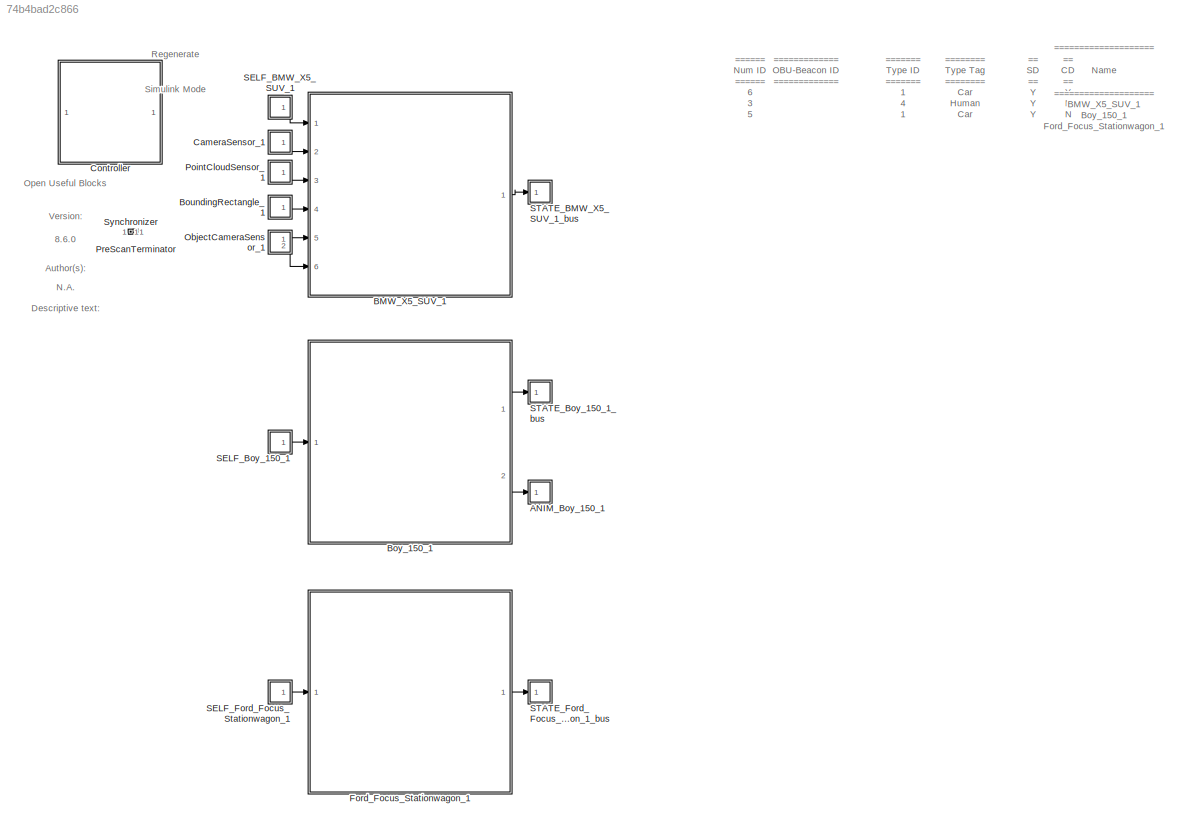
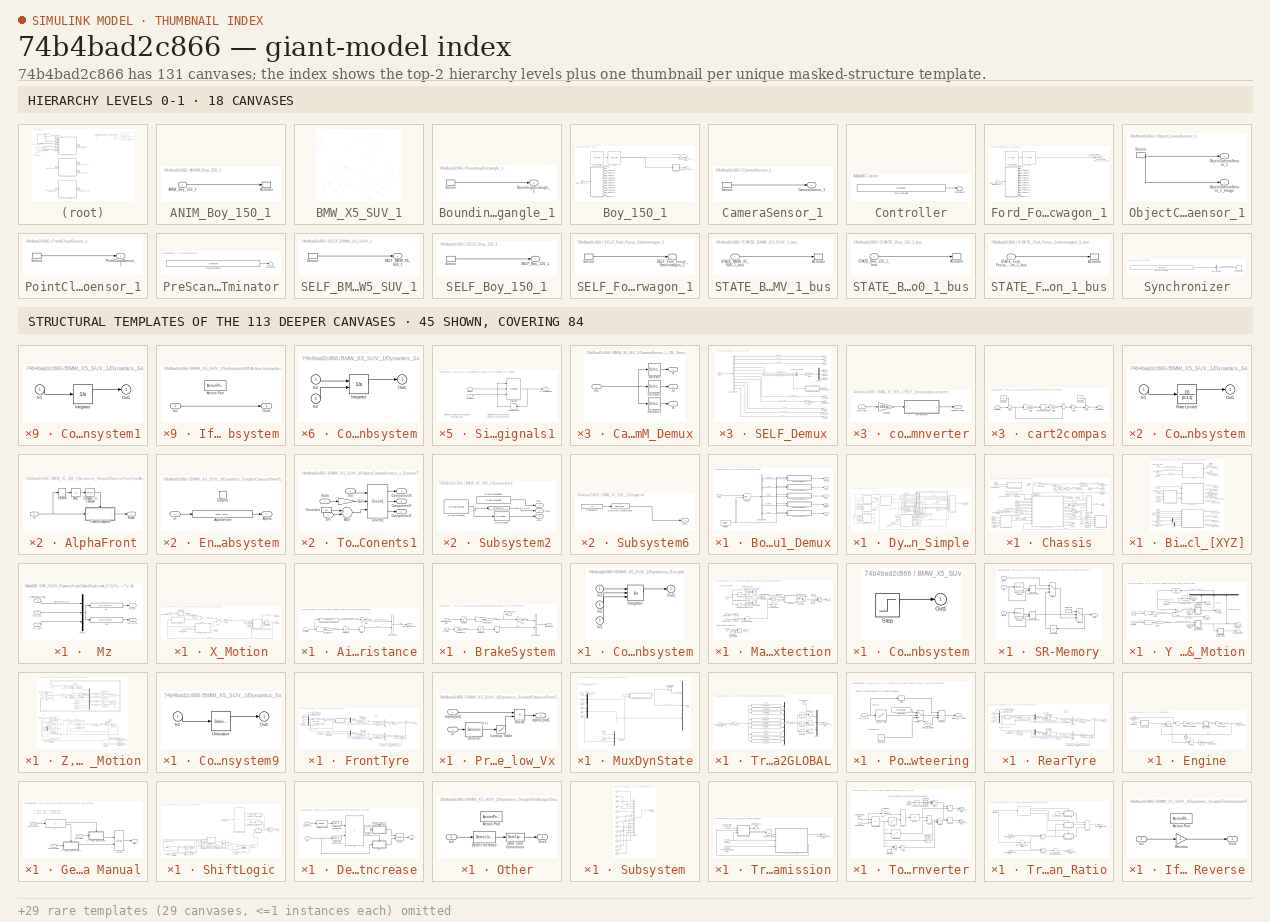
[diagram: thumbnail index - top-2 hierarchy levels (18 canvases) + 45 structural-template representatives of the remaining 113 canvases]
MODEL slx_74b4bad2c866
KIND model
CONFIG AbsTol = auto
CONFIG EnableMultiTasking = off
CONFIG FixedStep = 1/20
CONFIG InitFcn = mbxruntime.callbacks.InitFcn(bdroot);
CONFIG MaxStep = auto
CONFIG MinStep = auto
CONFIG PostLoadFcn = mbxruntime.callbacks.PostLoadFcn(bdroot);
CONFIG PreLoadFcn = mbxruntime.callbacks.PreLoadFcn(bdroot);
CONFIG RelTol = 1e-3
CONFIG SampleTimeConstraint = Unconstrained
CONFIG Solver = ode5
CONFIG SolverName = ode5
CONFIG StartFcn = mbxruntime.callbacks.StartFcn(bdroot);
CONFIG StartTime = 0.0
CONFIG StopFcn = mbxruntime.callbacks.StopFcn(bdroot);
CONFIG StopTime = inf
WORKSPACE source: external: MAT-File  (data not in archive)
BLOCK [SubSystem] ANIM_Boy_150_1
  LoadFcn = load('PreScanAnimActuatorData.mat')
  OpenFcn = open_system([gcb '/Actuator'],'mask')
  Ports = [1]
  Priority = 0
  RequestExecContextInheritance = off
  Tag = actuator/AnimationOutport
BLOCK [Inport] ANIM_Boy_150_1/ANIM_Boy_150_1
  BusOutputAsStruct = on
  IconDisplay = Port number
  OutDataTypeStr = Bus: PRESCAN_ANIMACTUATORDATA
  PortDimensions = 1
  SampleTime = 1/20
  Tag = inport/AnimationOutport
BLOCK [S-Function] ANIM_Boy_150_1/Actuator
  EnableBusSupport = off
  FunctionName = sfun_AnimActuator
  Parameters = UniqueID, TimeStep
  Ports = [1]
  SFcnIsStateOwnerBlock = off
  SFunctionDeploymentMode = off
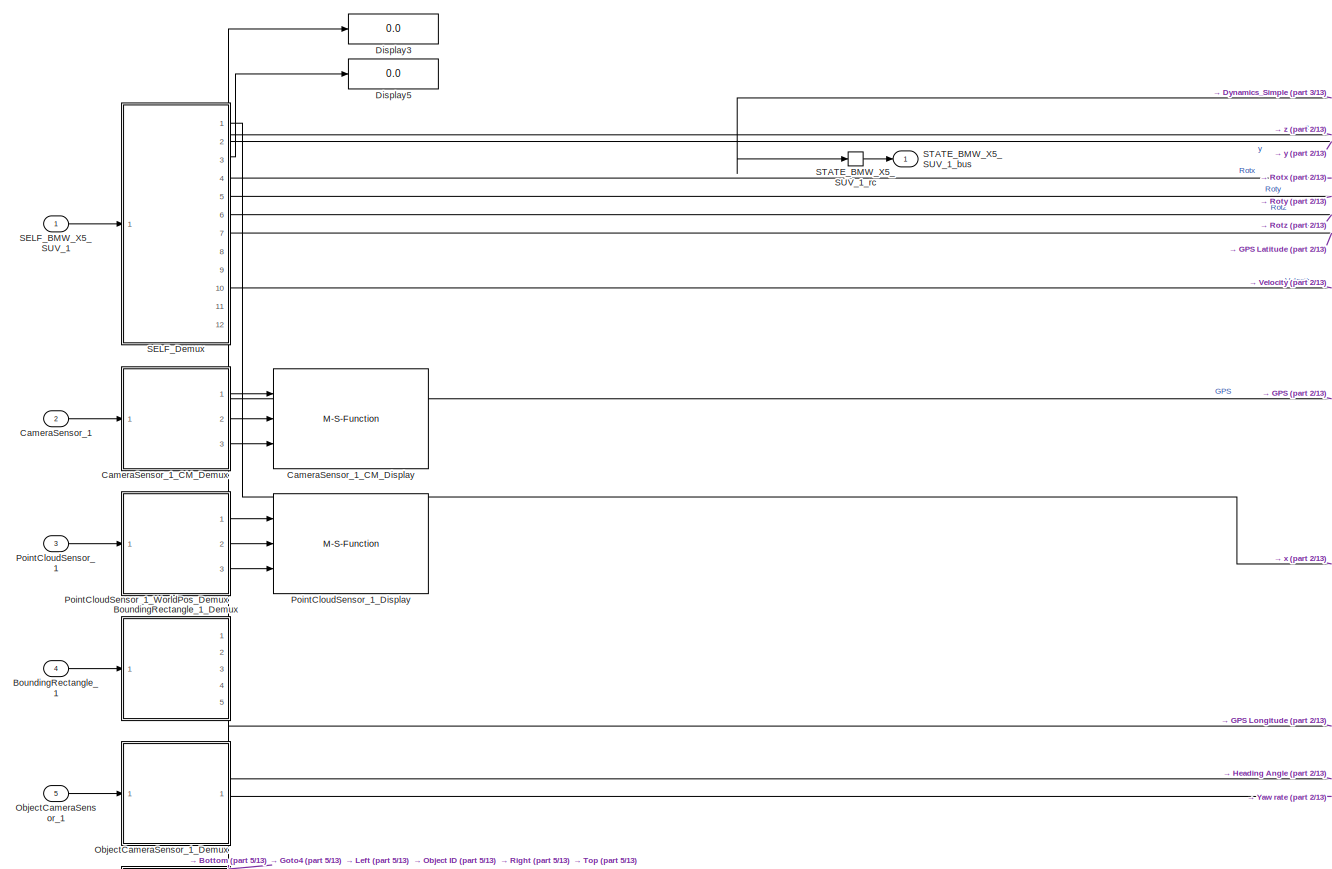
[diagram: BMW_X5_SUV_1 - part 1/13, top left region]
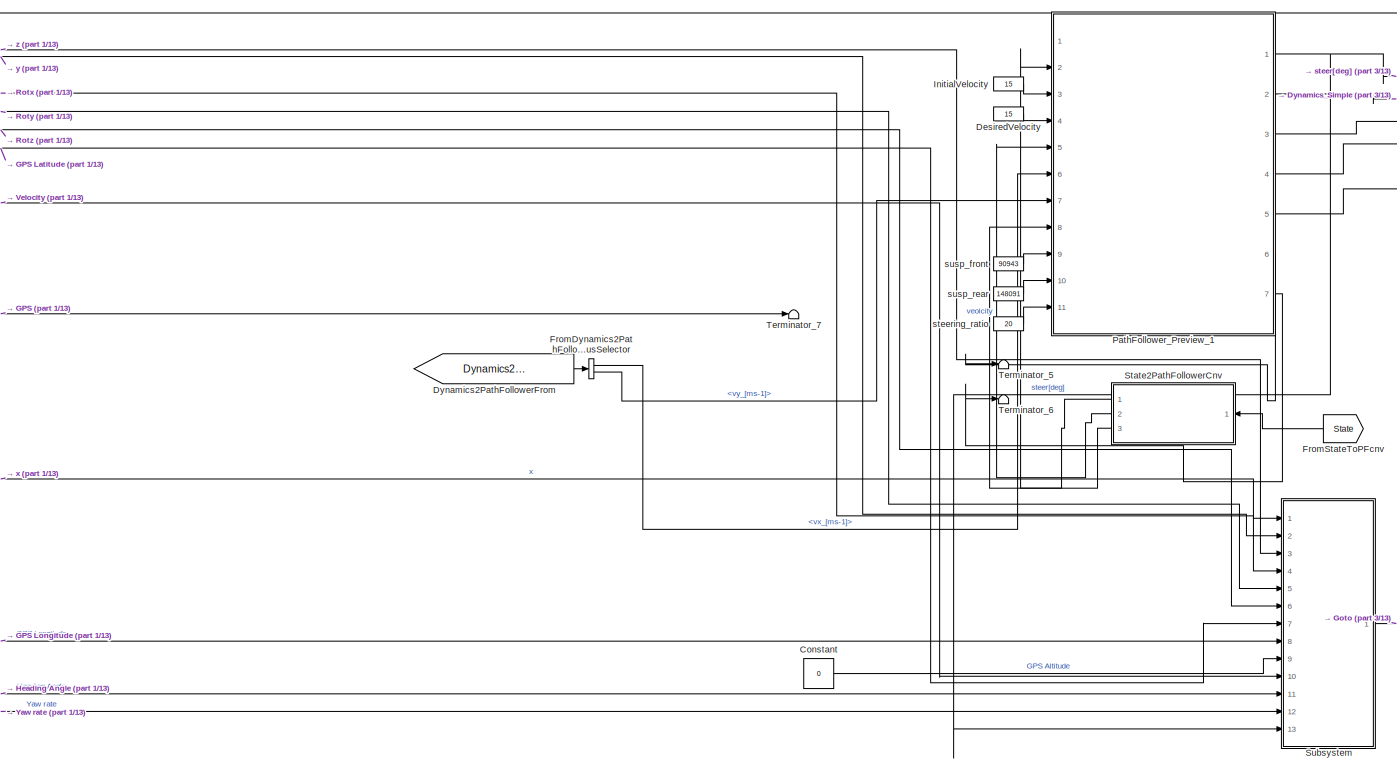
[diagram: BMW_X5_SUV_1 - part 2/13, top center region]
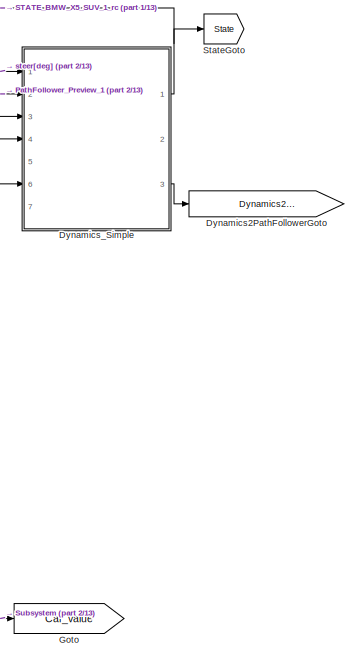
[diagram: BMW_X5_SUV_1 - part 3/13, top right region]
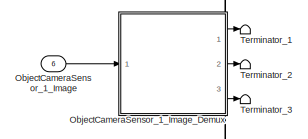
[diagram: BMW_X5_SUV_1 - part 4/13, top left region]
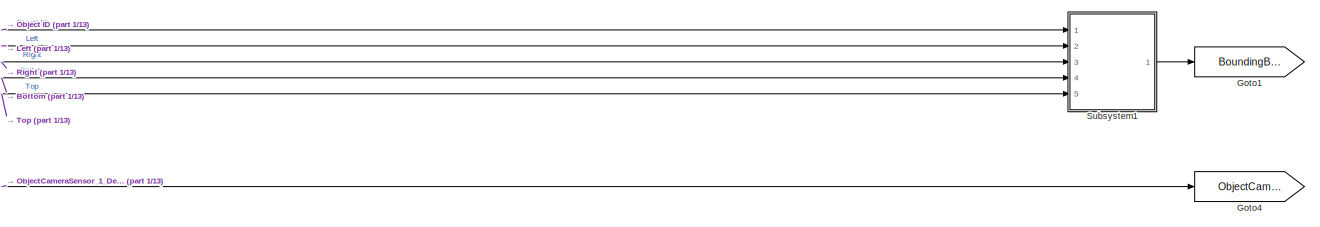
[diagram: BMW_X5_SUV_1 - part 5/13, central region]
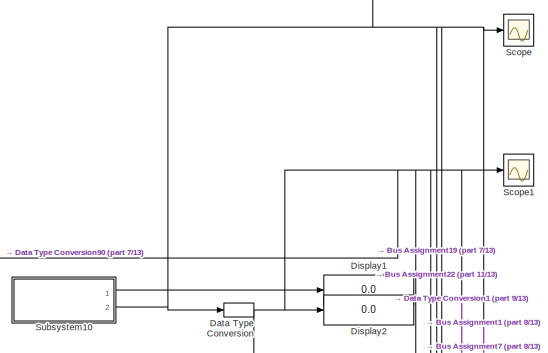
[diagram: BMW_X5_SUV_1 - part 6/13, central region]
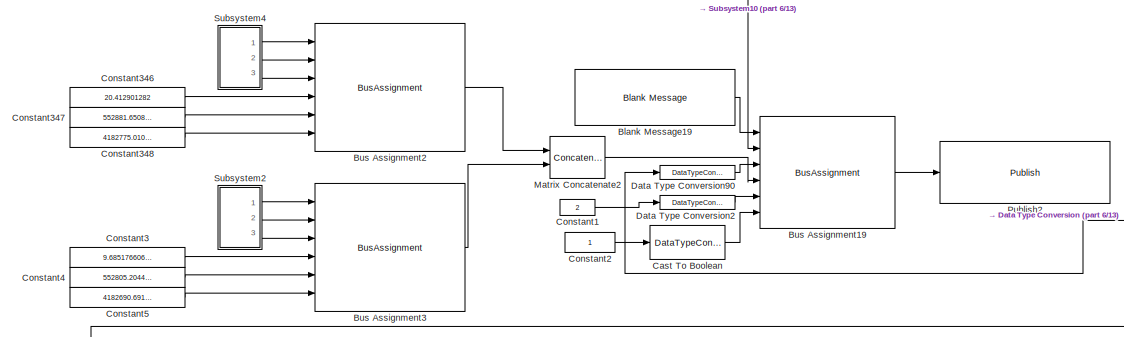
[diagram: BMW_X5_SUV_1 - part 7/13, middle left region]
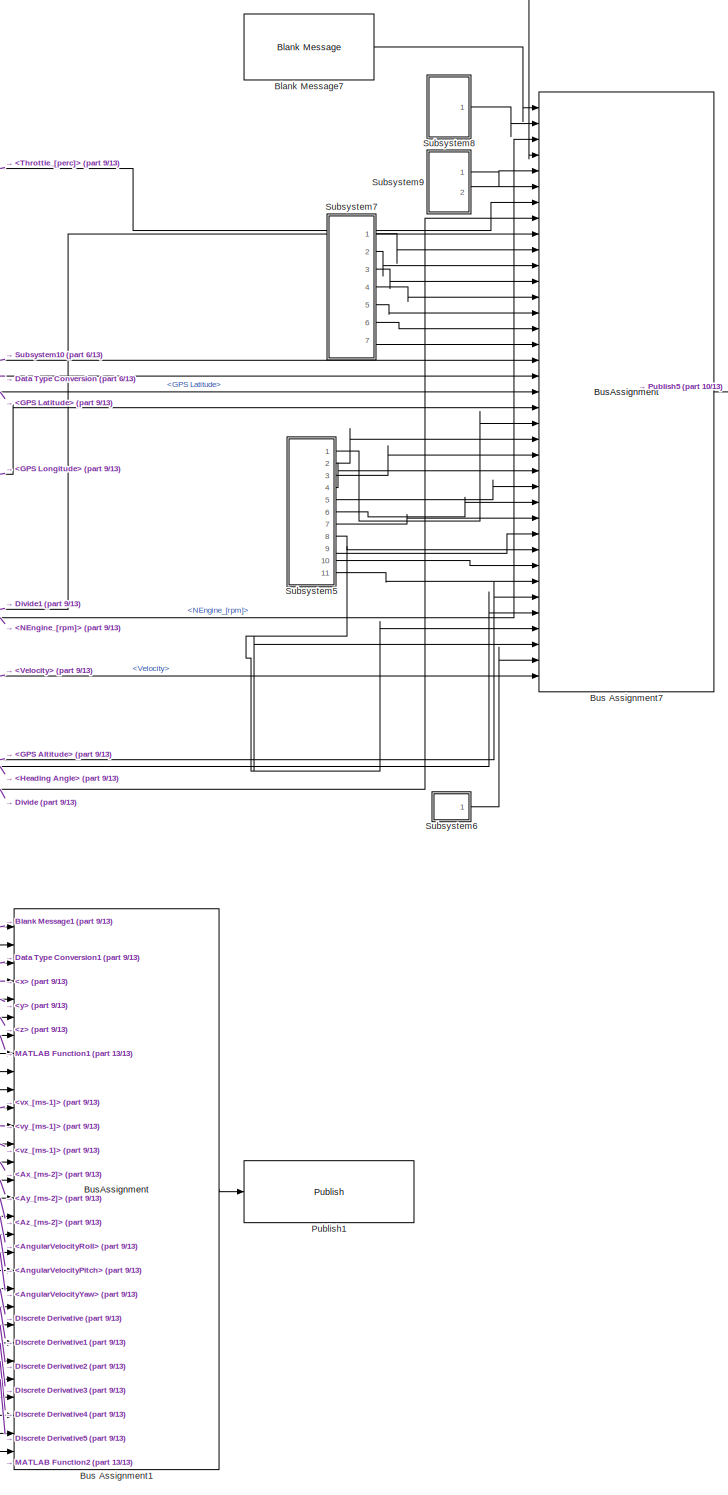
[diagram: BMW_X5_SUV_1 - part 8/13, bottom right region]
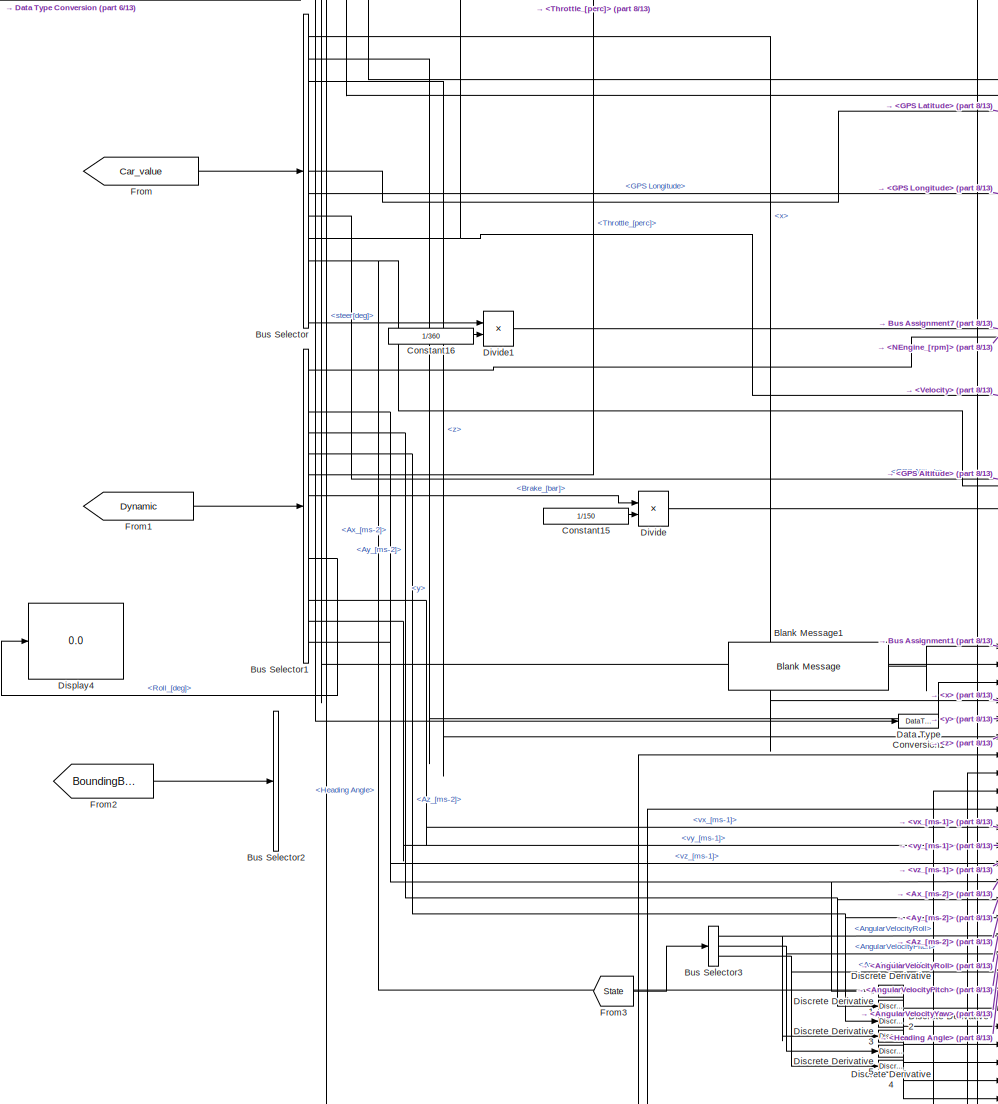
[diagram: BMW_X5_SUV_1 - part 9/13, bottom center region]
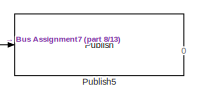
[diagram: BMW_X5_SUV_1 - part 10/13, middle right region]
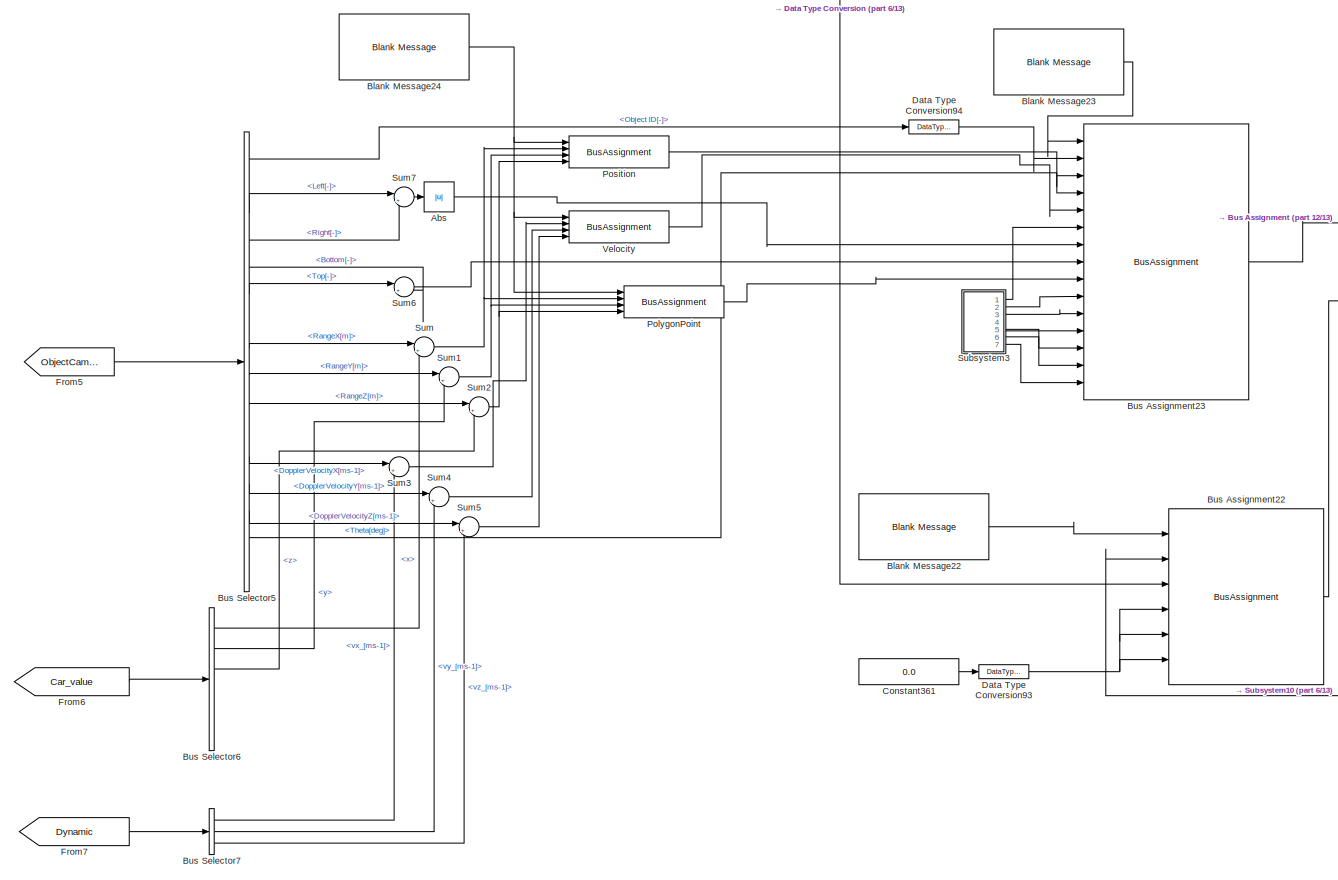
[diagram: BMW_X5_SUV_1 - part 11/13, bottom left region]
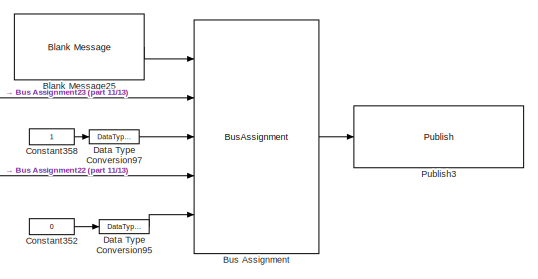
[diagram: BMW_X5_SUV_1 - part 12/13, bottom center region]
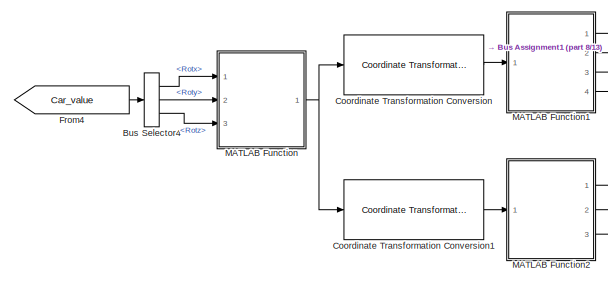
[diagram: BMW_X5_SUV_1 - part 13/13, bottom center region]
BLOCK [SubSystem] BMW_X5_SUV_1
  InitFcn = UniqueId = '35';
  Ports = [6, 1]
  RequestExecContextInheritance = off
  Tag = WorldObjectSubSystem
BLOCK [Abs] BMW_X5_SUV_1/Abs
  SaturateOnIntegerOverflow = off
BLOCK [Reference] BMW_X5_SUV_1/Blank Message1  REF=robotlib/Blank Message
  Ports = [0, 1]
  SourceBlock = robotlib/Blank Message
  SourceProductBaseCode = RO
  SourceProductName = Robotics System Toolbox
  SourceType = ROS Blank Message
BLOCK [Reference] BMW_X5_SUV_1/Blank Message19  REF=robotlib/Blank Message
  Ports = [0, 1]
  SourceBlock = robotlib/Blank Message
  SourceProductBaseCode = RO
  SourceProductName = Robotics System Toolbox
  SourceType = ROS Blank Message
BLOCK [Reference] BMW_X5_SUV_1/Blank Message22  REF=robotlib/Blank Message
  Ports = [0, 1]
  SourceBlock = robotlib/Blank Message
  SourceProductBaseCode = RO
  SourceProductName = Robotics System Toolbox
  SourceType = ROS Blank Message
BLOCK [Reference] BMW_X5_SUV_1/Blank Message23  REF=robotlib/Blank Message
  Ports = [0, 1]
  SourceBlock = robotlib/Blank Message
  SourceProductBaseCode = RO
  SourceProductName = Robotics System Toolbox
  SourceType = ROS Blank Message
BLOCK [Reference] BMW_X5_SUV_1/Blank Message24  REF=robotlib/Blank Message
  Ports = [0, 1]
  SourceBlock = robotlib/Blank Message
  SourceProductBaseCode = RO
  SourceProductName = Robotics System Toolbox
  SourceType = ROS Blank Message
BLOCK [Reference] BMW_X5_SUV_1/Blank Message25  REF=robotlib/Blank Message
  Ports = [0, 1]
  SourceBlock = robotlib/Blank Message
  SourceProductBaseCode = RO
  SourceProductName = Robotics System Toolbox
  SourceType = ROS Blank Message
BLOCK [Reference] BMW_X5_SUV_1/Blank Message7  REF=robotlib/Blank Message
  Ports = [0, 1]
  SourceBlock = robotlib/Blank Message
  SourceProductBaseCode = RO
  SourceProductName = Robotics System Toolbox
  SourceType = ROS Blank Message
BLOCK [Inport] BMW_X5_SUV_1/BoundingRectangle_1
  BusOutputAsStruct = on
  IconDisplay = Port number
  OutDataTypeStr = Bus: PRESCAN_BRS_MESSAGE
  Port = 4
  PortDimensions = 32
  SampleTime = 1/20
  Tag = inport/BRS
BLOCK [SubSystem] BMW_X5_SUV_1/BoundingRectangle_1_Demux
  DeleteFcn = PreScanBlockDeleteFcn;
  Ports = [1, 5]
  RequestExecContextInheritance = off
  Tag = demux/BRS
BLOCK [Inport] BMW_X5_SUV_1/BoundingRectangle_1_Demux/BRS
  IconDisplay = Port number
BLOCK [Outport] BMW_X5_SUV_1/BoundingRectangle_1_Demux/Bottom
  IconDisplay = Port number
  Port = 4
BLOCK [BusSelector] BMW_X5_SUV_1/BoundingRectangle_1_Demux/Bus Selector
  OutputAsBus = off
  OutputSignals = DATA.ObjectID,DATA.Left,DATA.Right,DATA.Bottom,DATA.Top
  Ports = [1, 5]
BLOCK [ForIterator] BMW_X5_SUV_1/BoundingRectangle_1_Demux/For Iterator
  IterationLimit = detectableObjects
  Ports = [0, 1]
  ResetStates = reset
BLOCK [Outport] BMW_X5_SUV_1/BoundingRectangle_1_Demux/Left
  IconDisplay = Port number
  Port = 2
BLOCK [Outport] BMW_X5_SUV_1/BoundingRectangle_1_Demux/ObjectID
  IconDisplay = Port number
BLOCK [Outport] BMW_X5_SUV_1/BoundingRectangle_1_Demux/Right
  IconDisplay = Port number
  Port = 3
BLOCK [Selector] BMW_X5_SUV_1/BoundingRectangle_1_Demux/Selector
  IndexOptions = Index vector (port)
  Indices = [1 3]
  InputPortWidth = detectableObjects
  OutputSizes = 1
  Ports = [2, 1]
BLOCK [SubSystem] BMW_X5_SUV_1/BoundingRectangle_1_Demux/Signal2ArrayOfSignals1
  Ports = [2, 1]
  RequestExecContextInheritance = off
BLOCK [Outport] BMW_X5_SUV_1/BoundingRectangle_1_Demux/Signal2ArrayOfSignals1/ArrayofElements
  IconDisplay = Port number
BLOCK [Assignment] BMW_X5_SUV_1/BoundingRectangle_1_Demux/Signal2ArrayOfSignals1/Assignment
  IndexOptions = Index vector (port)
  Indices = 1
  OutputSizes = 1
  Ports = [3, 1]
BLOCK [Inport] BMW_X5_SUV_1/BoundingRectangle_1_Demux/Signal2ArrayOfSignals1/Element
  IconDisplay = Port number
  Port = 2
BLOCK [Inport] BMW_X5_SUV_1/BoundingRectangle_1_Demux/Signal2ArrayOfSignals1/LoopIndex
  IconDisplay = Port number
BLOCK [Memory] BMW_X5_SUV_1/BoundingRectangle_1_Demux/Signal2ArrayOfSignals1/Previous vector
  InheritSampleTime = on
  InitialCondition = zeros(VECTORLENGTH,1)
BLOCK [SubSystem] BMW_X5_SUV_1/BoundingRectangle_1_Demux/Signal2ArrayOfSignals2
  Ports = [2, 1]
  RequestExecContextInheritance = off
BLOCK [Outport] BMW_X5_SUV_1/BoundingRectangle_1_Demux/Signal2ArrayOfSignals2/ArrayofElements
  IconDisplay = Port number
BLOCK [Assignment] BMW_X5_SUV_1/BoundingRectangle_1_Demux/Signal2ArrayOfSignals2/Assignment
  IndexOptions = Index vector (port)
  Indices = 1
  OutputSizes = 1
  Ports = [3, 1]
BLOCK [Inport] BMW_X5_SUV_1/BoundingRectangle_1_Demux/Signal2ArrayOfSignals2/Element
  IconDisplay = Port number
  Port = 2
BLOCK [Inport] BMW_X5_SUV_1/BoundingRectangle_1_Demux/Signal2ArrayOfSignals2/LoopIndex
  IconDisplay = Port number
BLOCK [Memory] BMW_X5_SUV_1/BoundingRectangle_1_Demux/Signal2ArrayOfSignals2/Previous vector
  InheritSampleTime = on
  InitialCondition = zeros(VECTORLENGTH,1)
BLOCK [SubSystem] BMW_X5_SUV_1/BoundingRectangle_1_Demux/Signal2ArrayOfSignals3
  Ports = [2, 1]
  RequestExecContextInheritance = off
BLOCK [Outport] BMW_X5_SUV_1/BoundingRectangle_1_Demux/Signal2ArrayOfSignals3/ArrayofElements
  IconDisplay = Port number
BLOCK [Assignment] BMW_X5_SUV_1/BoundingRectangle_1_Demux/Signal2ArrayOfSignals3/Assignment
  IndexOptions = Index vector (port)
  Indices = 1
  OutputSizes = 1
  Ports = [3, 1]
BLOCK [Inport] BMW_X5_SUV_1/BoundingRectangle_1_Demux/Signal2ArrayOfSignals3/Element
  IconDisplay = Port number
  Port = 2
BLOCK [Inport] BMW_X5_SUV_1/BoundingRectangle_1_Demux/Signal2ArrayOfSignals3/LoopIndex
  IconDisplay = Port number
BLOCK [Memory] BMW_X5_SUV_1/BoundingRectangle_1_Demux/Signal2ArrayOfSignals3/Previous vector
  InheritSampleTime = on
  InitialCondition = zeros(VECTORLENGTH,1)
BLOCK [SubSystem] BMW_X5_SUV_1/BoundingRectangle_1_Demux/Signal2ArrayOfSignals4
  Ports = [2, 1]
  RequestExecContextInheritance = off
BLOCK [Outport] BMW_X5_SUV_1/BoundingRectangle_1_Demux/Signal2ArrayOfSignals4/ArrayofElements
  IconDisplay = Port number
BLOCK [Assignment] BMW_X5_SUV_1/BoundingRectangle_1_Demux/Signal2ArrayOfSignals4/Assignment
  IndexOptions = Index vector (port)
  Indices = 1
  OutputSizes = 1
  Ports = [3, 1]
BLOCK [Inport] BMW_X5_SUV_1/BoundingRectangle_1_Demux/Signal2ArrayOfSignals4/Element
  IconDisplay = Port number
  Port = 2
BLOCK [Inport] BMW_X5_SUV_1/BoundingRectangle_1_Demux/Signal2ArrayOfSignals4/LoopIndex
  IconDisplay = Port number
BLOCK [Memory] BMW_X5_SUV_1/BoundingRectangle_1_Demux/Signal2ArrayOfSignals4/Previous vector
  InheritSampleTime = on
  InitialCondition = zeros(VECTORLENGTH,1)
BLOCK [SubSystem] BMW_X5_SUV_1/BoundingRectangle_1_Demux/Signal2ArrayOfSignals5
  Ports = [2, 1]
  RequestExecContextInheritance = off
BLOCK [Outport] BMW_X5_SUV_1/BoundingRectangle_1_Demux/Signal2ArrayOfSignals5/ArrayofElements
  IconDisplay = Port number
BLOCK [Assignment] BMW_X5_SUV_1/BoundingRectangle_1_Demux/Signal2ArrayOfSignals5/Assignment
  IndexOptions = Index vector (port)
  Indices = 1
  OutputSizes = 1
  Ports = [3, 1]
BLOCK [Inport] BMW_X5_SUV_1/BoundingRectangle_1_Demux/Signal2ArrayOfSignals5/Element
  IconDisplay = Port number
  Port = 2
BLOCK [Inport] BMW_X5_SUV_1/BoundingRectangle_1_Demux/Signal2ArrayOfSignals5/LoopIndex
  IconDisplay = Port number
BLOCK [Memory] BMW_X5_SUV_1/BoundingRectangle_1_Demux/Signal2ArrayOfSignals5/Previous vector
  InheritSampleTime = on
  InitialCondition = zeros(VECTORLENGTH,1)
BLOCK [Outport] BMW_X5_SUV_1/BoundingRectangle_1_Demux/Top
  IconDisplay = Port number
  Port = 5
BLOCK [BusAssignment] BMW_X5_SUV_1/Bus Assignment
  AssignedSignals = PerceptionObstacle,PerceptionObstacle_SL_Info.CurrentLength,Header,ErrorCode
  Ports = [5, 1]
BLOCK [BusAssignment] BMW_X5_SUV_1/Bus Assignment1
  AssignedSignals = Header.TimestampSec,Header.SequenceNum,Pose.Position.X,Pose.Position.Y,Pose.Position.Z,Pose.Orientation.Qx,Pose.Orientation.Qy,Pose.Orientation.Qz,Pose.Orientation.Qw,Pose.LinearVelocity.X,Pose.LinearVelocity.Y,Pose.LinearVelocity.Z,Pose.LinearAccelration.X,Pose.LinearAccelration.Y,Pose.LinearAccelration.Z,Pose.AngularVelocity.X,Pose.AngularVelocity.Y,Pose.AngularVelocity.Z,Pose.Heading,Pose.Linea...<+239ch>
  Ports = [30, 1]
BLOCK [BusAssignment] BMW_X5_SUV_1/Bus Assignment19
  AssignedSignals = Header.TimestampSec,Header.SequenceNum,Waypoint,Waypoint_SL_Info.CurrentLength,Broadcast
  Ports = [6, 1]
BLOCK [BusAssignment] BMW_X5_SUV_1/Bus Assignment2
  AssignedSignals = Id,Id_SL_Info.CurrentLength,S,Pose.X,Pose.Y
  Ports = [6, 1]
BLOCK [BusAssignment] BMW_X5_SUV_1/Bus Assignment22
  AssignedSignals = TimestampSec,SequenceNum,LidarTimestamp,CameraTimestamp,RadarTimestamp
  Ports = [6, 1]
BLOCK [BusAssignment] BMW_X5_SUV_1/Bus Assignment23
  AssignedSignals = Id,Position,Theta,Velocity,Length,Width,Height,PolygonPoint,TrackingTime,Type,Timestamp,Confidence,ConfidenceType,PolygonPoint_SL_Info.CurrentLength
  Ports = [15, 1]
BLOCK [BusAssignment] BMW_X5_SUV_1/Bus Assignment3
  AssignedSignals = Id,Id_SL_Info.CurrentLength,S,Pose.X,Pose.Y
  Ports = [6, 1]
BLOCK [BusAssignment] BMW_X5_SUV_1/Bus Assignment7
  AssignedSignals = EngineStarted,EngineRpm,SpeedMps,OdometerM,FuelRangeM,ThrottlePercentage,BrakePercentage,SteeringPercentage,ParkingBrake,HighBeamSignal,LowBeamSignal,LeftTurnSignal,RightTurnSignal,Wiper,DrivingMode,Header.TimestampSec,Header.SequenceNum,ChassisGps.Latitude,ChassisGps.Longitude,ChassisGps.GpsValid,ChassisGps.Year,ChassisGps.Month,ChassisGps.Day,ChassisGps.Hours,ChassisGps.Minutes,ChassisGps.Second...<+205ch>
  Ports = [37, 1]
BLOCK [BusSelector] BMW_X5_SUV_1/Bus Selector
  OutputAsBus = off
  OutputSignals = x,y,z,Rotx,Roty,Rotz,GPS Latitude,GPS Longitude,GPS Altitude,Velocity,Heading Angle,Yaw rate,steer[deg]
  Ports = [1, 13]
BLOCK [BusSelector] BMW_X5_SUV_1/Bus Selector1
  OutputAsBus = off
  OutputSignals = NEngine_[rpm],Gear_[-],Ax_[ms-2],Ay_[ms-2],Az_[ms-2],Throttle_[perc],Brake_[bar],PEngine_[kW],PDrive_[kW],Roll_[deg],Pitch_[deg],vx_[ms-1],vy_[ms-1],vz_[ms-1]
  Ports = [1, 14]
BLOCK [BusSelector] BMW_X5_SUV_1/Bus Selector2
  OutputAsBus = off
  OutputSignals = Object ID,Left,Right,Bottom,Top
  Ports = [1, 5]
BLOCK [BusSelector] BMW_X5_SUV_1/Bus Selector3
  OutputAsBus = off
  OutputSignals = AngularVelocityRoll,AngularVelocityPitch,AngularVelocityYaw
  Ports = [1, 3]
BLOCK [BusSelector] BMW_X5_SUV_1/Bus Selector4
  OutputAsBus = off
  OutputSignals = Rotx,Roty,Rotz
  Ports = [1, 3]
BLOCK [BusSelector] BMW_X5_SUV_1/Bus Selector5
  OutputAsBus = off
  OutputSignals = Object ID[-],ObjectTypeID[-],Left[-],Right[-],Bottom[-],Top[-],Range[m],RangeX[m],RangeY[m],RangeZ[m],DopplerVelocity[ms-1],DopplerVelocityX[ms-1],DopplerVelocityY[ms-1],DopplerVelocityZ[ms-1],Theta[deg],Phi[deg]
  Ports = [1, 16]
BLOCK [BusSelector] BMW_X5_SUV_1/Bus Selector6
  OutputAsBus = off
  OutputSignals = x,y,z,Rotx,Roty,Rotz
  Ports = [1, 6]
BLOCK [BusSelector] BMW_X5_SUV_1/Bus Selector7
  OutputAsBus = off
  OutputSignals = vx_[ms-1],vy_[ms-1],vz_[ms-1]
  Ports = [1, 3]
BLOCK [Inport] BMW_X5_SUV_1/CameraSensor_1
  BusOutputAsStruct = on
  IconDisplay = Port number
  OutDataTypeStr = uint8
  Port = 2
  SampleTime = 1/20
  Tag = inport/Camera/CameraSensor
BLOCK [SubSystem] BMW_X5_SUV_1/CameraSensor_1_CM_Demux
  Ports = [1, 3]
  RequestExecContextInheritance = off
  Tag = demux/Camera/Color
BLOCK [Outport] BMW_X5_SUV_1/CameraSensor_1_CM_Demux/B
  IconDisplay = Port number
  Port = 3
BLOCK [Outport] BMW_X5_SUV_1/CameraSensor_1_CM_Demux/G
  IconDisplay = Port number
  Port = 2
BLOCK [Inport] BMW_X5_SUV_1/CameraSensor_1_CM_Demux/In1
  IconDisplay = Port number
BLOCK [Outport] BMW_X5_SUV_1/CameraSensor_1_CM_Demux/R
  IconDisplay = Port number
BLOCK [Selector] BMW_X5_SUV_1/CameraSensor_1_CM_Demux/Selector
  IndexOptions = Index vector (dialog),Index vector (dialog)
  Indices = -1,1:hres
  InputPortWidth = 3
  NumberOfDimensions = 2
  OutputSizes = 1,1
  Ports = [1, 1]
BLOCK [Selector] BMW_X5_SUV_1/CameraSensor_1_CM_Demux/Selector1
  IndexOptions = Index vector (dialog),Index vector (dialog)
  Indices = -1,hres+1:hres*2
  InputPortWidth = 3
  NumberOfDimensions = 2
  OutputSizes = 1,1
  Ports = [1, 1]
BLOCK [Selector] BMW_X5_SUV_1/CameraSensor_1_CM_Demux/Selector2
  IndexOptions = Index vector (dialog),Index vector (dialog)
  Indices = -1,hres*2+1:hres*3
  InputPortWidth = 3
  NumberOfDimensions = 2
  OutputSizes = 1,1
  Ports = [1, 1]
BLOCK [M-S-Function] BMW_X5_SUV_1/CameraSensor_1_CM_Display
  CopyFcn = CopyFcnDisplay
  DeleteFcn = PreScanBlockDeleteFcn;
  FunctionName = fcn_ImageDisplay
  InitFcn = InitImageOutputDir(gcb);
  ModelCloseFcn = fcn_ImageDisplay_ModelCloseFcn
  Parameters = SensorName EnableDisplay EnablePosition DisplayPosition FigureHandle SaveResults BitmapFormat TempOutputDir CameraType DataType
  Ports = [3]
  Tag = CameraSensor_Color_Display
BLOCK [DataTypeConversion] BMW_X5_SUV_1/Cast To Boolean
  OutDataTypeStr = boolean
  RndMeth = Floor
  SaturateOnIntegerOverflow = off
BLOCK [Constant] BMW_X5_SUV_1/Constant
  Value = 0
BLOCK [Constant] BMW_X5_SUV_1/Constant1
  Value = 2
BLOCK [Constant] BMW_X5_SUV_1/Constant15
  Value = 1/150
BLOCK [Constant] BMW_X5_SUV_1/Constant16
  Value = 1/360
BLOCK [Constant] BMW_X5_SUV_1/Constant2
BLOCK [Constant] BMW_X5_SUV_1/Constant3
  Value = 9.68517660635
BLOCK [Constant] BMW_X5_SUV_1/Constant346
  Value = 20.412901282
BLOCK [Constant] BMW_X5_SUV_1/Constant347
  Value = 552881.650867
BLOCK [Constant] BMW_X5_SUV_1/Constant348
  Value = 4182775.01022
BLOCK [Constant] BMW_X5_SUV_1/Constant352
  Value = 0
BLOCK [Constant] BMW_X5_SUV_1/Constant358
BLOCK [Constant] BMW_X5_SUV_1/Constant361
  Value = 0.0
BLOCK [Constant] BMW_X5_SUV_1/Constant4
  Value = 552805.204449
BLOCK [Constant] BMW_X5_SUV_1/Constant5
  Value = 4182690.69157
BLOCK [Reference] BMW_X5_SUV_1/Coordinate Transformation Conversion  REF=robotcorelib/Coordinate Transformation Conversion
  Ports = [1, 1]
  SourceBlock = robotcorelib/Coordinate Transformation Conversion
  SourceProductBaseCode = RO
  SourceProductName = Robotics System Toolbox
  SourceType = robotics.slcore.internal.block.CoordinateTransformationConversion
BLOCK [Reference] BMW_X5_SUV_1/Coordinate Transformation Conversion1  REF=robotcorelib/Coordinate Transformation Conversion
  Ports = [1, 1]
  SourceBlock = robotcorelib/Coordinate Transformation Conversion
  SourceProductBaseCode = RO
  SourceProductName = Robotics System Toolbox
  SourceType = robotics.slcore.internal.block.CoordinateTransformationConversion
BLOCK [DataTypeConversion] BMW_X5_SUV_1/Data Type Conversion
  RndMeth = Floor
  SaturateOnIntegerOverflow = off
BLOCK [DataTypeConversion] BMW_X5_SUV_1/Data Type Conversion1
  RndMeth = Floor
  SaturateOnIntegerOverflow = off
BLOCK [DataTypeConversion] BMW_X5_SUV_1/Data Type Conversion2
  RndMeth = Floor
  SaturateOnIntegerOverflow = off
BLOCK [DataTypeConversion] BMW_X5_SUV_1/Data Type Conversion90
  RndMeth = Floor
  SaturateOnIntegerOverflow = off
BLOCK [DataTypeConversion] BMW_X5_SUV_1/Data Type Conversion93
  RndMeth = Floor
  SaturateOnIntegerOverflow = off
BLOCK [DataTypeConversion] BMW_X5_SUV_1/Data Type Conversion94
  RndMeth = Floor
  SaturateOnIntegerOverflow = off
BLOCK [DataTypeConversion] BMW_X5_SUV_1/Data Type Conversion95
  RndMeth = Floor
  SaturateOnIntegerOverflow = off
BLOCK [DataTypeConversion] BMW_X5_SUV_1/Data Type Conversion97
  RndMeth = Floor
  SaturateOnIntegerOverflow = off
BLOCK [Constant] BMW_X5_SUV_1/DesiredVelocity
  Tag = DesiredVelocity
  Value = 15
BLOCK [Reference] BMW_X5_SUV_1/Discrete Derivative  REF=simulink/Discrete/Discrete Derivative
  Ports = [1, 1]
  SourceBlock = simulink/Discrete/Discrete Derivative
  SourceProductBaseCode = SL
  SourceProductName = Simulink
  SourceType = Discrete Derivative
BLOCK [Reference] BMW_X5_SUV_1/Discrete Derivative1  REF=simulink/Discrete/Discrete Derivative
  Ports = [1, 1]
  SourceBlock = simulink/Discrete/Discrete Derivative
  SourceProductBaseCode = SL
  SourceProductName = Simulink
  SourceType = Discrete Derivative
BLOCK [Reference] BMW_X5_SUV_1/Discrete Derivative2  REF=simulink/Discrete/Discrete Derivative
  Ports = [1, 1]
  SourceBlock = simulink/Discrete/Discrete Derivative
  SourceProductBaseCode = SL
  SourceProductName = Simulink
  SourceType = Discrete Derivative
BLOCK [Reference] BMW_X5_SUV_1/Discrete Derivative3  REF=simulink/Discrete/Discrete Derivative
  Ports = [1, 1]
  SourceBlock = simulink/Discrete/Discrete Derivative
  SourceProductBaseCode = SL
  SourceProductName = Simulink
  SourceType = Discrete Derivative
BLOCK [Reference] BMW_X5_SUV_1/Discrete Derivative4  REF=simulink/Discrete/Discrete Derivative
  Ports = [1, 1]
  SourceBlock = simulink/Discrete/Discrete Derivative
  SourceProductBaseCode = SL
  SourceProductName = Simulink
  SourceType = Discrete Derivative
BLOCK [Reference] BMW_X5_SUV_1/Discrete Derivative5  REF=simulink/Discrete/Discrete Derivative
  Ports = [1, 1]
  SourceBlock = simulink/Discrete/Discrete Derivative
  SourceProductBaseCode = SL
  SourceProductName = Simulink
  SourceType = Discrete Derivative
BLOCK [Display] BMW_X5_SUV_1/Display1
  Decimation = 1
  Ports = [1]
BLOCK [Display] BMW_X5_SUV_1/Display2
  Decimation = 1
  Ports = [1]
BLOCK [Display] BMW_X5_SUV_1/Display3
  Decimation = 1
  Ports = [1]
BLOCK [Display] BMW_X5_SUV_1/Display4
  Decimation = 1
  Ports = [1]
BLOCK [Display] BMW_X5_SUV_1/Display5
  Decimation = 1
  Ports = [1]
BLOCK [Product] BMW_X5_SUV_1/Divide
  InputSameDT = off
  Inputs = **
  OutDataTypeStr = Inherit: Inherit via internal rule
  Ports = [2, 1]
  RndMeth = Floor
  SaturateOnIntegerOverflow = off
BLOCK [Product] BMW_X5_SUV_1/Divide1
  InputSameDT = off
  Inputs = **
  OutDataTypeStr = Inherit: Inherit via internal rule
  Ports = [2, 1]
  RndMeth = Floor
  SaturateOnIntegerOverflow = off
BLOCK [From] BMW_X5_SUV_1/Dynamics2PathFollowerFrom
  GotoTag = Dynamics2PathFollower
BLOCK [Goto] BMW_X5_SUV_1/Dynamics2PathFollowerGoto
  GotoTag = Dynamics2PathFollower
BLOCK [SubSystem] BMW_X5_SUV_1/Dynamics_Simple
  DeleteFcn = PreScanBlockDeleteFcn;
  Ports = [7, 3]
  RequestExecContextInheritance = off
  Tag = Simple_Vehicle_Dynamics
  UserDataPersistent = on
BLOCK [Inport] BMW_X5_SUV_1/Dynamics_Simple/AutoManual_OnOff
  IconDisplay = Port number
  Port = 5
BLOCK [Inport] BMW_X5_SUV_1/Dynamics_Simple/Auto_GearShift
  IconDisplay = Port number
  Port = 6
BLOCK [Inport] BMW_X5_SUV_1/Dynamics_Simple/Brake
  IconDisplay = Port number
  Port = 3
BLOCK [BusCreator] BMW_X5_SUV_1/Dynamics_Simple/Bus Creator
  DisplayOption = bar
  InheritFromInputs = on
  Inputs = 14
  Ports = [14, 1]
BLOCK [SubSystem] BMW_X5_SUV_1/Dynamics_Simple/Chassis
  Ports = [4, 7]
  RequestExecContextInheritance = off
BLOCK [Abs] BMW_X5_SUV_1/Dynamics_Simple/Chassis/Abs
  SaturateOnIntegerOverflow = off
BLOCK [SubSystem] BMW_X5_SUV_1/Dynamics_Simple/Chassis/Bicycle_model_[XYZ]
  Ports = [9, 11]
  RequestExecContextInheritance = off
BLOCK [Inport] BMW_X5_SUV_1/Dynamics_Simple/Chassis/Bicycle_model_[XYZ]/BrakePressure_[bar]
  IconDisplay = Port number
  Port = 4
BLOCK [Inport] BMW_X5_SUV_1/Dynamics_Simple/Chassis/Bicycle_model_[XYZ]/DeltaWheel_[rad]
  IconDisplay = Port number
BLOCK [Demux] BMW_X5_SUV_1/Dynamics_Simple/Chassis/Bicycle_model_[XYZ]/Demux
  DisplayOption = bar
  Outputs = 2
  Ports = [1, 2]
BLOCK [Demux] BMW_X5_SUV_1/Dynamics_Simple/Chassis/Bicycle_model_[XYZ]/Demux1
  DisplayOption = bar
  Outputs = 2
  Ports = [1, 2]
BLOCK [Inport] BMW_X5_SUV_1/Dynamics_Simple/Chassis/Bicycle_model_[XYZ]/DriveTorque_[Nm]
  IconDisplay = Port number
  Port = 5
BLOCK [From] BMW_X5_SUV_1/Dynamics_Simple/Chassis/Bicycle_model_[XYZ]/From1
  CloseFcn = tagdialog Close
  GotoTag = ax
BLOCK [From] BMW_X5_SUV_1/Dynamics_Simple/Chassis/Bicycle_model_[XYZ]/From2
  CloseFcn = tagdialog Close
  GotoTag = ay
BLOCK [From] BMW_X5_SUV_1/Dynamics_Simple/Chassis/Bicycle_model_[XYZ]/From3
  CloseFcn = tagdialog Close
  GotoTag = vx
BLOCK [From] BMW_X5_SUV_1/Dynamics_Simple/Chassis/Bicycle_model_[XYZ]/From4
  CloseFcn = tagdialog Close
  GotoTag = dYaw
BLOCK [Inport] BMW_X5_SUV_1/Dynamics_Simple/Chassis/Bicycle_model_[XYZ]/Fy_front_[N]
  IconDisplay = Port number
  Port = 9
BLOCK [Inport] BMW_X5_SUV_1/Dynamics_Simple/Chassis/Bicycle_model_[XYZ]/Fy_rear_[N]
  IconDisplay = Port number
  Port = 8
BLOCK [SubSystem] BMW_X5_SUV_1/Dynamics_Simple/Chassis/Bicycle_model_[XYZ]/Fyi --> Fy // Mz
  Ports = [3, 2]
  RequestExecContextInheritance = off
BLOCK [Inport] BMW_X5_SUV_1/Dynamics_Simple/Chassis/Bicycle_model_[XYZ]/Fyi --> Fy // Mz/DeltaWheel_[rad]
  IconDisplay = Port number
BLOCK [Fcn] BMW_X5_SUV_1/Dynamics_Simple/Chassis/Bicycle_model_[XYZ]/Fyi --> Fy // Mz/Fy
  Expr = u(2)*cos(u(1)) + u(3)
BLOCK [Outport] BMW_X5_SUV_1/Dynamics_Simple/Chassis/Bicycle_model_[XYZ]/Fyi --> Fy // Mz/Fy_[N]
  IconDisplay = Port number
  InitialOutput = 0
BLOCK [Inport] BMW_X5_SUV_1/Dynamics_Simple/Chassis/Bicycle_model_[XYZ]/Fyi --> Fy // Mz/Fy_f_[N]
  IconDisplay = Port number
  Port = 2
BLOCK [Inport] BMW_X5_SUV_1/Dynamics_Simple/Chassis/Bicycle_model_[XYZ]/Fyi --> Fy // Mz/Fy_r_[N]
  IconDisplay = Port number
  Port = 3
BLOCK [Mux] BMW_X5_SUV_1/Dynamics_Simple/Chassis/Bicycle_model_[XYZ]/Fyi --> Fy // Mz/Mux1
  DisplayOption = bar
  Inputs = 3
  Ports = [3, 1]
BLOCK [Fcn] BMW_X5_SUV_1/Dynamics_Simple/Chassis/Bicycle_model_[XYZ]/Fyi --> Fy // Mz/Mz
  Expr = u(2)*p.a*cos(u(1)) - u(3)*p.b
BLOCK [Outport] BMW_X5_SUV_1/Dynamics_Simple/Chassis/Bicycle_model_[XYZ]/Fyi --> Fy // Mz/Mz_[Nm]
  IconDisplay = Port number
  InitialOutput = 0
  Port = 2
BLOCK [Goto] BMW_X5_SUV_1/Dynamics_Simple/Chassis/Bicycle_model_[XYZ]/Goto
  GotoTag = ax
BLOCK [Goto] BMW_X5_SUV_1/Dynamics_Simple/Chassis/Bicycle_model_[XYZ]/Goto1
  GotoTag = ay
BLOCK [Goto] BMW_X5_SUV_1/Dynamics_Simple/Chassis/Bicycle_model_[XYZ]/Goto2
  GotoTag = vx
BLOCK [Goto] BMW_X5_SUV_1/Dynamics_Simple/Chassis/Bicycle_model_[XYZ]/Goto3
  GotoTag = dYaw
BLOCK [Outport] BMW_X5_SUV_1/Dynamics_Simple/Chassis/Bicycle_model_[XYZ]/PitchAngle_[rad]
  IconDisplay = Port number
  Port = 8
BLOCK [Outport] BMW_X5_SUV_1/Dynamics_Simple/Chassis/Bicycle_model_[XYZ]/RollAngle_[rad]
  IconDisplay = Port number
  Port = 4
BLOCK [Outport] BMW_X5_SUV_1/Dynamics_Simple/Chassis/Bicycle_model_[XYZ]/RollRate_[rads-1]
  IconDisplay = Port number
  Port = 5
BLOCK [Outport] BMW_X5_SUV_1/Dynamics_Simple/Chassis/Bicycle_model_[XYZ]/Vx_[ms-1]
  IconDisplay = Port number
  Port = 7
BLOCK [SubSystem] BMW_X5_SUV_1/Dynamics_Simple/Chassis/Bicycle_model_[XYZ]/X_Motion
  Ports = [3, 2]
  RequestExecContextInheritance = off
BLOCK [SubSystem] BMW_X5_SUV_1/Dynamics_Simple/Chassis/Bicycle_model_[XYZ]/X_Motion/Air&RoadResistance
  Ports = [1, 1]
  RequestExecContextInheritance = off
BLOCK [Gain] BMW_X5_SUV_1/Dynamics_Simple/Chassis/Bicycle_model_[XYZ]/X_Motion/Air&RoadResistance/Gain
  Gain = 1/p.Rw
  OutDataTypeStr = Inherit: Inherit via internal rule
  ParamDataTypeStr = Inherit: Inherit via internal rule
  SaturateOnIntegerOverflow = off
BLOCK [Outport] BMW_X5_SUV_1/Dynamics_Simple/Chassis/Bicycle_model_[XYZ]/X_Motion/Air&RoadResistance/Resistance_Force
  IconDisplay = Port number
BLOCK [Fcn] BMW_X5_SUV_1/Dynamics_Simple/Chassis/Bicycle_model_[XYZ]/X_Motion/Air&RoadResistance/Road & Aerodyn Resistances
  Expr = p.Rroad + p.Rair*u^2
BLOCK [Saturate] BMW_X5_SUV_1/Dynamics_Simple/Chassis/Bicycle_model_[XYZ]/X_Motion/Air&RoadResistance/Saturation1
  InputPortMap = u0
  LowerLimit = -5/15
  Ports = [1, 1]
  UpperLimit = 5/15
BLOCK [Signum] BMW_X5_SUV_1/Dynamics_Simple/Chassis/Bicycle_model_[XYZ]/X_Motion/Air&RoadResistance/Sign
BLOCK [Gain] BMW_X5_SUV_1/Dynamics_Simple/Chassis/Bicycle_model_[XYZ]/X_Motion/Air&RoadResistance/[ms-1] 2 [rads-1]
  Gain = 1/p.Rw
BLOCK [Product] BMW_X5_SUV_1/Dynamics_Simple/Chassis/Bicycle_model_[XYZ]/X_Motion/Air&RoadResistance/signed load1
  Ports = [2, 1]
  RndMeth = Floor
BLOCK [Inport] BMW_X5_SUV_1/Dynamics_Simple/Chassis/Bicycle_model_[XYZ]/X_Motion/Air&RoadResistance/vx_[ms-1]
  IconDisplay = Port number
BLOCK [Inport] BMW_X5_SUV_1/Dynamics_Simple/Chassis/Bicycle_model_[XYZ]/X_Motion/BrakePressure_[bar]
  IconDisplay = Port number
  Port = 2
BLOCK [SubSystem] BMW_X5_SUV_1/Dynamics_Simple/Chassis/Bicycle_model_[XYZ]/X_Motion/BrakeSystem
  Ports = [2, 2]
  RequestExecContextInheritance = off
BLOCK [Outport] BMW_X5_SUV_1/Dynamics_Simple/Chassis/Bicycle_model_[XYZ]/X_Motion/BrakeSystem/BrakeForce
  IconDisplay = Port number
BLOCK [Inport] BMW_X5_SUV_1/Dynamics_Simple/Chassis/Bicycle_model_[XYZ]/X_Motion/BrakeSystem/BrakePressure_[bar]
  IconDisplay = Port number
  Port = 2
BLOCK [Outport] BMW_X5_SUV_1/Dynamics_Simple/Chassis/Bicycle_model_[XYZ]/X_Motion/BrakeSystem/BrakeTorqueAbs
  IconDisplay = Port number
  Port = 2
BLOCK [Gain] BMW_X5_SUV_1/Dynamics_Simple/Chassis/Bicycle_model_[XYZ]/X_Motion/BrakeSystem/Gain
  Gain = 1/p.Rw
  OutDataTypeStr = Inherit: Inherit via internal rule
  ParamDataTypeStr = Inherit: Inherit via internal rule
  SaturateOnIntegerOverflow = off
BLOCK [Saturate] BMW_X5_SUV_1/Dynamics_Simple/Chassis/Bicycle_model_[XYZ]/X_Motion/BrakeSystem/Saturation
  InputPortMap = u0
  LowerLimit = 0
  Ports = [1, 1]
  UpperLimit = p.PBrakeMax
BLOCK [Saturate] BMW_X5_SUV_1/Dynamics_Simple/Chassis/Bicycle_model_[XYZ]/X_Motion/BrakeSystem/Saturation1
  InputPortMap = u0
  LowerLimit = -5/15
  Ports = [1, 1]
  UpperLimit = 5/15
BLOCK [Signum] BMW_X5_SUV_1/Dynamics_Simple/Chassis/Bicycle_model_[XYZ]/X_Motion/BrakeSystem/Sign
BLOCK [Gain] BMW_X5_SUV_1/Dynamics_Simple/Chassis/Bicycle_model_[XYZ]/X_Motion/BrakeSystem/[ms-1] 2 [rads-1]
  Gain = 1/p.Rw
BLOCK [Gain] BMW_X5_SUV_1/Dynamics_Simple/Chassis/Bicycle_model_[XYZ]/X_Motion/BrakeSystem/braking Q factor
  Gain = p.Qfac
BLOCK [Product] BMW_X5_SUV_1/Dynamics_Simple/Chassis/Bicycle_model_[XYZ]/X_Motion/BrakeSystem/signed load1
  Ports = [2, 1]
  RndMeth = Floor
BLOCK [Inport] BMW_X5_SUV_1/Dynamics_Simple/Chassis/Bicycle_model_[XYZ]/X_Motion/BrakeSystem/vx_[ms-1]
  IconDisplay = Port number
BLOCK [SubSystem] BMW_X5_SUV_1/Dynamics_Simple/Chassis/Bicycle_model_[XYZ]/X_Motion/Configurable Subsystem
  AttributesFormatString = %<BlockChoice>
  BlockChoice = Integrator
  MemberBlocks = Discrete-Time Integrator,Integrator
  OpenFcn = BringToFront(gcb);
  Ports = [3, 1]
  RequestExecContextInheritance = off
  ShowPortLabels = none
  TemplateBlock = PreScanSimulinkLibrary/Configurable Subsystems/integral with reset and initial condition/Configurable\nSubsystem
BLOCK [Inport] BMW_X5_SUV_1/Dynamics_Simple/Chassis/Bicycle_model_[XYZ]/X_Motion/Configurable Subsystem/In1
  IconDisplay = Port number
BLOCK [Inport] BMW_X5_SUV_1/Dynamics_Simple/Chassis/Bicycle_model_[XYZ]/X_Motion/Configurable Subsystem/In2
  IconDisplay = Port number
  Port = 2
BLOCK [Inport] BMW_X5_SUV_1/Dynamics_Simple/Chassis/Bicycle_model_[XYZ]/X_Motion/Configurable Subsystem/In3
  IconDisplay = Port number
  Port = 3
BLOCK [Integrator] BMW_X5_SUV_1/Dynamics_Simple/Chassis/Bicycle_model_[XYZ]/X_Motion/Configurable Subsystem/Integrator
  ExternalReset = level
  InitialConditionSource = external
  Ports = [3, 1]
BLOCK [Outport] BMW_X5_SUV_1/Dynamics_Simple/Chassis/Bicycle_model_[XYZ]/X_Motion/Configurable Subsystem/Out1
  IconDisplay = Port number
BLOCK [SubSystem] BMW_X5_SUV_1/Dynamics_Simple/Chassis/Bicycle_model_[XYZ]/X_Motion/Configurable Subsystem1
  AttributesFormatString = %<BlockChoice>
  BlockChoice = Torsional damping
  MemberBlocks = Discrete Torsional damping,Torsional damping
  OpenFcn = BringToFront(gcb);
  Ports = [1, 1]
  RequestExecContextInheritance = off
  ShowPortLabels = none
  TemplateBlock = PreScanSimulinkLibrary/Configurable Subsystems/TransferFunction\nTorsional damping/Configurable\nSubsystem
BLOCK [Inport] BMW_X5_SUV_1/Dynamics_Simple/Chassis/Bicycle_model_[XYZ]/X_Motion/Configurable Subsystem1/In1
  IconDisplay = Port number
BLOCK [Outport] BMW_X5_SUV_1/Dynamics_Simple/Chassis/Bicycle_model_[XYZ]/X_Motion/Configurable Subsystem1/Out1
  IconDisplay = Port number
BLOCK [TransferFcn] BMW_X5_SUV_1/Dynamics_Simple/Chassis/Bicycle_model_[XYZ]/X_Motion/Configurable Subsystem1/Torsional damping
  Denominator = [0.1 1]
BLOCK [Inport] BMW_X5_SUV_1/Dynamics_Simple/Chassis/Bicycle_model_[XYZ]/X_Motion/DriveTorque_[Nm]
  IconDisplay = Port number
BLOCK [From] BMW_X5_SUV_1/Dynamics_Simple/Chassis/Bicycle_model_[XYZ]/X_Motion/From2
  CloseFcn = tagdialog Close
  GotoTag = DT
BLOCK [From] BMW_X5_SUV_1/Dynamics_Simple/Chassis/Bicycle_model_[XYZ]/X_Motion/From3
  CloseFcn = tagdialog Close
  GotoTag = BT
BLOCK [Gain] BMW_X5_SUV_1/Dynamics_Simple/Chassis/Bicycle_model_[XYZ]/X_Motion/Gain
  Gain = 1/p.Rw
  OutDataTypeStr = Inherit: Inherit via internal rule
  ParamDataTypeStr = Inherit: Inherit via internal rule
  SaturateOnIntegerOverflow = off
BLOCK [Goto] BMW_X5_SUV_1/Dynamics_Simple/Chassis/Bicycle_model_[XYZ]/X_Motion/Goto
  GotoTag = DT
BLOCK [Goto] BMW_X5_SUV_1/Dynamics_Simple/Chassis/Bicycle_model_[XYZ]/X_Motion/Goto1
  GotoTag = BT
BLOCK [Gain] BMW_X5_SUV_1/Dynamics_Simple/Chassis/Bicycle_model_[XYZ]/X_Motion/Inertia
  Gain = 1/p.m
BLOCK [SubSystem] BMW_X5_SUV_1/Dynamics_Simple/Chassis/Bicycle_model_[XYZ]/X_Motion/Max RPM and zero- velocity detection
  Ports = [5, 3]
  RequestExecContextInheritance = off
BLOCK [Abs] BMW_X5_SUV_1/Dynamics_Simple/Chassis/Bicycle_model_[XYZ]/X_Motion/Max RPM and zero- velocity detection/Abs
  SaturateOnIntegerOverflow = off
BLOCK [Abs] BMW_X5_SUV_1/Dynamics_Simple/Chassis/Bicycle_model_[XYZ]/X_Motion/Max RPM and zero- velocity detection/Abs1
  SaturateOnIntegerOverflow = off
BLOCK [Inport] BMW_X5_SUV_1/Dynamics_Simple/Chassis/Bicycle_model_[XYZ]/X_Motion/Max RPM and zero- velocity detection/Brake Torque
  IconDisplay = Port number
  Port = 3
BLOCK [Reference] BMW_X5_SUV_1/Dynamics_Simple/Chassis/Bicycle_model_[XYZ]/X_Motion/Max RPM and zero- velocity detection/Compare To Zero  REF=simulink/Logic and Bit
Operations/Compare
To Zero
  Ports = [1, 1]
  SourceBlock = simulink/Logic and Bit\nOperations/Compare\nTo Zero
  SourceProductBaseCode = SL
  SourceProductName = Simulink
  SourceType = Compare To Zero
BLOCK [Reference] BMW_X5_SUV_1/Dynamics_Simple/Chassis/Bicycle_model_[XYZ]/X_Motion/Max RPM and zero- velocity detection/Compare To Zero1  REF=simulink/Logic and Bit
Operations/Compare
To Zero
  Ports = [1, 1]
  SourceBlock = simulink/Logic and Bit\nOperations/Compare\nTo Zero
  SourceProductBaseCode = SL
  SourceProductName = Simulink
  SourceType = Compare To Zero
BLOCK [Reference] BMW_X5_SUV_1/Dynamics_Simple/Chassis/Bicycle_model_[XYZ]/X_Motion/Max RPM and zero- velocity detection/Compare To Zero2  REF=simulink/Logic and Bit
Operations/Compare
To Zero
  Ports = [1, 1]
  SourceBlock = simulink/Logic and Bit\nOperations/Compare\nTo Zero
  SourceProductBaseCode = SL
  SourceProductName = Simulink
  SourceType = Compare To Zero
BLOCK [Reference] BMW_X5_SUV_1/Dynamics_Simple/Chassis/Bicycle_model_[XYZ]/X_Motion/Max RPM and zero- velocity detection/Compare To Zero3  REF=simulink/Logic and Bit
Operations/Compare
To Zero
  Ports = [1, 1]
  SourceBlock = simulink/Logic and Bit\nOperations/Compare\nTo Zero
  SourceProductBaseCode = SL
  SourceProductName = Simulink
  SourceType = Compare To Zero
BLOCK [SubSystem] BMW_X5_SUV_1/Dynamics_Simple/Chassis/Bicycle_model_[XYZ]/X_Motion/Max RPM and zero- velocity detection/Configurable Subsystem
  AttributesFormatString = %<BlockChoice>
  BlockChoice = Step
  MemberBlocks = Discrete Step,Step
  OpenFcn = BringToFront(gcb);
  Ports = [0, 1]
  RequestExecContextInheritance = off
  ShowPortLabels = none
  TemplateBlock = PreScanSimulinkLibrary/Configurable Subsystems/Step Function/Configurable\nSubsystem
BLOCK [Outport] BMW_X5_SUV_1/Dynamics_Simple/Chassis/Bicycle_model_[XYZ]/X_Motion/Max RPM and zero- velocity detection/Configurable Subsystem/Out1
  IconDisplay = Port number
BLOCK [Step] BMW_X5_SUV_1/Dynamics_Simple/Chassis/Bicycle_model_[XYZ]/X_Motion/Max RPM and zero- velocity detection/Configurable Subsystem/Step
  After = 0
  Before = 1
  SampleTime = 0
  Time = 0.0001
BLOCK [Constant] BMW_X5_SUV_1/Dynamics_Simple/Chassis/Bicycle_model_[XYZ]/X_Motion/Max RPM and zero- velocity detection/Constant
BLOCK [Constant] BMW_X5_SUV_1/Dynamics_Simple/Chassis/Bicycle_model_[XYZ]/X_Motion/Max RPM and zero- velocity detection/Constant1
BLOCK [Inport] BMW_X5_SUV_1/Dynamics_Simple/Chassis/Bicycle_model_[XYZ]/X_Motion/Max RPM and zero- velocity detection/Drive Torque
  IconDisplay = Port number
  Port = 2
BLOCK [Logic] BMW_X5_SUV_1/Dynamics_Simple/Chassis/Bicycle_model_[XYZ]/X_Motion/Max RPM and zero- velocity detection/Logical Operator
  AllPortsSameDT = off
  OutDataTypeStr = boolean
  Ports = [2, 1]
BLOCK [Logic] BMW_X5_SUV_1/Dynamics_Simple/Chassis/Bicycle_model_[XYZ]/X_Motion/Max RPM and zero- velocity detection/Logical Operator1
  AllPortsSameDT = off
  OutDataTypeStr = boolean
  Ports = [2, 1]
BLOCK [Logic] BMW_X5_SUV_1/Dynamics_Simple/Chassis/Bicycle_model_[XYZ]/X_Motion/Max RPM and zero- velocity detection/Logical Operator2
  AllPortsSameDT = off
  Operator = NOT
  OutDataTypeStr = boolean
  Ports = [1, 1]
BLOCK [Logic] BMW_X5_SUV_1/Dynamics_Simple/Chassis/Bicycle_model_[XYZ]/X_Motion/Max RPM and zero- velocity detection/Logical Operator3
  AllPortsSameDT = off
  OutDataTypeStr = boolean
  Ports = [2, 1]
BLOCK [Logic] BMW_X5_SUV_1/Dynamics_Simple/Chassis/Bicycle_model_[XYZ]/X_Motion/Max RPM and zero- velocity detection/Logical Operator4
  AllPortsSameDT = off
  Operator = OR
  OutDataTypeStr = boolean
  Ports = [2, 1]
BLOCK [Memory] BMW_X5_SUV_1/Dynamics_Simple/Chassis/Bicycle_model_[XYZ]/X_Motion/Max RPM and zero- velocity detection/Memory
BLOCK [Memory] BMW_X5_SUV_1/Dynamics_Simple/Chassis/Bicycle_model_[XYZ]/X_Motion/Max RPM and zero- velocity detection/Memory1
BLOCK [Memory] BMW_X5_SUV_1/Dynamics_Simple/Chassis/Bicycle_model_[XYZ]/X_Motion/Max RPM and zero- velocity detection/Memory2
BLOCK [Product] BMW_X5_SUV_1/Dynamics_Simple/Chassis/Bicycle_model_[XYZ]/X_Motion/Max RPM and zero- velocity detection/Product
  InputSameDT = off
  OutDataTypeStr = Inherit: Inherit via internal rule
  Ports = [2, 1]
  SaturateOnIntegerOverflow = off
BLOCK [RelationalOperator] BMW_X5_SUV_1/Dynamics_Simple/Chassis/Bicycle_model_[XYZ]/X_Motion/Max RPM and zero- velocity detection/Relational Operator
  InputSameDT = off
  Operator = <
  OutDataTypeStr = boolean
  Ports = [2, 1]
BLOCK [SubSystem] BMW_X5_SUV_1/Dynamics_Simple/Chassis/Bicycle_model_[XYZ]/X_Motion/Max RPM and zero- velocity detection/SR-Memory
  Ports = [3, 1]
  RequestExecContextInheritance = off
BLOCK [Constant] BMW_X5_SUV_1/Dynamics_Simple/Chassis/Bicycle_model_[XYZ]/X_Motion/Max RPM and zero- velocity detection/SR-Memory/Constant
  Value = 0
BLOCK [Reference] BMW_X5_SUV_1/Dynamics_Simple/Chassis/Bicycle_model_[XYZ]/X_Motion/Max RPM and zero- velocity detection/SR-Memory/Detect Rise Positive  REF=simulink/Logic and Bit
Operations/Detect Rise
Positive
  Ports = [1, 1]
  SourceBlock = simulink/Logic and Bit\nOperations/Detect Rise\nPositive
  SourceProductBaseCode = SL
  SourceProductName = Simulink
  SourceType = Detect Rise Positive
BLOCK [Reference] BMW_X5_SUV_1/Dynamics_Simple/Chassis/Bicycle_model_[XYZ]/X_Motion/Max RPM and zero- velocity detection/SR-Memory/Detect Rise Positive1  REF=simulink/Logic and Bit
Operations/Detect Rise
Positive
  Ports = [1, 1]
  SourceBlock = simulink/Logic and Bit\nOperations/Detect Rise\nPositive
  SourceProductBaseCode = SL
  SourceProductName = Simulink
  SourceType = Detect Rise Positive
BLOCK [ManualSwitch] BMW_X5_SUV_1/Dynamics_Simple/Chassis/Bicycle_model_[XYZ]/X_Motion/Max RPM and zero- velocity detection/SR-Memory/Manual Switch
BLOCK [ManualSwitch] BMW_X5_SUV_1/Dynamics_Simple/Chassis/Bicycle_model_[XYZ]/X_Motion/Max RPM and zero- velocity detection/SR-Memory/Manual Switch1
BLOCK [Outport] BMW_X5_SUV_1/Dynamics_Simple/Chassis/Bicycle_model_[XYZ]/X_Motion/Max RPM and zero- velocity detection/SR-Memory/Out
  IconDisplay = Port number
BLOCK [Inport] BMW_X5_SUV_1/Dynamics_Simple/Chassis/Bicycle_model_[XYZ]/X_Motion/Max RPM and zero- velocity detection/SR-Memory/Reset
  IconDisplay = Port number
  Port = 3
BLOCK [Inport] BMW_X5_SUV_1/Dynamics_Simple/Chassis/Bicycle_model_[XYZ]/X_Motion/Max RPM and zero- velocity detection/SR-Memory/Set
  IconDisplay = Port number
  Port = 2
BLOCK [Inport] BMW_X5_SUV_1/Dynamics_Simple/Chassis/Bicycle_model_[XYZ]/X_Motion/Max RPM and zero- velocity detection/SR-Memory/Signal
  IconDisplay = Port number
BLOCK [Switch] BMW_X5_SUV_1/Dynamics_Simple/Chassis/Bicycle_model_[XYZ]/X_Motion/Max RPM and zero- velocity detection/SR-Memory/Switch
  Criteria = u2 ~= 0
  InputSameDT = off
  SaturateOnIntegerOverflow = off
BLOCK [Switch] BMW_X5_SUV_1/Dynamics_Simple/Chassis/Bicycle_model_[XYZ]/X_Motion/Max RPM and zero- velocity detection/SR-Memory/Switch1
  Criteria = u2 ~= 0
  InputSameDT = off
  SaturateOnIntegerOverflow = off
BLOCK [UnitDelay] BMW_X5_SUV_1/Dynamics_Simple/Chassis/Bicycle_model_[XYZ]/X_Motion/Max RPM and zero- velocity detection/SR-Memory/Unit Delay
  SampleTime = -1
BLOCK [Sum] BMW_X5_SUV_1/Dynamics_Simple/Chassis/Bicycle_model_[XYZ]/X_Motion/Max RPM and zero- velocity detection/Sum
  IconShape = round
  InputSameDT = off
  Inputs = |-+
  OutDataTypeStr = Inherit: Inherit via internal rule
  Ports = [2, 1]
  SaturateOnIntegerOverflow = off
BLOCK [Switch] BMW_X5_SUV_1/Dynamics_Simple/Chassis/Bicycle_model_[XYZ]/X_Motion/Max RPM and zero- velocity detection/Switch
  Criteria = u2 ~= 0
  InputSameDT = off
  SaturateOnIntegerOverflow = off
  Threshold = 0.5
BLOCK [Inport] BMW_X5_SUV_1/Dynamics_Simple/Chassis/Bicycle_model_[XYZ]/X_Motion/Max RPM and zero- velocity detection/ax
  IconDisplay = Port number
BLOCK [Constant] BMW_X5_SUV_1/Dynamics_Simple/Chassis/Bicycle_model_[XYZ]/X_Motion/Max RPM and zero- velocity detection/ax is 0
  Value = 0
BLOCK [Outport] BMW_X5_SUV_1/Dynamics_Simple/Chassis/Bicycle_model_[XYZ]/X_Motion/Max RPM and zero- velocity detection/ax_out
  IconDisplay = Port number
BLOCK [Inport] BMW_X5_SUV_1/Dynamics_Simple/Chassis/Bicycle_model_[XYZ]/X_Motion/Max RPM and zero- velocity detection/v0
  IconDisplay = Port number
  Port = 4
BLOCK [Inport] BMW_X5_SUV_1/Dynamics_Simple/Chassis/Bicycle_model_[XYZ]/X_Motion/Max RPM and zero- velocity detection/vx
  IconDisplay = Port number
  Port = 5
BLOCK [Outport] BMW_X5_SUV_1/Dynamics_Simple/Chassis/Bicycle_model_[XYZ]/X_Motion/Max RPM and zero- velocity detection/vx_reset
  IconDisplay = Port number
  Port = 2
BLOCK [Outport] BMW_X5_SUV_1/Dynamics_Simple/Chassis/Bicycle_model_[XYZ]/X_Motion/Max RPM and zero- velocity detection/x0
  IconDisplay = Port number
  Port = 3
BLOCK [Sum] BMW_X5_SUV_1/Dynamics_Simple/Chassis/Bicycle_model_[XYZ]/X_Motion/Sum
  Inputs = +-
  Ports = [2, 1]
BLOCK [Sum] BMW_X5_SUV_1/Dynamics_Simple/Chassis/Bicycle_model_[XYZ]/X_Motion/Sum2
  Inputs = +-
  Ports = [2, 1]
BLOCK [Outport] BMW_X5_SUV_1/Dynamics_Simple/Chassis/Bicycle_model_[XYZ]/X_Motion/ax_[ms-2]
  IconDisplay = Port number
  Port = 2
BLOCK [Inport] BMW_X5_SUV_1/Dynamics_Simple/Chassis/Bicycle_model_[XYZ]/X_Motion/v0_[ms-1]
  IconDisplay = Port number
  Port = 3
BLOCK [Outport] BMW_X5_SUV_1/Dynamics_Simple/Chassis/Bicycle_model_[XYZ]/X_Motion/vx_[ms-1]
  IconDisplay = Port number
BLOCK [SubSystem] BMW_X5_SUV_1/Dynamics_Simple/Chassis/Bicycle_model_[XYZ]/Y & Yaw_Motion
  Ports = [3, 5]
  RequestExecContextInheritance = off
BLOCK [Reference] BMW_X5_SUV_1/Dynamics_Simple/Chassis/Bicycle_model_[XYZ]/Y & Yaw_Motion/Compare To Zero  REF=simulink/Logic and Bit
Operations/Compare
To Zero
  Ports = [1, 1]
  SourceBlock = simulink/Logic and Bit\nOperations/Compare\nTo Zero
  SourceProductBaseCode = SL
  SourceProductName = Simulink
  SourceType = Compare To Zero
BLOCK [SubSystem] BMW_X5_SUV_1/Dynamics_Simple/Chassis/Bicycle_model_[XYZ]/Y & Yaw_Motion/Configurable Subsystem
  AttributesFormatString = %<BlockChoice>
  BlockChoice = Integrator
  MemberBlocks = Discrete-Time Integrator,Integrator
  OpenFcn = BringToFront(gcb);
  Ports = [2, 1]
  RequestExecContextInheritance = off
  ShowPortLabels = none
  TemplateBlock = PreScanSimulinkLibrary/Configurable Subsystems/integral with reset/Configurable\nSubsystem
BLOCK [Inport] BMW_X5_SUV_1/Dynamics_Simple/Chassis/Bicycle_model_[XYZ]/Y & Yaw_Motion/Configurable Subsystem/In1
  IconDisplay = Port number
BLOCK [Inport] BMW_X5_SUV_1/Dynamics_Simple/Chassis/Bicycle_model_[XYZ]/Y & Yaw_Motion/Configurable Subsystem/In2
  IconDisplay = Port number
  Port = 2
BLOCK [Integrator] BMW_X5_SUV_1/Dynamics_Simple/Chassis/Bicycle_model_[XYZ]/Y & Yaw_Motion/Configurable Subsystem/Integrator
  ExternalReset = level
  Ports = [2, 1]
BLOCK [Outport] BMW_X5_SUV_1/Dynamics_Simple/Chassis/Bicycle_model_[XYZ]/Y & Yaw_Motion/Configurable Subsystem/Out1
  IconDisplay = Port number
BLOCK [SubSystem] BMW_X5_SUV_1/Dynamics_Simple/Chassis/Bicycle_model_[XYZ]/Y & Yaw_Motion/Configurable Subsystem1
  AttributesFormatString = %<BlockChoice>
  BlockChoice = Integrator
  MemberBlocks = Discrete-Time Integrator,Integrator
  OpenFcn = BringToFront(gcb);
  Ports = [1, 1]
  RequestExecContextInheritance = off
  ShowPortLabels = none
  TemplateBlock = PreScanSimulinkLibrary/Configurable Subsystems/integral/Configurable\nSubsystem1
BLOCK [Inport] BMW_X5_SUV_1/Dynamics_Simple/Chassis/Bicycle_model_[XYZ]/Y & Yaw_Motion/Configurable Subsystem1/In1
  IconDisplay = Port number
BLOCK [Integrator] BMW_X5_SUV_1/Dynamics_Simple/Chassis/Bicycle_model_[XYZ]/Y & Yaw_Motion/Configurable Subsystem1/Integrator
  Ports = [1, 1]
BLOCK [Outport] BMW_X5_SUV_1/Dynamics_Simple/Chassis/Bicycle_model_[XYZ]/Y & Yaw_Motion/Configurable Subsystem1/Out1
  IconDisplay = Port number
BLOCK [SubSystem] BMW_X5_SUV_1/Dynamics_Simple/Chassis/Bicycle_model_[XYZ]/Y & Yaw_Motion/Configurable Subsystem2
  AttributesFormatString = %<BlockChoice>
  BlockChoice = Integrator
  MemberBlocks = Discrete-Time Integrator,Integrator
  OpenFcn = BringToFront(gcb);
  Ports = [2, 1]
  RequestExecContextInheritance = off
  ShowPortLabels = none
  TemplateBlock = PreScanSimulinkLibrary/Configurable Subsystems/integral with reset/Configurable\nSubsystem
BLOCK [Inport] BMW_X5_SUV_1/Dynamics_Simple/Chassis/Bicycle_model_[XYZ]/Y & Yaw_Motion/Configurable Subsystem2/In1
  IconDisplay = Port number
BLOCK [Inport] BMW_X5_SUV_1/Dynamics_Simple/Chassis/Bicycle_model_[XYZ]/Y & Yaw_Motion/Configurable Subsystem2/In2
  IconDisplay = Port number
  Port = 2
BLOCK [Integrator] BMW_X5_SUV_1/Dynamics_Simple/Chassis/Bicycle_model_[XYZ]/Y & Yaw_Motion/Configurable Subsystem2/Integrator
  ExternalReset = level
  Ports = [2, 1]
BLOCK [Outport] BMW_X5_SUV_1/Dynamics_Simple/Chassis/Bicycle_model_[XYZ]/Y & Yaw_Motion/Configurable Subsystem2/Out1
  IconDisplay = Port number
BLOCK [Fcn] BMW_X5_SUV_1/Dynamics_Simple/Chassis/Bicycle_model_[XYZ]/Y & Yaw_Motion/Fcn1
  Expr = u(1)*u(3)
BLOCK [From] BMW_X5_SUV_1/Dynamics_Simple/Chassis/Bicycle_model_[XYZ]/Y & Yaw_Motion/From
  CloseFcn = tagdialog Close
  GotoTag = reset
BLOCK [From] BMW_X5_SUV_1/Dynamics_Simple/Chassis/Bicycle_model_[XYZ]/Y & Yaw_Motion/From1
  CloseFcn = tagdialog Close
  GotoTag = reset
BLOCK [Inport] BMW_X5_SUV_1/Dynamics_Simple/Chassis/Bicycle_model_[XYZ]/Y & Yaw_Motion/Fy_[N]
  IconDisplay = Port number
  Port = 2
BLOCK [Gain] BMW_X5_SUV_1/Dynamics_Simple/Chassis/Bicycle_model_[XYZ]/Y & Yaw_Motion/Gain
  Gain = 1/p.m
BLOCK [Gain] BMW_X5_SUV_1/Dynamics_Simple/Chassis/Bicycle_model_[XYZ]/Y & Yaw_Motion/Gain1
  Gain = 1/p.J_zz
BLOCK [Goto] BMW_X5_SUV_1/Dynamics_Simple/Chassis/Bicycle_model_[XYZ]/Y & Yaw_Motion/Goto
  GotoTag = reset
BLOCK [Inport] BMW_X5_SUV_1/Dynamics_Simple/Chassis/Bicycle_model_[XYZ]/Y & Yaw_Motion/Mz_[Nm]
  IconDisplay = Port number
  Port = 3
BLOCK [Sum] BMW_X5_SUV_1/Dynamics_Simple/Chassis/Bicycle_model_[XYZ]/Y & Yaw_Motion/Sum1
  Inputs = -+
  Ports = [2, 1]
BLOCK [Outport] BMW_X5_SUV_1/Dynamics_Simple/Chassis/Bicycle_model_[XYZ]/Y & Yaw_Motion/YawAngle_[rad]
  IconDisplay = Port number
  InitialOutput = 0
  Port = 5
BLOCK [Outport] BMW_X5_SUV_1/Dynamics_Simple/Chassis/Bicycle_model_[XYZ]/Y & Yaw_Motion/ay_[ms-2]
  IconDisplay = Port number
  InitialOutput = 0
  Port = 3
BLOCK [Outport] BMW_X5_SUV_1/Dynamics_Simple/Chassis/Bicycle_model_[XYZ]/Y & Yaw_Motion/dYawAngle_[rads-1]
  IconDisplay = Port number
  InitialOutput = 0
  Port = 4
BLOCK [Mux] BMW_X5_SUV_1/Dynamics_Simple/Chassis/Bicycle_model_[XYZ]/Y & Yaw_Motion/mux
  DisplayOption = bar
  Inputs = 3
  Ports = [3, 1]
BLOCK [Outport] BMW_X5_SUV_1/Dynamics_Simple/Chassis/Bicycle_model_[XYZ]/Y & Yaw_Motion/vy_[ms-1]
  IconDisplay = Port number
  InitialOutput = 0
  Port = 2
BLOCK [Inport] BMW_X5_SUV_1/Dynamics_Simple/Chassis/Bicycle_model_[XYZ]/Y & Yaw_Motion/|vx|_[ms-1]
  IconDisplay = Port number
BLOCK [Outport] BMW_X5_SUV_1/Dynamics_Simple/Chassis/Bicycle_model_[XYZ]/Y & Yaw_Motion/|vx|_[ms-1]1
  IconDisplay = Port number
  InitialOutput = 0
BLOCK [Outport] BMW_X5_SUV_1/Dynamics_Simple/Chassis/Bicycle_model_[XYZ]/YawAngle_[rad]
  IconDisplay = Port number
  Port = 9
BLOCK [Outport] BMW_X5_SUV_1/Dynamics_Simple/Chassis/Bicycle_model_[XYZ]/YawAngle_[rads-1]
  IconDisplay = Port number
  Port = 6
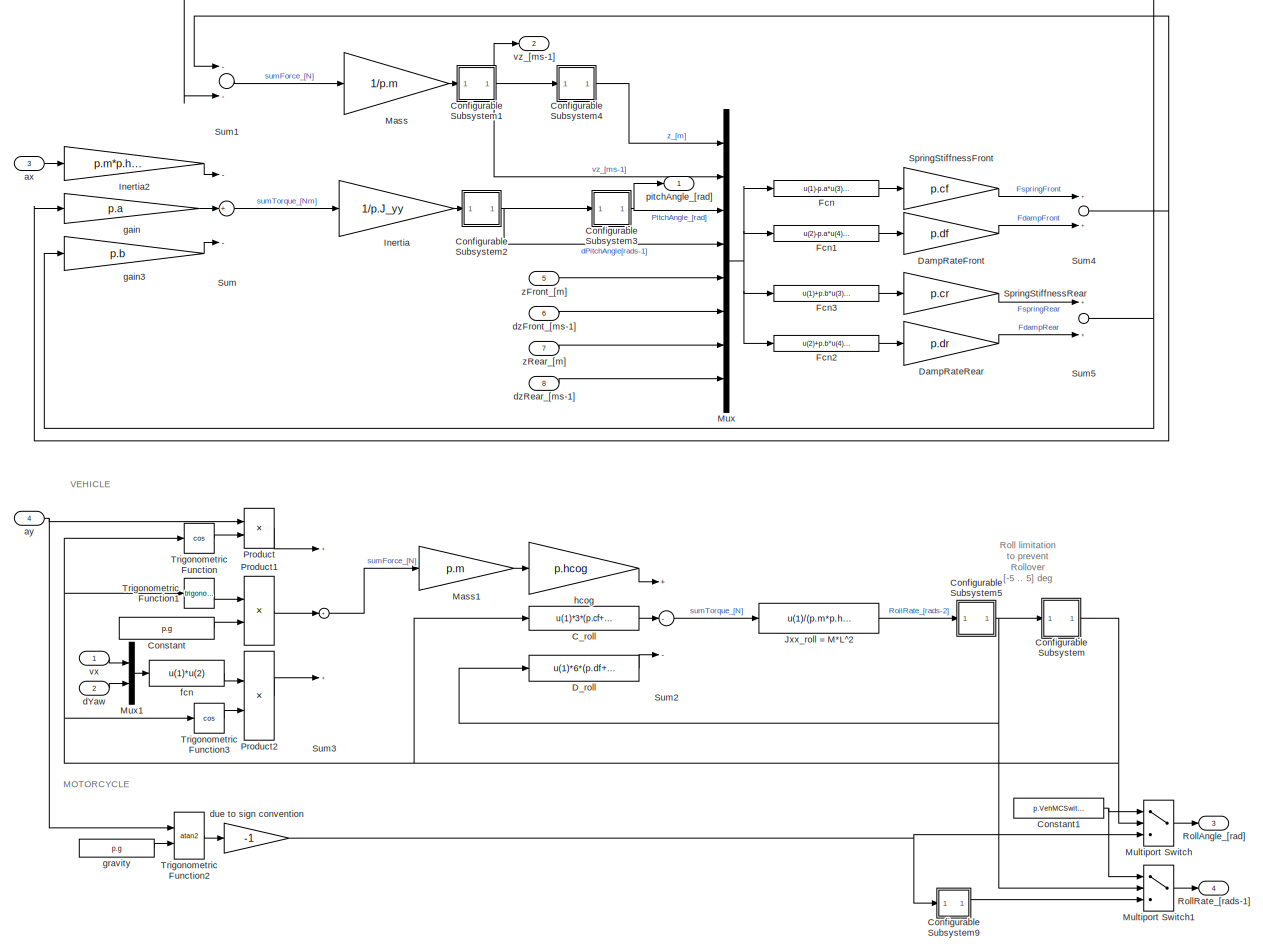
[diagram: BMW_X5_SUV_1/Dynamics_Simple/Chassis/Bicycle_model_[XYZ]/Z, Pitch_Motion & Roll_Motion - part 1/1, most of the canvas]
BLOCK [SubSystem] BMW_X5_SUV_1/Dynamics_Simple/Chassis/Bicycle_model_[XYZ]/Z, Pitch_Motion & Roll_Motion
  Ports = [8, 4]
  RequestExecContextInheritance = off
BLOCK [Fcn] BMW_X5_SUV_1/Dynamics_Simple/Chassis/Bicycle_model_[XYZ]/Z, Pitch_Motion & Roll_Motion/C_roll
  Expr = u(1)*3*(p.cf+p.cr)/2*p.width^2/2
BLOCK [SubSystem] BMW_X5_SUV_1/Dynamics_Simple/Chassis/Bicycle_model_[XYZ]/Z, Pitch_Motion & Roll_Motion/Configurable Subsystem
  AttributesFormatString = %<BlockChoice>
  BlockChoice = Integrator
  MemberBlocks = Discrete-Time Integrator,Integrator
  OpenFcn = BringToFront(gcb);
  Ports = [1, 1]
  RequestExecContextInheritance = off
  ShowPortLabels = none
  TemplateBlock = PreScanSimulinkLibrary/Configurable Subsystems/integral with limits\nfor roll motion/Configurable\nSubsystem
BLOCK [Inport] BMW_X5_SUV_1/Dynamics_Simple/Chassis/Bicycle_model_[XYZ]/Z, Pitch_Motion & Roll_Motion/Configurable Subsystem/In1
  IconDisplay = Port number
BLOCK [Integrator] BMW_X5_SUV_1/Dynamics_Simple/Chassis/Bicycle_model_[XYZ]/Z, Pitch_Motion & Roll_Motion/Configurable Subsystem/Integrator
  LimitOutput = on
  LowerSaturationLimit = -5*pi/180
  Ports = [1, 1]
  UpperSaturationLimit = 5*pi/180
BLOCK [Outport] BMW_X5_SUV_1/Dynamics_Simple/Chassis/Bicycle_model_[XYZ]/Z, Pitch_Motion & Roll_Motion/Configurable Subsystem/Out1
  IconDisplay = Port number
BLOCK [SubSystem] BMW_X5_SUV_1/Dynamics_Simple/Chassis/Bicycle_model_[XYZ]/Z, Pitch_Motion & Roll_Motion/Configurable Subsystem1
  AttributesFormatString = %<BlockChoice>
  BlockChoice = Integrator
  MemberBlocks = Discrete-Time Integrator,Integrator
  OpenFcn = BringToFront(gcb);
  Ports = [1, 1]
  RequestExecContextInheritance = off
  ShowPortLabels = none
  TemplateBlock = PreScanSimulinkLibrary/Configurable Subsystems/integral/Configurable\nSubsystem1
BLOCK [Inport] BMW_X5_SUV_1/Dynamics_Simple/Chassis/Bicycle_model_[XYZ]/Z, Pitch_Motion & Roll_Motion/Configurable Subsystem1/In1
  IconDisplay = Port number
BLOCK [Integrator] BMW_X5_SUV_1/Dynamics_Simple/Chassis/Bicycle_model_[XYZ]/Z, Pitch_Motion & Roll_Motion/Configurable Subsystem1/Integrator
  Ports = [1, 1]
BLOCK [Outport] BMW_X5_SUV_1/Dynamics_Simple/Chassis/Bicycle_model_[XYZ]/Z, Pitch_Motion & Roll_Motion/Configurable Subsystem1/Out1
  IconDisplay = Port number
BLOCK [SubSystem] BMW_X5_SUV_1/Dynamics_Simple/Chassis/Bicycle_model_[XYZ]/Z, Pitch_Motion & Roll_Motion/Configurable Subsystem2
  AttributesFormatString = %<BlockChoice>
  BlockChoice = Integrator
  MemberBlocks = Discrete-Time Integrator,Integrator
  OpenFcn = BringToFront(gcb);
  Ports = [1, 1]
  RequestExecContextInheritance = off
  ShowPortLabels = none
  TemplateBlock = PreScanSimulinkLibrary/Configurable Subsystems/integral/Configurable\nSubsystem1
BLOCK [Inport] BMW_X5_SUV_1/Dynamics_Simple/Chassis/Bicycle_model_[XYZ]/Z, Pitch_Motion & Roll_Motion/Configurable Subsystem2/In1
  IconDisplay = Port number
BLOCK [Integrator] BMW_X5_SUV_1/Dynamics_Simple/Chassis/Bicycle_model_[XYZ]/Z, Pitch_Motion & Roll_Motion/Configurable Subsystem2/Integrator
  Ports = [1, 1]
BLOCK [Outport] BMW_X5_SUV_1/Dynamics_Simple/Chassis/Bicycle_model_[XYZ]/Z, Pitch_Motion & Roll_Motion/Configurable Subsystem2/Out1
  IconDisplay = Port number
BLOCK [SubSystem] BMW_X5_SUV_1/Dynamics_Simple/Chassis/Bicycle_model_[XYZ]/Z, Pitch_Motion & Roll_Motion/Configurable Subsystem3
  AttributesFormatString = %<BlockChoice>
  BlockChoice = Integrator
  MemberBlocks = Discrete-Time Integrator,Integrator
  OpenFcn = BringToFront(gcb);
  Ports = [1, 1]
  RequestExecContextInheritance = off
  ShowPortLabels = none
  TemplateBlock = PreScanSimulinkLibrary/Configurable Subsystems/integral/Configurable\nSubsystem1
BLOCK [Inport] BMW_X5_SUV_1/Dynamics_Simple/Chassis/Bicycle_model_[XYZ]/Z, Pitch_Motion & Roll_Motion/Configurable Subsystem3/In1
  IconDisplay = Port number
BLOCK [Integrator] BMW_X5_SUV_1/Dynamics_Simple/Chassis/Bicycle_model_[XYZ]/Z, Pitch_Motion & Roll_Motion/Configurable Subsystem3/Integrator
  Ports = [1, 1]
BLOCK [Outport] BMW_X5_SUV_1/Dynamics_Simple/Chassis/Bicycle_model_[XYZ]/Z, Pitch_Motion & Roll_Motion/Configurable Subsystem3/Out1
  IconDisplay = Port number
BLOCK [SubSystem] BMW_X5_SUV_1/Dynamics_Simple/Chassis/Bicycle_model_[XYZ]/Z, Pitch_Motion & Roll_Motion/Configurable Subsystem4
  AttributesFormatString = %<BlockChoice>
  BlockChoice = Integrator
  MemberBlocks = Discrete-Time Integrator,Integrator
  OpenFcn = BringToFront(gcb);
  Ports = [1, 1]
  RequestExecContextInheritance = off
  ShowPortLabels = none
  TemplateBlock = PreScanSimulinkLibrary/Configurable Subsystems/integral/Configurable\nSubsystem1
BLOCK [Inport] BMW_X5_SUV_1/Dynamics_Simple/Chassis/Bicycle_model_[XYZ]/Z, Pitch_Motion & Roll_Motion/Configurable Subsystem4/In1
  IconDisplay = Port number
BLOCK [Integrator] BMW_X5_SUV_1/Dynamics_Simple/Chassis/Bicycle_model_[XYZ]/Z, Pitch_Motion & Roll_Motion/Configurable Subsystem4/Integrator
  Ports = [1, 1]
BLOCK [Outport] BMW_X5_SUV_1/Dynamics_Simple/Chassis/Bicycle_model_[XYZ]/Z, Pitch_Motion & Roll_Motion/Configurable Subsystem4/Out1
  IconDisplay = Port number
BLOCK [SubSystem] BMW_X5_SUV_1/Dynamics_Simple/Chassis/Bicycle_model_[XYZ]/Z, Pitch_Motion & Roll_Motion/Configurable Subsystem5
  AttributesFormatString = %<BlockChoice>
  BlockChoice = Integrator
  MemberBlocks = Discrete-Time Integrator,Integrator
  OpenFcn = BringToFront(gcb);
  Ports = [1, 1]
  RequestExecContextInheritance = off
  ShowPortLabels = none
  TemplateBlock = PreScanSimulinkLibrary/Configurable Subsystems/integral/Configurable\nSubsystem1
BLOCK [Inport] BMW_X5_SUV_1/Dynamics_Simple/Chassis/Bicycle_model_[XYZ]/Z, Pitch_Motion & Roll_Motion/Configurable Subsystem5/In1
  IconDisplay = Port number
BLOCK [Integrator] BMW_X5_SUV_1/Dynamics_Simple/Chassis/Bicycle_model_[XYZ]/Z, Pitch_Motion & Roll_Motion/Configurable Subsystem5/Integrator
  Ports = [1, 1]
BLOCK [Outport] BMW_X5_SUV_1/Dynamics_Simple/Chassis/Bicycle_model_[XYZ]/Z, Pitch_Motion & Roll_Motion/Configurable Subsystem5/Out1
  IconDisplay = Port number
BLOCK [SubSystem] BMW_X5_SUV_1/Dynamics_Simple/Chassis/Bicycle_model_[XYZ]/Z, Pitch_Motion & Roll_Motion/Configurable Subsystem9
  AttributesFormatString = %<BlockChoice>
  BlockChoice = Derivative
  MemberBlocks = Derivative,Discrete Derivative
  OpenFcn = BringToFront(gcb);
  Ports = [1, 1]
  RequestExecContextInheritance = off
  ShowPortLabels = none
  TemplateBlock = PreScanSimulinkLibrary/Configurable Subsystems/Derivative/Configurable\nSubsystem
BLOCK [Derivative] BMW_X5_SUV_1/Dynamics_Simple/Chassis/Bicycle_model_[XYZ]/Z, Pitch_Motion & Roll_Motion/Configurable Subsystem9/Derivative
BLOCK [Inport] BMW_X5_SUV_1/Dynamics_Simple/Chassis/Bicycle_model_[XYZ]/Z, Pitch_Motion & Roll_Motion/Configurable Subsystem9/In1
  IconDisplay = Port number
BLOCK [Outport] BMW_X5_SUV_1/Dynamics_Simple/Chassis/Bicycle_model_[XYZ]/Z, Pitch_Motion & Roll_Motion/Configurable Subsystem9/Out1
  IconDisplay = Port number
BLOCK [Constant] BMW_X5_SUV_1/Dynamics_Simple/Chassis/Bicycle_model_[XYZ]/Z, Pitch_Motion & Roll_Motion/Constant
  Value = p.g
BLOCK [Constant] BMW_X5_SUV_1/Dynamics_Simple/Chassis/Bicycle_model_[XYZ]/Z, Pitch_Motion & Roll_Motion/Constant1
  Value = p.VehMCSwitch
BLOCK [Fcn] BMW_X5_SUV_1/Dynamics_Simple/Chassis/Bicycle_model_[XYZ]/Z, Pitch_Motion & Roll_Motion/D_roll
  Expr = u(1)*6*(p.df+p.dr)/2*p.width^2/2
BLOCK [Gain] BMW_X5_SUV_1/Dynamics_Simple/Chassis/Bicycle_model_[XYZ]/Z, Pitch_Motion & Roll_Motion/DampRateFront
  Gain = p.df
BLOCK [Gain] BMW_X5_SUV_1/Dynamics_Simple/Chassis/Bicycle_model_[XYZ]/Z, Pitch_Motion & Roll_Motion/DampRateRear
  Gain = p.dr
BLOCK [Fcn] BMW_X5_SUV_1/Dynamics_Simple/Chassis/Bicycle_model_[XYZ]/Z, Pitch_Motion & Roll_Motion/Fcn
  Expr = u(1)-p.a*u(3)-u(5)
BLOCK [Fcn] BMW_X5_SUV_1/Dynamics_Simple/Chassis/Bicycle_model_[XYZ]/Z, Pitch_Motion & Roll_Motion/Fcn1
  Expr = u(2)-p.a*u(4)-u(6)
BLOCK [Fcn] BMW_X5_SUV_1/Dynamics_Simple/Chassis/Bicycle_model_[XYZ]/Z, Pitch_Motion & Roll_Motion/Fcn2
  Expr = u(2)+p.b*u(4)-u(8)
BLOCK [Fcn] BMW_X5_SUV_1/Dynamics_Simple/Chassis/Bicycle_model_[XYZ]/Z, Pitch_Motion & Roll_Motion/Fcn3
  Expr = u(1)+p.b*u(3)-u(7)
BLOCK [Gain] BMW_X5_SUV_1/Dynamics_Simple/Chassis/Bicycle_model_[XYZ]/Z, Pitch_Motion & Roll_Motion/Inertia
  Gain = 1/p.J_yy
BLOCK [Gain] BMW_X5_SUV_1/Dynamics_Simple/Chassis/Bicycle_model_[XYZ]/Z, Pitch_Motion & Roll_Motion/Inertia2
  Gain = p.m*p.hcog
BLOCK [Fcn] BMW_X5_SUV_1/Dynamics_Simple/Chassis/Bicycle_model_[XYZ]/Z, Pitch_Motion & Roll_Motion/Jxx_roll = M*L^2
  Expr = u(1)/(p.m*p.hcog^2)
BLOCK [Gain] BMW_X5_SUV_1/Dynamics_Simple/Chassis/Bicycle_model_[XYZ]/Z, Pitch_Motion & Roll_Motion/Mass
  Gain = 1/p.m
BLOCK [Gain] BMW_X5_SUV_1/Dynamics_Simple/Chassis/Bicycle_model_[XYZ]/Z, Pitch_Motion & Roll_Motion/Mass1
  Gain = p.m
BLOCK [MultiPortSwitch] BMW_X5_SUV_1/Dynamics_Simple/Chassis/Bicycle_model_[XYZ]/Z, Pitch_Motion & Roll_Motion/Multiport Switch
  InputSameDT = off
  Inputs = 2
  Ports = [3, 1]
  SaturateOnIntegerOverflow = off
BLOCK [MultiPortSwitch] BMW_X5_SUV_1/Dynamics_Simple/Chassis/Bicycle_model_[XYZ]/Z, Pitch_Motion & Roll_Motion/Multiport Switch1
  InputSameDT = off
  Inputs = 2
  Ports = [3, 1]
  SaturateOnIntegerOverflow = off
BLOCK [Mux] BMW_X5_SUV_1/Dynamics_Simple/Chassis/Bicycle_model_[XYZ]/Z, Pitch_Motion & Roll_Motion/Mux
  DisplayOption = bar
  Inputs = 8
  Ports = [8, 1]
BLOCK [Mux] BMW_X5_SUV_1/Dynamics_Simple/Chassis/Bicycle_model_[XYZ]/Z, Pitch_Motion & Roll_Motion/Mux1
  DisplayOption = bar
  Inputs = 2
  Ports = [2, 1]
BLOCK [Product] BMW_X5_SUV_1/Dynamics_Simple/Chassis/Bicycle_model_[XYZ]/Z, Pitch_Motion & Roll_Motion/Product
  InputSameDT = off
  OutDataTypeStr = Inherit: Inherit via internal rule
  Ports = [2, 1]
  SaturateOnIntegerOverflow = off
BLOCK [Product] BMW_X5_SUV_1/Dynamics_Simple/Chassis/Bicycle_model_[XYZ]/Z, Pitch_Motion & Roll_Motion/Product1
  InputSameDT = off
  OutDataTypeStr = Inherit: Inherit via internal rule
  Ports = [2, 1]
  SaturateOnIntegerOverflow = off
BLOCK [Product] BMW_X5_SUV_1/Dynamics_Simple/Chassis/Bicycle_model_[XYZ]/Z, Pitch_Motion & Roll_Motion/Product2
  InputSameDT = off
  OutDataTypeStr = Inherit: Inherit via internal rule
  Ports = [2, 1]
  SaturateOnIntegerOverflow = off
BLOCK [Outport] BMW_X5_SUV_1/Dynamics_Simple/Chassis/Bicycle_model_[XYZ]/Z, Pitch_Motion & Roll_Motion/RollAngle_[rad]
  IconDisplay = Port number
  Port = 3
BLOCK [Outport] BMW_X5_SUV_1/Dynamics_Simple/Chassis/Bicycle_model_[XYZ]/Z, Pitch_Motion & Roll_Motion/RollRate_[rads-1]
  IconDisplay = Port number
  Port = 4
BLOCK [Gain] BMW_X5_SUV_1/Dynamics_Simple/Chassis/Bicycle_model_[XYZ]/Z, Pitch_Motion & Roll_Motion/SpringStiffnessFront
  Gain = p.cf
BLOCK [Gain] BMW_X5_SUV_1/Dynamics_Simple/Chassis/Bicycle_model_[XYZ]/Z, Pitch_Motion & Roll_Motion/SpringStiffnessRear
  Gain = p.cr
BLOCK [Sum] BMW_X5_SUV_1/Dynamics_Simple/Chassis/Bicycle_model_[XYZ]/Z, Pitch_Motion & Roll_Motion/Sum
  Inputs = -+-
  Ports = [3, 1]
BLOCK [Sum] BMW_X5_SUV_1/Dynamics_Simple/Chassis/Bicycle_model_[XYZ]/Z, Pitch_Motion & Roll_Motion/Sum1
  Inputs = --
  Ports = [2, 1]
BLOCK [Sum] BMW_X5_SUV_1/Dynamics_Simple/Chassis/Bicycle_model_[XYZ]/Z, Pitch_Motion & Roll_Motion/Sum2
  Inputs = +--
  Ports = [3, 1]
BLOCK [Sum] BMW_X5_SUV_1/Dynamics_Simple/Chassis/Bicycle_model_[XYZ]/Z, Pitch_Motion & Roll_Motion/Sum3
  Inputs = +++
  Ports = [3, 1]
BLOCK [Sum] BMW_X5_SUV_1/Dynamics_Simple/Chassis/Bicycle_model_[XYZ]/Z, Pitch_Motion & Roll_Motion/Sum4
  Ports = [2, 1]
BLOCK [Sum] BMW_X5_SUV_1/Dynamics_Simple/Chassis/Bicycle_model_[XYZ]/Z, Pitch_Motion & Roll_Motion/Sum5
  Ports = [2, 1]
BLOCK [Trigonometry] BMW_X5_SUV_1/Dynamics_Simple/Chassis/Bicycle_model_[XYZ]/Z, Pitch_Motion & Roll_Motion/Trigonometric Function
  Operator = cos
  Ports = [1, 1]
BLOCK [Trigonometry] BMW_X5_SUV_1/Dynamics_Simple/Chassis/Bicycle_model_[XYZ]/Z, Pitch_Motion & Roll_Motion/Trigonometric Function1
  Ports = [1, 1]
BLOCK [Trigonometry] BMW_X5_SUV_1/Dynamics_Simple/Chassis/Bicycle_model_[XYZ]/Z, Pitch_Motion & Roll_Motion/Trigonometric Function2
  Operator = atan2
  Ports = [2, 1]
BLOCK [Trigonometry] BMW_X5_SUV_1/Dynamics_Simple/Chassis/Bicycle_model_[XYZ]/Z, Pitch_Motion & Roll_Motion/Trigonometric Function3
  Operator = cos
  Ports = [1, 1]
BLOCK [Inport] BMW_X5_SUV_1/Dynamics_Simple/Chassis/Bicycle_model_[XYZ]/Z, Pitch_Motion & Roll_Motion/ax
  IconDisplay = Port number
  Port = 3
BLOCK [Inport] BMW_X5_SUV_1/Dynamics_Simple/Chassis/Bicycle_model_[XYZ]/Z, Pitch_Motion & Roll_Motion/ay
  IconDisplay = Port number
  Port = 4
BLOCK [Inport] BMW_X5_SUV_1/Dynamics_Simple/Chassis/Bicycle_model_[XYZ]/Z, Pitch_Motion & Roll_Motion/dYaw
  IconDisplay = Port number
  Port = 2
BLOCK [Gain] BMW_X5_SUV_1/Dynamics_Simple/Chassis/Bicycle_model_[XYZ]/Z, Pitch_Motion & Roll_Motion/due to sign convention
  Gain = -1
BLOCK [Inport] BMW_X5_SUV_1/Dynamics_Simple/Chassis/Bicycle_model_[XYZ]/Z, Pitch_Motion & Roll_Motion/dzFront_[ms-1]
  IconDisplay = Port number
  Port = 6
BLOCK [Inport] BMW_X5_SUV_1/Dynamics_Simple/Chassis/Bicycle_model_[XYZ]/Z, Pitch_Motion & Roll_Motion/dzRear_[ms-1]
  IconDisplay = Port number
  Port = 8
BLOCK [Fcn] BMW_X5_SUV_1/Dynamics_Simple/Chassis/Bicycle_model_[XYZ]/Z, Pitch_Motion & Roll_Motion/fcn
  Expr = u(1)*u(2)
BLOCK [Gain] BMW_X5_SUV_1/Dynamics_Simple/Chassis/Bicycle_model_[XYZ]/Z, Pitch_Motion & Roll_Motion/gain
  Gain = p.a
BLOCK [Gain] BMW_X5_SUV_1/Dynamics_Simple/Chassis/Bicycle_model_[XYZ]/Z, Pitch_Motion & Roll_Motion/gain3
  Gain = p.b
BLOCK [Constant] BMW_X5_SUV_1/Dynamics_Simple/Chassis/Bicycle_model_[XYZ]/Z, Pitch_Motion & Roll_Motion/gravity
  Value = p.g
BLOCK [Gain] BMW_X5_SUV_1/Dynamics_Simple/Chassis/Bicycle_model_[XYZ]/Z, Pitch_Motion & Roll_Motion/hcog
  Gain = p.hcog
BLOCK [Outport] BMW_X5_SUV_1/Dynamics_Simple/Chassis/Bicycle_model_[XYZ]/Z, Pitch_Motion & Roll_Motion/pitchAngle_[rad]
  IconDisplay = Port number
BLOCK [Inport] BMW_X5_SUV_1/Dynamics_Simple/Chassis/Bicycle_model_[XYZ]/Z, Pitch_Motion & Roll_Motion/vx
  IconDisplay = Port number
BLOCK [Outport] BMW_X5_SUV_1/Dynamics_Simple/Chassis/Bicycle_model_[XYZ]/Z, Pitch_Motion & Roll_Motion/vz_[ms-1]
  IconDisplay = Port number
  Port = 2
BLOCK [Inport] BMW_X5_SUV_1/Dynamics_Simple/Chassis/Bicycle_model_[XYZ]/Z, Pitch_Motion & Roll_Motion/zFront_[m]
  IconDisplay = Port number
  Port = 5
BLOCK [Inport] BMW_X5_SUV_1/Dynamics_Simple/Chassis/Bicycle_model_[XYZ]/Z, Pitch_Motion & Roll_Motion/zRear_[m]
  IconDisplay = Port number
  Port = 7
BLOCK [Outport] BMW_X5_SUV_1/Dynamics_Simple/Chassis/Bicycle_model_[XYZ]/ax_[ms-2]
  IconDisplay = Port number
  Port = 10
BLOCK [Outport] BMW_X5_SUV_1/Dynamics_Simple/Chassis/Bicycle_model_[XYZ]/ay_[ms-2]
  IconDisplay = Port number
  Port = 11
BLOCK [Inport] BMW_X5_SUV_1/Dynamics_Simple/Chassis/Bicycle_model_[XYZ]/v0_[ms-1]
  IconDisplay = Port number
  Port = 6
BLOCK [Outport] BMW_X5_SUV_1/Dynamics_Simple/Chassis/Bicycle_model_[XYZ]/vy_[ms-1]
  IconDisplay = Port number
  Port = 2
BLOCK [Outport] BMW_X5_SUV_1/Dynamics_Simple/Chassis/Bicycle_model_[XYZ]/vz_[ms-1]
  IconDisplay = Port number
  Port = 3
BLOCK [Inport] BMW_X5_SUV_1/Dynamics_Simple/Chassis/Bicycle_model_[XYZ]/zFront_[m]_dzFront_[ms-1]
  IconDisplay = Port number
  Port = 2
  PortDimensions = 2
BLOCK [Inport] BMW_X5_SUV_1/Dynamics_Simple/Chassis/Bicycle_model_[XYZ]/zRear_[m]_dzRear_[ms-1]
  IconDisplay = Port number
  Port = 3
  PortDimensions = 2
BLOCK [Inport] BMW_X5_SUV_1/Dynamics_Simple/Chassis/Bicycle_model_[XYZ]/|vx|_[ms-1]
  IconDisplay = Port number
  Port = 7
BLOCK [Outport] BMW_X5_SUV_1/Dynamics_Simple/Chassis/Bicycle_model_[XYZ]/|vx|_[ms-1]1
  IconDisplay = Port number
BLOCK [Inport] BMW_X5_SUV_1/Dynamics_Simple/Chassis/BrakePressure_[bar]
  IconDisplay = Port number
  Port = 2
BLOCK [Constant] BMW_X5_SUV_1/Dynamics_Simple/Chassis/Constant3
  Value = [0 0]
BLOCK [Constant] BMW_X5_SUV_1/Dynamics_Simple/Chassis/Constant4
  Value = [0 0]
BLOCK [Reference] BMW_X5_SUV_1/Dynamics_Simple/Chassis/Degrees to Radians  REF=simulink_extras/Transformations/Degrees to
Radians
  Ports = [1, 1]
  SourceBlock = simulink_extras/Transformations/Degrees to\nRadians
  SourceProductBaseCode = SL
  SourceProductName = Simulink
  SourceType = DegreesToRadians
BLOCK [Inport] BMW_X5_SUV_1/Dynamics_Simple/Chassis/DeltaSteer_[deg]
  IconDisplay = Port number
  Port = 3
BLOCK [Gain] BMW_X5_SUV_1/Dynamics_Simple/Chassis/FinalDriveRatio
  Gain = p.Rfd
BLOCK [Gain] BMW_X5_SUV_1/Dynamics_Simple/Chassis/FinalDriveRatio 
  Gain = p.Rfd
BLOCK [From] BMW_X5_SUV_1/Dynamics_Simple/Chassis/From
  CloseFcn = tagdialog Close
  GotoTag = vx
BLOCK [From] BMW_X5_SUV_1/Dynamics_Simple/Chassis/From1
  CloseFcn = tagdialog Close
  GotoTag = DeltaWheel
BLOCK [From] BMW_X5_SUV_1/Dynamics_Simple/Chassis/From10
  CloseFcn = tagdialog Close
  GotoTag = RollAngle
BLOCK [From] BMW_X5_SUV_1/Dynamics_Simple/Chassis/From11
  CloseFcn = tagdialog Close
  GotoTag = RollAngle
BLOCK [From] BMW_X5_SUV_1/Dynamics_Simple/Chassis/From13
  CloseFcn = tagdialog Close
  GotoTag = DT
BLOCK [From] BMW_X5_SUV_1/Dynamics_Simple/Chassis/From14
  CloseFcn = tagdialog Close
  GotoTag = vy
BLOCK [From] BMW_X5_SUV_1/Dynamics_Simple/Chassis/From2
  CloseFcn = tagdialog Close
  GotoTag = Absvx
BLOCK [From] BMW_X5_SUV_1/Dynamics_Simple/Chassis/From3
  CloseFcn = tagdialog Close
  GotoTag = vy
BLOCK [From] BMW_X5_SUV_1/Dynamics_Simple/Chassis/From4
  CloseFcn = tagdialog Close
  GotoTag = YawRate
BLOCK [From] BMW_X5_SUV_1/Dynamics_Simple/Chassis/From5
  CloseFcn = tagdialog Close
  GotoTag = Absvx
BLOCK [From] BMW_X5_SUV_1/Dynamics_Simple/Chassis/From6
  CloseFcn = tagdialog Close
  GotoTag = vy
BLOCK [From] BMW_X5_SUV_1/Dynamics_Simple/Chassis/From7
  CloseFcn = tagdialog Close
  GotoTag = YawRate
BLOCK [From] BMW_X5_SUV_1/Dynamics_Simple/Chassis/From8
  CloseFcn = tagdialog Close
  GotoTag = vx
BLOCK [From] BMW_X5_SUV_1/Dynamics_Simple/Chassis/From9
  CloseFcn = tagdialog Close
  GotoTag = vx
BLOCK [SubSystem] BMW_X5_SUV_1/Dynamics_Simple/Chassis/FrontTyre
  Ports = [5, 1]
  RequestExecContextInheritance = off
BLOCK [SubSystem] BMW_X5_SUV_1/Dynamics_Simple/Chassis/FrontTyre/AlphaFront
  Ports = [1, 1]
  RequestExecContextInheritance = off
BLOCK [Abs] BMW_X5_SUV_1/Dynamics_Simple/Chassis/FrontTyre/AlphaFront/Abs
  SaturateOnIntegerOverflow = off
BLOCK [Outport] BMW_X5_SUV_1/Dynamics_Simple/Chassis/FrontTyre/AlphaFront/Alpha
  IconDisplay = Port number
BLOCK [Reference] BMW_X5_SUV_1/Dynamics_Simple/Chassis/FrontTyre/AlphaFront/Compare To Constant  REF=simulink/Logic and Bit
Operations/Compare
To Constant
  Ports = [1, 1]
  SourceBlock = simulink/Logic and Bit\nOperations/Compare\nTo Constant
  SourceProductBaseCode = SL
  SourceProductName = Simulink
  SourceType = Compare To Constant
BLOCK [SubSystem] BMW_X5_SUV_1/Dynamics_Simple/Chassis/FrontTyre/AlphaFront/Enabled Subsystem
  Ports = [1, 1, 1]
  RequestExecContextInheritance = off
  TreatAsAtomicUnit = on
BLOCK [Outport] BMW_X5_SUV_1/Dynamics_Simple/Chassis/FrontTyre/AlphaFront/Enabled Subsystem/Alpha
  IconDisplay = Port number
  InitialOutput = [0]
  OutputWhenDisabled = reset
BLOCK [Fcn] BMW_X5_SUV_1/Dynamics_Simple/Chassis/FrontTyre/AlphaFront/Enabled Subsystem/AlphaFront
  Expr = -atan( (u(2)+u(3)*p.a)/u(1) )
BLOCK [EnablePort] BMW_X5_SUV_1/Dynamics_Simple/Chassis/FrontTyre/AlphaFront/Enabled Subsystem/Enable
  Ports = []
  PropagateVarSize = During execution
BLOCK [Inport] BMW_X5_SUV_1/Dynamics_Simple/Chassis/FrontTyre/AlphaFront/Enabled Subsystem/In
  IconDisplay = Port number
BLOCK [Inport] BMW_X5_SUV_1/Dynamics_Simple/Chassis/FrontTyre/AlphaFront/In
  IconDisplay = Port number
BLOCK [Selector] BMW_X5_SUV_1/Dynamics_Simple/Chassis/FrontTyre/AlphaFront/Selector
  IndexOptions = Index vector (dialog)
  Indices = 1
  OutputSizes = 1
  Ports = [1, 1]
BLOCK [Reference] BMW_X5_SUV_1/Dynamics_Simple/Chassis/FrontTyre/Compare To Zero  REF=simulink/Logic and Bit
Operations/Compare
To Zero
  Ports = [1, 1]
  SourceBlock = simulink/Logic and Bit\nOperations/Compare\nTo Zero
  SourceProductBaseCode = SL
  SourceProductName = Simulink
  SourceType = Compare To Zero
BLOCK [SubSystem] BMW_X5_SUV_1/Dynamics_Simple/Chassis/FrontTyre/Configurable Subsystem
  AttributesFormatString = %<BlockChoice>
  BlockChoice = Integrator
  MemberBlocks = Discrete-Time Integrator,Integrator
  OpenFcn = BringToFront(gcb);
  Ports = [2, 1]
  RequestExecContextInheritance = off
  ShowPortLabels = none
  TemplateBlock = PreScanSimulinkLibrary/Configurable Subsystems/integral with reset and limits \nfor slip angle/Configurable\nSubsystem
BLOCK [Inport] BMW_X5_SUV_1/Dynamics_Simple/Chassis/FrontTyre/Configurable Subsystem/In1
  IconDisplay = Port number
BLOCK [Inport] BMW_X5_SUV_1/Dynamics_Simple/Chassis/FrontTyre/Configurable Subsystem/In2
  IconDisplay = Port number
  Port = 2
BLOCK [Integrator] BMW_X5_SUV_1/Dynamics_Simple/Chassis/FrontTyre/Configurable Subsystem/Integrator
  ExternalReset = level
  LimitOutput = on
  LowerSaturationLimit = -1
  Ports = [2, 1]
  UpperSaturationLimit = 1
BLOCK [Outport] BMW_X5_SUV_1/Dynamics_Simple/Chassis/FrontTyre/Configurable Subsystem/Out1
  IconDisplay = Port number
BLOCK [SubSystem] BMW_X5_SUV_1/Dynamics_Simple/Chassis/FrontTyre/Configurable Subsystem1
  AttributesFormatString = %<BlockChoice>
  BlockChoice = Integrator
  MemberBlocks = Discrete-Time Integrator,Integrator
  OpenFcn = BringToFront(gcb);
  Ports = [2, 1]
  RequestExecContextInheritance = off
  ShowPortLabels = none
  TemplateBlock = PreScanSimulinkLibrary/Configurable Subsystems/integral with reset/Configurable\nSubsystem
BLOCK [Inport] BMW_X5_SUV_1/Dynamics_Simple/Chassis/FrontTyre/Configurable Subsystem1/In1
  IconDisplay = Port number
BLOCK [Inport] BMW_X5_SUV_1/Dynamics_Simple/Chassis/FrontTyre/Configurable Subsystem1/In2
  IconDisplay = Port number
  Port = 2
BLOCK [Integrator] BMW_X5_SUV_1/Dynamics_Simple/Chassis/FrontTyre/Configurable Subsystem1/Integrator
  ExternalReset = level
  Ports = [2, 1]
BLOCK [Outport] BMW_X5_SUV_1/Dynamics_Simple/Chassis/FrontTyre/Configurable Subsystem1/Out1
  IconDisplay = Port number
BLOCK [Constant] BMW_X5_SUV_1/Dynamics_Simple/Chassis/FrontTyre/Constant
  Value = p.relax_on
BLOCK [Constant] BMW_X5_SUV_1/Dynamics_Simple/Chassis/FrontTyre/Constant1
  Value = p.relax_on
BLOCK [Constant] BMW_X5_SUV_1/Dynamics_Simple/Chassis/FrontTyre/Constant2
  Value = p.VehMCSwitch
BLOCK [DataTypeConversion] BMW_X5_SUV_1/Dynamics_Simple/Chassis/FrontTyre/Data Type Conversion
  OutDataTypeStr = double
  RndMeth = Floor
  SaturateOnIntegerOverflow = off
BLOCK [Inport] BMW_X5_SUV_1/Dynamics_Simple/Chassis/FrontTyre/DeltaWheel_[rad]
  IconDisplay = Port number
BLOCK [From] BMW_X5_SUV_1/Dynamics_Simple/Chassis/FrontTyre/From
  CloseFcn = tagdialog Close
  GotoTag = reset
BLOCK [From] BMW_X5_SUV_1/Dynamics_Simple/Chassis/FrontTyre/From1
  CloseFcn = tagdialog Close
  GotoTag = reset
BLOCK [Outport] BMW_X5_SUV_1/Dynamics_Simple/Chassis/FrontTyre/FyFront_[N]
  IconDisplay = Port number
BLOCK [Goto] BMW_X5_SUV_1/Dynamics_Simple/Chassis/FrontTyre/Goto
  GotoTag = reset
BLOCK [Reference] BMW_X5_SUV_1/Dynamics_Simple/Chassis/FrontTyre/If MC  REF=simulink/Logic and Bit
Operations/Compare
To Constant
  Ports = [1, 1]
  SourceBlock = simulink/Logic and Bit\nOperations/Compare\nTo Constant
  SourceProductBaseCode = SL
  SourceProductName = Simulink
  SourceType = Compare To Constant
BLOCK [Gain] BMW_X5_SUV_1/Dynamics_Simple/Chassis/FrontTyre/K_gamma_front
  Gain = p.Kgfront
  OutDataTypeStr = Inherit: Inherit via internal rule
  ParamDataTypeStr = Inherit: Inherit via internal rule
  SaturateOnIntegerOverflow = off
BLOCK [Fcn] BMW_X5_SUV_1/Dynamics_Simple/Chassis/FrontTyre/Linl
  Expr = (u(4) - u(5))/p.sigma_front*u(1)
BLOCK [Fcn] BMW_X5_SUV_1/Dynamics_Simple/Chassis/FrontTyre/Linl1
  Expr = (u(4) - u(5))/p.sigma_front*u(1)
BLOCK [Mux] BMW_X5_SUV_1/Dynamics_Simple/Chassis/FrontTyre/Mux1
  DisplayOption = bar
  Inputs = 3
  Ports = [3, 1]
BLOCK [Mux] BMW_X5_SUV_1/Dynamics_Simple/Chassis/FrontTyre/Mux2
  DisplayOption = bar
  Inputs = {3,1,1}
  Ports = [3, 1]
BLOCK [Mux] BMW_X5_SUV_1/Dynamics_Simple/Chassis/FrontTyre/Mux3
  DisplayOption = bar
  Inputs = {3,1,1}
  Ports = [3, 1]
BLOCK [SubSystem] BMW_X5_SUV_1/Dynamics_Simple/Chassis/FrontTyre/Prevent_instability_at_low_Vx
  Ports = [2, 1]
  RequestExecContextInheritance = off
BLOCK [Product] BMW_X5_SUV_1/Dynamics_Simple/Chassis/FrontTyre/Prevent_instability_at_low_Vx/Divide
  InputSameDT = off
  Inputs = **
  OutDataTypeStr = Inherit: Inherit via internal rule
  Ports = [2, 1]
  RndMeth = Floor
  SaturateOnIntegerOverflow = off
BLOCK [Inport] BMW_X5_SUV_1/Dynamics_Simple/Chassis/FrontTyre/Prevent_instability_at_low_Vx/In
  IconDisplay = Port number
  Port = 2
BLOCK [Lookup] BMW_X5_SUV_1/Dynamics_Simple/Chassis/FrontTyre/Prevent_instability_at_low_Vx/Lookup Table
  InputValues = [0    2.5   ]
  LookUpMeth = Interpolation-Use End Values
  SaturateOnIntegerOverflow = off
  Table = [0.01    1]
BLOCK [Selector] BMW_X5_SUV_1/Dynamics_Simple/Chassis/FrontTyre/Prevent_instability_at_low_Vx/Selector
  IndexOptions = Index vector (dialog)
  Indices = [1]
  InputPortWidth = 3
  OutputSizes = 1
  Ports = [1, 1]
BLOCK [Outport] BMW_X5_SUV_1/Dynamics_Simple/Chassis/FrontTyre/Prevent_instability_at_low_Vx/alpha [rad]
  IconDisplay = Port number
BLOCK [Inport] BMW_X5_SUV_1/Dynamics_Simple/Chassis/FrontTyre/Prevent_instability_at_low_Vx/alpha[rad]
  IconDisplay = Port number
BLOCK [Product] BMW_X5_SUV_1/Dynamics_Simple/Chassis/FrontTyre/Product
  InputSameDT = off
  OutDataTypeStr = Inherit: Inherit via internal rule
  Ports = [2, 1]
  SaturateOnIntegerOverflow = off
BLOCK [Inport] BMW_X5_SUV_1/Dynamics_Simple/Chassis/FrontTyre/RollAngle_[rad]
  IconDisplay = Port number
  Port = 5
BLOCK [Sum] BMW_X5_SUV_1/Dynamics_Simple/Chassis/FrontTyre/Sum
  IconShape = round
  Inputs = |++
  Ports = [2, 1]
BLOCK [Sum] BMW_X5_SUV_1/Dynamics_Simple/Chassis/FrontTyre/Sum1
  IconShape = round
  InputSameDT = off
  Inputs = |++
  OutDataTypeStr = Inherit: Inherit via internal rule
  Ports = [2, 1]
  SaturateOnIntegerOverflow = off
BLOCK [Switch] BMW_X5_SUV_1/Dynamics_Simple/Chassis/FrontTyre/Switch
  Threshold = 0.5
BLOCK [Switch] BMW_X5_SUV_1/Dynamics_Simple/Chassis/FrontTyre/Switch1
  Threshold = 0.5
BLOCK [Memory] BMW_X5_SUV_1/Dynamics_Simple/Chassis/FrontTyre/alg.loop
BLOCK [Inport] BMW_X5_SUV_1/Dynamics_Simple/Chassis/FrontTyre/dYawAngle_[rads-1]
  IconDisplay = Port number
  Port = 4
BLOCK [Gain] BMW_X5_SUV_1/Dynamics_Simple/Chassis/FrontTyre/due to sign convention
  Gain = -1
BLOCK [Gain] BMW_X5_SUV_1/Dynamics_Simple/Chassis/FrontTyre/front_tyre
  Gain = p.Kfront
  OutDataTypeStr = Inherit: Inherit via internal rule
  ParamDataTypeStr = Inherit: Inherit via internal rule
  SaturateOnIntegerOverflow = off
BLOCK [Inport] BMW_X5_SUV_1/Dynamics_Simple/Chassis/FrontTyre/vy_[ms-1]
  IconDisplay = Port number
  Port = 3
BLOCK [Inport] BMW_X5_SUV_1/Dynamics_Simple/Chassis/FrontTyre/|vx|_[ms-1]
  IconDisplay = Port number
  Port = 2
BLOCK [Gain] BMW_X5_SUV_1/Dynamics_Simple/Chassis/Gain
  Gain = 2*pi/60
  OutDataTypeStr = Inherit: Inherit via internal rule
  ParamDataTypeStr = Inherit: Inherit via internal rule
  SaturateOnIntegerOverflow = off
BLOCK [Goto] BMW_X5_SUV_1/Dynamics_Simple/Chassis/Goto
  GotoTag = DT
BLOCK [Goto] BMW_X5_SUV_1/Dynamics_Simple/Chassis/Goto1
  GotoTag = vx
BLOCK [Goto] BMW_X5_SUV_1/Dynamics_Simple/Chassis/Goto2
  GotoTag = DeltaWheel
BLOCK [Goto] BMW_X5_SUV_1/Dynamics_Simple/Chassis/Goto3
  GotoTag = Absvx
BLOCK [Goto] BMW_X5_SUV_1/Dynamics_Simple/Chassis/Goto4
  GotoTag = vy
BLOCK [Goto] BMW_X5_SUV_1/Dynamics_Simple/Chassis/Goto5
  GotoTag = YawRate
BLOCK [Goto] BMW_X5_SUV_1/Dynamics_Simple/Chassis/Goto6
  GotoTag = RollAngle
BLOCK [Inport] BMW_X5_SUV_1/Dynamics_Simple/Chassis/Initial_Vx_[m s-1]
  IconDisplay = Port number
  Port = 4
BLOCK [SubSystem] BMW_X5_SUV_1/Dynamics_Simple/Chassis/MuxDynState
  Ports = [6, 1]
  RequestExecContextInheritance = off
BLOCK [SubSystem] BMW_X5_SUV_1/Dynamics_Simple/Chassis/MuxDynState/Configurable Subsystem1
  AttributesFormatString = %<BlockChoice>
  BlockChoice = Integrator
  MemberBlocks = Discrete-Time Integrator,Integrator
  OpenFcn = BringToFront(gcb);
  Ports = [1, 1]
  RequestExecContextInheritance = off
  ShowPortLabels = none
  TemplateBlock = PreScanSimulinkLibrary/Configurable Subsystems/integral/Configurable\nSubsystem1
BLOCK [Inport] BMW_X5_SUV_1/Dynamics_Simple/Chassis/MuxDynState/Configurable Subsystem1/In1
  IconDisplay = Port number
BLOCK [Integrator] BMW_X5_SUV_1/Dynamics_Simple/Chassis/MuxDynState/Configurable Subsystem1/Integrator
  Ports = [1, 1]
BLOCK [Outport] BMW_X5_SUV_1/Dynamics_Simple/Chassis/MuxDynState/Configurable Subsystem1/Out1
  IconDisplay = Port number
BLOCK [Ground] BMW_X5_SUV_1/Dynamics_Simple/Chassis/MuxDynState/Ground
BLOCK [Ground] BMW_X5_SUV_1/Dynamics_Simple/Chassis/MuxDynState/Ground1
BLOCK [Mux] BMW_X5_SUV_1/Dynamics_Simple/Chassis/MuxDynState/Mux
  DisplayOption = bar
  Inputs = [3 3 3]
  Ports = [3, 1]
BLOCK [Mux] BMW_X5_SUV_1/Dynamics_Simple/Chassis/MuxDynState/Mux1
  DisplayOption = bar
  Inputs = 3
  Ports = [3, 1]
BLOCK [Mux] BMW_X5_SUV_1/Dynamics_Simple/Chassis/MuxDynState/Mux2
  DisplayOption = bar
  Inputs = 3
  Ports = [3, 1]
BLOCK [Inport] BMW_X5_SUV_1/Dynamics_Simple/Chassis/MuxDynState/P [rad]
  IconDisplay = Port number
  Port = 5
BLOCK [Inport] BMW_X5_SUV_1/Dynamics_Simple/Chassis/MuxDynState/R [rad]
  IconDisplay = Port number
  Port = 4
BLOCK [Outport] BMW_X5_SUV_1/Dynamics_Simple/Chassis/MuxDynState/State
  IconDisplay = Port number
BLOCK [SubSystem] BMW_X5_SUV_1/Dynamics_Simple/Chassis/MuxDynState/Transformation_BODY2GLOBAL
  Ports = [2, 1]
  RequestExecContextInheritance = off
BLOCK [DotProduct] BMW_X5_SUV_1/Dynamics_Simple/Chassis/MuxDynState/Transformation_BODY2GLOBAL/Dot Product
  OutDataTypeStr = Inherit: Inherit via internal rule
BLOCK [DotProduct] BMW_X5_SUV_1/Dynamics_Simple/Chassis/MuxDynState/Transformation_BODY2GLOBAL/Dot Product1
  OutDataTypeStr = Inherit: Inherit via internal rule
BLOCK [DotProduct] BMW_X5_SUV_1/Dynamics_Simple/Chassis/MuxDynState/Transformation_BODY2GLOBAL/Dot Product2
  OutDataTypeStr = Inherit: Inherit via internal rule
BLOCK [Fcn] BMW_X5_SUV_1/Dynamics_Simple/Chassis/MuxDynState/Transformation_BODY2GLOBAL/Fcn10
  Expr = cos(u(1))*sin(u(2))*sin(u(3))-sin(u(1))*cos(u(3))
BLOCK [Fcn] BMW_X5_SUV_1/Dynamics_Simple/Chassis/MuxDynState/Transformation_BODY2GLOBAL/Fcn11
  Expr = cos(u(1))*sin(u(2))*cos(u(3))+sin(u(1))*sin(u(3))
BLOCK [Fcn] BMW_X5_SUV_1/Dynamics_Simple/Chassis/MuxDynState/Transformation_BODY2GLOBAL/Fcn12
  Expr = sin(u(1))*cos(u(2))
BLOCK [Fcn] BMW_X5_SUV_1/Dynamics_Simple/Chassis/MuxDynState/Transformation_BODY2GLOBAL/Fcn13
  Expr = sin(u(1))*sin(u(2))*sin(u(3))+cos(u(1))*cos(u(3))
BLOCK [Fcn] BMW_X5_SUV_1/Dynamics_Simple/Chassis/MuxDynState/Transformation_BODY2GLOBAL/Fcn14
  Expr = sin(u(1))*sin(u(2))*cos(u(3))-cos(u(1))*sin(u(3))
BLOCK [Fcn] BMW_X5_SUV_1/Dynamics_Simple/Chassis/MuxDynState/Transformation_BODY2GLOBAL/Fcn15
  Expr = -sin(u(2))
BLOCK [Fcn] BMW_X5_SUV_1/Dynamics_Simple/Chassis/MuxDynState/Transformation_BODY2GLOBAL/Fcn16
  Expr = cos(u(2))*sin(u(3))
BLOCK [Fcn] BMW_X5_SUV_1/Dynamics_Simple/Chassis/MuxDynState/Transformation_BODY2GLOBAL/Fcn17
  Expr = cos(u(2))*cos(u(3))
BLOCK [Fcn] BMW_X5_SUV_1/Dynamics_Simple/Chassis/MuxDynState/Transformation_BODY2GLOBAL/Fcn9
  Expr = cos(u(1))*cos(u(2))
BLOCK [Mux] BMW_X5_SUV_1/Dynamics_Simple/Chassis/MuxDynState/Transformation_BODY2GLOBAL/Mux1
  DisplayOption = bar
  Inputs = 9
  Ports = [9, 1]
BLOCK [Mux] BMW_X5_SUV_1/Dynamics_Simple/Chassis/MuxDynState/Transformation_BODY2GLOBAL/Mux3
  DisplayOption = bar
  Inputs = 3
  Ports = [3, 1]
BLOCK [Selector] BMW_X5_SUV_1/Dynamics_Simple/Chassis/MuxDynState/Transformation_BODY2GLOBAL/Selector
  IndexOptions = Index vector (dialog)
  Indices = [1 2 3]
  InputPortWidth = 9
  OutputSizes = 1
  Ports = [1, 1]
BLOCK [Selector] BMW_X5_SUV_1/Dynamics_Simple/Chassis/MuxDynState/Transformation_BODY2GLOBAL/Selector1
  IndexOptions = Index vector (dialog)
  Indices = [4 5 6]
  InputPortWidth = 9
  OutputSizes = 1
  Ports = [1, 1]
BLOCK [Selector] BMW_X5_SUV_1/Dynamics_Simple/Chassis/MuxDynState/Transformation_BODY2GLOBAL/Selector2
  IndexOptions = Index vector (dialog)
  Indices = [7 8 9]
  InputPortWidth = 9
  OutputSizes = 1
  Ports = [1, 1]
BLOCK [Inport] BMW_X5_SUV_1/Dynamics_Simple/Chassis/MuxDynState/Transformation_BODY2GLOBAL/Vvector_BODY_[m//s]
  IconDisplay = Port number
BLOCK [Outport] BMW_X5_SUV_1/Dynamics_Simple/Chassis/MuxDynState/Transformation_BODY2GLOBAL/Vvector_GLOBAL_[m//s]
  IconDisplay = Port number
BLOCK [Inport] BMW_X5_SUV_1/Dynamics_Simple/Chassis/MuxDynState/Transformation_BODY2GLOBAL/angles_BODYwrtGLOB_[rad]
  IconDisplay = Port number
  Port = 2
BLOCK [Selector] BMW_X5_SUV_1/Dynamics_Simple/Chassis/MuxDynState/Transformation_BODY2GLOBAL/rot_xyz 2 rot_zyx
  IndexOptions = Index vector (dialog)
  Indices = [3 2 1]
  InputPortWidth = 3
  OutputSizes = 1
  Ports = [1, 1]
BLOCK [Inport] BMW_X5_SUV_1/Dynamics_Simple/Chassis/MuxDynState/Y [rad]
  IconDisplay = Port number
  Port = 6
BLOCK [Mux] BMW_X5_SUV_1/Dynamics_Simple/Chassis/MuxDynState/mux3
  Inputs = 3
  Ports = [3, 1]
BLOCK [Inport] BMW_X5_SUV_1/Dynamics_Simple/Chassis/MuxDynState/vx [ms-1]
  IconDisplay = Port number
BLOCK [Inport] BMW_X5_SUV_1/Dynamics_Simple/Chassis/MuxDynState/vy [ms-1]
  IconDisplay = Port number
  Port = 2
BLOCK [Inport] BMW_X5_SUV_1/Dynamics_Simple/Chassis/MuxDynState/vz [ms-1]
  IconDisplay = Port number
  Port = 3
BLOCK [Outport] BMW_X5_SUV_1/Dynamics_Simple/Chassis/PDrive_[kW]
  IconDisplay = Port number
  Port = 6
BLOCK [SubSystem] BMW_X5_SUV_1/Dynamics_Simple/Chassis/Power Assisted Steering
  Ports = [2, 1]
  RequestExecContextInheritance = off
BLOCK [Constant] BMW_X5_SUV_1/Dynamics_Simple/Chassis/Power Assisted Steering/Constant
BLOCK [Constant] BMW_X5_SUV_1/Dynamics_Simple/Chassis/Power Assisted Steering/Constant1
  Value = p.VehMCSwitch
BLOCK [Inport] BMW_X5_SUV_1/Dynamics_Simple/Chassis/Power Assisted Steering/Delta_in_[deg]
  IconDisplay = Port number
  Port = 2
BLOCK [Outport] BMW_X5_SUV_1/Dynamics_Simple/Chassis/Power Assisted Steering/Delta_out_[deg]
  IconDisplay = Port number
BLOCK [Lookup] BMW_X5_SUV_1/Dynamics_Simple/Chassis/Power Assisted Steering/Lookup Table
  InputValues = [0 35 45 100]
  SaturateOnIntegerOverflow = off
  Table = [1 1 0.2 0.2]
BLOCK [MultiPortSwitch] BMW_X5_SUV_1/Dynamics_Simple/Chassis/Power Assisted Steering/Multiport Switch
  InputSameDT = off
  Inputs = 2
  Ports = [3, 1]
  SaturateOnIntegerOverflow = off
BLOCK [Product] BMW_X5_SUV_1/Dynamics_Simple/Chassis/Power Assisted Steering/Product
  InputSameDT = off
  Inputs = 3
  OutDataTypeStr = Inherit: Inherit via internal rule
  Ports = [3, 1]
  SaturateOnIntegerOverflow = off
BLOCK [Signum] BMW_X5_SUV_1/Dynamics_Simple/Chassis/Power Assisted Steering/Sign
BLOCK [Inport] BMW_X5_SUV_1/Dynamics_Simple/Chassis/Power Assisted Steering/Vx_[ms-1]
  IconDisplay = Port number
BLOCK [Product] BMW_X5_SUV_1/Dynamics_Simple/Chassis/Product
  InputSameDT = off
  OutDataTypeStr = Inherit: Inherit via internal rule
  Ports = [2, 1]
  SaturateOnIntegerOverflow = off
BLOCK [SubSystem] BMW_X5_SUV_1/Dynamics_Simple/Chassis/RearTyre
  Ports = [4, 1]
  RequestExecContextInheritance = off
BLOCK [SubSystem] BMW_X5_SUV_1/Dynamics_Simple/Chassis/RearTyre/AlphaRear
  Ports = [1, 1]
  RequestExecContextInheritance = off
BLOCK [Abs] BMW_X5_SUV_1/Dynamics_Simple/Chassis/RearTyre/AlphaRear/Abs
  SaturateOnIntegerOverflow = off
BLOCK [Outport] BMW_X5_SUV_1/Dynamics_Simple/Chassis/RearTyre/AlphaRear/Alpha
  IconDisplay = Port number
BLOCK [Reference] BMW_X5_SUV_1/Dynamics_Simple/Chassis/RearTyre/AlphaRear/Compare To Constant  REF=simulink/Logic and Bit
Operations/Compare
To Constant
  Ports = [1, 1]
  SourceBlock = simulink/Logic and Bit\nOperations/Compare\nTo Constant
  SourceProductBaseCode = SL
  SourceProductName = Simulink
  SourceType = Compare To Constant
BLOCK [SubSystem] BMW_X5_SUV_1/Dynamics_Simple/Chassis/RearTyre/AlphaRear/Enabled Subsystem
  Ports = [1, 1, 1]
  RequestExecContextInheritance = off
  TreatAsAtomicUnit = on
BLOCK [Outport] BMW_X5_SUV_1/Dynamics_Simple/Chassis/RearTyre/AlphaRear/Enabled Subsystem/Alpha
  IconDisplay = Port number
  InitialOutput = [0]
  OutputWhenDisabled = reset
BLOCK [Fcn] BMW_X5_SUV_1/Dynamics_Simple/Chassis/RearTyre/AlphaRear/Enabled Subsystem/AlphaRear
  Expr = -atan( (u(2)-u(3)*p.b)/u(1) )
BLOCK [EnablePort] BMW_X5_SUV_1/Dynamics_Simple/Chassis/RearTyre/AlphaRear/Enabled Subsystem/Enable
  Ports = []
  PropagateVarSize = During execution
BLOCK [Inport] BMW_X5_SUV_1/Dynamics_Simple/Chassis/RearTyre/AlphaRear/Enabled Subsystem/In
  IconDisplay = Port number
BLOCK [Inport] BMW_X5_SUV_1/Dynamics_Simple/Chassis/RearTyre/AlphaRear/In
  IconDisplay = Port number
BLOCK [Selector] BMW_X5_SUV_1/Dynamics_Simple/Chassis/RearTyre/AlphaRear/Selector
  IndexOptions = Index vector (dialog)
  Indices = 1
  OutputSizes = 1
  Ports = [1, 1]
BLOCK [Reference] BMW_X5_SUV_1/Dynamics_Simple/Chassis/RearTyre/Compare To Zero  REF=simulink/Logic and Bit
Operations/Compare
To Zero
  Ports = [1, 1]
  SourceBlock = simulink/Logic and Bit\nOperations/Compare\nTo Zero
  SourceProductBaseCode = SL
  SourceProductName = Simulink
  SourceType = Compare To Zero
BLOCK [SubSystem] BMW_X5_SUV_1/Dynamics_Simple/Chassis/RearTyre/Configurable Subsystem
  AttributesFormatString = %<BlockChoice>
  BlockChoice = Integrator
  MemberBlocks = Discrete-Time Integrator,Integrator
  OpenFcn = BringToFront(gcb);
  Ports = [2, 1]
  RequestExecContextInheritance = off
  ShowPortLabels = none
  TemplateBlock = PreScanSimulinkLibrary/Configurable Subsystems/integral with reset/Configurable\nSubsystem
BLOCK [Inport] BMW_X5_SUV_1/Dynamics_Simple/Chassis/RearTyre/Configurable Subsystem/In1
  IconDisplay = Port number
BLOCK [Inport] BMW_X5_SUV_1/Dynamics_Simple/Chassis/RearTyre/Configurable Subsystem/In2
  IconDisplay = Port number
  Port = 2
BLOCK [Integrator] BMW_X5_SUV_1/Dynamics_Simple/Chassis/RearTyre/Configurable Subsystem/Integrator
  ExternalReset = level
  Ports = [2, 1]
BLOCK [Outport] BMW_X5_SUV_1/Dynamics_Simple/Chassis/RearTyre/Configurable Subsystem/Out1
  IconDisplay = Port number
BLOCK [SubSystem] BMW_X5_SUV_1/Dynamics_Simple/Chassis/RearTyre/Configurable Subsystem1
  AttributesFormatString = %<BlockChoice>
  BlockChoice = Integrator
  MemberBlocks = Discrete-Time Integrator,Integrator
  OpenFcn = BringToFront(gcb);
  Ports = [2, 1]
  RequestExecContextInheritance = off
  ShowPortLabels = none
  TemplateBlock = PreScanSimulinkLibrary/Configurable Subsystems/integral with reset and limits \nfor slip angle/Configurable\nSubsystem
BLOCK [Inport] BMW_X5_SUV_1/Dynamics_Simple/Chassis/RearTyre/Configurable Subsystem1/In1
  IconDisplay = Port number
BLOCK [Inport] BMW_X5_SUV_1/Dynamics_Simple/Chassis/RearTyre/Configurable Subsystem1/In2
  IconDisplay = Port number
  Port = 2
BLOCK [Integrator] BMW_X5_SUV_1/Dynamics_Simple/Chassis/RearTyre/Configurable Subsystem1/Integrator
  ExternalReset = level
  LimitOutput = on
  LowerSaturationLimit = -1
  Ports = [2, 1]
  UpperSaturationLimit = 1
BLOCK [Outport] BMW_X5_SUV_1/Dynamics_Simple/Chassis/RearTyre/Configurable Subsystem1/Out1
  IconDisplay = Port number
BLOCK [Constant] BMW_X5_SUV_1/Dynamics_Simple/Chassis/RearTyre/Constant1
  Value = p.relax_on
BLOCK [Constant] BMW_X5_SUV_1/Dynamics_Simple/Chassis/RearTyre/Constant2
  Value = p.relax_on
BLOCK [Constant] BMW_X5_SUV_1/Dynamics_Simple/Chassis/RearTyre/Constant3
  Value = p.VehMCSwitch
BLOCK [DataTypeConversion] BMW_X5_SUV_1/Dynamics_Simple/Chassis/RearTyre/Data Type Conversion
  OutDataTypeStr = double
  RndMeth = Floor
  SaturateOnIntegerOverflow = off
BLOCK [From] BMW_X5_SUV_1/Dynamics_Simple/Chassis/RearTyre/From
  CloseFcn = tagdialog Close
  GotoTag = reset
BLOCK [From] BMW_X5_SUV_1/Dynamics_Simple/Chassis/RearTyre/From1
  CloseFcn = tagdialog Close
  GotoTag = reset
BLOCK [Outport] BMW_X5_SUV_1/Dynamics_Simple/Chassis/RearTyre/FyRear_[N]
  IconDisplay = Port number
BLOCK [Goto] BMW_X5_SUV_1/Dynamics_Simple/Chassis/RearTyre/Goto
  GotoTag = reset
BLOCK [Reference] BMW_X5_SUV_1/Dynamics_Simple/Chassis/RearTyre/If MC  REF=simulink/Logic and Bit
Operations/Compare
To Constant
  Ports = [1, 1]
  SourceBlock = simulink/Logic and Bit\nOperations/Compare\nTo Constant
  SourceProductBaseCode = SL
  SourceProductName = Simulink
  SourceType = Compare To Constant
BLOCK [Gain] BMW_X5_SUV_1/Dynamics_Simple/Chassis/RearTyre/K_gamma_rear
  Gain = p.Kgrear
  OutDataTypeStr = Inherit: Inherit via internal rule
  ParamDataTypeStr = Inherit: Inherit via internal rule
  SaturateOnIntegerOverflow = off
BLOCK [Fcn] BMW_X5_SUV_1/Dynamics_Simple/Chassis/RearTyre/Linl
  Expr = (u(4) - u(5))/p.sigma_rear*u(1)
BLOCK [Fcn] BMW_X5_SUV_1/Dynamics_Simple/Chassis/RearTyre/Linl1
  Expr = (u(4) - u(5))/p.sigma_rear*u(1)
BLOCK [Mux] BMW_X5_SUV_1/Dynamics_Simple/Chassis/RearTyre/Mux1
  DisplayOption = bar
  Inputs = 3
  Ports = [3, 1]
BLOCK [Mux] BMW_X5_SUV_1/Dynamics_Simple/Chassis/RearTyre/Mux2
  DisplayOption = bar
  Inputs = {3,1,1}
  Ports = [3, 1]
BLOCK [Mux] BMW_X5_SUV_1/Dynamics_Simple/Chassis/RearTyre/Mux3
  DisplayOption = bar
  Inputs = {3,1,1}
  Ports = [3, 1]
BLOCK [Reference] BMW_X5_SUV_1/Dynamics_Simple/Chassis/RearTyre/Prevent_instability_at_low_Vx  REF=PreScanSimulinkLibrary/Simple_Vehicle_Dynamics/Chassis/FrontTyre/Prevent_instability_at_low_Vx
  Ports = [2, 1]
  SourceBlock = PreScanSimulinkLibrary/Simple_Vehicle_Dynamics/Chassis/FrontTyre/Prevent_instability_at_low_Vx
  SourceType = SubSystem
BLOCK [Product] BMW_X5_SUV_1/Dynamics_Simple/Chassis/RearTyre/Product
  InputSameDT = off
  OutDataTypeStr = Inherit: Inherit via internal rule
  Ports = [2, 1]
  SaturateOnIntegerOverflow = off
BLOCK [Inport] BMW_X5_SUV_1/Dynamics_Simple/Chassis/RearTyre/RollAngle_[rad]
  IconDisplay = Port number
  Port = 4
BLOCK [Sum] BMW_X5_SUV_1/Dynamics_Simple/Chassis/RearTyre/Sum1
  IconShape = round
  InputSameDT = off
  Inputs = |++
  OutDataTypeStr = Inherit: Inherit via internal rule
  Ports = [2, 1]
  SaturateOnIntegerOverflow = off
BLOCK [Switch] BMW_X5_SUV_1/Dynamics_Simple/Chassis/RearTyre/Switch1
  Threshold = 0.5
BLOCK [Switch] BMW_X5_SUV_1/Dynamics_Simple/Chassis/RearTyre/Switch2
  Threshold = 0.5
BLOCK [Memory] BMW_X5_SUV_1/Dynamics_Simple/Chassis/RearTyre/alg.loop
BLOCK [Inport] BMW_X5_SUV_1/Dynamics_Simple/Chassis/RearTyre/dpsi_[rads-1]
  IconDisplay = Port number
  Port = 3
BLOCK [Gain] BMW_X5_SUV_1/Dynamics_Simple/Chassis/RearTyre/due to sign convention
  Gain = -1
BLOCK [Gain] BMW_X5_SUV_1/Dynamics_Simple/Chassis/RearTyre/rear_tyre
  Gain = p.Krear
  OutDataTypeStr = Inherit: Inherit via internal rule
  ParamDataTypeStr = Inherit: Inherit via internal rule
  SaturateOnIntegerOverflow = off
BLOCK [Inport] BMW_X5_SUV_1/Dynamics_Simple/Chassis/RearTyre/vy_[ms-1]
  IconDisplay = Port number
  Port = 2
BLOCK [Inport] BMW_X5_SUV_1/Dynamics_Simple/Chassis/RearTyre/|vx|_[ms-1]
  IconDisplay = Port number
BLOCK [Outport] BMW_X5_SUV_1/Dynamics_Simple/Chassis/State
  IconDisplay = Port number
BLOCK [Gain] BMW_X5_SUV_1/Dynamics_Simple/Chassis/SteerRatio
  Gain = 1/p.SteerRatio
  OutDataTypeStr = Inherit: Inherit via internal rule
  ParamDataTypeStr = Inherit: Inherit via internal rule
  SaturateOnIntegerOverflow = off
BLOCK [Terminator] BMW_X5_SUV_1/Dynamics_Simple/Chassis/Terminator4
BLOCK [Outport] BMW_X5_SUV_1/Dynamics_Simple/Chassis/TransmissionOut_[rpm]
  IconDisplay = Port number
  Port = 7
BLOCK [Inport] BMW_X5_SUV_1/Dynamics_Simple/Chassis/TransmissionTorque_[Nm]
  IconDisplay = Port number
BLOCK [Outport] BMW_X5_SUV_1/Dynamics_Simple/Chassis/VehicleSpeed_[ms-1]
  IconDisplay = Port number
  Port = 2
BLOCK [Outport] BMW_X5_SUV_1/Dynamics_Simple/Chassis/Vy_[ms-1]
  IconDisplay = Port number
  Port = 3
BLOCK [Gain] BMW_X5_SUV_1/Dynamics_Simple/Chassis/[ms-1 --> rpm]
  Gain = 60/(2*pi*p.Rw)
BLOCK [Outport] BMW_X5_SUV_1/Dynamics_Simple/Chassis/ax_[ms-2]
  IconDisplay = Port number
  Port = 4
BLOCK [Outport] BMW_X5_SUV_1/Dynamics_Simple/Chassis/ay_[ms-2]
  IconDisplay = Port number
  Port = 5
BLOCK [Gain] BMW_X5_SUV_1/Dynamics_Simple/Chassis/to_kW
  Gain = 0.001
  OutDataTypeStr = Inherit: Inherit via internal rule
  ParamDataTypeStr = Inherit: Inherit via internal rule
  SaturateOnIntegerOverflow = off
BLOCK [Constant] BMW_X5_SUV_1/Dynamics_Simple/Constant
  Value = 0
BLOCK [Constant] BMW_X5_SUV_1/Dynamics_Simple/Constant1
  Value = 0
BLOCK [Inport] BMW_X5_SUV_1/Dynamics_Simple/DeltaSteer_[deg]
  IconDisplay = Port number
BLOCK [SubSystem] BMW_X5_SUV_1/Dynamics_Simple/Engine
  Ports = [2, 2]
  RequestExecContextInheritance = off
BLOCK [SubSystem] BMW_X5_SUV_1/Dynamics_Simple/Engine/Configurable Subsystem
  AttributesFormatString = %<BlockChoice>
  BlockChoice = Rate Limiter
  MemberBlocks = Discrete Rate Limiter,Rate Limiter
  OpenFcn = BringToFront(gcb);
  Ports = [1, 1]
  RequestExecContextInheritance = off
  ShowPortLabels = none
  TemplateBlock = PreScanSimulinkLibrary/Configurable Subsystems/TransferFunction\nEngine/Configurable\nSubsystem
BLOCK [Inport] BMW_X5_SUV_1/Dynamics_Simple/Engine/Configurable Subsystem/In1
  IconDisplay = Port number
BLOCK [Outport] BMW_X5_SUV_1/Dynamics_Simple/Engine/Configurable Subsystem/Out1
  IconDisplay = Port number
BLOCK [TransferFcn] BMW_X5_SUV_1/Dynamics_Simple/Engine/Configurable Subsystem/Rate Limiter
  Denominator = [0.1 1]
BLOCK [SubSystem] BMW_X5_SUV_1/Dynamics_Simple/Engine/Configurable Subsystem1
  AttributesFormatString = %<BlockChoice>
  BlockChoice = Integrator
  MemberBlocks = Discrete-Time Integrator,Integrator
  OpenFcn = BringToFront(gcb);
  Ports = [1, 1]
  RequestExecContextInheritance = off
  ShowPortLabels = none
  TemplateBlock = PreScanSimulinkLibrary/Configurable Subsystems/integral with initial condition and limts\nfor engine/Configurable\nSubsystem
BLOCK [Inport] BMW_X5_SUV_1/Dynamics_Simple/Engine/Configurable Subsystem1/In1
  IconDisplay = Port number
BLOCK [Integrator] BMW_X5_SUV_1/Dynamics_Simple/Engine/Configurable Subsystem1/Integrator
  InitialCondition = p.rot_ini
  LimitOutput = on
  LowerSaturationLimit = p.rot_low
  Ports = [1, 1]
  UpperSaturationLimit = p.rot_upp
BLOCK [Outport] BMW_X5_SUV_1/Dynamics_Simple/Engine/Configurable Subsystem1/Out1
  IconDisplay = Port number
BLOCK [Lookup2D] BMW_X5_SUV_1/Dynamics_Simple/Engine/EngineTorque
  ColumnIndex = p.nevec
  RowIndex = p.thvec
  SaturateOnIntegerOverflow = off
  Table = p.emap
BLOCK [Gain] BMW_X5_SUV_1/Dynamics_Simple/Engine/Gain
  Gain = 2*pi/60
  OutDataTypeStr = Inherit: Inherit via internal rule
  ParamDataTypeStr = Inherit: Inherit via internal rule
  SaturateOnIntegerOverflow = off
BLOCK [Inport] BMW_X5_SUV_1/Dynamics_Simple/Engine/ImpellerTorque_[Nm]
  IconDisplay = Port number
BLOCK [Outport] BMW_X5_SUV_1/Dynamics_Simple/Engine/PEngine_[kW]
  IconDisplay = Port number
  InitialOutput = 0
  Port = 2
BLOCK [Product] BMW_X5_SUV_1/Dynamics_Simple/Engine/Product
  InputSameDT = off
  OutDataTypeStr = Inherit: Inherit via internal rule
  Ports = [2, 1]
  SaturateOnIntegerOverflow = off
BLOCK [Sum] BMW_X5_SUV_1/Dynamics_Simple/Engine/Sum
  Inputs = -+
  Ports = [2, 1]
BLOCK [Inport] BMW_X5_SUV_1/Dynamics_Simple/Engine/Throttle_[%]
  IconDisplay = Port number
  Port = 2
BLOCK [Gain] BMW_X5_SUV_1/Dynamics_Simple/Engine/engine + impeller inertia
  Gain = 1/p.Iei
BLOCK [Outport] BMW_X5_SUV_1/Dynamics_Simple/Engine/nEngine_[rpm]
  IconDisplay = Port number
  InitialOutput = 0
BLOCK [Gain] BMW_X5_SUV_1/Dynamics_Simple/Engine/rad|sec2rpm
  Gain = 60/2/pi
BLOCK [Gain] BMW_X5_SUV_1/Dynamics_Simple/Engine/to_kW
  Gain = 0.001
  OutDataTypeStr = Inherit: Inherit via internal rule
  ParamDataTypeStr = Inherit: Inherit via internal rule
  SaturateOnIntegerOverflow = off
BLOCK [From] BMW_X5_SUV_1/Dynamics_Simple/From
  CloseFcn = tagdialog Close
  GotoTag = vx
BLOCK [From] BMW_X5_SUV_1/Dynamics_Simple/From1
  CloseFcn = tagdialog Close
  GotoTag = vx
BLOCK [From] BMW_X5_SUV_1/Dynamics_Simple/From10
  CloseFcn = tagdialog Close
  GotoTag = ax
BLOCK [From] BMW_X5_SUV_1/Dynamics_Simple/From11
  CloseFcn = tagdialog Close
  GotoTag = vx
BLOCK [From] BMW_X5_SUV_1/Dynamics_Simple/From12
  CloseFcn = tagdialog Close
  GotoTag = vy
BLOCK [From] BMW_X5_SUV_1/Dynamics_Simple/From2
  CloseFcn = tagdialog Close
  GotoTag = RPM
BLOCK [From] BMW_X5_SUV_1/Dynamics_Simple/From3
  CloseFcn = tagdialog Close
  GotoTag = gear
BLOCK [From] BMW_X5_SUV_1/Dynamics_Simple/From4
  CloseFcn = tagdialog Close
  GotoTag = ay
BLOCK [From] BMW_X5_SUV_1/Dynamics_Simple/From5
  CloseFcn = tagdialog Close
  GotoTag = auto_manual
BLOCK [From] BMW_X5_SUV_1/Dynamics_Simple/From6
  CloseFcn = tagdialog Close
  GotoTag = throttle
BLOCK [From] BMW_X5_SUV_1/Dynamics_Simple/From7
  CloseFcn = tagdialog Close
  GotoTag = brake
BLOCK [From] BMW_X5_SUV_1/Dynamics_Simple/From8
  CloseFcn = tagdialog Close
  GotoTag = PE
BLOCK [From] BMW_X5_SUV_1/Dynamics_Simple/From9
  CloseFcn = tagdialog Close
  GotoTag = PD
BLOCK [Gain] BMW_X5_SUV_1/Dynamics_Simple/Gain
  Gain = 3.6
  OutDataTypeStr = Inherit: Inherit via internal rule
  ParamDataTypeStr = Inherit: Inherit via internal rule
  SaturateOnIntegerOverflow = off
BLOCK [SubSystem] BMW_X5_SUV_1/Dynamics_Simple/Gear: Auto Manual
  Ports = [3, 1]
  RequestExecContextInheritance = off
BLOCK [Inport] BMW_X5_SUV_1/Dynamics_Simple/Gear: Auto Manual/Auto_Gear
  IconDisplay = Port number
  Port = 3
BLOCK [Inport] BMW_X5_SUV_1/Dynamics_Simple/Gear: Auto Manual/Auto_Manual
  IconDisplay = Port number
BLOCK [Outport] BMW_X5_SUV_1/Dynamics_Simple/Gear: Auto Manual/Gear
  IconDisplay = Port number
BLOCK [If] BMW_X5_SUV_1/Dynamics_Simple/Gear: Auto Manual/If
  IfExpression = u1 == 0
  Ports = [1, 2]
BLOCK [SubSystem] BMW_X5_SUV_1/Dynamics_Simple/Gear: Auto Manual/If Action Subsystem
  Ports = [1, 1, 0, 0, 0, 0, 0, 1]
  RequestExecContextInheritance = off
  TreatAsAtomicUnit = on
BLOCK [ActionPort] BMW_X5_SUV_1/Dynamics_Simple/Gear: Auto Manual/If Action Subsystem/Action Port
  ActionType = then
  PropagateVarSize = During execution
BLOCK [Inport] BMW_X5_SUV_1/Dynamics_Simple/Gear: Auto Manual/If Action Subsystem/In1
  IconDisplay = Port number
BLOCK [Outport] BMW_X5_SUV_1/Dynamics_Simple/Gear: Auto Manual/If Action Subsystem/Out1
  IconDisplay = Port number
BLOCK [SubSystem] BMW_X5_SUV_1/Dynamics_Simple/Gear: Auto Manual/If Action Subsystem1
  Ports = [1, 1, 0, 0, 0, 0, 0, 1]
  RequestExecContextInheritance = off
  TreatAsAtomicUnit = on
BLOCK [ActionPort] BMW_X5_SUV_1/Dynamics_Simple/Gear: Auto Manual/If Action Subsystem1/Action Port
  ActionType = else
  PropagateVarSize = During execution
BLOCK [Inport] BMW_X5_SUV_1/Dynamics_Simple/Gear: Auto Manual/If Action Subsystem1/In1
  IconDisplay = Port number
BLOCK [Outport] BMW_X5_SUV_1/Dynamics_Simple/Gear: Auto Manual/If Action Subsystem1/Out1
  IconDisplay = Port number
BLOCK [Inport] BMW_X5_SUV_1/Dynamics_Simple/Gear: Auto Manual/Manual_Gear
  IconDisplay = Port number
  Port = 2
BLOCK [Merge] BMW_X5_SUV_1/Dynamics_Simple/Gear: Auto Manual/Merge
  Ports = [2, 1]
BLOCK [Goto] BMW_X5_SUV_1/Dynamics_Simple/Goto
  GotoTag = RPM
BLOCK [Goto] BMW_X5_SUV_1/Dynamics_Simple/Goto1
  GotoTag = vx
BLOCK [Goto] BMW_X5_SUV_1/Dynamics_Simple/Goto10
  GotoTag = vy
BLOCK [Goto] BMW_X5_SUV_1/Dynamics_Simple/Goto12
  GotoTag = Dynamic
  TagVisibility = global
BLOCK [Goto] BMW_X5_SUV_1/Dynamics_Simple/Goto2
  GotoTag = gear
BLOCK [Goto] BMW_X5_SUV_1/Dynamics_Simple/Goto3
  GotoTag = auto_manual
BLOCK [Goto] BMW_X5_SUV_1/Dynamics_Simple/Goto4
  GotoTag = ay
BLOCK [Goto] BMW_X5_SUV_1/Dynamics_Simple/Goto5
  GotoTag = throttle
BLOCK [Goto] BMW_X5_SUV_1/Dynamics_Simple/Goto6
  GotoTag = brake
BLOCK [Goto] BMW_X5_SUV_1/Dynamics_Simple/Goto7
  GotoTag = PE
BLOCK [Goto] BMW_X5_SUV_1/Dynamics_Simple/Goto8
  GotoTag = PD
BLOCK [Goto] BMW_X5_SUV_1/Dynamics_Simple/Goto9
  GotoTag = ax
BLOCK [Inport] BMW_X5_SUV_1/Dynamics_Simple/Initial_Vx_[ms-1]
  IconDisplay = Port number
  Port = 4
BLOCK [Inport] BMW_X5_SUV_1/Dynamics_Simple/Manual_GearShift
  IconDisplay = Port number
  Port = 7
BLOCK [Outport] BMW_X5_SUV_1/Dynamics_Simple/Perf_Params
  IconDisplay = Port number
  Port = 3
BLOCK [Reference] BMW_X5_SUV_1/Dynamics_Simple/Radians to Degrees  REF=simulink_extras/Transformations/Radians
to Degrees
  Ports = [1, 1]
  SourceBlock = simulink_extras/Transformations/Radians\nto Degrees
  SourceProductBaseCode = SL
  SourceProductName = Simulink
  SourceType = RadiansToDegrees
BLOCK [Reference] BMW_X5_SUV_1/Dynamics_Simple/Radians to Degrees1  REF=simulink_extras/Transformations/Radians
to Degrees
  Ports = [1, 1]
  SourceBlock = simulink_extras/Transformations/Radians\nto Degrees
  SourceProductBaseCode = SL
  SourceProductName = Simulink
  SourceType = RadiansToDegrees
BLOCK [Selector] BMW_X5_SUV_1/Dynamics_Simple/Selector
  IndexOptions = Index vector (dialog)
  Indices = 7
  InputPortWidth = 9
  OutputSizes = 1
  Ports = [1, 1]
BLOCK [Selector] BMW_X5_SUV_1/Dynamics_Simple/Selector1
  IndexOptions = Index vector (dialog)
  Indices = 8
  InputPortWidth = 9
  OutputSizes = 1
  Ports = [1, 1]
BLOCK [SubSystem] BMW_X5_SUV_1/Dynamics_Simple/ShiftLogic
  Ports = [4, 1]
  RequestExecContextInheritance = off
BLOCK [Sum] BMW_X5_SUV_1/Dynamics_Simple/ShiftLogic/Add2
  InputSameDT = off
  OutDataTypeStr = Inherit: Inherit via internal rule
  Ports = [2, 1]
  SaturateOnIntegerOverflow = off
BLOCK [Inport] BMW_X5_SUV_1/Dynamics_Simple/ShiftLogic/Auto_GearShift
  IconDisplay = Port number
  Port = 3
BLOCK [DataTypeConversion] BMW_X5_SUV_1/Dynamics_Simple/ShiftLogic/Data Type Conversion1
  OutDataTypeStr = double
  RndMeth = Floor
  SaturateOnIntegerOverflow = off
BLOCK [SubSystem] BMW_X5_SUV_1/Dynamics_Simple/ShiftLogic/Detect Increase
  Ports = [2, 1]
  RequestExecContextInheritance = off
BLOCK [Constant] BMW_X5_SUV_1/Dynamics_Simple/ShiftLogic/Detect Increase/Constant
BLOCK [DataTypeConversion] BMW_X5_SUV_1/Dynamics_Simple/ShiftLogic/Detect Increase/Data Type Conversion
  OutDataTypeStr = double
  RndMeth = Floor
  SaturateOnIntegerOverflow = off
BLOCK [DataTypeConversion] BMW_X5_SUV_1/Dynamics_Simple/ShiftLogic/Detect Increase/Data Type Conversion1
  OutDataTypeStr = double
  RndMeth = Floor
  SaturateOnIntegerOverflow = off
BLOCK [Reference] BMW_X5_SUV_1/Dynamics_Simple/ShiftLogic/Detect Increase/Detect Increase  REF=simulink/Logic and Bit
Operations/Detect
Increase
  Ports = [1, 1]
  SourceBlock = simulink/Logic and Bit\nOperations/Detect\nIncrease
  SourceProductBaseCode = SL
  SourceProductName = Simulink
  SourceType = Detect Increase
BLOCK [Inport] BMW_X5_SUV_1/Dynamics_Simple/ShiftLogic/Detect Increase/GearNr_[-]
  IconDisplay = Port number
BLOCK [If] BMW_X5_SUV_1/Dynamics_Simple/ShiftLogic/Detect Increase/If
  IfExpression = u1==1 &  u2==1
  NumInputs = 2
  Ports = [2, 2]
BLOCK [SubSystem] BMW_X5_SUV_1/Dynamics_Simple/ShiftLogic/Detect Increase/If V0 higher of the from 2->3 shifting velocity
  Ports = [1, 1, 0, 0, 0, 0, 0, 1]
  RequestExecContextInheritance = off
  TreatAsAtomicUnit = on
BLOCK [ActionPort] BMW_X5_SUV_1/Dynamics_Simple/ShiftLogic/Detect Increase/If V0 higher of the from 2->3 shifting velocity/Action Port
  ActionType = then
  PropagateVarSize = During execution
BLOCK [Inport] BMW_X5_SUV_1/Dynamics_Simple/ShiftLogic/Detect Increase/If V0 higher of the from 2->3 shifting velocity/In1
  IconDisplay = Port number
BLOCK [Outport] BMW_X5_SUV_1/Dynamics_Simple/ShiftLogic/Detect Increase/If V0 higher of the from 2->3 shifting velocity/Out1
  IconDisplay = Port number
BLOCK [Inport] BMW_X5_SUV_1/Dynamics_Simple/ShiftLogic/Detect Increase/In2
  IconDisplay = Port number
  Port = 2
BLOCK [Merge] BMW_X5_SUV_1/Dynamics_Simple/ShiftLogic/Detect Increase/Merge
  Ports = [2, 1]
BLOCK [SubSystem] BMW_X5_SUV_1/Dynamics_Simple/ShiftLogic/Detect Increase/Other
  Ports = [1, 1, 0, 0, 0, 0, 0, 1]
  RequestExecContextInheritance = off
  TreatAsAtomicUnit = on
BLOCK [ActionPort] BMW_X5_SUV_1/Dynamics_Simple/ShiftLogic/Detect Increase/Other/Action Port
  ActionType = else
  PropagateVarSize = During execution
BLOCK [DataTypeConversion] BMW_X5_SUV_1/Dynamics_Simple/ShiftLogic/Detect Increase/Other/Data Type Conversion
  OutDataTypeStr = double
  RndMeth = Floor
  SaturateOnIntegerOverflow = off
BLOCK [Reference] BMW_X5_SUV_1/Dynamics_Simple/ShiftLogic/Detect Increase/Other/Detect Increase  REF=simulink/Logic and Bit
Operations/Detect
Increase
  Ports = [1, 1]
  SourceBlock = simulink/Logic and Bit\nOperations/Detect\nIncrease
  SourceProductBaseCode = SL
  SourceProductName = Simulink
  SourceType = Detect Increase
BLOCK [Inport] BMW_X5_SUV_1/Dynamics_Simple/ShiftLogic/Detect Increase/Other/In1
  IconDisplay = Port number
BLOCK [Outport] BMW_X5_SUV_1/Dynamics_Simple/ShiftLogic/Detect Increase/Other/Out1
  IconDisplay = Port number
BLOCK [Outport] BMW_X5_SUV_1/Dynamics_Simple/ShiftLogic/Detect Increase/Out1
  IconDisplay = Port number
BLOCK [Reference] BMW_X5_SUV_1/Dynamics_Simple/ShiftLogic/Detect Increase1  REF=simulink/Logic and Bit
Operations/Detect
Increase
  Ports = [1, 1]
  SourceBlock = simulink/Logic and Bit\nOperations/Detect\nIncrease
  SourceProductBaseCode = SL
  SourceProductName = Simulink
  SourceType = Detect Increase
BLOCK [Saturate] BMW_X5_SUV_1/Dynamics_Simple/ShiftLogic/Gear limitation
  InputPortMap = u0
  LowerLimit = 1
  Ports = [1, 1]
  UpperLimit = p.maxGear
BLOCK [Saturate] BMW_X5_SUV_1/Dynamics_Simple/ShiftLogic/Gear limitation while shifting
  InputPortMap = u0
  LowerLimit = 1
  Ports = [1, 1]
  UpperLimit = p.maxGear
BLOCK [Constant] BMW_X5_SUV_1/Dynamics_Simple/ShiftLogic/GearNeutral
  Value = 0
BLOCK [Outport] BMW_X5_SUV_1/Dynamics_Simple/ShiftLogic/GearNr
  IconDisplay = Port number
BLOCK [Inport] BMW_X5_SUV_1/Dynamics_Simple/ShiftLogic/GearNr_[-]
  IconDisplay = Port number
  Port = 2
BLOCK [Constant] BMW_X5_SUV_1/Dynamics_Simple/ShiftLogic/GearReverse
  Value = -1
BLOCK [Memory] BMW_X5_SUV_1/Dynamics_Simple/ShiftLogic/IC, gear = 1
  InheritSampleTime = on
  InitialCondition = 1
BLOCK [SubSystem] BMW_X5_SUV_1/Dynamics_Simple/ShiftLogic/If Action Neutral
  Ports = [1, 1, 0, 0, 0, 0, 0, 1]
  RequestExecContextInheritance = off
  TreatAsAtomicUnit = on
BLOCK [ActionPort] BMW_X5_SUV_1/Dynamics_Simple/ShiftLogic/If Action Neutral/Action Port
  ActionType = then
  InitializeStates = reset
  PropagateVarSize = During execution
BLOCK [Inport] BMW_X5_SUV_1/Dynamics_Simple/ShiftLogic/If Action Neutral/In1
  IconDisplay = Port number
BLOCK [Outport] BMW_X5_SUV_1/Dynamics_Simple/ShiftLogic/If Action Neutral/Out1
  IconDisplay = Port number
BLOCK [SubSystem] BMW_X5_SUV_1/Dynamics_Simple/ShiftLogic/If Action Normal
  Ports = [1, 1, 0, 0, 0, 0, 0, 1]
  RequestExecContextInheritance = off
  TreatAsAtomicUnit = on
BLOCK [ActionPort] BMW_X5_SUV_1/Dynamics_Simple/ShiftLogic/If Action Normal/Action Port
  ActionType = else
  InitializeStates = reset
  PropagateVarSize = During execution
BLOCK [Inport] BMW_X5_SUV_1/Dynamics_Simple/ShiftLogic/If Action Normal/In1
  IconDisplay = Port number
BLOCK [Outport] BMW_X5_SUV_1/Dynamics_Simple/ShiftLogic/If Action Normal/Out1
  IconDisplay = Port number
BLOCK [SubSystem] BMW_X5_SUV_1/Dynamics_Simple/ShiftLogic/If Action Reverse
  Ports = [1, 1, 0, 0, 0, 0, 0, 1]
  RequestExecContextInheritance = off
  TreatAsAtomicUnit = on
BLOCK [ActionPort] BMW_X5_SUV_1/Dynamics_Simple/ShiftLogic/If Action Reverse/Action Port
  ActionType = elseif
  InitializeStates = reset
  PropagateVarSize = During execution
BLOCK [Inport] BMW_X5_SUV_1/Dynamics_Simple/ShiftLogic/If Action Reverse/In1
  IconDisplay = Port number
BLOCK [Outport] BMW_X5_SUV_1/Dynamics_Simple/ShiftLogic/If Action Reverse/Out1
  IconDisplay = Port number
BLOCK [Memory] BMW_X5_SUV_1/Dynamics_Simple/ShiftLogic/Memory
  InheritSampleTime = on
BLOCK [Merge] BMW_X5_SUV_1/Dynamics_Simple/ShiftLogic/Merge
  Inputs = 3
  Ports = [3, 1]
BLOCK [RelationalOperator] BMW_X5_SUV_1/Dynamics_Simple/ShiftLogic/Relational Operator
  InputSameDT = off
  OutDataTypeStr = boolean
  Ports = [2, 1]
BLOCK [RelationalOperator] BMW_X5_SUV_1/Dynamics_Simple/ShiftLogic/Relational Operator1
  InputSameDT = off
  Operator = <=
  OutDataTypeStr = boolean
  Ports = [2, 1]
BLOCK [Delay] BMW_X5_SUV_1/Dynamics_Simple/ShiftLogic/Shift_Down time
  DelayLength = p.ShiftDown_fac
  InputPortMap = u0
  InputProcessing = Inherited
  Ports = [1, 1]
BLOCK [Delay] BMW_X5_SUV_1/Dynamics_Simple/ShiftLogic/Shift_Up time
  DelayLength = p.ShiftUp_fac
  InputPortMap = u0
  InputProcessing = Inherited
  Ports = [1, 1]
BLOCK [Sum] BMW_X5_SUV_1/Dynamics_Simple/ShiftLogic/Sum
  InputSameDT = off
  Inputs = +-
  OutDataTypeStr = Inherit: Inherit via internal rule
  Ports = [2, 1]
  SaturateOnIntegerOverflow = off
BLOCK [Inport] BMW_X5_SUV_1/Dynamics_Simple/ShiftLogic/Throttle_[%]
  IconDisplay = Port number
BLOCK [Inport] BMW_X5_SUV_1/Dynamics_Simple/ShiftLogic/VehSpeed_[ms-1]
  IconDisplay = Port number
  Port = 4
BLOCK [Lookup2D] BMW_X5_SUV_1/Dynamics_Simple/ShiftLogic/interp_down
  ColumnIndex = [1:p.maxGear]
  LookUpMeth = Interpolation-Use End Values
  RowIndex = p.downth
  SaturateOnIntegerOverflow = off
  Table = p.downtab
BLOCK [Lookup2D] BMW_X5_SUV_1/Dynamics_Simple/ShiftLogic/interp_up
  ColumnIndex = [1:p.maxGear]
  LookUpMeth = Interpolation-Use End Values
  RowIndex = p.upth
  SaturateOnIntegerOverflow = off
  Table = p.uptab
BLOCK [If] BMW_X5_SUV_1/Dynamics_Simple/ShiftLogic/reverse//neutral//normal gear
  ElseIfExpressions = u1 < 0
  IfExpression = u1 == 0
  Ports = [1, 3]
BLOCK [Gain] BMW_X5_SUV_1/Dynamics_Simple/ShiftLogic/to_ms-1
  Gain = 1/3.6
  OutDataTypeStr = Inherit: Inherit via internal rule
  ParamDataTypeStr = Inherit: Inherit via internal rule
  SaturateOnIntegerOverflow = off
BLOCK [Gain] BMW_X5_SUV_1/Dynamics_Simple/ShiftLogic/to_ms-1 
  Gain = 1/3.6
  OutDataTypeStr = Inherit: Inherit via internal rule
  ParamDataTypeStr = Inherit: Inherit via internal rule
  SaturateOnIntegerOverflow = off
BLOCK [Outport] BMW_X5_SUV_1/Dynamics_Simple/State
  IconDisplay = Port number
BLOCK [Reference] BMW_X5_SUV_1/Dynamics_Simple/State2Bus1  REF=PreScanSimulinkLibrary/State2Bus
  Ports = [1, 1]
  Priority = 0
  SourceBlock = PreScanSimulinkLibrary/State2Bus
  SourceType = PreScan Sink Block: State
  Tag = State
BLOCK [SubSystem] BMW_X5_SUV_1/Dynamics_Simple/Subsystem
  Ports = [14, 1]
  RequestExecContextInheritance = off
BLOCK [BusCreator] BMW_X5_SUV_1/Dynamics_Simple/Subsystem/Bus Creator
  DisplayOption = bar
  InheritFromInputs = on
  Inputs = 14
  Ports = [14, 1]
BLOCK [Inport] BMW_X5_SUV_1/Dynamics_Simple/Subsystem/In1
  IconDisplay = Port number
BLOCK [Inport] BMW_X5_SUV_1/Dynamics_Simple/Subsystem/In10
  IconDisplay = Port number
  Port = 10
BLOCK [Inport] BMW_X5_SUV_1/Dynamics_Simple/Subsystem/In11
  IconDisplay = Port number
  Port = 11
BLOCK [Inport] BMW_X5_SUV_1/Dynamics_Simple/Subsystem/In12
  IconDisplay = Port number
  Port = 12
BLOCK [Inport] BMW_X5_SUV_1/Dynamics_Simple/Subsystem/In13
  IconDisplay = Port number
  Port = 13
BLOCK [Inport] BMW_X5_SUV_1/Dynamics_Simple/Subsystem/In14
  IconDisplay = Port number
  Port = 14
BLOCK [Inport] BMW_X5_SUV_1/Dynamics_Simple/Subsystem/In2
  IconDisplay = Port number
  Port = 2
BLOCK [Inport] BMW_X5_SUV_1/Dynamics_Simple/Subsystem/In3
  IconDisplay = Port number
  Port = 3
BLOCK [Inport] BMW_X5_SUV_1/Dynamics_Simple/Subsystem/In4
  IconDisplay = Port number
  Port = 4
BLOCK [Inport] BMW_X5_SUV_1/Dynamics_Simple/Subsystem/In5
  IconDisplay = Port number
  Port = 5
BLOCK [Inport] BMW_X5_SUV_1/Dynamics_Simple/Subsystem/In6
  IconDisplay = Port number
  Port = 6
BLOCK [Inport] BMW_X5_SUV_1/Dynamics_Simple/Subsystem/In7
  IconDisplay = Port number
  Port = 7
BLOCK [Inport] BMW_X5_SUV_1/Dynamics_Simple/Subsystem/In8
  IconDisplay = Port number
  Port = 8
BLOCK [Inport] BMW_X5_SUV_1/Dynamics_Simple/Subsystem/In9
  IconDisplay = Port number
  Port = 9
BLOCK [Outport] BMW_X5_SUV_1/Dynamics_Simple/Subsystem/Out1
  IconDisplay = Port number
BLOCK [Inport] BMW_X5_SUV_1/Dynamics_Simple/Throttle
  IconDisplay = Port number
  Port = 2
BLOCK [SubSystem] BMW_X5_SUV_1/Dynamics_Simple/Transmission
  Ports = [3, 2]
  RequestExecContextInheritance = off
BLOCK [Inport] BMW_X5_SUV_1/Dynamics_Simple/Transmission/GearNr_[-]
  IconDisplay = Port number
  Port = 2
BLOCK [Outport] BMW_X5_SUV_1/Dynamics_Simple/Transmission/ImpellerTorque_[Nm]
  IconDisplay = Port number
  InitialOutput = 0
BLOCK [SubSystem] BMW_X5_SUV_1/Dynamics_Simple/Transmission/Torque_Converter
  Ports = [3, 2]
  RequestExecContextInheritance = off
BLOCK [Reference] BMW_X5_SUV_1/Dynamics_Simple/Transmission/Torque_Converter/Compare To Constant  REF=simulink/Logic and Bit
Operations/Compare
To Constant
  Ports = [1, 1]
  SourceBlock = simulink/Logic and Bit\nOperations/Compare\nTo Constant
  SourceProductBaseCode = SL
  SourceProductName = Simulink
  SourceType = Compare To Constant
BLOCK [Reference] BMW_X5_SUV_1/Dynamics_Simple/Transmission/Torque_Converter/Compare To Zero  REF=simulink/Logic and Bit
Operations/Compare
To Zero
  Ports = [1, 1]
  SourceBlock = simulink/Logic and Bit\nOperations/Compare\nTo Zero
  SourceProductBaseCode = SL
  SourceProductName = Simulink
  SourceType = Compare To Zero
BLOCK [Constant] BMW_X5_SUV_1/Dynamics_Simple/Transmission/Torque_Converter/Constant
  Value = 1/50
BLOCK [Constant] BMW_X5_SUV_1/Dynamics_Simple/Transmission/Torque_Converter/Constant1
BLOCK [Constant] BMW_X5_SUV_1/Dynamics_Simple/Transmission/Torque_Converter/Constant2
BLOCK [Gain] BMW_X5_SUV_1/Dynamics_Simple/Transmission/Torque_Converter/Drag
  Gain = -1
  OutDataTypeStr = Inherit: Inherit via internal rule
  ParamDataTypeStr = Inherit: Inherit via internal rule
  SaturateOnIntegerOverflow = off
BLOCK [Lookup] BMW_X5_SUV_1/Dynamics_Simple/Transmission/Torque_Converter/FactorK
  InputValues = p.speedratio
  Table = p.Kfactor*p.Kcorr
BLOCK [Inport] BMW_X5_SUV_1/Dynamics_Simple/Transmission/Torque_Converter/Gear nr
  IconDisplay = Port number
  Port = 3
BLOCK [Fcn] BMW_X5_SUV_1/Dynamics_Simple/Transmission/Torque_Converter/Impeller
  Expr = u^2
BLOCK [Outport] BMW_X5_SUV_1/Dynamics_Simple/Transmission/Torque_Converter/ImpellerTorque_[Nm]
  IconDisplay = Port number
  InitialOutput = 0
BLOCK [Product] BMW_X5_SUV_1/Dynamics_Simple/Transmission/Torque_Converter/Product
  InputSameDT = off
  OutDataTypeStr = Inherit: Inherit via internal rule
  Ports = [2, 1]
  SaturateOnIntegerOverflow = off
BLOCK [Product] BMW_X5_SUV_1/Dynamics_Simple/Transmission/Torque_Converter/Product1
  InputSameDT = off
  OutDataTypeStr = Inherit: Inherit via internal rule
  Ports = [2, 1]
  SaturateOnIntegerOverflow = off
BLOCK [Product] BMW_X5_SUV_1/Dynamics_Simple/Transmission/Torque_Converter/Quotient
  Inputs = */
  Ports = [2, 1]
  RndMeth = Floor
BLOCK [Product] BMW_X5_SUV_1/Dynamics_Simple/Transmission/Torque_Converter/SpeedRatio
  Inputs = */
  Ports = [2, 1]
  RndMeth = Floor
BLOCK [Sum] BMW_X5_SUV_1/Dynamics_Simple/Transmission/Torque_Converter/Sum
  IconShape = round
  InputSameDT = off
  Inputs = |+-
  OutDataTypeStr = Inherit: Inherit via internal rule
  Ports = [2, 1]
  SaturateOnIntegerOverflow = off
BLOCK [Switch] BMW_X5_SUV_1/Dynamics_Simple/Transmission/Torque_Converter/Switch
  Criteria = u2 ~= 0
  InputSameDT = off
  SaturateOnIntegerOverflow = off
  Threshold = 0.5
BLOCK [Switch] BMW_X5_SUV_1/Dynamics_Simple/Transmission/Torque_Converter/Switch1
  Criteria = u2 ~= 0
  InputSameDT = off
  SaturateOnIntegerOverflow = off
BLOCK [Lookup] BMW_X5_SUV_1/Dynamics_Simple/Transmission/Torque_Converter/TorqueRatio
  InputValues = [p.speedratio 1]
  Table = [p.Torqueratio 0]
BLOCK [Product] BMW_X5_SUV_1/Dynamics_Simple/Transmission/Torque_Converter/Turbine
  Ports = [2, 1]
  RndMeth = Floor
BLOCK [Outport] BMW_X5_SUV_1/Dynamics_Simple/Transmission/Torque_Converter/TurbineTorque_[Nm]
  IconDisplay = Port number
  InitialOutput = 0
  Port = 2
BLOCK [Inport] BMW_X5_SUV_1/Dynamics_Simple/Transmission/Torque_Converter/nEngine_[rpm]
  IconDisplay = Port number
BLOCK [Inport] BMW_X5_SUV_1/Dynamics_Simple/Transmission/Torque_Converter/nTransmission_[rpm]
  IconDisplay = Port number
  Port = 2
BLOCK [Gain] BMW_X5_SUV_1/Dynamics_Simple/Transmission/Torque_Converter/rpm2rads-1
  Gain = 2*pi/60
  OutDataTypeStr = Inherit: Inherit via internal rule
  ParamDataTypeStr = Inherit: Inherit via internal rule
  SaturateOnIntegerOverflow = off
BLOCK [Outport] BMW_X5_SUV_1/Dynamics_Simple/Transmission/TransmissionTorque_[Nm]
  IconDisplay = Port number
  InitialOutput = 0
  Port = 2
BLOCK [SubSystem] BMW_X5_SUV_1/Dynamics_Simple/Transmission/Transmission_Ratio
  Ports = [3, 2]
  RequestExecContextInheritance = off
BLOCK [Abs] BMW_X5_SUV_1/Dynamics_Simple/Transmission/Transmission_Ratio/Ensure positive TransmissionRPM
  SaturateOnIntegerOverflow = off
BLOCK [Inport] BMW_X5_SUV_1/Dynamics_Simple/Transmission/Transmission_Ratio/GearNr_[-]
  IconDisplay = Port number
  Port = 2
BLOCK [If] BMW_X5_SUV_1/Dynamics_Simple/Transmission/Transmission_Ratio/If
  ElseIfExpressions = u1 == -1
  IfExpression = u1 == 0
  Ports = [1, 3]
BLOCK [SubSystem] BMW_X5_SUV_1/Dynamics_Simple/Transmission/Transmission_Ratio/If Action Neutral
  Ports = [1, 1, 0, 0, 0, 0, 0, 1]
  RequestExecContextInheritance = off
  TreatAsAtomicUnit = on
BLOCK [ActionPort] BMW_X5_SUV_1/Dynamics_Simple/Transmission/Transmission_Ratio/If Action Neutral/Action Port
  ActionType = then
  InitializeStates = reset
  PropagateVarSize = During execution
BLOCK [Inport] BMW_X5_SUV_1/Dynamics_Simple/Transmission/Transmission_Ratio/If Action Neutral/In1
  IconDisplay = Port number
BLOCK [Outport] BMW_X5_SUV_1/Dynamics_Simple/Transmission/Transmission_Ratio/If Action Neutral/Out1
  IconDisplay = Port number
BLOCK [SubSystem] BMW_X5_SUV_1/Dynamics_Simple/Transmission/Transmission_Ratio/If Action Normal
  Ports = [1, 1, 0, 0, 0, 0, 0, 1]
  RequestExecContextInheritance = off
  TreatAsAtomicUnit = on
BLOCK [ActionPort] BMW_X5_SUV_1/Dynamics_Simple/Transmission/Transmission_Ratio/If Action Normal/Action Port
  ActionType = else
  InitializeStates = reset
  PropagateVarSize = During execution
BLOCK [Inport] BMW_X5_SUV_1/Dynamics_Simple/Transmission/Transmission_Ratio/If Action Normal/In1
  IconDisplay = Port number
BLOCK [Outport] BMW_X5_SUV_1/Dynamics_Simple/Transmission/Transmission_Ratio/If Action Normal/Out1
  IconDisplay = Port number
BLOCK [SubSystem] BMW_X5_SUV_1/Dynamics_Simple/Transmission/Transmission_Ratio/If Action Reverse
  Ports = [1, 1, 0, 0, 0, 0, 0, 1]
  RequestExecContextInheritance = off
  TreatAsAtomicUnit = on
BLOCK [ActionPort] BMW_X5_SUV_1/Dynamics_Simple/Transmission/Transmission_Ratio/If Action Reverse/Action Port
  ActionType = elseif
  InitializeStates = reset
  PropagateVarSize = During execution
BLOCK [Inport] BMW_X5_SUV_1/Dynamics_Simple/Transmission/Transmission_Ratio/If Action Reverse/In1
  IconDisplay = Port number
BLOCK [Outport] BMW_X5_SUV_1/Dynamics_Simple/Transmission/Transmission_Ratio/If Action Reverse/Out1
  IconDisplay = Port number
BLOCK [Gain] BMW_X5_SUV_1/Dynamics_Simple/Transmission/Transmission_Ratio/If Action Reverse/Reverse
  Gain = -1
  OutDataTypeStr = Inherit: Inherit via internal rule
  ParamDataTypeStr = Inherit: Inherit via internal rule
  SaturateOnIntegerOverflow = off
BLOCK [Merge] BMW_X5_SUV_1/Dynamics_Simple/Transmission/Transmission_Ratio/Merge
  Inputs = 3
  Ports = [3, 1]
BLOCK [Constant] BMW_X5_SUV_1/Dynamics_Simple/Transmission/Transmission_Ratio/OutputTorque = 0
  Value = 0
BLOCK [Product] BMW_X5_SUV_1/Dynamics_Simple/Transmission/Transmission_Ratio/Product
  Ports = [2, 1]
  RndMeth = Floor
BLOCK [Product] BMW_X5_SUV_1/Dynamics_Simple/Transmission/Transmission_Ratio/Product1
  Ports = [2, 1]
  RndMeth = Floor
BLOCK [Lookup] BMW_X5_SUV_1/Dynamics_Simple/Transmission/Transmission_Ratio/Transmission Gear ratios
  InputValues = p.tr_in
  Table = p.tr_out
BLOCK [Outport] BMW_X5_SUV_1/Dynamics_Simple/Transmission/Transmission_Ratio/nTransmissionIn_[rpm]
  IconDisplay = Port number
  InitialOutput = 0
  Port = 2
BLOCK [Inport] BMW_X5_SUV_1/Dynamics_Simple/Transmission/Transmission_Ratio/nTransmissionOut_[rpm]
  IconDisplay = Port number
  Port = 3
BLOCK [Inport] BMW_X5_SUV_1/Dynamics_Simple/Transmission/Transmission_Ratio/tTransmissionIn_[Nm]
  IconDisplay = Port number
BLOCK [Outport] BMW_X5_SUV_1/Dynamics_Simple/Transmission/Transmission_Ratio/tTransmissionOut_[Nm]
  IconDisplay = Port number
  InitialOutput = 0
BLOCK [Lookup] BMW_X5_SUV_1/Dynamics_Simple/Transmission/Viscous coupling
  InputValues = [-5:0.1:5]*p.m/4
  SaturateOnIntegerOverflow = off
  Table = p.m/4*tanh([-5:0.1:5])
BLOCK [Inport] BMW_X5_SUV_1/Dynamics_Simple/Transmission/nEngine_[rpm]
  IconDisplay = Port number
BLOCK [Inport] BMW_X5_SUV_1/Dynamics_Simple/Transmission/n_TransmissionOut_[rpm]
  IconDisplay = Port number
  Port = 3
BLOCK [Outport] BMW_X5_SUV_1/Dynamics_Simple/Vx [m s-1]
  IconDisplay = Port number
  Port = 2
BLOCK [From] BMW_X5_SUV_1/From
  GotoTag = Car_value
  TagVisibility = global
BLOCK [From] BMW_X5_SUV_1/From1
  GotoTag = Dynamic
  TagVisibility = global
BLOCK [From] BMW_X5_SUV_1/From2
  GotoTag = BoundingBox
  TagVisibility = global
BLOCK [From] BMW_X5_SUV_1/From3
  GotoTag = State
BLOCK [From] BMW_X5_SUV_1/From4
  GotoTag = Car_value
  TagVisibility = global
BLOCK [From] BMW_X5_SUV_1/From5
  GotoTag = ObjectCamera
  TagVisibility = global
BLOCK [From] BMW_X5_SUV_1/From6
  GotoTag = Car_value
  TagVisibility = global
BLOCK [From] BMW_X5_SUV_1/From7
  GotoTag = Dynamic
  TagVisibility = global
BLOCK [BusSelector] BMW_X5_SUV_1/FromDynamics2PathFollowerBusSelector
  OutputAsBus = off
  OutputSignals = vx_[ms-1],vy_[ms-1]
  Ports = [1, 2]
BLOCK [From] BMW_X5_SUV_1/FromStateToPFcnv
  GotoTag = State
BLOCK [Goto] BMW_X5_SUV_1/Goto
  GotoTag = Car_value
  TagVisibility = global
BLOCK [Goto] BMW_X5_SUV_1/Goto1
  GotoTag = BoundingBox
  TagVisibility = global
BLOCK [Goto] BMW_X5_SUV_1/Goto4
  GotoTag = ObjectCamera
  TagVisibility = global
BLOCK [Constant] BMW_X5_SUV_1/InitialVelocity
  Tag = InitialVelocity
  Value = 15
BLOCK [SubSystem] BMW_X5_SUV_1/MATLAB Function
  ErrorFcn = Stateflow.Translate.translate
  PermitHierarchicalResolution = ExplicitOnly
  Ports = [3, 1]
  RequestExecContextInheritance = off
  SFBlockType = MATLAB Function
  TreatAsAtomicUnit = on
BLOCK [Demux] BMW_X5_SUV_1/MATLAB Function/ Demux 
  Outputs = 1
  Ports = [1, 1]
BLOCK [S-Function] BMW_X5_SUV_1/MATLAB Function/ SFunction 
  EnableBusSupport = on
  FunctionName = sf_sfun
  PortCounts = [3 2]
  Ports = [3, 2]
  SFcnIsStateOwnerBlock = off
  SFunctionDeploymentMode = off
  Tag = Stateflow S-Function example1_cs 1
BLOCK [Terminator] BMW_X5_SUV_1/MATLAB Function/ Terminator 
BLOCK [Outport] BMW_X5_SUV_1/MATLAB Function/RotationMatrix
  IconDisplay = Port number
BLOCK [Inport] BMW_X5_SUV_1/MATLAB Function/Rotx
  IconDisplay = Port number
BLOCK [Inport] BMW_X5_SUV_1/MATLAB Function/Roty
  IconDisplay = Port number
  Port = 2
BLOCK [Inport] BMW_X5_SUV_1/MATLAB Function/Rotz
  IconDisplay = Port number
  Port = 3
BLOCK [SubSystem] BMW_X5_SUV_1/MATLAB Function1
  ErrorFcn = Stateflow.Translate.translate
  PermitHierarchicalResolution = ExplicitOnly
  Ports = [1, 4]
  RequestExecContextInheritance = off
  SFBlockType = MATLAB Function
  TreatAsAtomicUnit = on
BLOCK [Demux] BMW_X5_SUV_1/MATLAB Function1/ Demux 
  Outputs = 1
  Ports = [1, 1]
BLOCK [S-Function] BMW_X5_SUV_1/MATLAB Function1/ SFunction 
  EnableBusSupport = on
  FunctionName = sf_sfun
  PortCounts = [1 5]
  Ports = [1, 5]
  SFcnIsStateOwnerBlock = off
  SFunctionDeploymentMode = off
  Tag = Stateflow S-Function example1_cs 4
BLOCK [Terminator] BMW_X5_SUV_1/MATLAB Function1/ Terminator 
BLOCK [Inport] BMW_X5_SUV_1/MATLAB Function1/Quat
  IconDisplay = Port number
BLOCK [Outport] BMW_X5_SUV_1/MATLAB Function1/Qw
  IconDisplay = Port number
BLOCK [Outport] BMW_X5_SUV_1/MATLAB Function1/Qx
  IconDisplay = Port number
  Port = 2
BLOCK [Outport] BMW_X5_SUV_1/MATLAB Function1/Qy
  IconDisplay = Port number
  Port = 3
BLOCK [Outport] BMW_X5_SUV_1/MATLAB Function1/Qz
  IconDisplay = Port number
  Port = 4
BLOCK [SubSystem] BMW_X5_SUV_1/MATLAB Function2
  ErrorFcn = Stateflow.Translate.translate
  PermitHierarchicalResolution = ExplicitOnly
  Ports = [1, 3]
  RequestExecContextInheritance = off
  SFBlockType = MATLAB Function
  TreatAsAtomicUnit = on
BLOCK [Demux] BMW_X5_SUV_1/MATLAB Function2/ Demux 
  Outputs = 1
  Ports = [1, 1]
BLOCK [S-Function] BMW_X5_SUV_1/MATLAB Function2/ SFunction 
  EnableBusSupport = on
  FunctionName = sf_sfun
  PortCounts = [1 4]
  Ports = [1, 4]
  SFcnIsStateOwnerBlock = off
  SFunctionDeploymentMode = off
  Tag = Stateflow S-Function example1_cs 3
BLOCK [Terminator] BMW_X5_SUV_1/MATLAB Function2/ Terminator 
BLOCK [Inport] BMW_X5_SUV_1/MATLAB Function2/Euler
  IconDisplay = Port number
BLOCK [Outport] BMW_X5_SUV_1/MATLAB Function2/Ex
  IconDisplay = Port number
BLOCK [Outport] BMW_X5_SUV_1/MATLAB Function2/Ey
  IconDisplay = Port number
  Port = 2
BLOCK [Outport] BMW_X5_SUV_1/MATLAB Function2/Ez
  IconDisplay = Port number
  Port = 3
BLOCK [Concatenate] BMW_X5_SUV_1/Matrix Concatenate2
  ConcatenateDimension = 2
  Mode = Multidimensional array
  Ports = [2, 1]
BLOCK [Inport] BMW_X5_SUV_1/ObjectCameraSensor_1
  BusOutputAsStruct = on
  IconDisplay = Port number
  OutDataTypeStr = Bus: PRESCAN_OCS_MESSAGE
  Port = 5
  PortDimensions = 1
  SampleTime = 1/20
  Tag = inport/ObjectCamera/data
BLOCK [SubSystem] BMW_X5_SUV_1/ObjectCameraSensor_1_Demux
  DeleteFcn = PreScanBlockDeleteFcn;
  Ports = [1, 1]
  RequestExecContextInheritance = off
  Tag = demux/OCS
BLOCK [BusCreator] BMW_X5_SUV_1/ObjectCameraSensor_1_Demux/Bus Creator1
  DisplayOption = bar
  InheritFromInputs = on
  Inputs = 16
  Ports = [16, 1]
BLOCK [BusSelector] BMW_X5_SUV_1/ObjectCameraSensor_1_Demux/Bus Selector
  OutputAsBus = off
  OutputSignals = DATA.ObjectID,DATA.ObjectTypeID,DATA.Left,DATA.Right,DATA.Bottom,DATA.Top,DATA.Range,DATA.DopplerVelocity,DATA.Theta,DATA.Phi
  Ports = [1, 10]
BLOCK [ForIterator] BMW_X5_SUV_1/ObjectCameraSensor_1_Demux/For Iterator
  IterationLimit = detectableObjects
  Ports = [0, 1]
  ResetStates = reset
BLOCK [Inport] BMW_X5_SUV_1/ObjectCameraSensor_1_Demux/OCS
  IconDisplay = Port number
BLOCK [Outport] BMW_X5_SUV_1/ObjectCameraSensor_1_Demux/OCS Data
  IconDisplay = Port number
BLOCK [Selector] BMW_X5_SUV_1/ObjectCameraSensor_1_Demux/Selector
  IndexOptions = Index vector (port)
  Indices = [1 3]
  InputPortWidth = detectableObjects
  OutputSizes = 1
  Ports = [2, 1]
BLOCK [Reference] BMW_X5_SUV_1/ObjectCameraSensor_1_Demux/Signal2ArrayOfSignals1  REF=PreScanSimulinkLibrary/DemuxBRS/Signal2ArrayOfSignals1
  Ports = [2, 1]
  SourceBlock = PreScanSimulinkLibrary/DemuxBRS/Signal2ArrayOfSignals1
BLOCK [Reference] BMW_X5_SUV_1/ObjectCameraSensor_1_Demux/Signal2ArrayOfSignals10  REF=PreScanSimulinkLibrary/DemuxBRS/Signal2ArrayOfSignals5
  Ports = [2, 1]
  SourceBlock = PreScanSimulinkLibrary/DemuxBRS/Signal2ArrayOfSignals5
BLOCK [Reference] BMW_X5_SUV_1/ObjectCameraSensor_1_Demux/Signal2ArrayOfSignals2  REF=PreScanSimulinkLibrary/DemuxBRS/Signal2ArrayOfSignals2
  Ports = [2, 1]
  SourceBlock = PreScanSimulinkLibrary/DemuxBRS/Signal2ArrayOfSignals2
BLOCK [Reference] BMW_X5_SUV_1/ObjectCameraSensor_1_Demux/Signal2ArrayOfSignals3  REF=PreScanSimulinkLibrary/DemuxBRS/Signal2ArrayOfSignals3
  Ports = [2, 1]
  SourceBlock = PreScanSimulinkLibrary/DemuxBRS/Signal2ArrayOfSignals3
BLOCK [Reference] BMW_X5_SUV_1/ObjectCameraSensor_1_Demux/Signal2ArrayOfSignals4  REF=PreScanSimulinkLibrary/DemuxBRS/Signal2ArrayOfSignals4
  Ports = [2, 1]
  SourceBlock = PreScanSimulinkLibrary/DemuxBRS/Signal2ArrayOfSignals4
BLOCK [Reference] BMW_X5_SUV_1/ObjectCameraSensor_1_Demux/Signal2ArrayOfSignals5  REF=PreScanSimulinkLibrary/DemuxBRS/Signal2ArrayOfSignals5
  Ports = [2, 1]
  SourceBlock = PreScanSimulinkLibrary/DemuxBRS/Signal2ArrayOfSignals5
BLOCK [Reference] BMW_X5_SUV_1/ObjectCameraSensor_1_Demux/Signal2ArrayOfSignals6  REF=PreScanSimulinkLibrary/DemuxBRS/Signal2ArrayOfSignals1
  Ports = [2, 1]
  SourceBlock = PreScanSimulinkLibrary/DemuxBRS/Signal2ArrayOfSignals1
BLOCK [Reference] BMW_X5_SUV_1/ObjectCameraSensor_1_Demux/Signal2ArrayOfSignals7  REF=PreScanSimulinkLibrary/DemuxBRS/Signal2ArrayOfSignals5
  Ports = [2, 1]
  SourceBlock = PreScanSimulinkLibrary/DemuxBRS/Signal2ArrayOfSignals5
BLOCK [Reference] BMW_X5_SUV_1/ObjectCameraSensor_1_Demux/Signal2ArrayOfSignals8  REF=PreScanSimulinkLibrary/DemuxBRS/Signal2ArrayOfSignals5
  Ports = [2, 1]
  SourceBlock = PreScanSimulinkLibrary/DemuxBRS/Signal2ArrayOfSignals5
BLOCK [Reference] BMW_X5_SUV_1/ObjectCameraSensor_1_Demux/Signal2ArrayOfSignals9  REF=PreScanSimulinkLibrary/DemuxBRS/Signal2ArrayOfSignals5
  Ports = [2, 1]
  SourceBlock = PreScanSimulinkLibrary/DemuxBRS/Signal2ArrayOfSignals5
BLOCK [SubSystem] BMW_X5_SUV_1/ObjectCameraSensor_1_Demux/ToCamAxesComponents1
  Ports = [3, 3]
  RequestExecContextInheritance = off
BLOCK [Sum] BMW_X5_SUV_1/ObjectCameraSensor_1_Demux/ToCamAxesComponents1/Add
  InputSameDT = off
  Inputs = +-
  OutDataTypeStr = Inherit: Inherit via internal rule
  Ports = [2, 1]
  SaturateOnIntegerOverflow = off
BLOCK [Reference] BMW_X5_SUV_1/ObjectCameraSensor_1_Demux/ToCamAxesComponents1/Cnvert2  REF=PreScanSimulinkLibrary/Cnvert1
  Ports = [3, 3]
  SourceBlock = PreScanSimulinkLibrary/Cnvert1
  SourceType = SubSystem
BLOCK [Outport] BMW_X5_SUV_1/ObjectCameraSensor_1_Demux/ToCamAxesComponents1/ComponentX
  IconDisplay = Port number
BLOCK [Outport] BMW_X5_SUV_1/ObjectCameraSensor_1_Demux/ToCamAxesComponents1/ComponentY
  IconDisplay = Port number
  Port = 2
BLOCK [Outport] BMW_X5_SUV_1/ObjectCameraSensor_1_Demux/ToCamAxesComponents1/ComponentZ
  IconDisplay = Port number
  Port = 3
BLOCK [Constant] BMW_X5_SUV_1/ObjectCameraSensor_1_Demux/ToCamAxesComponents1/Constant
  Value = 90
BLOCK [Gain] BMW_X5_SUV_1/ObjectCameraSensor_1_Demux/ToCamAxesComponents1/Gain
  Gain = -1
  OutDataTypeStr = Inherit: Inherit via internal rule
  ParamDataTypeStr = Inherit: Inherit via internal rule
  SaturateOnIntegerOverflow = off
BLOCK [Inport] BMW_X5_SUV_1/ObjectCameraSensor_1_Demux/ToCamAxesComponents1/phi
  IconDisplay = Port number
  Port = 3
BLOCK [Inport] BMW_X5_SUV_1/ObjectCameraSensor_1_Demux/ToCamAxesComponents1/rho
  IconDisplay = Port number
BLOCK [Inport] BMW_X5_SUV_1/ObjectCameraSensor_1_Demux/ToCamAxesComponents1/theta
  IconDisplay = Port number
  Port = 2
BLOCK [SubSystem] BMW_X5_SUV_1/ObjectCameraSensor_1_Demux/ToCamAxesComponents2
  Ports = [3, 3]
  RequestExecContextInheritance = off
BLOCK [Sum] BMW_X5_SUV_1/ObjectCameraSensor_1_Demux/ToCamAxesComponents2/Add
  InputSameDT = off
  Inputs = +-
  OutDataTypeStr = Inherit: Inherit via internal rule
  Ports = [2, 1]
  SaturateOnIntegerOverflow = off
BLOCK [Reference] BMW_X5_SUV_1/ObjectCameraSensor_1_Demux/ToCamAxesComponents2/Cnvert2  REF=PreScanSimulinkLibrary/Cnvert1
  Ports = [3, 3]
  SourceBlock = PreScanSimulinkLibrary/Cnvert1
  SourceType = SubSystem
BLOCK [Outport] BMW_X5_SUV_1/ObjectCameraSensor_1_Demux/ToCamAxesComponents2/ComponentX
  IconDisplay = Port number
BLOCK [Outport] BMW_X5_SUV_1/ObjectCameraSensor_1_Demux/ToCamAxesComponents2/ComponentY
  IconDisplay = Port number
  Port = 2
BLOCK [Outport] BMW_X5_SUV_1/ObjectCameraSensor_1_Demux/ToCamAxesComponents2/ComponentZ
  IconDisplay = Port number
  Port = 3
BLOCK [Constant] BMW_X5_SUV_1/ObjectCameraSensor_1_Demux/ToCamAxesComponents2/Constant
  Value = 90
BLOCK [Gain] BMW_X5_SUV_1/ObjectCameraSensor_1_Demux/ToCamAxesComponents2/Gain
  Gain = -1
  OutDataTypeStr = Inherit: Inherit via internal rule
  ParamDataTypeStr = Inherit: Inherit via internal rule
  SaturateOnIntegerOverflow = off
BLOCK [Inport] BMW_X5_SUV_1/ObjectCameraSensor_1_Demux/ToCamAxesComponents2/phi
  IconDisplay = Port number
  Port = 3
BLOCK [Inport] BMW_X5_SUV_1/ObjectCameraSensor_1_Demux/ToCamAxesComponents2/rho
  IconDisplay = Port number
BLOCK [Inport] BMW_X5_SUV_1/ObjectCameraSensor_1_Demux/ToCamAxesComponents2/theta
  IconDisplay = Port number
  Port = 2
BLOCK [Inport] BMW_X5_SUV_1/ObjectCameraSensor_1_Image
  BusOutputAsStruct = on
  IconDisplay = Port number
  OutDataTypeStr = uint8
  Port = 6
  SampleTime = 1/20
  Tag = inport/ObjectCamera/image
BLOCK [SubSystem] BMW_X5_SUV_1/ObjectCameraSensor_1_Image_Demux
  Ports = [1, 3]
  RequestExecContextInheritance = off
  Tag = demux/Camera/Color
BLOCK [Outport] BMW_X5_SUV_1/ObjectCameraSensor_1_Image_Demux/B
  IconDisplay = Port number
  Port = 3
BLOCK [Outport] BMW_X5_SUV_1/ObjectCameraSensor_1_Image_Demux/G
  IconDisplay = Port number
  Port = 2
BLOCK [Inport] BMW_X5_SUV_1/ObjectCameraSensor_1_Image_Demux/In1
  IconDisplay = Port number
BLOCK [Outport] BMW_X5_SUV_1/ObjectCameraSensor_1_Image_Demux/R
  IconDisplay = Port number
BLOCK [Selector] BMW_X5_SUV_1/ObjectCameraSensor_1_Image_Demux/Selector
  IndexOptions = Index vector (dialog),Index vector (dialog)
  Indices = -1,1:hres
  InputPortWidth = 3
  NumberOfDimensions = 2
  OutputSizes = 1,1
  Ports = [1, 1]
BLOCK [Selector] BMW_X5_SUV_1/ObjectCameraSensor_1_Image_Demux/Selector1
  IndexOptions = Index vector (dialog),Index vector (dialog)
  Indices = -1,hres+1:hres*2
  InputPortWidth = 3
  NumberOfDimensions = 2
  OutputSizes = 1,1
  Ports = [1, 1]
BLOCK [Selector] BMW_X5_SUV_1/ObjectCameraSensor_1_Image_Demux/Selector2
  IndexOptions = Index vector (dialog),Index vector (dialog)
  Indices = -1,hres*2+1:hres*3
  InputPortWidth = 3
  NumberOfDimensions = 2
  OutputSizes = 1,1
  Ports = [1, 1]
BLOCK [SubSystem] BMW_X5_SUV_1/PathFollower_Preview_1
  Ports = [11, 7]
  RequestExecContextInheritance = off
  Tag = PathFollower_Preview
BLOCK [Outport] BMW_X5_SUV_1/PathFollower_Preview_1/Actor//Traj_angle [deg]
  IconDisplay = Port number
  Port = 7
BLOCK [Outport] BMW_X5_SUV_1/PathFollower_Preview_1/Actor//Traj_distance [m]
  IconDisplay = Port number
  Port = 6
BLOCK [Inport] BMW_X5_SUV_1/PathFollower_Preview_1/ActorOffset_Left(+) // Right(-) [m]
  IconDisplay = Port number
BLOCK [Outport] BMW_X5_SUV_1/PathFollower_Preview_1/Auto_GearShift
  IconDisplay = Port number
  Port = 5
BLOCK [Inport] BMW_X5_SUV_1/PathFollower_Preview_1/CorneringStiffness_Tyres_Front [N//rad]
  IconDisplay = Port number
  Port = 9
BLOCK [Inport] BMW_X5_SUV_1/PathFollower_Preview_1/CorneringStiffness_Tyres_Rear [N//rad]
  IconDisplay = Port number
  Port = 10
BLOCK [Inport] BMW_X5_SUV_1/PathFollower_Preview_1/Desired Velocity [m//s]
  IconDisplay = Port number
  Port = 4
BLOCK [Inport] BMW_X5_SUV_1/PathFollower_Preview_1/Initial Velocity [m//s]
  IconDisplay = Port number
  Port = 3
BLOCK [SubSystem] BMW_X5_SUV_1/PathFollower_Preview_1/LateralController
  Ports = [8, 3]
  RequestExecContextInheritance = off
BLOCK [Outport] BMW_X5_SUV_1/PathFollower_Preview_1/LateralController/Actor//Traj_angle [deg]
  IconDisplay = Port number
  Port = 2
BLOCK [Outport] BMW_X5_SUV_1/PathFollower_Preview_1/LateralController/Actor//Traj_distance [m]
  IconDisplay = Port number
BLOCK [Inport] BMW_X5_SUV_1/PathFollower_Preview_1/LateralController/ActorOffset_Left(+) // Right(-) [m]
  IconDisplay = Port number
BLOCK [Saturate] BMW_X5_SUV_1/PathFollower_Preview_1/LateralController/Avoid_0
  InputPortMap = u0
  LowerLimit = 0.1
  Ports = [1, 1]
  UpperLimit = 1000
BLOCK [BusAssignment] BMW_X5_SUV_1/PathFollower_Preview_1/LateralController/Bus Assignment
  AssignedSignals = X,Y
  Ports = [3, 1]
BLOCK [SubSystem] BMW_X5_SUV_1/PathFollower_Preview_1/LateralController/Calculate delta steering error
  Ports = [12, 1]
  RequestExecContextInheritance = off
BLOCK [Inport] BMW_X5_SUV_1/PathFollower_Preview_1/LateralController/Calculate delta steering error/In1
  IconDisplay = Port number
BLOCK [Inport] BMW_X5_SUV_1/PathFollower_Preview_1/LateralController/Calculate delta steering error/In10
  IconDisplay = Port number
  Port = 10
BLOCK [Inport] BMW_X5_SUV_1/PathFollower_Preview_1/LateralController/Calculate delta steering error/In11
  IconDisplay = Port number
  Port = 11
BLOCK [Inport] BMW_X5_SUV_1/PathFollower_Preview_1/LateralController/Calculate delta steering error/In12
  IconDisplay = Port number
  Port = 12
BLOCK [Inport] BMW_X5_SUV_1/PathFollower_Preview_1/LateralController/Calculate delta steering error/In2
  IconDisplay = Port number
  Port = 2
BLOCK [Inport] BMW_X5_SUV_1/PathFollower_Preview_1/LateralController/Calculate delta steering error/In3
  IconDisplay = Port number
  Port = 3
BLOCK [Inport] BMW_X5_SUV_1/PathFollower_Preview_1/LateralController/Calculate delta steering error/In4
  IconDisplay = Port number
  Port = 4
BLOCK [Inport] BMW_X5_SUV_1/PathFollower_Preview_1/LateralController/Calculate delta steering error/In5
  IconDisplay = Port number
  Port = 5
BLOCK [Inport] BMW_X5_SUV_1/PathFollower_Preview_1/LateralController/Calculate delta steering error/In6
  IconDisplay = Port number
  Port = 6
BLOCK [Inport] BMW_X5_SUV_1/PathFollower_Preview_1/LateralController/Calculate delta steering error/In7
  IconDisplay = Port number
  Port = 7
BLOCK [Inport] BMW_X5_SUV_1/PathFollower_Preview_1/LateralController/Calculate delta steering error/In8
  IconDisplay = Port number
  Port = 8
BLOCK [Inport] BMW_X5_SUV_1/PathFollower_Preview_1/LateralController/Calculate delta steering error/In9
  IconDisplay = Port number
  Port = 9
BLOCK [Outport] BMW_X5_SUV_1/PathFollower_Preview_1/LateralController/Calculate delta steering error/Out1
  IconDisplay = Port number
BLOCK [SubSystem] BMW_X5_SUV_1/PathFollower_Preview_1/LateralController/Calculate delta steering error/eml_delta_steering_error
  ErrorFcn = Stateflow.Translate.translate
  PermitHierarchicalResolution = ExplicitOnly
  Ports = [12, 1]
  RTWFcnName = sfun_delta_steering_error
  RTWFcnNameOpts = User specified
  RTWFileName = sfun_delta_steering_error
  RTWFileNameOpts = User specified
  RequestExecContextInheritance = off
  SFBlockType = MATLAB Function
  TreatAsAtomicUnit = on
BLOCK [Demux] BMW_X5_SUV_1/PathFollower_Preview_1/LateralController/Calculate delta steering error/eml_delta_steering_error/ Demux 
  Outputs = 1
  Ports = [1, 1]
BLOCK [S-Function] BMW_X5_SUV_1/PathFollower_Preview_1/LateralController/Calculate delta steering error/eml_delta_steering_error/ SFunction 
  EnableBusSupport = on
  FunctionName = sf_sfun
  Parameters = RefreshCounter
  PortCounts = [12 2]
  Ports = [12, 2]
  SFcnIsStateOwnerBlock = off
  SFunctionDeploymentMode = off
  Tag = Stateflow S-Function example1_cs 2
BLOCK [Terminator] BMW_X5_SUV_1/PathFollower_Preview_1/LateralController/Calculate delta steering error/eml_delta_steering_error/ Terminator 
BLOCK [Inport] BMW_X5_SUV_1/PathFollower_Preview_1/LateralController/Calculate delta steering error/eml_delta_steering_error/CorneringStiffness_Tyres_Front
  IconDisplay = Port number
  Port = 6
BLOCK [Inport] BMW_X5_SUV_1/PathFollower_Preview_1/LateralController/Calculate delta steering error/eml_delta_steering_error/CorneringStiffness_Tyres_Rear
  IconDisplay = Port number
  Port = 7
BLOCK [Inport] BMW_X5_SUV_1/PathFollower_Preview_1/LateralController/Calculate delta steering error/eml_delta_steering_error/Pos_x_CoG_Vehicle
  IconDisplay = Port number
  Port = 11
BLOCK [Outport] BMW_X5_SUV_1/PathFollower_Preview_1/LateralController/Calculate delta steering error/eml_delta_steering_error/delta_steeringwheeltotal
  IconDisplay = Port number
BLOCK [Inport] BMW_X5_SUV_1/PathFollower_Preview_1/LateralController/Calculate delta steering error/eml_delta_steering_error/e_Lat
  IconDisplay = Port number
  Port = 10
BLOCK [Inport] BMW_X5_SUV_1/PathFollower_Preview_1/LateralController/Calculate delta steering error/eml_delta_steering_error/inertia_z_vehicle_total
  IconDisplay = Port number
  Port = 9
BLOCK [Inport] BMW_X5_SUV_1/PathFollower_Preview_1/LateralController/Calculate delta steering error/eml_delta_steering_error/m_vehicle_total
  IconDisplay = Port number
  Port = 8
BLOCK [Inport] BMW_X5_SUV_1/PathFollower_Preview_1/LateralController/Calculate delta steering error/eml_delta_steering_error/t_Preview_LatCtrl
  IconDisplay = Port number
  Port = 3
BLOCK [Inport] BMW_X5_SUV_1/PathFollower_Preview_1/LateralController/Calculate delta steering error/eml_delta_steering_error/v_x_vehicle
  IconDisplay = Port number
BLOCK [Inport] BMW_X5_SUV_1/PathFollower_Preview_1/LateralController/Calculate delta steering error/eml_delta_steering_error/v_x_vehicle_Min
  IconDisplay = Port number
  Port = 2
BLOCK [Inport] BMW_X5_SUV_1/PathFollower_Preview_1/LateralController/Calculate delta steering error/eml_delta_steering_error/v_y_vehicle
  IconDisplay = Port number
  Port = 4
BLOCK [Inport] BMW_X5_SUV_1/PathFollower_Preview_1/LateralController/Calculate delta steering error/eml_delta_steering_error/wheelbase
  IconDisplay = Port number
  Port = 12
BLOCK [Inport] BMW_X5_SUV_1/PathFollower_Preview_1/LateralController/Calculate delta steering error/eml_delta_steering_error/yawrate_vehicle
  IconDisplay = Port number
  Port = 5
BLOCK [Constant] BMW_X5_SUV_1/PathFollower_Preview_1/LateralController/Const_t_Preview_LatCtrl[s]
  SampleTime = CSSampleTime
  Value = PreviewTime
BLOCK [Constant] BMW_X5_SUV_1/PathFollower_Preview_1/LateralController/Const_v_x_Vehicle_Min[km|h]
  SampleTime = CSSampleTime
  Value = LowSpeedLimit
BLOCK [Constant] BMW_X5_SUV_1/PathFollower_Preview_1/LateralController/Constant
  OutDataTypeStr = Bus: PRESCAN_XYZ_DATA
  Value = 0
BLOCK [Constant] BMW_X5_SUV_1/PathFollower_Preview_1/LateralController/Constant6
  SampleTime = CSSampleTime
BLOCK [Inport] BMW_X5_SUV_1/PathFollower_Preview_1/LateralController/CorneringStiffness_Tyres_Front [N//rad]
  IconDisplay = Port number
  Port = 6
BLOCK [Inport] BMW_X5_SUV_1/PathFollower_Preview_1/LateralController/CorneringStiffness_Tyres_Rear [N//rad]
  IconDisplay = Port number
  Port = 7
BLOCK [Demux] BMW_X5_SUV_1/PathFollower_Preview_1/LateralController/Demux1
  DisplayOption = bar
  Outputs = 3
  Ports = [1, 3]
BLOCK [Constant] BMW_X5_SUV_1/PathFollower_Preview_1/LateralController/Distance_frontaxle_COG(+) [m]
  SampleTime = CSSampleTime
  Value = length_a
BLOCK [Gain] BMW_X5_SUV_1/PathFollower_Preview_1/LateralController/Gain1
  Gain = pi/180
  OutDataTypeStr = Inherit: Inherit via internal rule
  ParamDataTypeStr = Inherit: Inherit via internal rule
  SaturateOnIntegerOverflow = off
BLOCK [Gain] BMW_X5_SUV_1/PathFollower_Preview_1/LateralController/Gain4
  OutDataTypeStr = Inherit: Inherit via internal rule
  ParamDataTypeStr = Inherit: Inherit via internal rule
  SaturateOnIntegerOverflow = off
BLOCK [Memory] BMW_X5_SUV_1/PathFollower_Preview_1/LateralController/Memory
  InheritSampleTime = on
BLOCK [Memory] BMW_X5_SUV_1/PathFollower_Preview_1/LateralController/Memory1
  InheritSampleTime = on
BLOCK [Memory] BMW_X5_SUV_1/PathFollower_Preview_1/LateralController/Memory2
  InheritSampleTime = on
BLOCK [S-Function] BMW_X5_SUV_1/PathFollower_Preview_1/LateralController/S-Function
  EnableBusSupport = off
  FunctionName = sfun_PathFollower
  Parameters = PathUniqueID,-1
  Ports = [4, 3]
  SFcnIsStateOwnerBlock = off
  SFunctionDeploymentMode = off
BLOCK [SubSystem] BMW_X5_SUV_1/PathFollower_Preview_1/LateralController/SteeringWheelAngle
  Ports = [4, 1]
  RequestExecContextInheritance = off
BLOCK [Constant] BMW_X5_SUV_1/PathFollower_Preview_1/LateralController/SteeringWheelAngle/Angle_Max_SteeringWheel[deg]1
  SampleTime = CSSampleTime
  Value = Angle_Max_SteeringWheel
BLOCK [Outport] BMW_X5_SUV_1/PathFollower_Preview_1/LateralController/SteeringWheelAngle/Angle_SteeringWheel[deg]
  IconDisplay = Port number
BLOCK [Inport] BMW_X5_SUV_1/PathFollower_Preview_1/LateralController/SteeringWheelAngle/Angle_SteeringWheel_Last[deg]
  IconDisplay = Port number
  Port = 3
BLOCK [Inport] BMW_X5_SUV_1/PathFollower_Preview_1/LateralController/SteeringWheelAngle/Angle_Steering[rad]
  IconDisplay = Port number
BLOCK [Constant] BMW_X5_SUV_1/PathFollower_Preview_1/LateralController/SteeringWheelAngle/Const_t_PT1_LatCtrl[s]
  SampleTime = CSSampleTime
  Value = DelayTime
BLOCK [SubSystem] BMW_X5_SUV_1/PathFollower_Preview_1/LateralController/SteeringWheelAngle/FirstOrderDynamics
  Ports = [4, 1]
  RequestExecContextInheritance = off
BLOCK [Product] BMW_X5_SUV_1/PathFollower_Preview_1/LateralController/SteeringWheelAngle/FirstOrderDynamics/1|TimeConstant
  Inputs = */
  Ports = [2, 1]
  RndMeth = Floor
BLOCK [DiscreteIntegrator] BMW_X5_SUV_1/PathFollower_Preview_1/LateralController/SteeringWheelAngle/FirstOrderDynamics/Discrete-Time Integrator
  ExternalReset = rising
  ICPrevOutput = DiscIntNeverNeededParam
  ICPrevScaledInput = DiscIntNeverNeededParam
  InitialCondition = x0
  InitialConditionSource = external
  Ports = [3, 1]
  SampleTime = CSSampleTime
BLOCK [InitialCondition] BMW_X5_SUV_1/PathFollower_Preview_1/LateralController/SteeringWheelAngle/FirstOrderDynamics/IC
  Value = 0
BLOCK [Inport] BMW_X5_SUV_1/PathFollower_Preview_1/LateralController/SteeringWheelAngle/FirstOrderDynamics/In
  IconDisplay = Port number
BLOCK [Outport] BMW_X5_SUV_1/PathFollower_Preview_1/LateralController/SteeringWheelAngle/FirstOrderDynamics/Out
  IconDisplay = Port number
BLOCK [Inport] BMW_X5_SUV_1/PathFollower_Preview_1/LateralController/SteeringWheelAngle/FirstOrderDynamics/Reset
  IconDisplay = Port number
  Port = 3
BLOCK [Saturate] BMW_X5_SUV_1/PathFollower_Preview_1/LateralController/SteeringWheelAngle/FirstOrderDynamics/Saturation
  InputPortMap = u0
  LowerLimit = 0.001
  Ports = [1, 1]
  UpperLimit = 1e300
BLOCK [Sum] BMW_X5_SUV_1/PathFollower_Preview_1/LateralController/SteeringWheelAngle/FirstOrderDynamics/Sum
  IconShape = round
  Inputs = -+|
  Ports = [2, 1]
BLOCK [Inport] BMW_X5_SUV_1/PathFollower_Preview_1/LateralController/SteeringWheelAngle/FirstOrderDynamics/TimeConstant[s]
  IconDisplay = Port number
  Port = 2
BLOCK [Inport] BMW_X5_SUV_1/PathFollower_Preview_1/LateralController/SteeringWheelAngle/FirstOrderDynamics/x0
  IconDisplay = Port number
  Port = 4
BLOCK [Gain] BMW_X5_SUV_1/PathFollower_Preview_1/LateralController/SteeringWheelAngle/Gain
BLOCK [Inport] BMW_X5_SUV_1/PathFollower_Preview_1/LateralController/SteeringWheelAngle/LatCtrl1_Enable[0Off|1On]
  IconDisplay = Port number
  Port = 4
BLOCK [Product] BMW_X5_SUV_1/PathFollower_Preview_1/LateralController/SteeringWheelAngle/Product
  InputSameDT = off
  Ports = [2, 1]
  RndMeth = Floor
BLOCK [RateLimiter] BMW_X5_SUV_1/PathFollower_Preview_1/LateralController/SteeringWheelAngle/Rate Limiter
  FallingSlewLimit = -MaxSteeringRate
  RisingSlewLimit = MaxSteeringRate
  SampleTimeMode = inherited
BLOCK [SubSystem] BMW_X5_SUV_1/PathFollower_Preview_1/LateralController/SteeringWheelAngle/Sat_Total
  Ports = [2, 2]
  RequestExecContextInheritance = off
BLOCK [Gain] BMW_X5_SUV_1/PathFollower_Preview_1/LateralController/SteeringWheelAngle/Sat_Total/Gain1
  Gain = -1
BLOCK [Inport] BMW_X5_SUV_1/PathFollower_Preview_1/LateralController/SteeringWheelAngle/Sat_Total/In
  IconDisplay = Port number
BLOCK [RelationalOperator] BMW_X5_SUV_1/PathFollower_Preview_1/LateralController/SteeringWheelAngle/Sat_Total/RelOp_UL
  InputSameDT = off
  Ports = [2, 1]
BLOCK [RelationalOperator] BMW_X5_SUV_1/PathFollower_Preview_1/LateralController/SteeringWheelAngle/Sat_Total/RelOp_UL1
  InputSameDT = off
  Operator = <=
  Ports = [2, 1]
BLOCK [Outport] BMW_X5_SUV_1/PathFollower_Preview_1/LateralController/SteeringWheelAngle/Sat_Total/Sat_Info
  IconDisplay = Port number
  Port = 2
BLOCK [Inport] BMW_X5_SUV_1/PathFollower_Preview_1/LateralController/SteeringWheelAngle/Sat_Total/Sat_Limit
  IconDisplay = Port number
  Port = 2
BLOCK [Outport] BMW_X5_SUV_1/PathFollower_Preview_1/LateralController/SteeringWheelAngle/Sat_Total/Sat_Total
  IconDisplay = Port number
BLOCK [Sum] BMW_X5_SUV_1/PathFollower_Preview_1/LateralController/SteeringWheelAngle/Sat_Total/Sum
  IconShape = round
  InputSameDT = off
  Inputs = ++|
  OutDataTypeStr = Inherit: Inherit via internal rule
  Ports = [2, 1]
BLOCK [Switch] BMW_X5_SUV_1/PathFollower_Preview_1/LateralController/SteeringWheelAngle/Sat_Total/Switch
  InputSameDT = off
  Threshold = 0.5
BLOCK [Switch] BMW_X5_SUV_1/PathFollower_Preview_1/LateralController/SteeringWheelAngle/Sat_Total/Switch1
  InputSameDT = off
  Threshold = 0.5
BLOCK [Terminator] BMW_X5_SUV_1/PathFollower_Preview_1/LateralController/SteeringWheelAngle/Terminator1
BLOCK [Inport] BMW_X5_SUV_1/PathFollower_Preview_1/LateralController/SteeringWheelAngle/i_Steering[]
  IconDisplay = Port number
  Port = 2
BLOCK [Gain] BMW_X5_SUV_1/PathFollower_Preview_1/LateralController/SteeringWheelAngle/rad2deg
  Gain = 180/pi
BLOCK [Inport] BMW_X5_SUV_1/PathFollower_Preview_1/LateralController/Yaw rate [deg//s]
  IconDisplay = Port number
  Port = 5
BLOCK [Gain] BMW_X5_SUV_1/PathFollower_Preview_1/LateralController/deg to rad
  Gain = pi/180
  OutDataTypeStr = Inherit: Inherit via internal rule
  ParamDataTypeStr = Inherit: Inherit via internal rule
  SaturateOnIntegerOverflow = off
BLOCK [Outport] BMW_X5_SUV_1/PathFollower_Preview_1/LateralController/delta_steerwheel [deg]
  IconDisplay = Port number
  Port = 3
BLOCK [Constant] BMW_X5_SUV_1/PathFollower_Preview_1/LateralController/inertia_z_vehicle_total [kg m2]
  SampleTime = CSSampleTime
  Value = Jzz
BLOCK [Gain] BMW_X5_SUV_1/PathFollower_Preview_1/LateralController/km|h to m|s
  Gain = 1/3.6
  OutDataTypeStr = Inherit: Inherit via internal rule
  ParamDataTypeStr = Inherit: Inherit via internal rule
  SaturateOnIntegerOverflow = off
BLOCK [Constant] BMW_X5_SUV_1/PathFollower_Preview_1/LateralController/m_vehicle_total_[kg]
  SampleTime = CSSampleTime
  Value = mass
BLOCK [Inport] BMW_X5_SUV_1/PathFollower_Preview_1/LateralController/position x,y,Y [m,m,deg]
  IconDisplay = Port number
  Port = 2
BLOCK [Gain] BMW_X5_SUV_1/PathFollower_Preview_1/LateralController/rad to deg
  Gain = 180/pi
  OutDataTypeStr = Inherit: Inherit via internal rule
  ParamDataTypeStr = Inherit: Inherit via internal rule
  SaturateOnIntegerOverflow = off
BLOCK [SubSystem] BMW_X5_SUV_1/PathFollower_Preview_1/LateralController/s_Preview_LatCtrl
  Ports = [3, 1]
  RequestExecContextInheritance = off
BLOCK [MinMax] BMW_X5_SUV_1/PathFollower_Preview_1/LateralController/s_Preview_LatCtrl/Max
  Function = max
  Inputs = 2
  Ports = [2, 1]
BLOCK [Product] BMW_X5_SUV_1/PathFollower_Preview_1/LateralController/s_Preview_LatCtrl/Prod_s_Min
  InputSameDT = off
  Ports = [2, 1]
  RndMeth = Floor
BLOCK [Product] BMW_X5_SUV_1/PathFollower_Preview_1/LateralController/s_Preview_LatCtrl/Product
  InputSameDT = off
  Ports = [2, 1]
  RndMeth = Floor
BLOCK [Outport] BMW_X5_SUV_1/PathFollower_Preview_1/LateralController/s_Preview_LatCtrl/s_Preview_LatCtrl[m]
  IconDisplay = Port number
BLOCK [Inport] BMW_X5_SUV_1/PathFollower_Preview_1/LateralController/s_Preview_LatCtrl/t_Preview_LatCtrl[s]
  IconDisplay = Port number
  Port = 3
BLOCK [Inport] BMW_X5_SUV_1/PathFollower_Preview_1/LateralController/s_Preview_LatCtrl/v_x_Vehicle[m|s]
  IconDisplay = Port number
BLOCK [Inport] BMW_X5_SUV_1/PathFollower_Preview_1/LateralController/s_Preview_LatCtrl/v_x_Vehicle_Min[m|s]
  IconDisplay = Port number
  Port = 2
BLOCK [Inport] BMW_X5_SUV_1/PathFollower_Preview_1/LateralController/steering_ratio[-]
  IconDisplay = Port number
  Port = 8
BLOCK [Inport] BMW_X5_SUV_1/PathFollower_Preview_1/LateralController/vx [m//s]
  IconDisplay = Port number
  Port = 3
BLOCK [Inport] BMW_X5_SUV_1/PathFollower_Preview_1/LateralController/vy [m//s]
  IconDisplay = Port number
  Port = 4
BLOCK [Constant] BMW_X5_SUV_1/PathFollower_Preview_1/LateralController/wheel_base [m]
  SampleTime = CSSampleTime
  Value = length_l
BLOCK [SubSystem] BMW_X5_SUV_1/PathFollower_Preview_1/LongitudinalController
  Ports = [3, 4]
  RequestExecContextInheritance = off
BLOCK [Outport] BMW_X5_SUV_1/PathFollower_Preview_1/LongitudinalController/Auto_GearShift
  IconDisplay = Port number
  Port = 4
BLOCK [SubSystem] BMW_X5_SUV_1/PathFollower_Preview_1/LongitudinalController/Check_Initial_Velocity
  Ports = [2]
  RequestExecContextInheritance = off
BLOCK [Inport] BMW_X5_SUV_1/PathFollower_Preview_1/LongitudinalController/Check_Initial_Velocity/ v_actual_[m|s]
  IconDisplay = Port number
BLOCK [Reference] BMW_X5_SUV_1/PathFollower_Preview_1/LongitudinalController/Check_Initial_Velocity/> eps  REF=simulink/Logic and Bit
Operations/Compare
To Constant
  Ports = [1, 1]
  SourceBlock = simulink/Logic and Bit\nOperations/Compare\nTo Constant
  SourceProductBaseCode = SL
  SourceProductName = Simulink
  SourceType = Compare To Constant
BLOCK [Abs] BMW_X5_SUV_1/PathFollower_Preview_1/LongitudinalController/Check_Initial_Velocity/Abs
  SaturateOnIntegerOverflow = off
BLOCK [Assertion] BMW_X5_SUV_1/PathFollower_Preview_1/LongitudinalController/Check_Initial_Velocity/Assertion
  AssertionFailFcn = warningInitialVelocity(PathFollowerBlockPath);
  StopWhenAssertionFail = off
BLOCK [Constant] BMW_X5_SUV_1/PathFollower_Preview_1/LongitudinalController/Check_Initial_Velocity/Constant
  Value = false
BLOCK [Memory] BMW_X5_SUV_1/PathFollower_Preview_1/LongitudinalController/Check_Initial_Velocity/First ?
  InitialCondition = 1
BLOCK [Inport] BMW_X5_SUV_1/PathFollower_Preview_1/LongitudinalController/Check_Initial_Velocity/Initial_Velocity_[m|s]
  IconDisplay = Port number
  Port = 2
BLOCK [Logic] BMW_X5_SUV_1/PathFollower_Preview_1/LongitudinalController/Check_Initial_Velocity/Logical Operator
  AllPortsSameDT = off
  OutDataTypeStr = boolean
  Ports = [2, 1]
BLOCK [Logic] BMW_X5_SUV_1/PathFollower_Preview_1/LongitudinalController/Check_Initial_Velocity/Logical Operator1
  AllPortsSameDT = off
  Operator = NOT
  OutDataTypeStr = boolean
  Ports = [1, 1]
BLOCK [Sum] BMW_X5_SUV_1/PathFollower_Preview_1/LongitudinalController/Check_Initial_Velocity/Sum
  InputSameDT = off
  Inputs = +-
  OutDataTypeStr = Inherit: Inherit via internal rule
  Ports = [2, 1]
  SaturateOnIntegerOverflow = off
BLOCK [Demux] BMW_X5_SUV_1/PathFollower_Preview_1/LongitudinalController/Demux
  DisplayOption = bar
  Outputs = 3
  Ports = [1, 3]
BLOCK [Inport] BMW_X5_SUV_1/PathFollower_Preview_1/LongitudinalController/Desired Velocity [m//s]
  IconDisplay = Port number
  Port = 2
BLOCK [Constant] BMW_X5_SUV_1/PathFollower_Preview_1/LongitudinalController/GearNormal
BLOCK [Constant] BMW_X5_SUV_1/PathFollower_Preview_1/LongitudinalController/GearNormal 
BLOCK [SubSystem] BMW_X5_SUV_1/PathFollower_Preview_1/LongitudinalController/If Desired Velocity = 0
  Ports = [1, 3, 0, 0, 0, 0, 0, 1]
  RequestExecContextInheritance = off
  TreatAsAtomicUnit = on
BLOCK [ActionPort] BMW_X5_SUV_1/PathFollower_Preview_1/LongitudinalController/If Desired Velocity = 0/Action Port
  ActionType = then
  InitializeStates = reset
  PropagateVarSize = During execution
BLOCK [Outport] BMW_X5_SUV_1/PathFollower_Preview_1/LongitudinalController/If Desired Velocity = 0/Auto_GearShift
  IconDisplay = Port number
  Port = 3
BLOCK [Inport] BMW_X5_SUV_1/PathFollower_Preview_1/LongitudinalController/If Desired Velocity = 0/In1
  IconDisplay = Port number
BLOCK [Outport] BMW_X5_SUV_1/PathFollower_Preview_1/LongitudinalController/If Desired Velocity = 0/brake pressure [bar]
  IconDisplay = Port number
  InitialOutput = [150]
  Port = 2
BLOCK [Constant] BMW_X5_SUV_1/PathFollower_Preview_1/LongitudinalController/If Desired Velocity = 0/constant
  Value = 0
BLOCK [Constant] BMW_X5_SUV_1/PathFollower_Preview_1/LongitudinalController/If Desired Velocity = 0/constant1
  Value = 150
BLOCK [Outport] BMW_X5_SUV_1/PathFollower_Preview_1/LongitudinalController/If Desired Velocity = 0/throttle [%]
  IconDisplay = Port number
  InitialOutput = [0]
BLOCK [SubSystem] BMW_X5_SUV_1/PathFollower_Preview_1/LongitudinalController/If Desired Velocity ~= 0
  Ports = [2, 3, 0, 0, 0, 0, 0, 1]
  RequestExecContextInheritance = off
  TreatAsAtomicUnit = on
BLOCK [ActionPort] BMW_X5_SUV_1/PathFollower_Preview_1/LongitudinalController/If Desired Velocity ~= 0/Action Port
  ActionType = else
  InitializeStates = reset
  PropagateVarSize = During execution
BLOCK [Outport] BMW_X5_SUV_1/PathFollower_Preview_1/LongitudinalController/If Desired Velocity ~= 0/Auto_GearShift
  IconDisplay = Port number
  Port = 3
BLOCK [DeadZone] BMW_X5_SUV_1/PathFollower_Preview_1/LongitudinalController/If Desired Velocity ~= 0/Dead Zone1
  LowerValue = -10
  UpperValue = 1
BLOCK [Inport] BMW_X5_SUV_1/PathFollower_Preview_1/LongitudinalController/If Desired Velocity ~= 0/Desired Velocity [m//s]
  IconDisplay = Port number
  Port = 2
BLOCK [Gain] BMW_X5_SUV_1/PathFollower_Preview_1/LongitudinalController/If Desired Velocity ~= 0/Gain1
  Gain = -1
  OutDataTypeStr = Inherit: Inherit via internal rule
  ParamDataTypeStr = Inherit: Inherit via internal rule
  SaturateOnIntegerOverflow = off
BLOCK [Gain] BMW_X5_SUV_1/PathFollower_Preview_1/LongitudinalController/If Desired Velocity ~= 0/Gain2
  Gain = 1.5
  OutDataTypeStr = Inherit: Inherit via internal rule
  ParamDataTypeStr = Inherit: Inherit via internal rule
  SaturateOnIntegerOverflow = off
BLOCK [Inport] BMW_X5_SUV_1/PathFollower_Preview_1/LongitudinalController/If Desired Velocity ~= 0/In1
  IconDisplay = Port number
BLOCK [Saturate] BMW_X5_SUV_1/PathFollower_Preview_1/LongitudinalController/If Desired Velocity ~= 0/Limiter_brake
  InputPortMap = u0
  LowerLimit = 0
  Ports = [1, 1]
  UpperLimit = 150
BLOCK [Saturate] BMW_X5_SUV_1/PathFollower_Preview_1/LongitudinalController/If Desired Velocity ~= 0/Limiter_throttle
  InputPortMap = u0
  LowerLimit = 0
  Ports = [1, 1]
  UpperLimit = 100
BLOCK [SubSystem] BMW_X5_SUV_1/PathFollower_Preview_1/LongitudinalController/If Desired Velocity ~= 0/PID_AWU
  Ports = [1, 1]
  RequestExecContextInheritance = off
BLOCK [Gain] BMW_X5_SUV_1/PathFollower_Preview_1/LongitudinalController/If Desired Velocity ~= 0/PID_AWU/Derivative Gain
  Gain = D
BLOCK [DiscreteIntegrator] BMW_X5_SUV_1/PathFollower_Preview_1/LongitudinalController/If Desired Velocity ~= 0/PID_AWU/Discrete-Time Integrator
  ICPrevOutput = DiscIntNeverNeededParam
  ICPrevScaledInput = DiscIntNeverNeededParam
  LowerSaturationLimit = -100
  Ports = [1, 1]
  SampleTime = CSSampleTime
  UpperSaturationLimit = 100
  gainval = 1
BLOCK [DiscreteIntegrator] BMW_X5_SUV_1/PathFollower_Preview_1/LongitudinalController/If Desired Velocity ~= 0/PID_AWU/Filter
  ICPrevOutput = DiscIntNeverNeededParam
  ICPrevScaledInput = DiscIntNeverNeededParam
  Ports = [1, 1]
  SampleTime = CSSampleTime
  gainval = 1
BLOCK [Gain] BMW_X5_SUV_1/PathFollower_Preview_1/LongitudinalController/If Desired Velocity ~= 0/PID_AWU/Integral Gain
  Gain = I
BLOCK [Gain] BMW_X5_SUV_1/PathFollower_Preview_1/LongitudinalController/If Desired Velocity ~= 0/PID_AWU/Integral Gain1
  Gain = LongCtrl_AWU
BLOCK [Gain] BMW_X5_SUV_1/PathFollower_Preview_1/LongitudinalController/If Desired Velocity ~= 0/PID_AWU/Proportional Gain
  Gain = P
BLOCK [Saturate] BMW_X5_SUV_1/PathFollower_Preview_1/LongitudinalController/If Desired Velocity ~= 0/PID_AWU/Saturation
  InputPortMap = u0
  LowerLimit = -100
  Ports = [1, 1]
  UpperLimit = 100
BLOCK [Sum] BMW_X5_SUV_1/PathFollower_Preview_1/LongitudinalController/If Desired Velocity ~= 0/PID_AWU/Sum
  IconShape = round
  Inputs = +++
  Ports = [3, 1]
BLOCK [Sum] BMW_X5_SUV_1/PathFollower_Preview_1/LongitudinalController/If Desired Velocity ~= 0/PID_AWU/Sum1
  IconShape = round
  Inputs = |+-
  Ports = [2, 1]
BLOCK [Sum] BMW_X5_SUV_1/PathFollower_Preview_1/LongitudinalController/If Desired Velocity ~= 0/PID_AWU/Sum2
  IconShape = round
  Inputs = |++
  Ports = [2, 1]
BLOCK [Sum] BMW_X5_SUV_1/PathFollower_Preview_1/LongitudinalController/If Desired Velocity ~= 0/PID_AWU/Sum3
  IconShape = round
  Inputs = -+|
  Ports = [2, 1]
BLOCK [Inport] BMW_X5_SUV_1/PathFollower_Preview_1/LongitudinalController/If Desired Velocity ~= 0/PID_AWU/e
  IconDisplay = Port number
BLOCK [Outport] BMW_X5_SUV_1/PathFollower_Preview_1/LongitudinalController/If Desired Velocity ~= 0/PID_AWU/u
  IconDisplay = Port number
  InitialOutput = 0
BLOCK [Outport] BMW_X5_SUV_1/PathFollower_Preview_1/LongitudinalController/If Desired Velocity ~= 0/brake pressure [bar]
  IconDisplay = Port number
  Port = 2
BLOCK [Outport] BMW_X5_SUV_1/PathFollower_Preview_1/LongitudinalController/If Desired Velocity ~= 0/throttle [%]
  IconDisplay = Port number
BLOCK [Inport] BMW_X5_SUV_1/PathFollower_Preview_1/LongitudinalController/Initial Velocity [m//s]
  IconDisplay = Port number
  Port = 3
BLOCK [SubSystem] BMW_X5_SUV_1/PathFollower_Preview_1/LongitudinalController/Memory External IC
  Ports = [2, 1]
  RequestExecContextInheritance = off
BLOCK [Constant] BMW_X5_SUV_1/PathFollower_Preview_1/LongitudinalController/Memory External IC/FixPt Constant
  DisableCoverage = on
  OutDataTypeStr = fixdt(0,8,0)
  Value = 0
BLOCK [DataTypeDuplicate] BMW_X5_SUV_1/PathFollower_Preview_1/LongitudinalController/Memory External IC/FixPt Data Type Duplicate1
  DisableCoverage = on
  NumInputPorts = 3
  Ports = [3]
BLOCK [Inport] BMW_X5_SUV_1/PathFollower_Preview_1/LongitudinalController/Memory External IC/IC
  IconDisplay = Port number
  Port = 2
BLOCK [Switch] BMW_X5_SUV_1/PathFollower_Preview_1/LongitudinalController/Memory External IC/Init
  Criteria = u2 ~= 0
  InputSameDT = off
  OutDataTypeStr = Inherit: Inherit via back propagation
  SaturateOnIntegerOverflow = off
  ZeroCross = off
BLOCK [Memory] BMW_X5_SUV_1/PathFollower_Preview_1/LongitudinalController/Memory External IC/Memory
  InheritSampleTime = on
  InitialCondition = 1
BLOCK [Memory] BMW_X5_SUV_1/PathFollower_Preview_1/LongitudinalController/Memory External IC/Memory1
  InheritSampleTime = on
BLOCK [Inport] BMW_X5_SUV_1/PathFollower_Preview_1/LongitudinalController/Memory External IC/u
  IconDisplay = Port number
BLOCK [Outport] BMW_X5_SUV_1/PathFollower_Preview_1/LongitudinalController/Memory External IC/y
  IconDisplay = Port number
BLOCK [Merge] BMW_X5_SUV_1/PathFollower_Preview_1/LongitudinalController/Merge
  Ports = [2, 1]
BLOCK [Mux] BMW_X5_SUV_1/PathFollower_Preview_1/LongitudinalController/Mux
  DisplayOption = bar
  Inputs = 3
  Ports = [3, 1]
BLOCK [Mux] BMW_X5_SUV_1/PathFollower_Preview_1/LongitudinalController/Mux2
  DisplayOption = bar
  Inputs = 3
  Ports = [3, 1]
BLOCK [Sum] BMW_X5_SUV_1/PathFollower_Preview_1/LongitudinalController/Sum4
  IconShape = round
  InputSameDT = off
  Inputs = |+-
  OutDataTypeStr = Inherit: Inherit via internal rule
  Ports = [2, 1]
  SaturateOnIntegerOverflow = off
BLOCK [Outport] BMW_X5_SUV_1/PathFollower_Preview_1/LongitudinalController/brake pressure [bar]
  IconDisplay = Port number
  Port = 2
BLOCK [If] BMW_X5_SUV_1/PathFollower_Preview_1/LongitudinalController/if
  IfExpression = u1 == 0
  Ports = [1, 2]
  SampleTime = CSSampleTime
BLOCK [Outport] BMW_X5_SUV_1/PathFollower_Preview_1/LongitudinalController/throttle [%]
  IconDisplay = Port number
BLOCK [Outport] BMW_X5_SUV_1/PathFollower_Preview_1/LongitudinalController/v0 [m//s]
  IconDisplay = Port number
  Port = 3
BLOCK [Inport] BMW_X5_SUV_1/PathFollower_Preview_1/LongitudinalController/v_actual [m//s]
  IconDisplay = Port number
BLOCK [Inport] BMW_X5_SUV_1/PathFollower_Preview_1/Yaw rate [deg//s]
  IconDisplay = Port number
  Port = 8
BLOCK [Outport] BMW_X5_SUV_1/PathFollower_Preview_1/brake pressure [bar]
  IconDisplay = Port number
  Port = 3
BLOCK [Outport] BMW_X5_SUV_1/PathFollower_Preview_1/delta_steerwheel [deg]
  IconDisplay = Port number
BLOCK [Inport] BMW_X5_SUV_1/PathFollower_Preview_1/position x,y,Y [m,m,deg]
  IconDisplay = Port number
  Port = 2
BLOCK [Inport] BMW_X5_SUV_1/PathFollower_Preview_1/steering_ratio[-]
  IconDisplay = Port number
  Port = 11
BLOCK [Outport] BMW_X5_SUV_1/PathFollower_Preview_1/throttle [%]
  IconDisplay = Port number
  Port = 2
BLOCK [Outport] BMW_X5_SUV_1/PathFollower_Preview_1/v0 [m//s]
  IconDisplay = Port number
  Port = 4
BLOCK [Inport] BMW_X5_SUV_1/PathFollower_Preview_1/velocity [m//s]
  IconDisplay = Port number
  Port = 5
BLOCK [Inport] BMW_X5_SUV_1/PathFollower_Preview_1/vx [m//s]
  IconDisplay = Port number
  Port = 6
BLOCK [Inport] BMW_X5_SUV_1/PathFollower_Preview_1/vy [m//s]
  IconDisplay = Port number
  Port = 7
BLOCK [Inport] BMW_X5_SUV_1/PointCloudSensor_1
  BusOutputAsStruct = on
  IconDisplay = Port number
  OutDataTypeStr = single
  Port = 3
  SampleTime = 1/20
  Tag = inport/PointCloudInport
BLOCK [M-S-Function] BMW_X5_SUV_1/PointCloudSensor_1_Display
  DeleteFcn = PreScanBlockDeleteFcn;
  FunctionName = fcn_PointCloudSensorDisplay
  ModelCloseFcn = fcn_ImageDisplay_ModelCloseFcn
  Parameters = SensorName EnableDisplay FigureHandle EnableIntensity
  Ports = [3]
  Tag = PointCloudSensor_Display
BLOCK [SubSystem] BMW_X5_SUV_1/PointCloudSensor_1_WorldPos_Demux
  Ports = [1, 3]
  RequestExecContextInheritance = off
  Tag = demux/PCS/WorldPos
BLOCK [Inport] BMW_X5_SUV_1/PointCloudSensor_1_WorldPos_Demux/In1
  IconDisplay = Port number
BLOCK [Selector] BMW_X5_SUV_1/PointCloudSensor_1_WorldPos_Demux/Selector
  IndexOptions = Index vector (dialog),Index vector (dialog)
  Indices = -1,offset+1:(offset+hres)
  InputPortWidth = 3
  NumberOfDimensions = 2
  OutputSizes = 1,1
  Ports = [1, 1]
BLOCK [Selector] BMW_X5_SUV_1/PointCloudSensor_1_WorldPos_Demux/Selector1
  IndexOptions = Index vector (dialog),Index vector (dialog)
  Indices = -1,(offset+hres+1):(offset+2*hres)
  InputPortWidth = 3
  NumberOfDimensions = 2
  OutputSizes = 1,1
  Ports = [1, 1]
BLOCK [Selector] BMW_X5_SUV_1/PointCloudSensor_1_WorldPos_Demux/Selector2
  IndexOptions = Index vector (dialog),Index vector (dialog)
  Indices = -1,(offset+2*hres+1):(offset+3*hres)
  InputPortWidth = 3
  NumberOfDimensions = 2
  OutputSizes = 1,1
  Ports = [1, 1]
BLOCK [Outport] BMW_X5_SUV_1/PointCloudSensor_1_WorldPos_Demux/X
  IconDisplay = Port number
BLOCK [Outport] BMW_X5_SUV_1/PointCloudSensor_1_WorldPos_Demux/Y
  IconDisplay = Port number
  Port = 2
BLOCK [Outport] BMW_X5_SUV_1/PointCloudSensor_1_WorldPos_Demux/Z
  IconDisplay = Port number
  Port = 3
BLOCK [BusAssignment] BMW_X5_SUV_1/PolygonPoint
  AssignedSignals = X,Y,Z
  Ports = [4, 1]
BLOCK [BusAssignment] BMW_X5_SUV_1/Position 
  AssignedSignals = X,Y,Z
  Ports = [4, 1]
BLOCK [Reference] BMW_X5_SUV_1/Publish1  REF=robotlib/Publish
  Ports = [1]
  SourceBlock = robotlib/Publish
  SourceProductBaseCode = RO
  SourceProductName = Robotics System Toolbox
  SourceType = ROS Publish
BLOCK [Reference] BMW_X5_SUV_1/Publish2  REF=robotlib/Publish
  Ports = [1]
  SourceBlock = robotlib/Publish
  SourceProductBaseCode = RO
  SourceProductName = Robotics System Toolbox
  SourceType = ROS Publish
BLOCK [Reference] BMW_X5_SUV_1/Publish3  REF=robotlib/Publish
  Ports = [1]
  SourceBlock = robotlib/Publish
  SourceProductBaseCode = RO
  SourceProductName = Robotics System Toolbox
  SourceType = ROS Publish
BLOCK [Reference] BMW_X5_SUV_1/Publish5  REF=robotlib/Publish
  Ports = [1]
  SourceBlock = robotlib/Publish
  SourceProductBaseCode = RO
  SourceProductName = Robotics System Toolbox
  SourceType = ROS Publish
BLOCK [Inport] BMW_X5_SUV_1/SELF_BMW_X5_SUV_1
  BusOutputAsStruct = on
  IconDisplay = Port number
  OutDataTypeStr = Bus: PRESCAN_SELFSENSORDATA
  PortDimensions = 1
  SampleTime = 1/20
  Tag = inport/SelfPort
BLOCK [SubSystem] BMW_X5_SUV_1/SELF_Demux
  DeleteFcn = PreScanBlockDeleteFcn;
  Ports = [1, 12]
  RequestExecContextInheritance = off
  Tag = demux/SelfPort
BLOCK [BusSelector] BMW_X5_SUV_1/SELF_Demux/Bus Selector
  OutputAsBus = off
  OutputSignals = PositionX,PositionY,PositionZ,OrientationRoll,OrientationPitch,OrientationYaw,Velocity,Yaw_rate,Lat,Long,Alt
  Ports = [1, 11]
BLOCK [Demux] BMW_X5_SUV_1/SELF_Demux/Demux2
  DisplayOption = bar
  Outputs = 3
  Ports = [1, 3]
BLOCK [Outport] BMW_X5_SUV_1/SELF_Demux/GPS alt [m]
  IconDisplay = Port number
  Port = 9
BLOCK [Outport] BMW_X5_SUV_1/SELF_Demux/GPS lat [deg]
  IconDisplay = Port number
  Port = 7
BLOCK [Outport] BMW_X5_SUV_1/SELF_Demux/GPS long [deg]
  IconDisplay = Port number
  Port = 8
BLOCK [Gain] BMW_X5_SUV_1/SELF_Demux/Gain
  Gain = 180/pi
  OutDataTypeStr = Inherit: Inherit via internal rule
  ParamDataTypeStr = Inherit: Inherit via internal rule
  SaturateOnIntegerOverflow = off
BLOCK [Gain] BMW_X5_SUV_1/SELF_Demux/Gain1
  Gain = 180/pi
  OutDataTypeStr = Inherit: Inherit via internal rule
  ParamDataTypeStr = Inherit: Inherit via internal rule
  SaturateOnIntegerOverflow = off
BLOCK [Inport] BMW_X5_SUV_1/SELF_Demux/SELF
  IconDisplay = Port number
  OutDataTypeStr = Bus: PRESCAN_SELFSENSORDATA
BLOCK [Concatenate] BMW_X5_SUV_1/SELF_Demux/Vector Concatenate1
  NumInputs = 3
  Ports = [3, 1]
BLOCK [SubSystem] BMW_X5_SUV_1/SELF_Demux/compas converter
  Ports = [1, 1]
  RequestExecContextInheritance = off
BLOCK [SubSystem] BMW_X5_SUV_1/SELF_Demux/compas converter/cart2compas
  Ports = [1, 1]
  RequestExecContextInheritance = off
BLOCK [Inport] BMW_X5_SUV_1/SELF_Demux/compas converter/cart2compas/Angle [deg]
  IconDisplay = Port number
BLOCK [Constant] BMW_X5_SUV_1/SELF_Demux/compas converter/cart2compas/Constant
  Value = 90
BLOCK [Constant] BMW_X5_SUV_1/SELF_Demux/compas converter/cart2compas/Constant1
  Value = 360
BLOCK [Gain] BMW_X5_SUV_1/SELF_Demux/compas converter/cart2compas/Gain
  Gain = 1/360
  OutDataTypeStr = Inherit: Inherit via internal rule
  ParamDataTypeStr = Inherit: Inherit via internal rule
  SaturateOnIntegerOverflow = off
BLOCK [Gain] BMW_X5_SUV_1/SELF_Demux/compas converter/cart2compas/Gain1
  Gain = 360
  OutDataTypeStr = Inherit: Inherit via internal rule
  ParamDataTypeStr = Inherit: Inherit via internal rule
  SaturateOnIntegerOverflow = off
BLOCK [Gain] BMW_X5_SUV_1/SELF_Demux/compas converter/cart2compas/Gain2
  Gain = -1
  OutDataTypeStr = Inherit: Inherit via internal rule
  ParamDataTypeStr = Inherit: Inherit via internal rule
  SaturateOnIntegerOverflow = off
BLOCK [Rounding] BMW_X5_SUV_1/SELF_Demux/compas converter/cart2compas/Rounding Function
BLOCK [Sum] BMW_X5_SUV_1/SELF_Demux/compas converter/cart2compas/Sum
  IconShape = round
  InputSameDT = off
  Inputs = |-+
  OutDataTypeStr = Inherit: Inherit via internal rule
  Ports = [2, 1]
  SaturateOnIntegerOverflow = off
BLOCK [Sum] BMW_X5_SUV_1/SELF_Demux/compas converter/cart2compas/Sum1
  IconShape = round
  InputSameDT = off
  Inputs = -+|
  OutDataTypeStr = Inherit: Inherit via internal rule
  Ports = [2, 1]
  SaturateOnIntegerOverflow = off
BLOCK [Sum] BMW_X5_SUV_1/SELF_Demux/compas converter/cart2compas/Sum2
  IconShape = round
  InputSameDT = off
  Inputs = ++|
  OutDataTypeStr = Inherit: Inherit via internal rule
  Ports = [2, 1]
  SaturateOnIntegerOverflow = off
BLOCK [Outport] BMW_X5_SUV_1/SELF_Demux/compas converter/cart2compas/heading [deg]
  IconDisplay = Port number
BLOCK [Outport] BMW_X5_SUV_1/SELF_Demux/compas converter/heading [deg]
  IconDisplay = Port number
BLOCK [Gain] BMW_X5_SUV_1/SELF_Demux/compas converter/rad2deg
  Gain = 180/pi
  OutDataTypeStr = Inherit: Inherit via internal rule
  ParamDataTypeStr = Inherit: Inherit via internal rule
  SaturateOnIntegerOverflow = off
BLOCK [Inport] BMW_X5_SUV_1/SELF_Demux/compas converter/rotz [rad]
  IconDisplay = Port number
BLOCK [Outport] BMW_X5_SUV_1/SELF_Demux/heading [deg]
  IconDisplay = Port number
  Port = 11
BLOCK [Outport] BMW_X5_SUV_1/SELF_Demux/rotx [deg]
  IconDisplay = Port number
  Port = 4
BLOCK [Outport] BMW_X5_SUV_1/SELF_Demux/roty [deg]
  IconDisplay = Port number
  Port = 5
BLOCK [Outport] BMW_X5_SUV_1/SELF_Demux/rotz [deg]
  IconDisplay = Port number
  Port = 6
BLOCK [Outport] BMW_X5_SUV_1/SELF_Demux/velocity [m//s]
  IconDisplay = Port number
  Port = 10
BLOCK [Outport] BMW_X5_SUV_1/SELF_Demux/x [m]
  IconDisplay = Port number
BLOCK [Outport] BMW_X5_SUV_1/SELF_Demux/y [m]
  IconDisplay = Port number
  Port = 2
BLOCK [Outport] BMW_X5_SUV_1/SELF_Demux/yaw rate [deg//s]
  IconDisplay = Port number
  Port = 12
BLOCK [Outport] BMW_X5_SUV_1/SELF_Demux/z [m]
  IconDisplay = Port number
  Port = 3
BLOCK [Outport] BMW_X5_SUV_1/STATE_BMW_X5_SUV_1_bus
  IconDisplay = Port number
  OutDataTypeStr = Bus: PRESCAN_STATEACTUATORDATA
  PortDimensions = 1
  SampleTime = 1/20
  Tag = outport/StatePort
BLOCK [RateTransition] BMW_X5_SUV_1/STATE_BMW_X5_SUV_1_rc
  OutPortSampleTimeOpt = Inherit
  Tag = mux_rc/StatePort
BLOCK [Scope] BMW_X5_SUV_1/Scope
  Floating = off
  NumInputPorts = 1
  Ports = [1]
  ScopeSpecificationString = Simulink.scopes.TimeScopeBlockCfg('CurrentConfiguration', extmgr.ConfigurationSet(extmgr.Configuration('Core','General UI',true,'FigureColor',[0.156862745098039 0.156862745098039 0.156862745098039]),extmgr.Configuration('Core','Source UI',true),extmgr.Configuration('Sources','WiredSimulink',true,'DataLoggingSaveFormat','StructureWithTime','DataLoggingDecimation','1','DataLoggingDecimateData',true)...<+3060ch>
BLOCK [Scope] BMW_X5_SUV_1/Scope1
  Floating = off
  NumInputPorts = 1
  Ports = [1]
  ScopeSpecificationString = Simulink.scopes.TimeScopeBlockCfg('CurrentConfiguration', extmgr.ConfigurationSet(extmgr.Configuration('Core','General UI',true,'FigureColor',[0.156862745098039 0.156862745098039 0.156862745098039]),extmgr.Configuration('Core','Source UI',true),extmgr.Configuration('Sources','WiredSimulink',true,'DataLoggingSaveFormat','StructureWithTime','DataLoggingDecimation','1','DataLoggingDecimateData',true,...<+3099ch>
BLOCK [SubSystem] BMW_X5_SUV_1/State2PathFollowerCnv
  Ports = [1, 3]
  RequestExecContextInheritance = off
  Tag = State2PFConnection/cnv
BLOCK [BusSelector] BMW_X5_SUV_1/State2PathFollowerCnv/Bus Selector
  OutputAsBus = off
  OutputSignals = AngularVelocityYaw,VelocityX,VelocityY,PositionX,PositionY,OrientationYaw
  Ports = [1, 6]
BLOCK [Reference] BMW_X5_SUV_1/State2PathFollowerCnv/Radians to Degrees  REF=simulink_extras/Transformations/Radians
to Degrees
  Ports = [1, 1]
  SourceBlock = simulink_extras/Transformations/Radians\nto Degrees
  SourceProductBaseCode = SL
  SourceProductName = Simulink
  SourceType = RadiansToDegrees
BLOCK [Reference] BMW_X5_SUV_1/State2PathFollowerCnv/Radians to Degrees1  REF=simulink_extras/Transformations/Radians
to Degrees
  Ports = [1, 1]
  SourceBlock = simulink_extras/Transformations/Radians\nto Degrees
  SourceProductBaseCode = SL
  SourceProductName = Simulink
  SourceType = RadiansToDegrees
BLOCK [Mux] BMW_X5_SUV_1/State2PathFollowerCnv/SELF2PathFollowerMux
  DisplayOption = bar
  Inputs = 3
  Ports = [3, 1]
  Tag = SELF2PathFollowerMux
BLOCK [Inport] BMW_X5_SUV_1/State2PathFollowerCnv/State BUS
  IconDisplay = Port number
  OutDataTypeStr = Bus: PRESCAN_STATEACTUATORDATA
BLOCK [Outport] BMW_X5_SUV_1/State2PathFollowerCnv/Yaw rate [deg//s]
  IconDisplay = Port number
BLOCK [Outport] BMW_X5_SUV_1/State2PathFollowerCnv/position x,y,Y [m,m,deg]
  IconDisplay = Port number
  Port = 3
BLOCK [Outport] BMW_X5_SUV_1/State2PathFollowerCnv/velocity [m//s]
  IconDisplay = Port number
  Port = 2
BLOCK [Math] BMW_X5_SUV_1/State2PathFollowerCnv/velocity magnitude
  Operator = hypot
  Ports = [2, 1]
BLOCK [Goto] BMW_X5_SUV_1/StateGoto
  GotoTag = State
BLOCK [SubSystem] BMW_X5_SUV_1/Subsystem
  Ports = [13, 1]
  RequestExecContextInheritance = off
BLOCK [BusCreator] BMW_X5_SUV_1/Subsystem/Bus Creator
  DisplayOption = bar
  InheritFromInputs = on
  Inputs = 13
  Ports = [13, 1]
BLOCK [Inport] BMW_X5_SUV_1/Subsystem/In1
  IconDisplay = Port number
BLOCK [Inport] BMW_X5_SUV_1/Subsystem/In10
  IconDisplay = Port number
  Port = 10
BLOCK [Inport] BMW_X5_SUV_1/Subsystem/In11
  IconDisplay = Port number
  Port = 11
BLOCK [Inport] BMW_X5_SUV_1/Subsystem/In12
  IconDisplay = Port number
  Port = 12
BLOCK [Inport] BMW_X5_SUV_1/Subsystem/In13
  IconDisplay = Port number
  Port = 13
BLOCK [Inport] BMW_X5_SUV_1/Subsystem/In2
  IconDisplay = Port number
  Port = 2
BLOCK [Inport] BMW_X5_SUV_1/Subsystem/In3
  IconDisplay = Port number
  Port = 3
BLOCK [Inport] BMW_X5_SUV_1/Subsystem/In4
  IconDisplay = Port number
  Port = 4
BLOCK [Inport] BMW_X5_SUV_1/Subsystem/In5
  IconDisplay = Port number
  Port = 5
BLOCK [Inport] BMW_X5_SUV_1/Subsystem/In6
  IconDisplay = Port number
  Port = 6
BLOCK [Inport] BMW_X5_SUV_1/Subsystem/In7
  IconDisplay = Port number
  Port = 7
BLOCK [Inport] BMW_X5_SUV_1/Subsystem/In8
  IconDisplay = Port number
  Port = 8
BLOCK [Inport] BMW_X5_SUV_1/Subsystem/In9
  IconDisplay = Port number
  Port = 9
BLOCK [Outport] BMW_X5_SUV_1/Subsystem/Out1
  IconDisplay = Port number
BLOCK [SubSystem] BMW_X5_SUV_1/Subsystem1
  Ports = [5, 1]
  RequestExecContextInheritance = off
BLOCK [BusCreator] BMW_X5_SUV_1/Subsystem1/Bus Creator
  DisplayOption = bar
  InheritFromInputs = on
  Inputs = 5
  Ports = [5, 1]
BLOCK [Inport] BMW_X5_SUV_1/Subsystem1/In1
  IconDisplay = Port number
BLOCK [Inport] BMW_X5_SUV_1/Subsystem1/In2
  IconDisplay = Port number
  Port = 2
BLOCK [Inport] BMW_X5_SUV_1/Subsystem1/In3
  IconDisplay = Port number
  Port = 3
BLOCK [Inport] BMW_X5_SUV_1/Subsystem1/In4
  IconDisplay = Port number
  Port = 4
BLOCK [Inport] BMW_X5_SUV_1/Subsystem1/In5
  IconDisplay = Port number
  Port = 5
BLOCK [Outport] BMW_X5_SUV_1/Subsystem1/Out1
  IconDisplay = Port number
BLOCK [SubSystem] BMW_X5_SUV_1/Subsystem10
  Ports = [0, 2]
  RequestExecContextInheritance = off
BLOCK [Constant] BMW_X5_SUV_1/Subsystem10/Constant
  SampleTime = 0.05
  Value = 5
BLOCK [Constant] BMW_X5_SUV_1/Subsystem10/Constant1
  Value = 100
BLOCK [Constant] BMW_X5_SUV_1/Subsystem10/Constant2
  Value = 5
BLOCK [DigitalClock] BMW_X5_SUV_1/Subsystem10/Digital Clock
BLOCK [Display] BMW_X5_SUV_1/Subsystem10/Display1
  Decimation = 1
  Ports = [1]
BLOCK [Display] BMW_X5_SUV_1/Subsystem10/Display2
  Decimation = 1
  Ports = [1]
BLOCK [Display] BMW_X5_SUV_1/Subsystem10/Display3
  Decimation = 1
  Ports = [1]
BLOCK [Display] BMW_X5_SUV_1/Subsystem10/Display4
  Decimation = 1
  Ports = [1]
BLOCK [Display] BMW_X5_SUV_1/Subsystem10/Display5
  Decimation = 1
  Ports = [1]
BLOCK [Display] BMW_X5_SUV_1/Subsystem10/Display6
  Decimation = 1
  Ports = [1]
BLOCK [Display] BMW_X5_SUV_1/Subsystem10/Display8
  Decimation = 1
  Ports = [1]
BLOCK [Product] BMW_X5_SUV_1/Subsystem10/Divide
  InputSameDT = off
  Inputs = */
  OutDataTypeStr = Inherit: Inherit via internal rule
  Ports = [2, 1]
  RndMeth = Floor
  SaturateOnIntegerOverflow = off
BLOCK [Product] BMW_X5_SUV_1/Subsystem10/Divide1
  InputSameDT = off
  Inputs = */
  OutDataTypeStr = Inherit: Inherit via internal rule
  Ports = [2, 1]
  RndMeth = Floor
  SaturateOnIntegerOverflow = off
BLOCK [If] BMW_X5_SUV_1/Subsystem10/If
  IfExpression = (u1 == 0)
  Ports = [1, 2]
BLOCK [SubSystem] BMW_X5_SUV_1/Subsystem10/If Action Subsystem
  Ports = [1, 1, 0, 0, 0, 0, 0, 1]
  RequestExecContextInheritance = off
  TreatAsAtomicUnit = on
BLOCK [ActionPort] BMW_X5_SUV_1/Subsystem10/If Action Subsystem/Action Port
  ActionType = then
BLOCK [Inport] BMW_X5_SUV_1/Subsystem10/If Action Subsystem/In1
  IconDisplay = Port number
BLOCK [Outport] BMW_X5_SUV_1/Subsystem10/If Action Subsystem/Out1
  IconDisplay = Port number
BLOCK [Math] BMW_X5_SUV_1/Subsystem10/Math Function
  Operator = rem
  Ports = [2, 1]
BLOCK [Outport] BMW_X5_SUV_1/Subsystem10/Out1
  IconDisplay = Signal name
BLOCK [Outport] BMW_X5_SUV_1/Subsystem10/Out2
  IconDisplay = Signal name
  Port = 2
BLOCK [Reference] BMW_X5_SUV_1/Subsystem10/Ramp  REF=simulink/Sources/Ramp
  Ports = [0, 1]
  SourceBlock = simulink/Sources/Ramp
  SourceProductBaseCode = SL
  SourceProductName = Simulink
  SourceType = Ramp
BLOCK [Terminator] BMW_X5_SUV_1/Subsystem10/Terminator_1
BLOCK [SubSystem] BMW_X5_SUV_1/Subsystem2
  Ports = [0, 3]
  RequestExecContextInheritance = off
BLOCK [Reference] BMW_X5_SUV_1/Subsystem2/Blank Message21  REF=robotlib/Blank Message
  Ports = [0, 1]
  SourceBlock = robotlib/Blank Message
  SourceProductBaseCode = RO
  SourceProductName = Robotics System Toolbox
  SourceType = ROS Blank Message
BLOCK [Outport] BMW_X5_SUV_1/Subsystem2/Out1
  IconDisplay = Port number
BLOCK [Outport] BMW_X5_SUV_1/Subsystem2/Out2
  IconDisplay = Port number
  Port = 2
BLOCK [Outport] BMW_X5_SUV_1/Subsystem2/Out3
  IconDisplay = Port number
  Port = 3
BLOCK [StringConstant] BMW_X5_SUV_1/Subsystem2/String Constant
  String = "lane_27"
BLOCK [StringLength] BMW_X5_SUV_1/Subsystem2/String Length
BLOCK [StringToASCII] BMW_X5_SUV_1/Subsystem2/String to ASCII
  MaximumLength = 128
BLOCK [SubSystem] BMW_X5_SUV_1/Subsystem3
  Ports = [0, 7]
  RequestExecContextInheritance = off
BLOCK [Constant] BMW_X5_SUV_1/Subsystem3/Constant353
  Value = 9.9
BLOCK [Constant] BMW_X5_SUV_1/Subsystem3/Constant354
  Value = 6.6
BLOCK [Constant] BMW_X5_SUV_1/Subsystem3/Constant355
  Value = 5
BLOCK [Constant] BMW_X5_SUV_1/Subsystem3/Constant356
  Value = 8.8
BLOCK [Constant] BMW_X5_SUV_1/Subsystem3/Constant357
BLOCK [Constant] BMW_X5_SUV_1/Subsystem3/Constant359
BLOCK [Constant] BMW_X5_SUV_1/Subsystem3/Constant365
  Value = 6.6
BLOCK [DataTypeConversion] BMW_X5_SUV_1/Subsystem3/Data Type Conversion96
  RndMeth = Floor
  SaturateOnIntegerOverflow = off
BLOCK [DataTypeConversion] BMW_X5_SUV_1/Subsystem3/Data Type Conversion98
  RndMeth = Floor
  SaturateOnIntegerOverflow = off
BLOCK [DataTypeConversion] BMW_X5_SUV_1/Subsystem3/Data Type Conversion99
  RndMeth = Floor
  SaturateOnIntegerOverflow = off
BLOCK [Outport] BMW_X5_SUV_1/Subsystem3/Out1
  IconDisplay = Port number
BLOCK [Outport] BMW_X5_SUV_1/Subsystem3/Out2
  IconDisplay = Port number
  Port = 2
BLOCK [Outport] BMW_X5_SUV_1/Subsystem3/Out3
  IconDisplay = Port number
  Port = 3
BLOCK [Outport] BMW_X5_SUV_1/Subsystem3/Out4
  IconDisplay = Port number
  Port = 4
BLOCK [Outport] BMW_X5_SUV_1/Subsystem3/Out5
  IconDisplay = Port number
  Port = 5
BLOCK [Outport] BMW_X5_SUV_1/Subsystem3/Out6
  IconDisplay = Port number
  Port = 6
BLOCK [Outport] BMW_X5_SUV_1/Subsystem3/Out7
  IconDisplay = Port number
  Port = 7
BLOCK [SubSystem] BMW_X5_SUV_1/Subsystem4
  Ports = [0, 3]
  RequestExecContextInheritance = off
BLOCK [Reference] BMW_X5_SUV_1/Subsystem4/Blank Message21  REF=robotlib/Blank Message
  Ports = [0, 1]
  SourceBlock = robotlib/Blank Message
  SourceProductBaseCode = RO
  SourceProductName = Robotics System Toolbox
  SourceType = ROS Blank Message
BLOCK [Outport] BMW_X5_SUV_1/Subsystem4/Out1
  IconDisplay = Port number
BLOCK [Outport] BMW_X5_SUV_1/Subsystem4/Out2
  IconDisplay = Port number
  Port = 2
BLOCK [Outport] BMW_X5_SUV_1/Subsystem4/Out3
  IconDisplay = Port number
  Port = 3
BLOCK [StringConstant] BMW_X5_SUV_1/Subsystem4/String Constant
  String = "lane_27"
BLOCK [StringLength] BMW_X5_SUV_1/Subsystem4/String Length
BLOCK [StringToASCII] BMW_X5_SUV_1/Subsystem4/String to ASCII
  MaximumLength = 128
BLOCK [SubSystem] BMW_X5_SUV_1/Subsystem5
  Ports = [0, 11]
  RequestExecContextInheritance = off
BLOCK [DataTypeConversion] BMW_X5_SUV_1/Subsystem5/Cast To Boolean7
  OutDataTypeStr = boolean
  RndMeth = Floor
  SaturateOnIntegerOverflow = off
BLOCK [DataTypeConversion] BMW_X5_SUV_1/Subsystem5/Cast To Boolean8
  OutDataTypeStr = boolean
  RndMeth = Floor
  SaturateOnIntegerOverflow = off
BLOCK [DataTypeConversion] BMW_X5_SUV_1/Subsystem5/Cast To Boolean9
  OutDataTypeStr = boolean
  RndMeth = Floor
  SaturateOnIntegerOverflow = off
BLOCK [Constant] BMW_X5_SUV_1/Subsystem5/Constant10
  Value = 270
BLOCK [Constant] BMW_X5_SUV_1/Subsystem5/Constant11
  Value = 0.1
BLOCK [Constant] BMW_X5_SUV_1/Subsystem5/Constant13
  Value = 0
BLOCK [Constant] BMW_X5_SUV_1/Subsystem5/Constant14
  Value = 0
BLOCK [Constant] BMW_X5_SUV_1/Subsystem5/Constant3
BLOCK [Constant] BMW_X5_SUV_1/Subsystem5/Constant4
  Value = 2019
BLOCK [Constant] BMW_X5_SUV_1/Subsystem5/Constant5
  Value = 5
BLOCK [Constant] BMW_X5_SUV_1/Subsystem5/Constant6
  Value = 2
BLOCK [Constant] BMW_X5_SUV_1/Subsystem5/Constant7
  Value = 20
BLOCK [Constant] BMW_X5_SUV_1/Subsystem5/Constant8
  Value = 7
BLOCK [Constant] BMW_X5_SUV_1/Subsystem5/Constant9
  Value = 56
BLOCK [DataTypeConversion] BMW_X5_SUV_1/Subsystem5/Data Type Conversion21
  RndMeth = Floor
  SaturateOnIntegerOverflow = off
BLOCK [DataTypeConversion] BMW_X5_SUV_1/Subsystem5/Data Type Conversion22
  RndMeth = Floor
  SaturateOnIntegerOverflow = off
BLOCK [DataTypeConversion] BMW_X5_SUV_1/Subsystem5/Data Type Conversion23
  RndMeth = Floor
  SaturateOnIntegerOverflow = off
BLOCK [DataTypeConversion] BMW_X5_SUV_1/Subsystem5/Data Type Conversion24
  RndMeth = Floor
  SaturateOnIntegerOverflow = off
BLOCK [DataTypeConversion] BMW_X5_SUV_1/Subsystem5/Data Type Conversion28
  RndMeth = Floor
  SaturateOnIntegerOverflow = off
BLOCK [DataTypeConversion] BMW_X5_SUV_1/Subsystem5/Data Type Conversion29
  RndMeth = Floor
  SaturateOnIntegerOverflow = off
BLOCK [Outport] BMW_X5_SUV_1/Subsystem5/Out1
  IconDisplay = Port number
BLOCK [Outport] BMW_X5_SUV_1/Subsystem5/Out10
  IconDisplay = Port number
  Port = 10
BLOCK [Outport] BMW_X5_SUV_1/Subsystem5/Out11
  IconDisplay = Port number
  Port = 11
BLOCK [Outport] BMW_X5_SUV_1/Subsystem5/Out2
  IconDisplay = Port number
  Port = 2
BLOCK [Outport] BMW_X5_SUV_1/Subsystem5/Out3
  IconDisplay = Port number
  Port = 3
BLOCK [Outport] BMW_X5_SUV_1/Subsystem5/Out4
  IconDisplay = Port number
  Port = 4
BLOCK [Outport] BMW_X5_SUV_1/Subsystem5/Out5
  IconDisplay = Port number
  Port = 5
BLOCK [Outport] BMW_X5_SUV_1/Subsystem5/Out6
  IconDisplay = Port number
  Port = 6
BLOCK [Outport] BMW_X5_SUV_1/Subsystem5/Out7
  IconDisplay = Port number
  Port = 7
BLOCK [Outport] BMW_X5_SUV_1/Subsystem5/Out8
  IconDisplay = Port number
  Port = 8
BLOCK [Outport] BMW_X5_SUV_1/Subsystem5/Out9
  IconDisplay = Port number
  Port = 9
BLOCK [SubSystem] BMW_X5_SUV_1/Subsystem6
  Ports = [0, 1]
  RequestExecContextInheritance = off
BLOCK [Constant] BMW_X5_SUV_1/Subsystem6/Constant12
  Value = 15
BLOCK [DataTypeConversion] BMW_X5_SUV_1/Subsystem6/Data Type Conversion30
  RndMeth = Floor
  SaturateOnIntegerOverflow = off
BLOCK [Outport] BMW_X5_SUV_1/Subsystem6/Out1
  IconDisplay = Port number
BLOCK [SubSystem] BMW_X5_SUV_1/Subsystem7
  Ports = [0, 7]
  RequestExecContextInheritance = off
BLOCK [DataTypeConversion] BMW_X5_SUV_1/Subsystem7/Cast To Boolean1
  OutDataTypeStr = boolean
  RndMeth = Floor
  SaturateOnIntegerOverflow = off
BLOCK [DataTypeConversion] BMW_X5_SUV_1/Subsystem7/Cast To Boolean2
  OutDataTypeStr = boolean
  RndMeth = Floor
  SaturateOnIntegerOverflow = off
BLOCK [DataTypeConversion] BMW_X5_SUV_1/Subsystem7/Cast To Boolean3
  OutDataTypeStr = boolean
  RndMeth = Floor
  SaturateOnIntegerOverflow = off
BLOCK [DataTypeConversion] BMW_X5_SUV_1/Subsystem7/Cast To Boolean4
  OutDataTypeStr = boolean
  RndMeth = Floor
  SaturateOnIntegerOverflow = off
BLOCK [DataTypeConversion] BMW_X5_SUV_1/Subsystem7/Cast To Boolean5
  OutDataTypeStr = boolean
  RndMeth = Floor
  SaturateOnIntegerOverflow = off
BLOCK [DataTypeConversion] BMW_X5_SUV_1/Subsystem7/Cast To Boolean6
  OutDataTypeStr = boolean
  RndMeth = Floor
  SaturateOnIntegerOverflow = off
BLOCK [Constant] BMW_X5_SUV_1/Subsystem7/Complete_auto_drive
BLOCK [Constant] BMW_X5_SUV_1/Subsystem7/Constant2
  Value = 0
BLOCK [DataTypeConversion] BMW_X5_SUV_1/Subsystem7/Data Type Conversion3
  RndMeth = Floor
  SaturateOnIntegerOverflow = off
BLOCK [Outport] BMW_X5_SUV_1/Subsystem7/Out1
  IconDisplay = Port number
BLOCK [Outport] BMW_X5_SUV_1/Subsystem7/Out2
  IconDisplay = Port number
  Port = 2
BLOCK [Outport] BMW_X5_SUV_1/Subsystem7/Out3
  IconDisplay = Port number
  Port = 3
BLOCK [Outport] BMW_X5_SUV_1/Subsystem7/Out4
  IconDisplay = Port number
  Port = 4
BLOCK [Outport] BMW_X5_SUV_1/Subsystem7/Out5
  IconDisplay = Port number
  Port = 5
BLOCK [Outport] BMW_X5_SUV_1/Subsystem7/Out6
  IconDisplay = Port number
  Port = 6
BLOCK [Outport] BMW_X5_SUV_1/Subsystem7/Out7
  IconDisplay = Port number
  Port = 7
BLOCK [SubSystem] BMW_X5_SUV_1/Subsystem8
  Ports = [0, 1]
  RequestExecContextInheritance = off
BLOCK [DataTypeConversion] BMW_X5_SUV_1/Subsystem8/Cast To Boolean
  OutDataTypeStr = boolean
  RndMeth = Floor
  SaturateOnIntegerOverflow = off
BLOCK [Constant] BMW_X5_SUV_1/Subsystem8/Constant42
BLOCK [Outport] BMW_X5_SUV_1/Subsystem8/Out1
  IconDisplay = Port number
BLOCK [SubSystem] BMW_X5_SUV_1/Subsystem9
  Ports = [0, 2]
  RequestExecContextInheritance = off
BLOCK [DataTypeConversion] BMW_X5_SUV_1/Subsystem9/ 
  RndMeth = Floor
  SaturateOnIntegerOverflow = off
BLOCK [Constant] BMW_X5_SUV_1/Subsystem9/Constant1
  Value = 0
BLOCK [Outport] BMW_X5_SUV_1/Subsystem9/Out1
  IconDisplay = Port number
BLOCK [Outport] BMW_X5_SUV_1/Subsystem9/Out2
  IconDisplay = Port number
  Port = 2
BLOCK [Sum] BMW_X5_SUV_1/Sum
  IconShape = round
  InputSameDT = off
  Inputs = |++
  OutDataTypeStr = Inherit: Inherit via internal rule
  Ports = [2, 1]
  SaturateOnIntegerOverflow = off
BLOCK [Sum] BMW_X5_SUV_1/Sum1
  IconShape = round
  InputSameDT = off
  Inputs = |++
  OutDataTypeStr = Inherit: Inherit via internal rule
  Ports = [2, 1]
  SaturateOnIntegerOverflow = off
BLOCK [Sum] BMW_X5_SUV_1/Sum2
  IconShape = round
  InputSameDT = off
  Inputs = |++
  OutDataTypeStr = Inherit: Inherit via internal rule
  Ports = [2, 1]
  SaturateOnIntegerOverflow = off
BLOCK [Sum] BMW_X5_SUV_1/Sum3
  IconShape = round
  InputSameDT = off
  Inputs = |++
  OutDataTypeStr = Inherit: Inherit via internal rule
  Ports = [2, 1]
  SaturateOnIntegerOverflow = off
BLOCK [Sum] BMW_X5_SUV_1/Sum4
  IconShape = round
  InputSameDT = off
  Inputs = |++
  OutDataTypeStr = Inherit: Inherit via internal rule
  Ports = [2, 1]
  SaturateOnIntegerOverflow = off
BLOCK [Sum] BMW_X5_SUV_1/Sum5
  IconShape = round
  InputSameDT = off
  Inputs = |++
  OutDataTypeStr = Inherit: Inherit via internal rule
  Ports = [2, 1]
  SaturateOnIntegerOverflow = off
BLOCK [Sum] BMW_X5_SUV_1/Sum6
  IconShape = round
  InputSameDT = off
  Inputs = |+-
  OutDataTypeStr = Inherit: Inherit via internal rule
  Ports = [2, 1]
  SaturateOnIntegerOverflow = off
BLOCK [Sum] BMW_X5_SUV_1/Sum7
  IconShape = round
  InputSameDT = off
  Inputs = |+-
  OutDataTypeStr = Inherit: Inherit via internal rule
  Ports = [2, 1]
  SaturateOnIntegerOverflow = off
BLOCK [Terminator] BMW_X5_SUV_1/Terminator_1
BLOCK [Terminator] BMW_X5_SUV_1/Terminator_2
BLOCK [Terminator] BMW_X5_SUV_1/Terminator_3
BLOCK [Terminator] BMW_X5_SUV_1/Terminator_5
BLOCK [Terminator] BMW_X5_SUV_1/Terminator_6
BLOCK [Terminator] BMW_X5_SUV_1/Terminator_7
BLOCK [BusAssignment] BMW_X5_SUV_1/Velocity
  AssignedSignals = X,Y,Z
  Ports = [4, 1]
BLOCK [Constant] BMW_X5_SUV_1/steering_ratio
  Tag = steering_ratio
  Value = 20
BLOCK [Constant] BMW_X5_SUV_1/susp_front
  Tag = susp_front
  Value = 90943
BLOCK [Constant] BMW_X5_SUV_1/susp_rear
  Tag = susp_rear
  Value = 148091
BLOCK [SubSystem] BoundingRectangle_1
  LoadFcn = load('PrescanBRSData.mat');load('PrescanBRSMessage.mat')
  OpenFcn = open_system([gcb '/Sensor'],'mask')
  Ports = [0, 1]
  Priority = 3
  RequestExecContextInheritance = off
  Tag = sensor/BRS
BLOCK [Outport] BoundingRectangle_1/BoundingRectangle_1
  IconDisplay = Port number
  OutDataTypeStr = Bus: PRESCAN_BRS_MESSAGE
  PortDimensions = 32
  SampleTime = 1/20
  Tag = outport/BRS
BLOCK [S-Function] BoundingRectangle_1/Sensor
  EnableBusSupport = off
  FunctionName = sfun_BRS
  Parameters = sensorID, detectableObjects, timestep
  Ports = [0, 1]
  SFcnIsStateOwnerBlock = off
  SFunctionDeploymentMode = off
BLOCK [SubSystem] Boy_150_1
  InitFcn = UniqueId = '120';
  Ports = [1, 2]
  RequestExecContextInheritance = off
  Tag = WorldObjectSubSystem
BLOCK [Outport] Boy_150_1/ANIM_Boy_150_1
  IconDisplay = Port number
  OutDataTypeStr = Bus: PRESCAN_ANIMACTUATORDATA
  Port = 2
  PortDimensions = 1
  SampleTime = 1/20
  Tag = outport/AnimationOutport
BLOCK [SubSystem] Boy_150_1/Animation
  Ports = [1, 1]
  RequestExecContextInheritance = off
  Tag = WalkingHumanAnimation
BLOCK [BusCreator] Boy_150_1/Animation/Bus Creator
  DisplayOption = bar
  InheritFromInputs = on
  Inputs = 2
  NonVirtualBus = on
  OutDataTypeStr = Bus: PRESCAN_ANIMACTUATORDATA
  Ports = [2, 1]
BLOCK [BusSelector] Boy_150_1/Animation/Bus Selector
  OutputAsBus = off
  OutputSignals = VelocityX,VelocityY,VelocityZ
  Ports = [1, 3]
BLOCK [Inport] Boy_150_1/Animation/In1
  IconDisplay = Port number
BLOCK [Mux] Boy_150_1/Animation/Mux
  DisplayOption = bar
  Inputs = 3
  Ports = [3, 1]
BLOCK [Outport] Boy_150_1/Animation/Out1
  IconDisplay = Port number
BLOCK [SubSystem] Boy_150_1/Animation/animation mode
  Ports = [1, 1]
  RequestExecContextInheritance = off
BLOCK [DataTypeConversion] Boy_150_1/Animation/animation mode/Data Type Conversion
  OutDataTypeStr = int32
  RndMeth = Floor
  SaturateOnIntegerOverflow = off
BLOCK [Fcn] Boy_150_1/Animation/animation mode/Fcn
  Expr = u(1)^2+u(2)^2+u(3)^2
BLOCK [Reference] Boy_150_1/Animation/animation mode/Walking  REF=simulink/Logic and Bit
Operations/Compare
To Zero
  Ports = [1, 1]
  SourceBlock = simulink/Logic and Bit\nOperations/Compare\nTo Zero
  SourceProductBaseCode = SL
  SourceProductName = Simulink
  SourceType = Compare To Zero
BLOCK [Outport] Boy_150_1/Animation/animation mode/mode
  IconDisplay = Port number
BLOCK [Inport] Boy_150_1/Animation/animation mode/vel
  IconDisplay = Port number
BLOCK [SubSystem] Boy_150_1/Animation/elapsed track
  Ports = [1, 1]
  RequestExecContextInheritance = off
BLOCK [DiscreteIntegrator] Boy_150_1/Animation/elapsed track/Discrete-Time Integrator
  ICPrevOutput = DiscIntNeverNeededParam
  ICPrevScaledInput = DiscIntNeverNeededParam
  Ports = [1, 1]
  SampleTime = -1
BLOCK [Fcn] Boy_150_1/Animation/elapsed track/Fcn
  Expr = sqrt(u(1)^2 + u(2)^2 + u(3)^2)
BLOCK [Outport] Boy_150_1/Animation/elapsed track/s
  IconDisplay = Port number
BLOCK [Inport] Boy_150_1/Animation/elapsed track/vel
  IconDisplay = Port number
BLOCK [S-Function] Boy_150_1/Path
  EnableBusSupport = off
  FunctionName = sfun_Path
  LoadFcn = load('PrescanMotionData.mat')
  Parameters = uniqueID, pathUniqueID, timestep
  Ports = [1, 1]
  SFcnIsStateOwnerBlock = off
  SFunctionDeploymentMode = off
  Tag = Path
BLOCK [Inport] Boy_150_1/SELF_Boy_150_1
  BusOutputAsStruct = on
  IconDisplay = Port number
  OutDataTypeStr = Bus: PRESCAN_SELFSENSORDATA
  PortDimensions = 1
  SampleTime = 1/20
  Tag = inport/SelfPort
BLOCK [SubSystem] Boy_150_1/SELF_Demux
  DeleteFcn = PreScanBlockDeleteFcn;
  Ports = [1, 12]
  RequestExecContextInheritance = off
  Tag = demux/SelfPort
BLOCK [BusSelector] Boy_150_1/SELF_Demux/Bus Selector
  OutputAsBus = off
  OutputSignals = PositionX,PositionY,PositionZ,OrientationRoll,OrientationPitch,OrientationYaw,Velocity,Yaw_rate,Lat,Long,Alt
  Ports = [1, 11]
BLOCK [Demux] Boy_150_1/SELF_Demux/Demux2
  DisplayOption = bar
  Outputs = 3
  Ports = [1, 3]
BLOCK [Outport] Boy_150_1/SELF_Demux/GPS alt [m]
  IconDisplay = Port number
  Port = 9
BLOCK [Outport] Boy_150_1/SELF_Demux/GPS lat [deg]
  IconDisplay = Port number
  Port = 7
BLOCK [Outport] Boy_150_1/SELF_Demux/GPS long [deg]
  IconDisplay = Port number
  Port = 8
BLOCK [Gain] Boy_150_1/SELF_Demux/Gain
  Gain = 180/pi
  OutDataTypeStr = Inherit: Inherit via internal rule
  ParamDataTypeStr = Inherit: Inherit via internal rule
  SaturateOnIntegerOverflow = off
BLOCK [Gain] Boy_150_1/SELF_Demux/Gain1
  Gain = 180/pi
  OutDataTypeStr = Inherit: Inherit via internal rule
  ParamDataTypeStr = Inherit: Inherit via internal rule
  SaturateOnIntegerOverflow = off
BLOCK [Inport] Boy_150_1/SELF_Demux/SELF
  IconDisplay = Port number
  OutDataTypeStr = Bus: PRESCAN_SELFSENSORDATA
BLOCK [Concatenate] Boy_150_1/SELF_Demux/Vector Concatenate1
  NumInputs = 3
  Ports = [3, 1]
BLOCK [SubSystem] Boy_150_1/SELF_Demux/compas converter
  Ports = [1, 1]
  RequestExecContextInheritance = off
BLOCK [SubSystem] Boy_150_1/SELF_Demux/compas converter/cart2compas
  Ports = [1, 1]
  RequestExecContextInheritance = off
BLOCK [Inport] Boy_150_1/SELF_Demux/compas converter/cart2compas/Angle [deg]
  IconDisplay = Port number
BLOCK [Constant] Boy_150_1/SELF_Demux/compas converter/cart2compas/Constant
  Value = 90
BLOCK [Constant] Boy_150_1/SELF_Demux/compas converter/cart2compas/Constant1
  Value = 360
BLOCK [Gain] Boy_150_1/SELF_Demux/compas converter/cart2compas/Gain
  Gain = 1/360
  OutDataTypeStr = Inherit: Inherit via internal rule
  ParamDataTypeStr = Inherit: Inherit via internal rule
  SaturateOnIntegerOverflow = off
BLOCK [Gain] Boy_150_1/SELF_Demux/compas converter/cart2compas/Gain1
  Gain = 360
  OutDataTypeStr = Inherit: Inherit via internal rule
  ParamDataTypeStr = Inherit: Inherit via internal rule
  SaturateOnIntegerOverflow = off
BLOCK [Gain] Boy_150_1/SELF_Demux/compas converter/cart2compas/Gain2
  Gain = -1
  OutDataTypeStr = Inherit: Inherit via internal rule
  ParamDataTypeStr = Inherit: Inherit via internal rule
  SaturateOnIntegerOverflow = off
BLOCK [Rounding] Boy_150_1/SELF_Demux/compas converter/cart2compas/Rounding Function
BLOCK [Sum] Boy_150_1/SELF_Demux/compas converter/cart2compas/Sum
  IconShape = round
  InputSameDT = off
  Inputs = |-+
  OutDataTypeStr = Inherit: Inherit via internal rule
  Ports = [2, 1]
  SaturateOnIntegerOverflow = off
BLOCK [Sum] Boy_150_1/SELF_Demux/compas converter/cart2compas/Sum1
  IconShape = round
  InputSameDT = off
  Inputs = -+|
  OutDataTypeStr = Inherit: Inherit via internal rule
  Ports = [2, 1]
  SaturateOnIntegerOverflow = off
BLOCK [Sum] Boy_150_1/SELF_Demux/compas converter/cart2compas/Sum2
  IconShape = round
  InputSameDT = off
  Inputs = ++|
  OutDataTypeStr = Inherit: Inherit via internal rule
  Ports = [2, 1]
  SaturateOnIntegerOverflow = off
BLOCK [Outport] Boy_150_1/SELF_Demux/compas converter/cart2compas/heading [deg]
  IconDisplay = Port number
BLOCK [Outport] Boy_150_1/SELF_Demux/compas converter/heading [deg]
  IconDisplay = Port number
BLOCK [Gain] Boy_150_1/SELF_Demux/compas converter/rad2deg
  Gain = 180/pi
  OutDataTypeStr = Inherit: Inherit via internal rule
  ParamDataTypeStr = Inherit: Inherit via internal rule
  SaturateOnIntegerOverflow = off
BLOCK [Inport] Boy_150_1/SELF_Demux/compas converter/rotz [rad]
  IconDisplay = Port number
BLOCK [Outport] Boy_150_1/SELF_Demux/heading [deg]
  IconDisplay = Port number
  Port = 11
BLOCK [Outport] Boy_150_1/SELF_Demux/rotx [deg]
  IconDisplay = Port number
  Port = 4
BLOCK [Outport] Boy_150_1/SELF_Demux/roty [deg]
  IconDisplay = Port number
  Port = 5
BLOCK [Outport] Boy_150_1/SELF_Demux/rotz [deg]
  IconDisplay = Port number
  Port = 6
BLOCK [Outport] Boy_150_1/SELF_Demux/velocity [m//s]
  IconDisplay = Port number
  Port = 10
BLOCK [Outport] Boy_150_1/SELF_Demux/x [m]
  IconDisplay = Port number
BLOCK [Outport] Boy_150_1/SELF_Demux/y [m]
  IconDisplay = Port number
  Port = 2
BLOCK [Outport] Boy_150_1/SELF_Demux/yaw rate [deg//s]
  IconDisplay = Port number
  Port = 12
BLOCK [Outport] Boy_150_1/SELF_Demux/z [m]
  IconDisplay = Port number
  Port = 3
BLOCK [Outport] Boy_150_1/STATE_Boy_150_1_bus
  IconDisplay = Port number
  OutDataTypeStr = Bus: PRESCAN_STATEACTUATORDATA
  PortDimensions = 1
  SampleTime = 1/20
  Tag = outport/StatePort
BLOCK [RateTransition] Boy_150_1/STATE_Boy_150_1_rc
  OutPortSampleTimeOpt = Inherit
  Tag = mux_rc/StatePort
BLOCK [S-Function] Boy_150_1/SpeedProfile
  EnableBusSupport = off
  FunctionName = sfun_SpeedProfile
  LoadFcn = load('PrescanMotionData.mat')
  Parameters = speedProfileUniqueID, timestep
  Ports = [0, 1]
  SFcnIsStateOwnerBlock = off
  SFunctionDeploymentMode = off
  Tag = SpeedProfile
BLOCK [Terminator] Boy_150_1/Terminator_1
BLOCK [Terminator] Boy_150_1/Terminator_10
BLOCK [Terminator] Boy_150_1/Terminator_11
BLOCK [Terminator] Boy_150_1/Terminator_12
BLOCK [Terminator] Boy_150_1/Terminator_2
BLOCK [Terminator] Boy_150_1/Terminator_3
BLOCK [Terminator] Boy_150_1/Terminator_4
BLOCK [Terminator] Boy_150_1/Terminator_5
BLOCK [Terminator] Boy_150_1/Terminator_6
BLOCK [Terminator] Boy_150_1/Terminator_7
BLOCK [Terminator] Boy_150_1/Terminator_8
BLOCK [Terminator] Boy_150_1/Terminator_9
BLOCK [SubSystem] CameraSensor_1
  OpenFcn = open_system([gcb '/Sensor'],'mask')
  Ports = [0, 1]
  Priority = 3
  RequestExecContextInheritance = off
  Tag = sensor/Camera/CameraSensor
BLOCK [Outport] CameraSensor_1/CameraSensor_1
  IconDisplay = Port number
  OutDataTypeStr = uint8
  SampleTime = 1/20
  Tag = outport/Camera/CameraSensor
BLOCK [S-Function] CameraSensor_1/Sensor
  EnableBusSupport = off
  FunctionName = sfun_Camera
  Parameters = sensorID, dataWidth, dataHeight, channelsPerImage, numberOfImages, timestep
  Ports = [0, 1]
  SFcnIsStateOwnerBlock = off
  SFunctionDeploymentMode = off
BLOCK [SubSystem] Controller
  Description = A3436630011F3D0FD9A9A74FCAC6916060590BF03D7D867362B592C0721A2098
  LoadFcn = load PreScanControllerData
  ModelCloseFcn = assignin('base',['model_closed_' bdroot],true);
  Ports = []
  Priority = -1
  RequestExecContextInheritance = off
BLOCK [Terminator] Controller/Terminator
BLOCK [S-Function] Controller/sfun_Controller
  EnableBusSupport = off
  FunctionName = sfun_Controller
  Parameters = SParameter1, SParameter2, SParameter3, SParameter4, SParameter5, SParameter6, SParameter7, SParameter8, SParameter9, SParameter10, SampleTime
  Ports = [0, 1]
  SFcnIsStateOwnerBlock = off
  SFunctionDeploymentMode = off
BLOCK [SubSystem] Ford_Focus_Stationwagon_1
  InitFcn = UniqueId = '232';
  Ports = [1, 1]
  RequestExecContextInheritance = off
  Tag = WorldObjectSubSystem
BLOCK [S-Function] Ford_Focus_Stationwagon_1/Path
  EnableBusSupport = off
  FunctionName = sfun_Path
  LoadFcn = load('PrescanMotionData.mat')
  Parameters = uniqueID, pathUniqueID, timestep
  Ports = [1, 1]
  SFcnIsStateOwnerBlock = off
  SFunctionDeploymentMode = off
  Tag = Path
BLOCK [SubSystem] Ford_Focus_Stationwagon_1/SELF_Demux
  DeleteFcn = PreScanBlockDeleteFcn;
  Ports = [1, 12]
  RequestExecContextInheritance = off
  Tag = demux/SelfPort
BLOCK [BusSelector] Ford_Focus_Stationwagon_1/SELF_Demux/Bus Selector
  OutputAsBus = off
  OutputSignals = PositionX,PositionY,PositionZ,OrientationRoll,OrientationPitch,OrientationYaw,Velocity,Yaw_rate,Lat,Long,Alt
  Ports = [1, 11]
BLOCK [Demux] Ford_Focus_Stationwagon_1/SELF_Demux/Demux2
  DisplayOption = bar
  Outputs = 3
  Ports = [1, 3]
BLOCK [Outport] Ford_Focus_Stationwagon_1/SELF_Demux/GPS alt [m]
  IconDisplay = Port number
  Port = 9
BLOCK [Outport] Ford_Focus_Stationwagon_1/SELF_Demux/GPS lat [deg]
  IconDisplay = Port number
  Port = 7
BLOCK [Outport] Ford_Focus_Stationwagon_1/SELF_Demux/GPS long [deg]
  IconDisplay = Port number
  Port = 8
BLOCK [Gain] Ford_Focus_Stationwagon_1/SELF_Demux/Gain
  Gain = 180/pi
  OutDataTypeStr = Inherit: Inherit via internal rule
  ParamDataTypeStr = Inherit: Inherit via internal rule
  SaturateOnIntegerOverflow = off
BLOCK [Gain] Ford_Focus_Stationwagon_1/SELF_Demux/Gain1
  Gain = 180/pi
  OutDataTypeStr = Inherit: Inherit via internal rule
  ParamDataTypeStr = Inherit: Inherit via internal rule
  SaturateOnIntegerOverflow = off
BLOCK [Inport] Ford_Focus_Stationwagon_1/SELF_Demux/SELF
  IconDisplay = Port number
  OutDataTypeStr = Bus: PRESCAN_SELFSENSORDATA
BLOCK [Concatenate] Ford_Focus_Stationwagon_1/SELF_Demux/Vector Concatenate1
  NumInputs = 3
  Ports = [3, 1]
BLOCK [SubSystem] Ford_Focus_Stationwagon_1/SELF_Demux/compas converter
  Ports = [1, 1]
  RequestExecContextInheritance = off
BLOCK [SubSystem] Ford_Focus_Stationwagon_1/SELF_Demux/compas converter/cart2compas
  Ports = [1, 1]
  RequestExecContextInheritance = off
BLOCK [Inport] Ford_Focus_Stationwagon_1/SELF_Demux/compas converter/cart2compas/Angle [deg]
  IconDisplay = Port number
BLOCK [Constant] Ford_Focus_Stationwagon_1/SELF_Demux/compas converter/cart2compas/Constant
  Value = 90
BLOCK [Constant] Ford_Focus_Stationwagon_1/SELF_Demux/compas converter/cart2compas/Constant1
  Value = 360
BLOCK [Gain] Ford_Focus_Stationwagon_1/SELF_Demux/compas converter/cart2compas/Gain
  Gain = 1/360
  OutDataTypeStr = Inherit: Inherit via internal rule
  ParamDataTypeStr = Inherit: Inherit via internal rule
  SaturateOnIntegerOverflow = off
BLOCK [Gain] Ford_Focus_Stationwagon_1/SELF_Demux/compas converter/cart2compas/Gain1
  Gain = 360
  OutDataTypeStr = Inherit: Inherit via internal rule
  ParamDataTypeStr = Inherit: Inherit via internal rule
  SaturateOnIntegerOverflow = off
BLOCK [Gain] Ford_Focus_Stationwagon_1/SELF_Demux/compas converter/cart2compas/Gain2
  Gain = -1
  OutDataTypeStr = Inherit: Inherit via internal rule
  ParamDataTypeStr = Inherit: Inherit via internal rule
  SaturateOnIntegerOverflow = off
BLOCK [Rounding] Ford_Focus_Stationwagon_1/SELF_Demux/compas converter/cart2compas/Rounding Function
BLOCK [Sum] Ford_Focus_Stationwagon_1/SELF_Demux/compas converter/cart2compas/Sum
  IconShape = round
  InputSameDT = off
  Inputs = |-+
  OutDataTypeStr = Inherit: Inherit via internal rule
  Ports = [2, 1]
  SaturateOnIntegerOverflow = off
BLOCK [Sum] Ford_Focus_Stationwagon_1/SELF_Demux/compas converter/cart2compas/Sum1
  IconShape = round
  InputSameDT = off
  Inputs = -+|
  OutDataTypeStr = Inherit: Inherit via internal rule
  Ports = [2, 1]
  SaturateOnIntegerOverflow = off
BLOCK [Sum] Ford_Focus_Stationwagon_1/SELF_Demux/compas converter/cart2compas/Sum2
  IconShape = round
  InputSameDT = off
  Inputs = ++|
  OutDataTypeStr = Inherit: Inherit via internal rule
  Ports = [2, 1]
  SaturateOnIntegerOverflow = off
BLOCK [Outport] Ford_Focus_Stationwagon_1/SELF_Demux/compas converter/cart2compas/heading [deg]
  IconDisplay = Port number
BLOCK [Outport] Ford_Focus_Stationwagon_1/SELF_Demux/compas converter/heading [deg]
  IconDisplay = Port number
BLOCK [Gain] Ford_Focus_Stationwagon_1/SELF_Demux/compas converter/rad2deg
  Gain = 180/pi
  OutDataTypeStr = Inherit: Inherit via internal rule
  ParamDataTypeStr = Inherit: Inherit via internal rule
  SaturateOnIntegerOverflow = off
BLOCK [Inport] Ford_Focus_Stationwagon_1/SELF_Demux/compas converter/rotz [rad]
  IconDisplay = Port number
BLOCK [Outport] Ford_Focus_Stationwagon_1/SELF_Demux/heading [deg]
  IconDisplay = Port number
  Port = 11
BLOCK [Outport] Ford_Focus_Stationwagon_1/SELF_Demux/rotx [deg]
  IconDisplay = Port number
  Port = 4
BLOCK [Outport] Ford_Focus_Stationwagon_1/SELF_Demux/roty [deg]
  IconDisplay = Port number
  Port = 5
BLOCK [Outport] Ford_Focus_Stationwagon_1/SELF_Demux/rotz [deg]
  IconDisplay = Port number
  Port = 6
BLOCK [Outport] Ford_Focus_Stationwagon_1/SELF_Demux/velocity [m//s]
  IconDisplay = Port number
  Port = 10
BLOCK [Outport] Ford_Focus_Stationwagon_1/SELF_Demux/x [m]
  IconDisplay = Port number
BLOCK [Outport] Ford_Focus_Stationwagon_1/SELF_Demux/y [m]
  IconDisplay = Port number
  Port = 2
BLOCK [Outport] Ford_Focus_Stationwagon_1/SELF_Demux/yaw rate [deg//s]
  IconDisplay = Port number
  Port = 12
BLOCK [Outport] Ford_Focus_Stationwagon_1/SELF_Demux/z [m]
  IconDisplay = Port number
  Port = 3
BLOCK [Inport] Ford_Focus_Stationwagon_1/SELF_Ford_Focus_Stationwagon_1
  BusOutputAsStruct = on
  IconDisplay = Port number
  OutDataTypeStr = Bus: PRESCAN_SELFSENSORDATA
  PortDimensions = 1
  SampleTime = 1/20
  Tag = inport/SelfPort
BLOCK [Outport] Ford_Focus_Stationwagon_1/STATE_Ford_Focus_Stationwagon_1_bus
  IconDisplay = Port number
  OutDataTypeStr = Bus: PRESCAN_STATEACTUATORDATA
  PortDimensions = 1
  SampleTime = 1/20
  Tag = outport/StatePort
BLOCK [RateTransition] Ford_Focus_Stationwagon_1/STATE_Ford_Focus_Stationwagon_1_rc
  OutPortSampleTimeOpt = Inherit
  Tag = mux_rc/StatePort
BLOCK [S-Function] Ford_Focus_Stationwagon_1/SpeedProfile
  EnableBusSupport = off
  FunctionName = sfun_SpeedProfile
  LoadFcn = load('PrescanMotionData.mat')
  Parameters = speedProfileUniqueID, timestep
  Ports = [0, 1]
  SFcnIsStateOwnerBlock = off
  SFunctionDeploymentMode = off
  Tag = SpeedProfile
BLOCK [Terminator] Ford_Focus_Stationwagon_1/Terminator_1
BLOCK [Terminator] Ford_Focus_Stationwagon_1/Terminator_10
BLOCK [Terminator] Ford_Focus_Stationwagon_1/Terminator_11
BLOCK [Terminator] Ford_Focus_Stationwagon_1/Terminator_12
BLOCK [Terminator] Ford_Focus_Stationwagon_1/Terminator_2
BLOCK [Terminator] Ford_Focus_Stationwagon_1/Terminator_3
BLOCK [Terminator] Ford_Focus_Stationwagon_1/Terminator_4
BLOCK [Terminator] Ford_Focus_Stationwagon_1/Terminator_5
BLOCK [Terminator] Ford_Focus_Stationwagon_1/Terminator_6
BLOCK [Terminator] Ford_Focus_Stationwagon_1/Terminator_7
BLOCK [Terminator] Ford_Focus_Stationwagon_1/Terminator_8
BLOCK [Terminator] Ford_Focus_Stationwagon_1/Terminator_9
BLOCK [SubSystem] ObjectCameraSensor_1
  LoadFcn = load('PrescanOCSData.mat');load('PrescanOCSMessage.mat')
  OpenFcn = open_system([gcb '/Sensor'],'mask')
  Ports = [0, 2]
  Priority = 3
  RequestExecContextInheritance = off
  Tag = sensor/ObjectCamera/data
BLOCK [Outport] ObjectCameraSensor_1/ObjectCameraSensor_1
  IconDisplay = Port number
  OutDataTypeStr = Bus: PRESCAN_OCS_MESSAGE
  PortDimensions = 1
  SampleTime = 1/20
  Tag = outport/ObjectCamera/data
BLOCK [Outport] ObjectCameraSensor_1/ObjectCameraSensor_1_Image
  IconDisplay = Port number
  OutDataTypeStr = uint8
  Port = 2
  SampleTime = 1/20
  Tag = outport/ObjectCamera/image
BLOCK [S-Function] ObjectCameraSensor_1/Sensor
  EnableBusSupport = off
  FunctionName = sfun_OCS
  Parameters = sensorID, detectableObjects, dataWidth, dataHeight, channelsPerImage, timestep
  Ports = [0, 2]
  SFcnIsStateOwnerBlock = off
  SFunctionDeploymentMode = off
BLOCK [SubSystem] PointCloudSensor_1
  OpenFcn = open_system([gcb '/Sensor'],'mask')
  Ports = [0, 1]
  Priority = 3
  RequestExecContextInheritance = off
  Tag = sensor/PointCloudInport
BLOCK [Outport] PointCloudSensor_1/PointCloudSensor_1
  IconDisplay = Port number
  OutDataTypeStr = single
  SampleTime = 1/20
  Tag = outport/PointCloudInport
BLOCK [S-Function] PointCloudSensor_1/Sensor
  EnableBusSupport = off
  FunctionName = sfun_PCS
  Parameters = sensorID, dataWidth, dataHeight, numChannels, dataType, timestep
  Ports = [0, 1]
  SFcnIsStateOwnerBlock = off
  SFunctionDeploymentMode = off
BLOCK [SubSystem] PreScanTerminator
  LoadFcn = load PrescanTerminatorData
  Ports = []
  Priority = 999
  RequestExecContextInheritance = off
  Tag = PreScanTerminator
BLOCK [Terminator] PreScanTerminator/Terminator
BLOCK [S-Function] PreScanTerminator/sfun_Terminator
  EnableBusSupport = off
  FunctionName = sfun_Terminator
  Parameters = SampleTime
  Ports = [0, 1]
  SFcnIsStateOwnerBlock = off
  SFunctionDeploymentMode = off
BLOCK [SubSystem] SELF_BMW_X5_SUV_1
  LoadFcn = load('PreScanSelfSensorData.mat')
  OpenFcn = open_system([gcb '/Sensor'],'mask')
  Ports = [0, 1]
  Priority = 3
  RequestExecContextInheritance = off
  Tag = sensor/SelfPort
BLOCK [Outport] SELF_BMW_X5_SUV_1/SELF_BMW_X5_SUV_1
  IconDisplay = Port number
  OutDataTypeStr = Bus: PRESCAN_SELFSENSORDATA
  PortDimensions = 1
  SampleTime = 1/20
  Tag = outport/SelfPort
BLOCK [S-Function] SELF_BMW_X5_SUV_1/Sensor
  EnableBusSupport = off
  FunctionName = sfun_SelfSensor
  Parameters = UniqueID, TimeStep
  Ports = [0, 1]
  SFcnIsStateOwnerBlock = off
  SFunctionDeploymentMode = off
BLOCK [SubSystem] SELF_Boy_150_1
  LoadFcn = load('PreScanSelfSensorData.mat')
  OpenFcn = open_system([gcb '/Sensor'],'mask')
  Ports = [0, 1]
  Priority = 3
  RequestExecContextInheritance = off
  Tag = sensor/SelfPort
BLOCK [Outport] SELF_Boy_150_1/SELF_Boy_150_1
  IconDisplay = Port number
  OutDataTypeStr = Bus: PRESCAN_SELFSENSORDATA
  PortDimensions = 1
  SampleTime = 1/20
  Tag = outport/SelfPort
BLOCK [S-Function] SELF_Boy_150_1/Sensor
  EnableBusSupport = off
  FunctionName = sfun_SelfSensor
  Parameters = UniqueID, TimeStep
  Ports = [0, 1]
  SFcnIsStateOwnerBlock = off
  SFunctionDeploymentMode = off
BLOCK [SubSystem] SELF_Ford_Focus_Stationwagon_1
  LoadFcn = load('PreScanSelfSensorData.mat')
  OpenFcn = open_system([gcb '/Sensor'],'mask')
  Ports = [0, 1]
  Priority = 3
  RequestExecContextInheritance = off
  Tag = sensor/SelfPort
BLOCK [Outport] SELF_Ford_Focus_Stationwagon_1/SELF_Ford_Focus_Stationwagon_1
  IconDisplay = Port number
  OutDataTypeStr = Bus: PRESCAN_SELFSENSORDATA
  PortDimensions = 1
  SampleTime = 1/20
  Tag = outport/SelfPort
BLOCK [S-Function] SELF_Ford_Focus_Stationwagon_1/Sensor
  EnableBusSupport = off
  FunctionName = sfun_SelfSensor
  Parameters = UniqueID, TimeStep
  Ports = [0, 1]
  SFcnIsStateOwnerBlock = off
  SFunctionDeploymentMode = off
BLOCK [SubSystem] STATE_BMW_X5_SUV_1_bus
  LoadFcn = load('PreScanStateActuatorData.mat')
  OpenFcn = open_system([gcb '/Actuator'],'mask')
  Ports = [1]
  Priority = 0
  RequestExecContextInheritance = off
  Tag = actuator/StatePort
BLOCK [S-Function] STATE_BMW_X5_SUV_1_bus/Actuator
  EnableBusSupport = off
  FunctionName = sfun_StateActuator
  Parameters = UniqueID, TimeStep
  Ports = [1]
  SFcnIsStateOwnerBlock = off
  SFunctionDeploymentMode = off
BLOCK [Inport] STATE_BMW_X5_SUV_1_bus/STATE_BMW_X5_SUV_1_bus
  BusOutputAsStruct = on
  IconDisplay = Port number
  OutDataTypeStr = Bus: PRESCAN_STATEACTUATORDATA
  PortDimensions = 1
  SampleTime = 1/20
  Tag = inport/StatePort
BLOCK [SubSystem] STATE_Boy_150_1_bus
  LoadFcn = load('PreScanStateActuatorData.mat')
  OpenFcn = open_system([gcb '/Actuator'],'mask')
  Ports = [1]
  Priority = 0
  RequestExecContextInheritance = off
  Tag = actuator/StatePort
BLOCK [S-Function] STATE_Boy_150_1_bus/Actuator
  EnableBusSupport = off
  FunctionName = sfun_StateActuator
  Parameters = UniqueID, TimeStep
  Ports = [1]
  SFcnIsStateOwnerBlock = off
  SFunctionDeploymentMode = off
BLOCK [Inport] STATE_Boy_150_1_bus/STATE_Boy_150_1_bus
  BusOutputAsStruct = on
  IconDisplay = Port number
  OutDataTypeStr = Bus: PRESCAN_STATEACTUATORDATA
  PortDimensions = 1
  SampleTime = 1/20
  Tag = inport/StatePort
BLOCK [SubSystem] STATE_Ford_Focus_Stationwagon_1_bus
  LoadFcn = load('PreScanStateActuatorData.mat')
  OpenFcn = open_system([gcb '/Actuator'],'mask')
  Ports = [1]
  Priority = 0
  RequestExecContextInheritance = off
  Tag = actuator/StatePort
BLOCK [S-Function] STATE_Ford_Focus_Stationwagon_1_bus/Actuator
  EnableBusSupport = off
  FunctionName = sfun_StateActuator
  Parameters = UniqueID, TimeStep
  Ports = [1]
  SFcnIsStateOwnerBlock = off
  SFunctionDeploymentMode = off
BLOCK [Inport] STATE_Ford_Focus_Stationwagon_1_bus/STATE_Ford_Focus_Stationwagon_1_bus
  BusOutputAsStruct = on
  IconDisplay = Port number
  OutDataTypeStr = Bus: PRESCAN_STATEACTUATORDATA
  PortDimensions = 1
  SampleTime = 1/20
  Tag = inport/StatePort
BLOCK [SubSystem] Synchronizer
  DeleteFcn = PreScanBlockDeleteFcn;
  LoadFcn = load PrescanSynchronizeData
  Ports = []
  Priority = 1
  RequestExecContextInheritance = off
  Tag = PreScanSynchronizer
BLOCK [BusSelector] Synchronizer/Bus Selector1
  OutputAsBus = off
  OutputSignals = FederateStopped
  Ports = [1, 1]
BLOCK [Stop] Synchronizer/Stop Simulation
BLOCK [S-Function] Synchronizer/sfun_Synchronizer
  EnableBusSupport = off
  FunctionName = sfun_Synchronizer
  Parameters = SampleTime
  Ports = [0, 1]
  SFcnIsStateOwnerBlock = off
  SFunctionDeploymentMode = off
ANNOTATION (root): 8.6.0
ANNOTATION (root): == CD == Y N N
ANNOTATION (root): == SD == Y Y Y
ANNOTATION (root): ====== Num ID ====== 6 3 5
ANNOTATION (root): ======= Type ID ======= 1 4 1
ANNOTATION (root): ======== Type Tag ======== Car Human Car
ANNOTATION (root): ============= OBU-Beacon ID =============
ANNOTATION (root): ==================== Name ==================== BMW_X5_SUV_1 Boy_150_1 Ford_Focus_Stationwagon_1
ANNOTATION (root): Author(s):
ANNOTATION (root): Descriptive text:
ANNOTATION (root): N.A.
ANNOTATION (root): Open Useful Blocks
ANNOTATION (root): Regenerate
ANNOTATION (root): Simulink Mode
ANNOTATION (root): Version:
ANNOTATION BMW_X5_SUV_1: 0
ANNOTATION BMW_X5_SUV_1/BoundingRectangle_1_Demux/Signal2ArrayOfSignals1: Initial state of Previous vector block set to zeros(VECTORLENGTH,1)
ANNOTATION BMW_X5_SUV_1/BoundingRectangle_1_Demux/Signal2ArrayOfSignals1: Set mask parameter VECTORLENGTH to MAXMESSAGES
ANNOTATION BMW_X5_SUV_1/BoundingRectangle_1_Demux/Signal2ArrayOfSignals2: Initial state of Previous vector block set to zeros(VECTORLENGTH,1)
ANNOTATION BMW_X5_SUV_1/BoundingRectangle_1_Demux/Signal2ArrayOfSignals2: Set mask parameter VECTORLENGTH to MAXMESSAGES
ANNOTATION BMW_X5_SUV_1/BoundingRectangle_1_Demux/Signal2ArrayOfSignals3: Initial state of Previous vector block set to zeros(VECTORLENGTH,1)
ANNOTATION BMW_X5_SUV_1/BoundingRectangle_1_Demux/Signal2ArrayOfSignals3: Set mask parameter VECTORLENGTH to MAXMESSAGES
ANNOTATION BMW_X5_SUV_1/BoundingRectangle_1_Demux/Signal2ArrayOfSignals4: Initial state of Previous vector block set to zeros(VECTORLENGTH,1)
ANNOTATION BMW_X5_SUV_1/BoundingRectangle_1_Demux/Signal2ArrayOfSignals4: Set mask parameter VECTORLENGTH to MAXMESSAGES
ANNOTATION BMW_X5_SUV_1/BoundingRectangle_1_Demux/Signal2ArrayOfSignals5: Initial state of Previous vector block set to zeros(VECTORLENGTH,1)
ANNOTATION BMW_X5_SUV_1/BoundingRectangle_1_Demux/Signal2ArrayOfSignals5: Set mask parameter VECTORLENGTH to MAXMESSAGES
ANNOTATION BMW_X5_SUV_1/Dynamics_Simple/Chassis/Bicycle_model_[XYZ]/X_Motion/Max RPM and zero- velocity detection: Set to zero after infinite small time-step
ANNOTATION BMW_X5_SUV_1/Dynamics_Simple/Chassis/Bicycle_model_[XYZ]/X_Motion/Max RPM and zero- velocity detection: Zero velocity detection
ANNOTATION BMW_X5_SUV_1/Dynamics_Simple/Chassis/Bicycle_model_[XYZ]/Z, Pitch_Motion & Roll_Motion: MOTORCYCLE
ANNOTATION BMW_X5_SUV_1/Dynamics_Simple/Chassis/Bicycle_model_[XYZ]/Z, Pitch_Motion & Roll_Motion: Roll limitation to prevent Rollover [-5 .. 5] deg
ANNOTATION BMW_X5_SUV_1/Dynamics_Simple/Chassis/Bicycle_model_[XYZ]/Z, Pitch_Motion & Roll_Motion: VEHICLE
ANNOTATION BMW_X5_SUV_1/Dynamics_Simple/Chassis/FrontTyre: MOTORCYCLE ONLY
ANNOTATION BMW_X5_SUV_1/Dynamics_Simple/Chassis/FrontTyre: VEHICLE + MOTORCYCLE
ANNOTATION BMW_X5_SUV_1/Dynamics_Simple/Chassis/FrontTyre: alpha limiter [-1 ... 1]
ANNOTATION BMW_X5_SUV_1/Dynamics_Simple/Chassis/FrontTyre: relax_on ON: 1 OFF: 0
ANNOTATION BMW_X5_SUV_1/Dynamics_Simple/Chassis/FrontTyre/Prevent_instability_at_low_Vx: |vx|
ANNOTATION BMW_X5_SUV_1/Dynamics_Simple/Chassis/MuxDynState: AnglesVEHICLE wrtGLOB
ANNOTATION BMW_X5_SUV_1/Dynamics_Simple/Chassis/MuxDynState: The position inputs are computed by the integrated velocity.
ANNOTATION BMW_X5_SUV_1/Dynamics_Simple/Chassis/MuxDynState: mode: Dynamics VelVEHICLE wrt VEH
ANNOTATION BMW_X5_SUV_1/Dynamics_Simple/Chassis/Power Assisted Steering: MOTORCYCLE
ANNOTATION BMW_X5_SUV_1/Dynamics_Simple/Chassis/Power Assisted Steering: Reverse steering direction for negative velocities
ANNOTATION BMW_X5_SUV_1/Dynamics_Simple/Chassis/Power Assisted Steering: VEHICLE
ANNOTATION BMW_X5_SUV_1/Dynamics_Simple/Chassis/RearTyre: MOTORCYCLE ONLY
ANNOTATION BMW_X5_SUV_1/Dynamics_Simple/Chassis/RearTyre: VEHICLE + MOTORCYCLE
ANNOTATION BMW_X5_SUV_1/Dynamics_Simple/Chassis/RearTyre: alpha limiter [-1 ... 1]
ANNOTATION BMW_X5_SUV_1/Dynamics_Simple/Chassis/RearTyre: relax_on ON: 1 OFF: 0
ANNOTATION BMW_X5_SUV_1/Dynamics_Simple/Gear: Auto Manual: 0; Auto = on // Manual =off 1; Auto = off // Manual =on
ANNOTATION BMW_X5_SUV_1/Dynamics_Simple/Transmission/Torque_Converter: <= 0
ANNOTATION BMW_X5_SUV_1/Dynamics_Simple/Transmission/Torque_Converter: > 0
ANNOTATION BMW_X5_SUV_1/Dynamics_Simple/Transmission/Torque_Converter: To compensate for no hydraulic connection when in neutral gear
ANNOTATION BMW_X5_SUV_1/PathFollower_Preview_1/LongitudinalController/If Desired Velocity ~= 0: CONSTANT VELOCITY CONTROL
ANNOTATION BMW_X5_SUV_1/PathFollower_Preview_1/LongitudinalController/If Desired Velocity ~= 0: No brake/throttle actions in case of small ctrl error, in order to prevent nervous ctrl behaviour
ANNOTATION BMW_X5_SUV_1/PathFollower_Preview_1/LongitudinalController/Memory External IC: Initial Value
ANNOTATION BMW_X5_SUV_1/PathFollower_Preview_1/LongitudinalController/Memory External IC: Xnew
LINE ANIM_Boy_150_1/ANIM_Boy_150_1:1 -> ANIM_Boy_150_1/Actuator:1
LINE BMW_X5_SUV_1/Abs:1 -> BMW_X5_SUV_1/Bus Assignment23:7
LINE BMW_X5_SUV_1/Blank Message19:1 -> BMW_X5_SUV_1/Bus Assignment19:1
LINE BMW_X5_SUV_1/Blank Message1:1 -> BMW_X5_SUV_1/Bus Assignment1:1
LINE BMW_X5_SUV_1/Blank Message22:1 -> BMW_X5_SUV_1/Bus Assignment22:1
LINE BMW_X5_SUV_1/Blank Message23:1 -> BMW_X5_SUV_1/Bus Assignment23:1
NET BMW_X5_SUV_1/Blank Message24:1 -> BMW_X5_SUV_1/PolygonPoint:1, BMW_X5_SUV_1/Position :1, BMW_X5_SUV_1/Velocity:1
LINE BMW_X5_SUV_1/Blank Message25:1 -> BMW_X5_SUV_1/Bus Assignment:1
LINE BMW_X5_SUV_1/Blank Message7:1 -> BMW_X5_SUV_1/Bus Assignment7:1
LINE BMW_X5_SUV_1/BoundingRectangle_1:1 -> BMW_X5_SUV_1/BoundingRectangle_1_Demux:1
LINE BMW_X5_SUV_1/BoundingRectangle_1_Demux/BRS:1 -> BMW_X5_SUV_1/BoundingRectangle_1_Demux/Selector:1
LINE BMW_X5_SUV_1/BoundingRectangle_1_Demux/Bus Selector:1 -> BMW_X5_SUV_1/BoundingRectangle_1_Demux/Signal2ArrayOfSignals2:2
LINE BMW_X5_SUV_1/BoundingRectangle_1_Demux/Bus Selector:2 -> BMW_X5_SUV_1/BoundingRectangle_1_Demux/Signal2ArrayOfSignals1:2
LINE BMW_X5_SUV_1/BoundingRectangle_1_Demux/Bus Selector:3 -> BMW_X5_SUV_1/BoundingRectangle_1_Demux/Signal2ArrayOfSignals3:2
LINE BMW_X5_SUV_1/BoundingRectangle_1_Demux/Bus Selector:4 -> BMW_X5_SUV_1/BoundingRectangle_1_Demux/Signal2ArrayOfSignals4:2
LINE BMW_X5_SUV_1/BoundingRectangle_1_Demux/Bus Selector:5 -> BMW_X5_SUV_1/BoundingRectangle_1_Demux/Signal2ArrayOfSignals5:2
NET BMW_X5_SUV_1/BoundingRectangle_1_Demux/For Iterator:1 -> BMW_X5_SUV_1/BoundingRectangle_1_Demux/Selector:2, BMW_X5_SUV_1/BoundingRectangle_1_Demux/Signal2ArrayOfSignals1:1, BMW_X5_SUV_1/BoundingRectangle_1_Demux/Signal2ArrayOfSignals2:1, BMW_X5_SUV_1/BoundingRectangle_1_Demux/Signal2ArrayOfSignals3:1, BMW_X5_SUV_1/BoundingRectangle_1_Demux/Signal2ArrayOfSignals4:1, BMW_X5_SUV_1/BoundingRectangle_1_Demux/Signal2ArrayOfSignals5:1
LINE BMW_X5_SUV_1/BoundingRectangle_1_Demux/Selector:1 -> BMW_X5_SUV_1/BoundingRectangle_1_Demux/Bus Selector:1
NET BMW_X5_SUV_1/BoundingRectangle_1_Demux/Signal2ArrayOfSignals1/Assignment:1 -> BMW_X5_SUV_1/BoundingRectangle_1_Demux/Signal2ArrayOfSignals1/ArrayofElements:1, BMW_X5_SUV_1/BoundingRectangle_1_Demux/Signal2ArrayOfSignals1/Previous vector:1
LINE BMW_X5_SUV_1/BoundingRectangle_1_Demux/Signal2ArrayOfSignals1/Element:1 -> BMW_X5_SUV_1/BoundingRectangle_1_Demux/Signal2ArrayOfSignals1/Assignment:2
LINE BMW_X5_SUV_1/BoundingRectangle_1_Demux/Signal2ArrayOfSignals1/LoopIndex:1 -> BMW_X5_SUV_1/BoundingRectangle_1_Demux/Signal2ArrayOfSignals1/Assignment:3
LINE BMW_X5_SUV_1/BoundingRectangle_1_Demux/Signal2ArrayOfSignals1/Previous vector:1 -> BMW_X5_SUV_1/BoundingRectangle_1_Demux/Signal2ArrayOfSignals1/Assignment:1
LINE BMW_X5_SUV_1/BoundingRectangle_1_Demux/Signal2ArrayOfSignals1:1 -> BMW_X5_SUV_1/BoundingRectangle_1_Demux/Left:1
NET BMW_X5_SUV_1/BoundingRectangle_1_Demux/Signal2ArrayOfSignals2/Assignment:1 -> BMW_X5_SUV_1/BoundingRectangle_1_Demux/Signal2ArrayOfSignals2/ArrayofElements:1, BMW_X5_SUV_1/BoundingRectangle_1_Demux/Signal2ArrayOfSignals2/Previous vector:1
LINE BMW_X5_SUV_1/BoundingRectangle_1_Demux/Signal2ArrayOfSignals2/Element:1 -> BMW_X5_SUV_1/BoundingRectangle_1_Demux/Signal2ArrayOfSignals2/Assignment:2
LINE BMW_X5_SUV_1/BoundingRectangle_1_Demux/Signal2ArrayOfSignals2/LoopIndex:1 -> BMW_X5_SUV_1/BoundingRectangle_1_Demux/Signal2ArrayOfSignals2/Assignment:3
LINE BMW_X5_SUV_1/BoundingRectangle_1_Demux/Signal2ArrayOfSignals2/Previous vector:1 -> BMW_X5_SUV_1/BoundingRectangle_1_Demux/Signal2ArrayOfSignals2/Assignment:1
LINE BMW_X5_SUV_1/BoundingRectangle_1_Demux/Signal2ArrayOfSignals2:1 -> BMW_X5_SUV_1/BoundingRectangle_1_Demux/ObjectID:1
NET BMW_X5_SUV_1/BoundingRectangle_1_Demux/Signal2ArrayOfSignals3/Assignment:1 -> BMW_X5_SUV_1/BoundingRectangle_1_Demux/Signal2ArrayOfSignals3/ArrayofElements:1, BMW_X5_SUV_1/BoundingRectangle_1_Demux/Signal2ArrayOfSignals3/Previous vector:1
LINE BMW_X5_SUV_1/BoundingRectangle_1_Demux/Signal2ArrayOfSignals3/Element:1 -> BMW_X5_SUV_1/BoundingRectangle_1_Demux/Signal2ArrayOfSignals3/Assignment:2
LINE BMW_X5_SUV_1/BoundingRectangle_1_Demux/Signal2ArrayOfSignals3/LoopIndex:1 -> BMW_X5_SUV_1/BoundingRectangle_1_Demux/Signal2ArrayOfSignals3/Assignment:3
LINE BMW_X5_SUV_1/BoundingRectangle_1_Demux/Signal2ArrayOfSignals3/Previous vector:1 -> BMW_X5_SUV_1/BoundingRectangle_1_Demux/Signal2ArrayOfSignals3/Assignment:1
LINE BMW_X5_SUV_1/BoundingRectangle_1_Demux/Signal2ArrayOfSignals3:1 -> BMW_X5_SUV_1/BoundingRectangle_1_Demux/Right:1
NET BMW_X5_SUV_1/BoundingRectangle_1_Demux/Signal2ArrayOfSignals4/Assignment:1 -> BMW_X5_SUV_1/BoundingRectangle_1_Demux/Signal2ArrayOfSignals4/ArrayofElements:1, BMW_X5_SUV_1/BoundingRectangle_1_Demux/Signal2ArrayOfSignals4/Previous vector:1
LINE BMW_X5_SUV_1/BoundingRectangle_1_Demux/Signal2ArrayOfSignals4/Element:1 -> BMW_X5_SUV_1/BoundingRectangle_1_Demux/Signal2ArrayOfSignals4/Assignment:2
LINE BMW_X5_SUV_1/BoundingRectangle_1_Demux/Signal2ArrayOfSignals4/LoopIndex:1 -> BMW_X5_SUV_1/BoundingRectangle_1_Demux/Signal2ArrayOfSignals4/Assignment:3
LINE BMW_X5_SUV_1/BoundingRectangle_1_Demux/Signal2ArrayOfSignals4/Previous vector:1 -> BMW_X5_SUV_1/BoundingRectangle_1_Demux/Signal2ArrayOfSignals4/Assignment:1
LINE BMW_X5_SUV_1/BoundingRectangle_1_Demux/Signal2ArrayOfSignals4:1 -> BMW_X5_SUV_1/BoundingRectangle_1_Demux/Bottom:1
NET BMW_X5_SUV_1/BoundingRectangle_1_Demux/Signal2ArrayOfSignals5/Assignment:1 -> BMW_X5_SUV_1/BoundingRectangle_1_Demux/Signal2ArrayOfSignals5/ArrayofElements:1, BMW_X5_SUV_1/BoundingRectangle_1_Demux/Signal2ArrayOfSignals5/Previous vector:1
LINE BMW_X5_SUV_1/BoundingRectangle_1_Demux/Signal2ArrayOfSignals5/Element:1 -> BMW_X5_SUV_1/BoundingRectangle_1_Demux/Signal2ArrayOfSignals5/Assignment:2
LINE BMW_X5_SUV_1/BoundingRectangle_1_Demux/Signal2ArrayOfSignals5/LoopIndex:1 -> BMW_X5_SUV_1/BoundingRectangle_1_Demux/Signal2ArrayOfSignals5/Assignment:3
LINE BMW_X5_SUV_1/BoundingRectangle_1_Demux/Signal2ArrayOfSignals5/Previous vector:1 -> BMW_X5_SUV_1/BoundingRectangle_1_Demux/Signal2ArrayOfSignals5/Assignment:1
LINE BMW_X5_SUV_1/BoundingRectangle_1_Demux/Signal2ArrayOfSignals5:1 -> BMW_X5_SUV_1/BoundingRectangle_1_Demux/Top:1
LINE BMW_X5_SUV_1/BoundingRectangle_1_Demux:1 -> BMW_X5_SUV_1/Subsystem1:1
LINE BMW_X5_SUV_1/BoundingRectangle_1_Demux:2 -> BMW_X5_SUV_1/Subsystem1:2
LINE BMW_X5_SUV_1/BoundingRectangle_1_Demux:3 -> BMW_X5_SUV_1/Subsystem1:3
LINE BMW_X5_SUV_1/BoundingRectangle_1_Demux:4 -> BMW_X5_SUV_1/Subsystem1:4
LINE BMW_X5_SUV_1/BoundingRectangle_1_Demux:5 -> BMW_X5_SUV_1/Subsystem1:5
LINE BMW_X5_SUV_1/Bus Assignment19:1 -> BMW_X5_SUV_1/Publish2:1
LINE BMW_X5_SUV_1/Bus Assignment1:1 -> BMW_X5_SUV_1/Publish1:1
LINE BMW_X5_SUV_1/Bus Assignment22:1 -> BMW_X5_SUV_1/Bus Assignment:4
LINE BMW_X5_SUV_1/Bus Assignment23:1 -> BMW_X5_SUV_1/Bus Assignment:2
LINE BMW_X5_SUV_1/Bus Assignment2:1 -> BMW_X5_SUV_1/Matrix Concatenate2:1
LINE BMW_X5_SUV_1/Bus Assignment3:1 -> BMW_X5_SUV_1/Matrix Concatenate2:2
LINE BMW_X5_SUV_1/Bus Assignment7:1 -> BMW_X5_SUV_1/Publish5:1
LINE BMW_X5_SUV_1/Bus Assignment:1 -> BMW_X5_SUV_1/Publish3:1
LINE BMW_X5_SUV_1/Bus Selector1:1 -> BMW_X5_SUV_1/Bus Assignment7:3
LINE BMW_X5_SUV_1/Bus Selector1:10 -> BMW_X5_SUV_1/Display4:1
LINE BMW_X5_SUV_1/Bus Selector1:12 -> BMW_X5_SUV_1/Bus Assignment1:11
LINE BMW_X5_SUV_1/Bus Selector1:13 -> BMW_X5_SUV_1/Bus Assignment1:12
LINE BMW_X5_SUV_1/Bus Selector1:14 -> BMW_X5_SUV_1/Bus Assignment1:13
NET BMW_X5_SUV_1/Bus Selector1:3 -> BMW_X5_SUV_1/Bus Assignment1:14, BMW_X5_SUV_1/Discrete Derivative:1
NET BMW_X5_SUV_1/Bus Selector1:4 -> BMW_X5_SUV_1/Bus Assignment1:15, BMW_X5_SUV_1/Discrete Derivative1:1
NET BMW_X5_SUV_1/Bus Selector1:5 -> BMW_X5_SUV_1/Bus Assignment1:16, BMW_X5_SUV_1/Discrete Derivative2:1
LINE BMW_X5_SUV_1/Bus Selector1:6 -> BMW_X5_SUV_1/Bus Assignment7:7
LINE BMW_X5_SUV_1/Bus Selector1:7 -> BMW_X5_SUV_1/Divide:1
NET BMW_X5_SUV_1/Bus Selector3:1 -> BMW_X5_SUV_1/Bus Assignment1:17, BMW_X5_SUV_1/Discrete Derivative3:1
NET BMW_X5_SUV_1/Bus Selector3:2 -> BMW_X5_SUV_1/Bus Assignment1:18, BMW_X5_SUV_1/Discrete Derivative4:1
NET BMW_X5_SUV_1/Bus Selector3:3 -> BMW_X5_SUV_1/Bus Assignment1:19, BMW_X5_SUV_1/Discrete Derivative5:1
LINE BMW_X5_SUV_1/Bus Selector4:1 -> BMW_X5_SUV_1/MATLAB Function:1
LINE BMW_X5_SUV_1/Bus Selector4:2 -> BMW_X5_SUV_1/MATLAB Function:2
LINE BMW_X5_SUV_1/Bus Selector4:3 -> BMW_X5_SUV_1/MATLAB Function:3
LINE BMW_X5_SUV_1/Bus Selector5:1 -> BMW_X5_SUV_1/Data Type Conversion94:1
LINE BMW_X5_SUV_1/Bus Selector5:10 -> BMW_X5_SUV_1/Sum2:1
LINE BMW_X5_SUV_1/Bus Selector5:12 -> BMW_X5_SUV_1/Sum3:1
LINE BMW_X5_SUV_1/Bus Selector5:13 -> BMW_X5_SUV_1/Sum4:1
LINE BMW_X5_SUV_1/Bus Selector5:14 -> BMW_X5_SUV_1/Sum5:1
LINE BMW_X5_SUV_1/Bus Selector5:15 -> BMW_X5_SUV_1/Bus Assignment23:4
LINE BMW_X5_SUV_1/Bus Selector5:3 -> BMW_X5_SUV_1/Sum7:1
LINE BMW_X5_SUV_1/Bus Selector5:4 -> BMW_X5_SUV_1/Sum7:2
LINE BMW_X5_SUV_1/Bus Selector5:5 -> BMW_X5_SUV_1/Sum6:2
LINE BMW_X5_SUV_1/Bus Selector5:6 -> BMW_X5_SUV_1/Sum6:1
LINE BMW_X5_SUV_1/Bus Selector5:8 -> BMW_X5_SUV_1/Sum:1
LINE BMW_X5_SUV_1/Bus Selector5:9 -> BMW_X5_SUV_1/Sum1:1
LINE BMW_X5_SUV_1/Bus Selector6:1 -> BMW_X5_SUV_1/Sum:2
LINE BMW_X5_SUV_1/Bus Selector6:2 -> BMW_X5_SUV_1/Sum1:2
LINE BMW_X5_SUV_1/Bus Selector6:3 -> BMW_X5_SUV_1/Sum2:2
LINE BMW_X5_SUV_1/Bus Selector7:1 -> BMW_X5_SUV_1/Sum3:2
LINE BMW_X5_SUV_1/Bus Selector7:2 -> BMW_X5_SUV_1/Sum4:2
LINE BMW_X5_SUV_1/Bus Selector7:3 -> BMW_X5_SUV_1/Sum5:2
LINE BMW_X5_SUV_1/Bus Selector:1 -> BMW_X5_SUV_1/Bus Assignment1:4
NET BMW_X5_SUV_1/Bus Selector:10 -> BMW_X5_SUV_1/Bus Assignment7:37, BMW_X5_SUV_1/Bus Assignment7:4
NET BMW_X5_SUV_1/Bus Selector:11 -> BMW_X5_SUV_1/Bus Assignment1:20, BMW_X5_SUV_1/Bus Assignment7:33
LINE BMW_X5_SUV_1/Bus Selector:13 -> BMW_X5_SUV_1/Divide1:1
LINE BMW_X5_SUV_1/Bus Selector:2 -> BMW_X5_SUV_1/Bus Assignment1:5
LINE BMW_X5_SUV_1/Bus Selector:3 -> BMW_X5_SUV_1/Bus Assignment1:6
LINE BMW_X5_SUV_1/Bus Selector:7 -> BMW_X5_SUV_1/Bus Assignment7:19
LINE BMW_X5_SUV_1/Bus Selector:8 -> BMW_X5_SUV_1/Bus Assignment7:20
LINE BMW_X5_SUV_1/Bus Selector:9 -> BMW_X5_SUV_1/Bus Assignment7:32
LINE BMW_X5_SUV_1/CameraSensor_1:1 -> BMW_X5_SUV_1/CameraSensor_1_CM_Demux:1
NET BMW_X5_SUV_1/CameraSensor_1_CM_Demux/In1:1 -> BMW_X5_SUV_1/CameraSensor_1_CM_Demux/Selector1:1, BMW_X5_SUV_1/CameraSensor_1_CM_Demux/Selector2:1, BMW_X5_SUV_1/CameraSensor_1_CM_Demux/Selector:1
LINE BMW_X5_SUV_1/CameraSensor_1_CM_Demux/Selector1:1 -> BMW_X5_SUV_1/CameraSensor_1_CM_Demux/G:1
LINE BMW_X5_SUV_1/CameraSensor_1_CM_Demux/Selector2:1 -> BMW_X5_SUV_1/CameraSensor_1_CM_Demux/B:1
LINE BMW_X5_SUV_1/CameraSensor_1_CM_Demux/Selector:1 -> BMW_X5_SUV_1/CameraSensor_1_CM_Demux/R:1
LINE BMW_X5_SUV_1/CameraSensor_1_CM_Demux:1 -> BMW_X5_SUV_1/CameraSensor_1_CM_Display:1
LINE BMW_X5_SUV_1/CameraSensor_1_CM_Demux:2 -> BMW_X5_SUV_1/CameraSensor_1_CM_Display:2
LINE BMW_X5_SUV_1/CameraSensor_1_CM_Demux:3 -> BMW_X5_SUV_1/CameraSensor_1_CM_Display:3
LINE BMW_X5_SUV_1/Cast To Boolean:1 -> BMW_X5_SUV_1/Bus Assignment19:6
LINE BMW_X5_SUV_1/Constant15:1 -> BMW_X5_SUV_1/Divide:2
LINE BMW_X5_SUV_1/Constant16:1 -> BMW_X5_SUV_1/Divide1:2
LINE BMW_X5_SUV_1/Constant1:1 -> BMW_X5_SUV_1/Data Type Conversion2:1
LINE BMW_X5_SUV_1/Constant2:1 -> BMW_X5_SUV_1/Cast To Boolean:1
LINE BMW_X5_SUV_1/Constant346:1 -> BMW_X5_SUV_1/Bus Assignment2:4
LINE BMW_X5_SUV_1/Constant347:1 -> BMW_X5_SUV_1/Bus Assignment2:5
LINE BMW_X5_SUV_1/Constant348:1 -> BMW_X5_SUV_1/Bus Assignment2:6
LINE BMW_X5_SUV_1/Constant352:1 -> BMW_X5_SUV_1/Data Type Conversion95:1
LINE BMW_X5_SUV_1/Constant358:1 -> BMW_X5_SUV_1/Data Type Conversion97:1
LINE BMW_X5_SUV_1/Constant361:1 -> BMW_X5_SUV_1/Data Type Conversion93:1
LINE BMW_X5_SUV_1/Constant3:1 -> BMW_X5_SUV_1/Bus Assignment3:4
LINE BMW_X5_SUV_1/Constant4:1 -> BMW_X5_SUV_1/Bus Assignment3:5
LINE BMW_X5_SUV_1/Constant5:1 -> BMW_X5_SUV_1/Bus Assignment3:6
LINE BMW_X5_SUV_1/Constant:1 -> BMW_X5_SUV_1/Subsystem:9
LINE BMW_X5_SUV_1/Coordinate Transformation Conversion1:1 -> BMW_X5_SUV_1/MATLAB Function2:1
LINE BMW_X5_SUV_1/Coordinate Transformation Conversion:1 -> BMW_X5_SUV_1/MATLAB Function1:1
LINE BMW_X5_SUV_1/Data Type Conversion1:1 -> BMW_X5_SUV_1/Bus Assignment1:3
LINE BMW_X5_SUV_1/Data Type Conversion2:1 -> BMW_X5_SUV_1/Bus Assignment19:5
LINE BMW_X5_SUV_1/Data Type Conversion90:1 -> BMW_X5_SUV_1/Bus Assignment19:3
NET BMW_X5_SUV_1/Data Type Conversion93:1 -> BMW_X5_SUV_1/Bus Assignment22:4, BMW_X5_SUV_1/Bus Assignment22:5, BMW_X5_SUV_1/Bus Assignment22:6
LINE BMW_X5_SUV_1/Data Type Conversion94:1 -> BMW_X5_SUV_1/Bus Assignment23:2
LINE BMW_X5_SUV_1/Data Type Conversion95:1 -> BMW_X5_SUV_1/Bus Assignment:5
LINE BMW_X5_SUV_1/Data Type Conversion97:1 -> BMW_X5_SUV_1/Bus Assignment:3
NET BMW_X5_SUV_1/Data Type Conversion:1 -> BMW_X5_SUV_1/Bus Assignment1:30, BMW_X5_SUV_1/Bus Assignment22:3, BMW_X5_SUV_1/Bus Assignment7:18, BMW_X5_SUV_1/Data Type Conversion1:1, BMW_X5_SUV_1/Data Type Conversion90:1, BMW_X5_SUV_1/Display2:1, BMW_X5_SUV_1/Scope1:1
LINE BMW_X5_SUV_1/DesiredVelocity:1 -> BMW_X5_SUV_1/PathFollower_Preview_1:4
LINE BMW_X5_SUV_1/Discrete Derivative1:1 -> BMW_X5_SUV_1/Bus Assignment1:22
LINE BMW_X5_SUV_1/Discrete Derivative2:1 -> BMW_X5_SUV_1/Bus Assignment1:23
LINE BMW_X5_SUV_1/Discrete Derivative3:1 -> BMW_X5_SUV_1/Bus Assignment1:24
LINE BMW_X5_SUV_1/Discrete Derivative4:1 -> BMW_X5_SUV_1/Bus Assignment1:25
LINE BMW_X5_SUV_1/Discrete Derivative5:1 -> BMW_X5_SUV_1/Bus Assignment1:26
LINE BMW_X5_SUV_1/Discrete Derivative:1 -> BMW_X5_SUV_1/Bus Assignment1:21
LINE BMW_X5_SUV_1/Divide1:1 -> BMW_X5_SUV_1/Bus Assignment7:9
LINE BMW_X5_SUV_1/Divide:1 -> BMW_X5_SUV_1/Bus Assignment7:8
LINE BMW_X5_SUV_1/Dynamics2PathFollowerFrom:1 -> BMW_X5_SUV_1/FromDynamics2PathFollowerBusSelector:1
NET BMW_X5_SUV_1/Dynamics_Simple:1 -> BMW_X5_SUV_1/STATE_BMW_X5_SUV_1_rc:1, BMW_X5_SUV_1/StateGoto:1
LINE BMW_X5_SUV_1/Dynamics_Simple:3 -> BMW_X5_SUV_1/Dynamics2PathFollowerGoto:1
LINE BMW_X5_SUV_1/From1:1 -> BMW_X5_SUV_1/Bus Selector1:1
LINE BMW_X5_SUV_1/From2:1 -> BMW_X5_SUV_1/Bus Selector2:1
LINE BMW_X5_SUV_1/From3:1 -> BMW_X5_SUV_1/Bus Selector3:1
LINE BMW_X5_SUV_1/From4:1 -> BMW_X5_SUV_1/Bus Selector4:1
LINE BMW_X5_SUV_1/From5:1 -> BMW_X5_SUV_1/Bus Selector5:1
LINE BMW_X5_SUV_1/From6:1 -> BMW_X5_SUV_1/Bus Selector6:1
LINE BMW_X5_SUV_1/From7:1 -> BMW_X5_SUV_1/Bus Selector7:1
LINE BMW_X5_SUV_1/From:1 -> BMW_X5_SUV_1/Bus Selector:1
LINE BMW_X5_SUV_1/FromDynamics2PathFollowerBusSelector:1 -> BMW_X5_SUV_1/PathFollower_Preview_1:6
LINE BMW_X5_SUV_1/FromDynamics2PathFollowerBusSelector:2 -> BMW_X5_SUV_1/PathFollower_Preview_1:7
LINE BMW_X5_SUV_1/FromStateToPFcnv:1 -> BMW_X5_SUV_1/State2PathFollowerCnv:1
LINE BMW_X5_SUV_1/InitialVelocity:1 -> BMW_X5_SUV_1/PathFollower_Preview_1:3
LINE BMW_X5_SUV_1/MATLAB Function1:1 -> BMW_X5_SUV_1/Bus Assignment1:10
LINE BMW_X5_SUV_1/MATLAB Function1:2 -> BMW_X5_SUV_1/Bus Assignment1:7
LINE BMW_X5_SUV_1/MATLAB Function1:3 -> BMW_X5_SUV_1/Bus Assignment1:8
LINE BMW_X5_SUV_1/MATLAB Function1:4 -> BMW_X5_SUV_1/Bus Assignment1:9
LINE BMW_X5_SUV_1/MATLAB Function2:1 -> BMW_X5_SUV_1/Bus Assignment1:27
LINE BMW_X5_SUV_1/MATLAB Function2:2 -> BMW_X5_SUV_1/Bus Assignment1:28
LINE BMW_X5_SUV_1/MATLAB Function2:3 -> BMW_X5_SUV_1/Bus Assignment1:29
NET BMW_X5_SUV_1/MATLAB Function:1 -> BMW_X5_SUV_1/Coordinate Transformation Conversion1:1, BMW_X5_SUV_1/Coordinate Transformation Conversion:1
LINE BMW_X5_SUV_1/Matrix Concatenate2:1 -> BMW_X5_SUV_1/Bus Assignment19:4
LINE BMW_X5_SUV_1/ObjectCameraSensor_1:1 -> BMW_X5_SUV_1/ObjectCameraSensor_1_Demux:1
LINE BMW_X5_SUV_1/ObjectCameraSensor_1_Demux/Bus Creator1:1 -> BMW_X5_SUV_1/ObjectCameraSensor_1_Demux/OCS Data:1
LINE BMW_X5_SUV_1/ObjectCameraSensor_1_Demux/Bus Selector:1 -> BMW_X5_SUV_1/ObjectCameraSensor_1_Demux/Signal2ArrayOfSignals2:2
LINE BMW_X5_SUV_1/ObjectCameraSensor_1_Demux/Bus Selector:10 -> BMW_X5_SUV_1/ObjectCameraSensor_1_Demux/Signal2ArrayOfSignals10:2
LINE BMW_X5_SUV_1/ObjectCameraSensor_1_Demux/Bus Selector:2 -> BMW_X5_SUV_1/ObjectCameraSensor_1_Demux/Signal2ArrayOfSignals6:2
LINE BMW_X5_SUV_1/ObjectCameraSensor_1_Demux/Bus Selector:3 -> BMW_X5_SUV_1/ObjectCameraSensor_1_Demux/Signal2ArrayOfSignals1:2
LINE BMW_X5_SUV_1/ObjectCameraSensor_1_Demux/Bus Selector:4 -> BMW_X5_SUV_1/ObjectCameraSensor_1_Demux/Signal2ArrayOfSignals3:2
LINE BMW_X5_SUV_1/ObjectCameraSensor_1_Demux/Bus Selector:5 -> BMW_X5_SUV_1/ObjectCameraSensor_1_Demux/Signal2ArrayOfSignals4:2
LINE BMW_X5_SUV_1/ObjectCameraSensor_1_Demux/Bus Selector:6 -> BMW_X5_SUV_1/ObjectCameraSensor_1_Demux/Signal2ArrayOfSignals5:2
LINE BMW_X5_SUV_1/ObjectCameraSensor_1_Demux/Bus Selector:7 -> BMW_X5_SUV_1/ObjectCameraSensor_1_Demux/Signal2ArrayOfSignals7:2
LINE BMW_X5_SUV_1/ObjectCameraSensor_1_Demux/Bus Selector:8 -> BMW_X5_SUV_1/ObjectCameraSensor_1_Demux/Signal2ArrayOfSignals8:2
LINE BMW_X5_SUV_1/ObjectCameraSensor_1_Demux/Bus Selector:9 -> BMW_X5_SUV_1/ObjectCameraSensor_1_Demux/Signal2ArrayOfSignals9:2
NET BMW_X5_SUV_1/ObjectCameraSensor_1_Demux/For Iterator:1 -> BMW_X5_SUV_1/ObjectCameraSensor_1_Demux/Selector:2, BMW_X5_SUV_1/ObjectCameraSensor_1_Demux/Signal2ArrayOfSignals10:1, BMW_X5_SUV_1/ObjectCameraSensor_1_Demux/Signal2ArrayOfSignals1:1, BMW_X5_SUV_1/ObjectCameraSensor_1_Demux/Signal2ArrayOfSignals2:1, BMW_X5_SUV_1/ObjectCameraSensor_1_Demux/Signal2ArrayOfSignals3:1, BMW_X5_SUV_1/ObjectCameraSensor_1_Demux/Signal2ArrayOfSignals4:1, BMW_X5_SUV_1/ObjectCameraSensor_1_Demux/Signal2ArrayOfSignals5:1, BMW_X5_SUV_1/ObjectCameraSensor_1_Demux/Signal2ArrayOfSignals6:1, BMW_X5_SUV_1/ObjectCameraSensor_1_Demux/Signal2ArrayOfSignals7:1, BMW_X5_SUV_1/ObjectCameraSensor_1_Demux/Signal2ArrayOfSignals8:1, BMW_X5_SUV_1/ObjectCameraSensor_1_Demux/Signal2ArrayOfSignals9:1
LINE BMW_X5_SUV_1/ObjectCameraSensor_1_Demux/OCS:1 -> BMW_X5_SUV_1/ObjectCameraSensor_1_Demux/Selector:1
LINE BMW_X5_SUV_1/ObjectCameraSensor_1_Demux/Selector:1 -> BMW_X5_SUV_1/ObjectCameraSensor_1_Demux/Bus Selector:1
NET BMW_X5_SUV_1/ObjectCameraSensor_1_Demux/Signal2ArrayOfSignals10:1 -> BMW_X5_SUV_1/ObjectCameraSensor_1_Demux/Bus Creator1:16, BMW_X5_SUV_1/ObjectCameraSensor_1_Demux/ToCamAxesComponents1:3, BMW_X5_SUV_1/ObjectCameraSensor_1_Demux/ToCamAxesComponents2:3
LINE BMW_X5_SUV_1/ObjectCameraSensor_1_Demux/Signal2ArrayOfSignals1:1 -> BMW_X5_SUV_1/ObjectCameraSensor_1_Demux/Bus Creator1:3
LINE BMW_X5_SUV_1/ObjectCameraSensor_1_Demux/Signal2ArrayOfSignals2:1 -> BMW_X5_SUV_1/ObjectCameraSensor_1_Demux/Bus Creator1:1
LINE BMW_X5_SUV_1/ObjectCameraSensor_1_Demux/Signal2ArrayOfSignals3:1 -> BMW_X5_SUV_1/ObjectCameraSensor_1_Demux/Bus Creator1:4
LINE BMW_X5_SUV_1/ObjectCameraSensor_1_Demux/Signal2ArrayOfSignals4:1 -> BMW_X5_SUV_1/ObjectCameraSensor_1_Demux/Bus Creator1:5
LINE BMW_X5_SUV_1/ObjectCameraSensor_1_Demux/Signal2ArrayOfSignals5:1 -> BMW_X5_SUV_1/ObjectCameraSensor_1_Demux/Bus Creator1:6
LINE BMW_X5_SUV_1/ObjectCameraSensor_1_Demux/Signal2ArrayOfSignals6:1 -> BMW_X5_SUV_1/ObjectCameraSensor_1_Demux/Bus Creator1:2
NET BMW_X5_SUV_1/ObjectCameraSensor_1_Demux/Signal2ArrayOfSignals7:1 -> BMW_X5_SUV_1/ObjectCameraSensor_1_Demux/Bus Creator1:7, BMW_X5_SUV_1/ObjectCameraSensor_1_Demux/ToCamAxesComponents1:1
NET BMW_X5_SUV_1/ObjectCameraSensor_1_Demux/Signal2ArrayOfSignals8:1 -> BMW_X5_SUV_1/ObjectCameraSensor_1_Demux/Bus Creator1:11, BMW_X5_SUV_1/ObjectCameraSensor_1_Demux/ToCamAxesComponents2:1
NET BMW_X5_SUV_1/ObjectCameraSensor_1_Demux/Signal2ArrayOfSignals9:1 -> BMW_X5_SUV_1/ObjectCameraSensor_1_Demux/Bus Creator1:15, BMW_X5_SUV_1/ObjectCameraSensor_1_Demux/ToCamAxesComponents1:2, BMW_X5_SUV_1/ObjectCameraSensor_1_Demux/ToCamAxesComponents2:2
LINE BMW_X5_SUV_1/ObjectCameraSensor_1_Demux/ToCamAxesComponents1/Add:1 -> BMW_X5_SUV_1/ObjectCameraSensor_1_Demux/ToCamAxesComponents1/Cnvert2:3
LINE BMW_X5_SUV_1/ObjectCameraSensor_1_Demux/ToCamAxesComponents1/Cnvert2:1 -> BMW_X5_SUV_1/ObjectCameraSensor_1_Demux/ToCamAxesComponents1/ComponentX:1
LINE BMW_X5_SUV_1/ObjectCameraSensor_1_Demux/ToCamAxesComponents1/Cnvert2:2 -> BMW_X5_SUV_1/ObjectCameraSensor_1_Demux/ToCamAxesComponents1/ComponentY:1
LINE BMW_X5_SUV_1/ObjectCameraSensor_1_Demux/ToCamAxesComponents1/Cnvert2:3 -> BMW_X5_SUV_1/ObjectCameraSensor_1_Demux/ToCamAxesComponents1/ComponentZ:1
LINE BMW_X5_SUV_1/ObjectCameraSensor_1_Demux/ToCamAxesComponents1/Constant:1 -> BMW_X5_SUV_1/ObjectCameraSensor_1_Demux/ToCamAxesComponents1/Add:1
LINE BMW_X5_SUV_1/ObjectCameraSensor_1_Demux/ToCamAxesComponents1/Gain:1 -> BMW_X5_SUV_1/ObjectCameraSensor_1_Demux/ToCamAxesComponents1/Cnvert2:2
LINE BMW_X5_SUV_1/ObjectCameraSensor_1_Demux/ToCamAxesComponents1/phi:1 -> BMW_X5_SUV_1/ObjectCameraSensor_1_Demux/ToCamAxesComponents1/Add:2
LINE BMW_X5_SUV_1/ObjectCameraSensor_1_Demux/ToCamAxesComponents1/rho:1 -> BMW_X5_SUV_1/ObjectCameraSensor_1_Demux/ToCamAxesComponents1/Cnvert2:1
LINE BMW_X5_SUV_1/ObjectCameraSensor_1_Demux/ToCamAxesComponents1/theta:1 -> BMW_X5_SUV_1/ObjectCameraSensor_1_Demux/ToCamAxesComponents1/Gain:1
LINE BMW_X5_SUV_1/ObjectCameraSensor_1_Demux/ToCamAxesComponents1:1 -> BMW_X5_SUV_1/ObjectCameraSensor_1_Demux/Bus Creator1:8
LINE BMW_X5_SUV_1/ObjectCameraSensor_1_Demux/ToCamAxesComponents1:2 -> BMW_X5_SUV_1/ObjectCameraSensor_1_Demux/Bus Creator1:9
LINE BMW_X5_SUV_1/ObjectCameraSensor_1_Demux/ToCamAxesComponents1:3 -> BMW_X5_SUV_1/ObjectCameraSensor_1_Demux/Bus Creator1:10
LINE BMW_X5_SUV_1/ObjectCameraSensor_1_Demux/ToCamAxesComponents2/Add:1 -> BMW_X5_SUV_1/ObjectCameraSensor_1_Demux/ToCamAxesComponents2/Cnvert2:3
LINE BMW_X5_SUV_1/ObjectCameraSensor_1_Demux/ToCamAxesComponents2/Cnvert2:1 -> BMW_X5_SUV_1/ObjectCameraSensor_1_Demux/ToCamAxesComponents2/ComponentX:1
LINE BMW_X5_SUV_1/ObjectCameraSensor_1_Demux/ToCamAxesComponents2/Cnvert2:2 -> BMW_X5_SUV_1/ObjectCameraSensor_1_Demux/ToCamAxesComponents2/ComponentY:1
LINE BMW_X5_SUV_1/ObjectCameraSensor_1_Demux/ToCamAxesComponents2/Cnvert2:3 -> BMW_X5_SUV_1/ObjectCameraSensor_1_Demux/ToCamAxesComponents2/ComponentZ:1
LINE BMW_X5_SUV_1/ObjectCameraSensor_1_Demux/ToCamAxesComponents2/Constant:1 -> BMW_X5_SUV_1/ObjectCameraSensor_1_Demux/ToCamAxesComponents2/Add:1
LINE BMW_X5_SUV_1/ObjectCameraSensor_1_Demux/ToCamAxesComponents2/Gain:1 -> BMW_X5_SUV_1/ObjectCameraSensor_1_Demux/ToCamAxesComponents2/Cnvert2:2
LINE BMW_X5_SUV_1/ObjectCameraSensor_1_Demux/ToCamAxesComponents2/phi:1 -> BMW_X5_SUV_1/ObjectCameraSensor_1_Demux/ToCamAxesComponents2/Add:2
LINE BMW_X5_SUV_1/ObjectCameraSensor_1_Demux/ToCamAxesComponents2/rho:1 -> BMW_X5_SUV_1/ObjectCameraSensor_1_Demux/ToCamAxesComponents2/Cnvert2:1
LINE BMW_X5_SUV_1/ObjectCameraSensor_1_Demux/ToCamAxesComponents2/theta:1 -> BMW_X5_SUV_1/ObjectCameraSensor_1_Demux/ToCamAxesComponents2/Gain:1
LINE BMW_X5_SUV_1/ObjectCameraSensor_1_Demux/ToCamAxesComponents2:1 -> BMW_X5_SUV_1/ObjectCameraSensor_1_Demux/Bus Creator1:12
LINE BMW_X5_SUV_1/ObjectCameraSensor_1_Demux/ToCamAxesComponents2:2 -> BMW_X5_SUV_1/ObjectCameraSensor_1_Demux/Bus Creator1:13
LINE BMW_X5_SUV_1/ObjectCameraSensor_1_Demux/ToCamAxesComponents2:3 -> BMW_X5_SUV_1/ObjectCameraSensor_1_Demux/Bus Creator1:14
LINE BMW_X5_SUV_1/ObjectCameraSensor_1_Demux:1 -> BMW_X5_SUV_1/Goto4:1
LINE BMW_X5_SUV_1/ObjectCameraSensor_1_Image:1 -> BMW_X5_SUV_1/ObjectCameraSensor_1_Image_Demux:1
NET BMW_X5_SUV_1/ObjectCameraSensor_1_Image_Demux/In1:1 -> BMW_X5_SUV_1/ObjectCameraSensor_1_Image_Demux/Selector1:1, BMW_X5_SUV_1/ObjectCameraSensor_1_Image_Demux/Selector2:1, BMW_X5_SUV_1/ObjectCameraSensor_1_Image_Demux/Selector:1
LINE BMW_X5_SUV_1/ObjectCameraSensor_1_Image_Demux/Selector1:1 -> BMW_X5_SUV_1/ObjectCameraSensor_1_Image_Demux/G:1
LINE BMW_X5_SUV_1/ObjectCameraSensor_1_Image_Demux/Selector2:1 -> BMW_X5_SUV_1/ObjectCameraSensor_1_Image_Demux/B:1
LINE BMW_X5_SUV_1/ObjectCameraSensor_1_Image_Demux/Selector:1 -> BMW_X5_SUV_1/ObjectCameraSensor_1_Image_Demux/R:1
LINE BMW_X5_SUV_1/ObjectCameraSensor_1_Image_Demux:1 -> BMW_X5_SUV_1/Terminator_1:1
LINE BMW_X5_SUV_1/ObjectCameraSensor_1_Image_Demux:2 -> BMW_X5_SUV_1/Terminator_2:1
LINE BMW_X5_SUV_1/ObjectCameraSensor_1_Image_Demux:3 -> BMW_X5_SUV_1/Terminator_3:1
LINE BMW_X5_SUV_1/PathFollower_Preview_1/ActorOffset_Left(+) // Right(-) [m]:1 -> BMW_X5_SUV_1/PathFollower_Preview_1/LateralController:1
LINE BMW_X5_SUV_1/PathFollower_Preview_1/CorneringStiffness_Tyres_Front [N//rad]:1 -> BMW_X5_SUV_1/PathFollower_Preview_1/LateralController:6
LINE BMW_X5_SUV_1/PathFollower_Preview_1/CorneringStiffness_Tyres_Rear [N//rad]:1 -> BMW_X5_SUV_1/PathFollower_Preview_1/LateralController:7
LINE BMW_X5_SUV_1/PathFollower_Preview_1/Desired Velocity [m//s]:1 -> BMW_X5_SUV_1/PathFollower_Preview_1/LongitudinalController:2
LINE BMW_X5_SUV_1/PathFollower_Preview_1/Initial Velocity [m//s]:1 -> BMW_X5_SUV_1/PathFollower_Preview_1/LongitudinalController:3
LINE BMW_X5_SUV_1/PathFollower_Preview_1/LateralController/ActorOffset_Left(+) // Right(-) [m]:1 -> BMW_X5_SUV_1/PathFollower_Preview_1/LateralController/S-Function:4
NET BMW_X5_SUV_1/PathFollower_Preview_1/LateralController/Avoid_0:1 -> BMW_X5_SUV_1/PathFollower_Preview_1/LateralController/Calculate delta steering error:3, BMW_X5_SUV_1/PathFollower_Preview_1/LateralController/s_Preview_LatCtrl:3
LINE BMW_X5_SUV_1/PathFollower_Preview_1/LateralController/Bus Assignment:1 -> BMW_X5_SUV_1/PathFollower_Preview_1/LateralController/S-Function:1
LINE BMW_X5_SUV_1/PathFollower_Preview_1/LateralController/Calculate delta steering error/In10:1 -> BMW_X5_SUV_1/PathFollower_Preview_1/LateralController/Calculate delta steering error/eml_delta_steering_error:10
LINE BMW_X5_SUV_1/PathFollower_Preview_1/LateralController/Calculate delta steering error/In11:1 -> BMW_X5_SUV_1/PathFollower_Preview_1/LateralController/Calculate delta steering error/eml_delta_steering_error:11
LINE BMW_X5_SUV_1/PathFollower_Preview_1/LateralController/Calculate delta steering error/In12:1 -> BMW_X5_SUV_1/PathFollower_Preview_1/LateralController/Calculate delta steering error/eml_delta_steering_error:12
LINE BMW_X5_SUV_1/PathFollower_Preview_1/LateralController/Calculate delta steering error/In1:1 -> BMW_X5_SUV_1/PathFollower_Preview_1/LateralController/Calculate delta steering error/eml_delta_steering_error:1
LINE BMW_X5_SUV_1/PathFollower_Preview_1/LateralController/Calculate delta steering error/In2:1 -> BMW_X5_SUV_1/PathFollower_Preview_1/LateralController/Calculate delta steering error/eml_delta_steering_error:2
LINE BMW_X5_SUV_1/PathFollower_Preview_1/LateralController/Calculate delta steering error/In3:1 -> BMW_X5_SUV_1/PathFollower_Preview_1/LateralController/Calculate delta steering error/eml_delta_steering_error:3
LINE BMW_X5_SUV_1/PathFollower_Preview_1/LateralController/Calculate delta steering error/In4:1 -> BMW_X5_SUV_1/PathFollower_Preview_1/LateralController/Calculate delta steering error/eml_delta_steering_error:4
LINE BMW_X5_SUV_1/PathFollower_Preview_1/LateralController/Calculate delta steering error/In5:1 -> BMW_X5_SUV_1/PathFollower_Preview_1/LateralController/Calculate delta steering error/eml_delta_steering_error:5
LINE BMW_X5_SUV_1/PathFollower_Preview_1/LateralController/Calculate delta steering error/In6:1 -> BMW_X5_SUV_1/PathFollower_Preview_1/LateralController/Calculate delta steering error/eml_delta_steering_error:6
LINE BMW_X5_SUV_1/PathFollower_Preview_1/LateralController/Calculate delta steering error/In7:1 -> BMW_X5_SUV_1/PathFollower_Preview_1/LateralController/Calculate delta steering error/eml_delta_steering_error:7
LINE BMW_X5_SUV_1/PathFollower_Preview_1/LateralController/Calculate delta steering error/In8:1 -> BMW_X5_SUV_1/PathFollower_Preview_1/LateralController/Calculate delta steering error/eml_delta_steering_error:8
LINE BMW_X5_SUV_1/PathFollower_Preview_1/LateralController/Calculate delta steering error/In9:1 -> BMW_X5_SUV_1/PathFollower_Preview_1/LateralController/Calculate delta steering error/eml_delta_steering_error:9
LINE BMW_X5_SUV_1/PathFollower_Preview_1/LateralController/Calculate delta steering error/eml_delta_steering_error:1 -> BMW_X5_SUV_1/PathFollower_Preview_1/LateralController/Calculate delta steering error/Out1:1
LINE BMW_X5_SUV_1/PathFollower_Preview_1/LateralController/Calculate delta steering error:1 -> BMW_X5_SUV_1/PathFollower_Preview_1/LateralController/SteeringWheelAngle:1
LINE BMW_X5_SUV_1/PathFollower_Preview_1/LateralController/Const_t_Preview_LatCtrl[s]:1 -> BMW_X5_SUV_1/PathFollower_Preview_1/LateralController/Avoid_0:1
LINE BMW_X5_SUV_1/PathFollower_Preview_1/LateralController/Const_v_x_Vehicle_Min[km|h]:1 -> BMW_X5_SUV_1/PathFollower_Preview_1/LateralController/km|h to m|s:1
LINE BMW_X5_SUV_1/PathFollower_Preview_1/LateralController/Constant6:1 -> BMW_X5_SUV_1/PathFollower_Preview_1/LateralController/SteeringWheelAngle:4
LINE BMW_X5_SUV_1/PathFollower_Preview_1/LateralController/Constant:1 -> BMW_X5_SUV_1/PathFollower_Preview_1/LateralController/Bus Assignment:1
LINE BMW_X5_SUV_1/PathFollower_Preview_1/LateralController/CorneringStiffness_Tyres_Front [N//rad]:1 -> BMW_X5_SUV_1/PathFollower_Preview_1/LateralController/Calculate delta steering error:6
LINE BMW_X5_SUV_1/PathFollower_Preview_1/LateralController/CorneringStiffness_Tyres_Rear [N//rad]:1 -> BMW_X5_SUV_1/PathFollower_Preview_1/LateralController/Calculate delta steering error:7
LINE BMW_X5_SUV_1/PathFollower_Preview_1/LateralController/Demux1:1 -> BMW_X5_SUV_1/PathFollower_Preview_1/LateralController/Bus Assignment:2
LINE BMW_X5_SUV_1/PathFollower_Preview_1/LateralController/Demux1:2 -> BMW_X5_SUV_1/PathFollower_Preview_1/LateralController/Bus Assignment:3
LINE BMW_X5_SUV_1/PathFollower_Preview_1/LateralController/Demux1:3 -> BMW_X5_SUV_1/PathFollower_Preview_1/LateralController/Gain1:1
LINE BMW_X5_SUV_1/PathFollower_Preview_1/LateralController/Distance_frontaxle_COG(+) [m]:1 -> BMW_X5_SUV_1/PathFollower_Preview_1/LateralController/Calculate delta steering error:11
LINE BMW_X5_SUV_1/PathFollower_Preview_1/LateralController/Gain1:1 -> BMW_X5_SUV_1/PathFollower_Preview_1/LateralController/S-Function:2
LINE BMW_X5_SUV_1/PathFollower_Preview_1/LateralController/Gain4:1 -> BMW_X5_SUV_1/PathFollower_Preview_1/LateralController/delta_steerwheel [deg]:1
NET BMW_X5_SUV_1/PathFollower_Preview_1/LateralController/Memory1:1 -> BMW_X5_SUV_1/PathFollower_Preview_1/LateralController/Calculate delta steering error:1, BMW_X5_SUV_1/PathFollower_Preview_1/LateralController/s_Preview_LatCtrl:1
LINE BMW_X5_SUV_1/PathFollower_Preview_1/LateralController/Memory2:1 -> BMW_X5_SUV_1/PathFollower_Preview_1/LateralController/Calculate delta steering error:4
LINE BMW_X5_SUV_1/PathFollower_Preview_1/LateralController/Memory:1 -> BMW_X5_SUV_1/PathFollower_Preview_1/LateralController/SteeringWheelAngle:3
LINE BMW_X5_SUV_1/PathFollower_Preview_1/LateralController/S-Function:1 -> BMW_X5_SUV_1/PathFollower_Preview_1/LateralController/Actor//Traj_distance [m]:1
LINE BMW_X5_SUV_1/PathFollower_Preview_1/LateralController/S-Function:2 -> BMW_X5_SUV_1/PathFollower_Preview_1/LateralController/rad to deg:1
LINE BMW_X5_SUV_1/PathFollower_Preview_1/LateralController/S-Function:3 -> BMW_X5_SUV_1/PathFollower_Preview_1/LateralController/Calculate delta steering error:10
LINE BMW_X5_SUV_1/PathFollower_Preview_1/LateralController/SteeringWheelAngle/Angle_Max_SteeringWheel[deg]1:1 -> BMW_X5_SUV_1/PathFollower_Preview_1/LateralController/SteeringWheelAngle/Sat_Total:2
LINE BMW_X5_SUV_1/PathFollower_Preview_1/LateralController/SteeringWheelAngle/Angle_SteeringWheel_Last[deg]:1 -> BMW_X5_SUV_1/PathFollower_Preview_1/LateralController/SteeringWheelAngle/FirstOrderDynamics:4
LINE BMW_X5_SUV_1/PathFollower_Preview_1/LateralController/SteeringWheelAngle/Angle_Steering[rad]:1 -> BMW_X5_SUV_1/PathFollower_Preview_1/LateralController/SteeringWheelAngle/rad2deg:1
LINE BMW_X5_SUV_1/PathFollower_Preview_1/LateralController/SteeringWheelAngle/Const_t_PT1_LatCtrl[s]:1 -> BMW_X5_SUV_1/PathFollower_Preview_1/LateralController/SteeringWheelAngle/FirstOrderDynamics:2
LINE BMW_X5_SUV_1/PathFollower_Preview_1/LateralController/SteeringWheelAngle/FirstOrderDynamics/1|TimeConstant:1 -> BMW_X5_SUV_1/PathFollower_Preview_1/LateralController/SteeringWheelAngle/FirstOrderDynamics/Discrete-Time Integrator:1
NET BMW_X5_SUV_1/PathFollower_Preview_1/LateralController/SteeringWheelAngle/FirstOrderDynamics/Discrete-Time Integrator:1 -> BMW_X5_SUV_1/PathFollower_Preview_1/LateralController/SteeringWheelAngle/FirstOrderDynamics/Out:1, BMW_X5_SUV_1/PathFollower_Preview_1/LateralController/SteeringWheelAngle/FirstOrderDynamics/Sum:1
LINE BMW_X5_SUV_1/PathFollower_Preview_1/LateralController/SteeringWheelAngle/FirstOrderDynamics/IC:1 -> BMW_X5_SUV_1/PathFollower_Preview_1/LateralController/SteeringWheelAngle/FirstOrderDynamics/Discrete-Time Integrator:3
LINE BMW_X5_SUV_1/PathFollower_Preview_1/LateralController/SteeringWheelAngle/FirstOrderDynamics/In:1 -> BMW_X5_SUV_1/PathFollower_Preview_1/LateralController/SteeringWheelAngle/FirstOrderDynamics/Sum:2
LINE BMW_X5_SUV_1/PathFollower_Preview_1/LateralController/SteeringWheelAngle/FirstOrderDynamics/Reset:1 -> BMW_X5_SUV_1/PathFollower_Preview_1/LateralController/SteeringWheelAngle/FirstOrderDynamics/Discrete-Time Integrator:2
LINE BMW_X5_SUV_1/PathFollower_Preview_1/LateralController/SteeringWheelAngle/FirstOrderDynamics/Saturation:1 -> BMW_X5_SUV_1/PathFollower_Preview_1/LateralController/SteeringWheelAngle/FirstOrderDynamics/1|TimeConstant:2
LINE BMW_X5_SUV_1/PathFollower_Preview_1/LateralController/SteeringWheelAngle/FirstOrderDynamics/Sum:1 -> BMW_X5_SUV_1/PathFollower_Preview_1/LateralController/SteeringWheelAngle/FirstOrderDynamics/1|TimeConstant:1
LINE BMW_X5_SUV_1/PathFollower_Preview_1/LateralController/SteeringWheelAngle/FirstOrderDynamics/TimeConstant[s]:1 -> BMW_X5_SUV_1/PathFollower_Preview_1/LateralController/SteeringWheelAngle/FirstOrderDynamics/Saturation:1
LINE BMW_X5_SUV_1/PathFollower_Preview_1/LateralController/SteeringWheelAngle/FirstOrderDynamics/x0:1 -> BMW_X5_SUV_1/PathFollower_Preview_1/LateralController/SteeringWheelAngle/FirstOrderDynamics/IC:1
LINE BMW_X5_SUV_1/PathFollower_Preview_1/LateralController/SteeringWheelAngle/FirstOrderDynamics:1 -> BMW_X5_SUV_1/PathFollower_Preview_1/LateralController/SteeringWheelAngle/Angle_SteeringWheel[deg]:1
LINE BMW_X5_SUV_1/PathFollower_Preview_1/LateralController/SteeringWheelAngle/Gain:1 -> BMW_X5_SUV_1/PathFollower_Preview_1/LateralController/SteeringWheelAngle/FirstOrderDynamics:3
LINE BMW_X5_SUV_1/PathFollower_Preview_1/LateralController/SteeringWheelAngle/LatCtrl1_Enable[0Off|1On]:1 -> BMW_X5_SUV_1/PathFollower_Preview_1/LateralController/SteeringWheelAngle/Gain:1
LINE BMW_X5_SUV_1/PathFollower_Preview_1/LateralController/SteeringWheelAngle/Product:1 -> BMW_X5_SUV_1/PathFollower_Preview_1/LateralController/SteeringWheelAngle/Sat_Total:1
LINE BMW_X5_SUV_1/PathFollower_Preview_1/LateralController/SteeringWheelAngle/Rate Limiter:1 -> BMW_X5_SUV_1/PathFollower_Preview_1/LateralController/SteeringWheelAngle/FirstOrderDynamics:1
NET BMW_X5_SUV_1/PathFollower_Preview_1/LateralController/SteeringWheelAngle/Sat_Total/Gain1:1 -> BMW_X5_SUV_1/PathFollower_Preview_1/LateralController/SteeringWheelAngle/Sat_Total/RelOp_UL1:2, BMW_X5_SUV_1/PathFollower_Preview_1/LateralController/SteeringWheelAngle/Sat_Total/Switch1:1
NET BMW_X5_SUV_1/PathFollower_Preview_1/LateralController/SteeringWheelAngle/Sat_Total/In:1 -> BMW_X5_SUV_1/PathFollower_Preview_1/LateralController/SteeringWheelAngle/Sat_Total/RelOp_UL:1, BMW_X5_SUV_1/PathFollower_Preview_1/LateralController/SteeringWheelAngle/Sat_Total/Switch:3
NET BMW_X5_SUV_1/PathFollower_Preview_1/LateralController/SteeringWheelAngle/Sat_Total/RelOp_UL1:1 -> BMW_X5_SUV_1/PathFollower_Preview_1/LateralController/SteeringWheelAngle/Sat_Total/Sum:1, BMW_X5_SUV_1/PathFollower_Preview_1/LateralController/SteeringWheelAngle/Sat_Total/Switch1:2
NET BMW_X5_SUV_1/PathFollower_Preview_1/LateralController/SteeringWheelAngle/Sat_Total/RelOp_UL:1 -> BMW_X5_SUV_1/PathFollower_Preview_1/LateralController/SteeringWheelAngle/Sat_Total/Sum:2, BMW_X5_SUV_1/PathFollower_Preview_1/LateralController/SteeringWheelAngle/Sat_Total/Switch:2
NET BMW_X5_SUV_1/PathFollower_Preview_1/LateralController/SteeringWheelAngle/Sat_Total/Sat_Limit:1 -> BMW_X5_SUV_1/PathFollower_Preview_1/LateralController/SteeringWheelAngle/Sat_Total/Gain1:1, BMW_X5_SUV_1/PathFollower_Preview_1/LateralController/SteeringWheelAngle/Sat_Total/RelOp_UL:2, BMW_X5_SUV_1/PathFollower_Preview_1/LateralController/SteeringWheelAngle/Sat_Total/Switch:1
LINE BMW_X5_SUV_1/PathFollower_Preview_1/LateralController/SteeringWheelAngle/Sat_Total/Sum:1 -> BMW_X5_SUV_1/PathFollower_Preview_1/LateralController/SteeringWheelAngle/Sat_Total/Sat_Info:1
LINE BMW_X5_SUV_1/PathFollower_Preview_1/LateralController/SteeringWheelAngle/Sat_Total/Switch1:1 -> BMW_X5_SUV_1/PathFollower_Preview_1/LateralController/SteeringWheelAngle/Sat_Total/Sat_Total:1
NET BMW_X5_SUV_1/PathFollower_Preview_1/LateralController/SteeringWheelAngle/Sat_Total/Switch:1 -> BMW_X5_SUV_1/PathFollower_Preview_1/LateralController/SteeringWheelAngle/Sat_Total/RelOp_UL1:1, BMW_X5_SUV_1/PathFollower_Preview_1/LateralController/SteeringWheelAngle/Sat_Total/Switch1:3
LINE BMW_X5_SUV_1/PathFollower_Preview_1/LateralController/SteeringWheelAngle/Sat_Total:1 -> BMW_X5_SUV_1/PathFollower_Preview_1/LateralController/SteeringWheelAngle/Rate Limiter:1
LINE BMW_X5_SUV_1/PathFollower_Preview_1/LateralController/SteeringWheelAngle/Sat_Total:2 -> BMW_X5_SUV_1/PathFollower_Preview_1/LateralController/SteeringWheelAngle/Terminator1:1
LINE BMW_X5_SUV_1/PathFollower_Preview_1/LateralController/SteeringWheelAngle/i_Steering[]:1 -> BMW_X5_SUV_1/PathFollower_Preview_1/LateralController/SteeringWheelAngle/Product:2
LINE BMW_X5_SUV_1/PathFollower_Preview_1/LateralController/SteeringWheelAngle/rad2deg:1 -> BMW_X5_SUV_1/PathFollower_Preview_1/LateralController/SteeringWheelAngle/Product:1
NET BMW_X5_SUV_1/PathFollower_Preview_1/LateralController/SteeringWheelAngle:1 -> BMW_X5_SUV_1/PathFollower_Preview_1/LateralController/Gain4:1, BMW_X5_SUV_1/PathFollower_Preview_1/LateralController/Memory:1
LINE BMW_X5_SUV_1/PathFollower_Preview_1/LateralController/Yaw rate [deg//s]:1 -> BMW_X5_SUV_1/PathFollower_Preview_1/LateralController/deg to rad:1
LINE BMW_X5_SUV_1/PathFollower_Preview_1/LateralController/deg to rad:1 -> BMW_X5_SUV_1/PathFollower_Preview_1/LateralController/Calculate delta steering error:5
LINE BMW_X5_SUV_1/PathFollower_Preview_1/LateralController/inertia_z_vehicle_total [kg m2]:1 -> BMW_X5_SUV_1/PathFollower_Preview_1/LateralController/Calculate delta steering error:9
NET BMW_X5_SUV_1/PathFollower_Preview_1/LateralController/km|h to m|s:1 -> BMW_X5_SUV_1/PathFollower_Preview_1/LateralController/Calculate delta steering error:2, BMW_X5_SUV_1/PathFollower_Preview_1/LateralController/s_Preview_LatCtrl:2
LINE BMW_X5_SUV_1/PathFollower_Preview_1/LateralController/m_vehicle_total_[kg]:1 -> BMW_X5_SUV_1/PathFollower_Preview_1/LateralController/Calculate delta steering error:8
LINE BMW_X5_SUV_1/PathFollower_Preview_1/LateralController/position x,y,Y [m,m,deg]:1 -> BMW_X5_SUV_1/PathFollower_Preview_1/LateralController/Demux1:1
LINE BMW_X5_SUV_1/PathFollower_Preview_1/LateralController/rad to deg:1 -> BMW_X5_SUV_1/PathFollower_Preview_1/LateralController/Actor//Traj_angle [deg]:1
LINE BMW_X5_SUV_1/PathFollower_Preview_1/LateralController/s_Preview_LatCtrl/Max:1 -> BMW_X5_SUV_1/PathFollower_Preview_1/LateralController/s_Preview_LatCtrl/s_Preview_LatCtrl[m]:1
LINE BMW_X5_SUV_1/PathFollower_Preview_1/LateralController/s_Preview_LatCtrl/Prod_s_Min:1 -> BMW_X5_SUV_1/PathFollower_Preview_1/LateralController/s_Preview_LatCtrl/Max:2
LINE BMW_X5_SUV_1/PathFollower_Preview_1/LateralController/s_Preview_LatCtrl/Product:1 -> BMW_X5_SUV_1/PathFollower_Preview_1/LateralController/s_Preview_LatCtrl/Max:1
NET BMW_X5_SUV_1/PathFollower_Preview_1/LateralController/s_Preview_LatCtrl/t_Preview_LatCtrl[s]:1 -> BMW_X5_SUV_1/PathFollower_Preview_1/LateralController/s_Preview_LatCtrl/Prod_s_Min:1, BMW_X5_SUV_1/PathFollower_Preview_1/LateralController/s_Preview_LatCtrl/Product:2
LINE BMW_X5_SUV_1/PathFollower_Preview_1/LateralController/s_Preview_LatCtrl/v_x_Vehicle[m|s]:1 -> BMW_X5_SUV_1/PathFollower_Preview_1/LateralController/s_Preview_LatCtrl/Product:1
LINE BMW_X5_SUV_1/PathFollower_Preview_1/LateralController/s_Preview_LatCtrl/v_x_Vehicle_Min[m|s]:1 -> BMW_X5_SUV_1/PathFollower_Preview_1/LateralController/s_Preview_LatCtrl/Prod_s_Min:2
LINE BMW_X5_SUV_1/PathFollower_Preview_1/LateralController/s_Preview_LatCtrl:1 -> BMW_X5_SUV_1/PathFollower_Preview_1/LateralController/S-Function:3
LINE BMW_X5_SUV_1/PathFollower_Preview_1/LateralController/steering_ratio[-]:1 -> BMW_X5_SUV_1/PathFollower_Preview_1/LateralController/SteeringWheelAngle:2
LINE BMW_X5_SUV_1/PathFollower_Preview_1/LateralController/vx [m//s]:1 -> BMW_X5_SUV_1/PathFollower_Preview_1/LateralController/Memory1:1
LINE BMW_X5_SUV_1/PathFollower_Preview_1/LateralController/vy [m//s]:1 -> BMW_X5_SUV_1/PathFollower_Preview_1/LateralController/Memory2:1
LINE BMW_X5_SUV_1/PathFollower_Preview_1/LateralController/wheel_base [m]:1 -> BMW_X5_SUV_1/PathFollower_Preview_1/LateralController/Calculate delta steering error:12
LINE BMW_X5_SUV_1/PathFollower_Preview_1/LateralController:1 -> BMW_X5_SUV_1/PathFollower_Preview_1/Actor//Traj_distance [m]:1
LINE BMW_X5_SUV_1/PathFollower_Preview_1/LateralController:2 -> BMW_X5_SUV_1/PathFollower_Preview_1/Actor//Traj_angle [deg]:1
LINE BMW_X5_SUV_1/PathFollower_Preview_1/LateralController:3 -> BMW_X5_SUV_1/PathFollower_Preview_1/delta_steerwheel [deg]:1
LINE BMW_X5_SUV_1/PathFollower_Preview_1/LongitudinalController/Check_Initial_Velocity/ v_actual_[m|s]:1 -> BMW_X5_SUV_1/PathFollower_Preview_1/LongitudinalController/Check_Initial_Velocity/Sum:1
LINE BMW_X5_SUV_1/PathFollower_Preview_1/LongitudinalController/Check_Initial_Velocity/> eps:1 -> BMW_X5_SUV_1/PathFollower_Preview_1/LongitudinalController/Check_Initial_Velocity/Logical Operator:1
LINE BMW_X5_SUV_1/PathFollower_Preview_1/LongitudinalController/Check_Initial_Velocity/Abs:1 -> BMW_X5_SUV_1/PathFollower_Preview_1/LongitudinalController/Check_Initial_Velocity/> eps:1
LINE BMW_X5_SUV_1/PathFollower_Preview_1/LongitudinalController/Check_Initial_Velocity/Constant:1 -> BMW_X5_SUV_1/PathFollower_Preview_1/LongitudinalController/Check_Initial_Velocity/First ?:1
LINE BMW_X5_SUV_1/PathFollower_Preview_1/LongitudinalController/Check_Initial_Velocity/First ?:1 -> BMW_X5_SUV_1/PathFollower_Preview_1/LongitudinalController/Check_Initial_Velocity/Logical Operator:2
LINE BMW_X5_SUV_1/PathFollower_Preview_1/LongitudinalController/Check_Initial_Velocity/Initial_Velocity_[m|s]:1 -> BMW_X5_SUV_1/PathFollower_Preview_1/LongitudinalController/Check_Initial_Velocity/Sum:2
LINE BMW_X5_SUV_1/PathFollower_Preview_1/LongitudinalController/Check_Initial_Velocity/Logical Operator1:1 -> BMW_X5_SUV_1/PathFollower_Preview_1/LongitudinalController/Check_Initial_Velocity/Assertion:1
LINE BMW_X5_SUV_1/PathFollower_Preview_1/LongitudinalController/Check_Initial_Velocity/Logical Operator:1 -> BMW_X5_SUV_1/PathFollower_Preview_1/LongitudinalController/Check_Initial_Velocity/Logical Operator1:1
LINE BMW_X5_SUV_1/PathFollower_Preview_1/LongitudinalController/Check_Initial_Velocity/Sum:1 -> BMW_X5_SUV_1/PathFollower_Preview_1/LongitudinalController/Check_Initial_Velocity/Abs:1
LINE BMW_X5_SUV_1/PathFollower_Preview_1/LongitudinalController/Demux:1 -> BMW_X5_SUV_1/PathFollower_Preview_1/LongitudinalController/throttle [%]:1
LINE BMW_X5_SUV_1/PathFollower_Preview_1/LongitudinalController/Demux:2 -> BMW_X5_SUV_1/PathFollower_Preview_1/LongitudinalController/brake pressure [bar]:1
LINE BMW_X5_SUV_1/PathFollower_Preview_1/LongitudinalController/Demux:3 -> BMW_X5_SUV_1/PathFollower_Preview_1/LongitudinalController/Auto_GearShift:1
NET BMW_X5_SUV_1/PathFollower_Preview_1/LongitudinalController/Desired Velocity [m//s]:1 -> BMW_X5_SUV_1/PathFollower_Preview_1/LongitudinalController/Sum4:1, BMW_X5_SUV_1/PathFollower_Preview_1/LongitudinalController/if:1
LINE BMW_X5_SUV_1/PathFollower_Preview_1/LongitudinalController/GearNormal :1 -> BMW_X5_SUV_1/PathFollower_Preview_1/LongitudinalController/If Desired Velocity ~= 0:1
LINE BMW_X5_SUV_1/PathFollower_Preview_1/LongitudinalController/GearNormal:1 -> BMW_X5_SUV_1/PathFollower_Preview_1/LongitudinalController/If Desired Velocity = 0:1
LINE BMW_X5_SUV_1/PathFollower_Preview_1/LongitudinalController/If Desired Velocity = 0/In1:1 -> BMW_X5_SUV_1/PathFollower_Preview_1/LongitudinalController/If Desired Velocity = 0/Auto_GearShift:1
LINE BMW_X5_SUV_1/PathFollower_Preview_1/LongitudinalController/If Desired Velocity = 0/constant1:1 -> BMW_X5_SUV_1/PathFollower_Preview_1/LongitudinalController/If Desired Velocity = 0/brake pressure [bar]:1
LINE BMW_X5_SUV_1/PathFollower_Preview_1/LongitudinalController/If Desired Velocity = 0/constant:1 -> BMW_X5_SUV_1/PathFollower_Preview_1/LongitudinalController/If Desired Velocity = 0/throttle [%]:1
LINE BMW_X5_SUV_1/PathFollower_Preview_1/LongitudinalController/If Desired Velocity = 0:1 -> BMW_X5_SUV_1/PathFollower_Preview_1/LongitudinalController/Mux:1
LINE BMW_X5_SUV_1/PathFollower_Preview_1/LongitudinalController/If Desired Velocity = 0:2 -> BMW_X5_SUV_1/PathFollower_Preview_1/LongitudinalController/Mux:2
LINE BMW_X5_SUV_1/PathFollower_Preview_1/LongitudinalController/If Desired Velocity = 0:3 -> BMW_X5_SUV_1/PathFollower_Preview_1/LongitudinalController/Mux:3
NET BMW_X5_SUV_1/PathFollower_Preview_1/LongitudinalController/If Desired Velocity ~= 0/Dead Zone1:1 -> BMW_X5_SUV_1/PathFollower_Preview_1/LongitudinalController/If Desired Velocity ~= 0/Gain2:1, BMW_X5_SUV_1/PathFollower_Preview_1/LongitudinalController/If Desired Velocity ~= 0/Limiter_throttle:1
LINE BMW_X5_SUV_1/PathFollower_Preview_1/LongitudinalController/If Desired Velocity ~= 0/Desired Velocity [m//s]:1 -> BMW_X5_SUV_1/PathFollower_Preview_1/LongitudinalController/If Desired Velocity ~= 0/PID_AWU:1
LINE BMW_X5_SUV_1/PathFollower_Preview_1/LongitudinalController/If Desired Velocity ~= 0/Gain1:1 -> BMW_X5_SUV_1/PathFollower_Preview_1/LongitudinalController/If Desired Velocity ~= 0/Limiter_brake:1
LINE BMW_X5_SUV_1/PathFollower_Preview_1/LongitudinalController/If Desired Velocity ~= 0/Gain2:1 -> BMW_X5_SUV_1/PathFollower_Preview_1/LongitudinalController/If Desired Velocity ~= 0/Gain1:1
LINE BMW_X5_SUV_1/PathFollower_Preview_1/LongitudinalController/If Desired Velocity ~= 0/In1:1 -> BMW_X5_SUV_1/PathFollower_Preview_1/LongitudinalController/If Desired Velocity ~= 0/Auto_GearShift:1
LINE BMW_X5_SUV_1/PathFollower_Preview_1/LongitudinalController/If Desired Velocity ~= 0/Limiter_brake:1 -> BMW_X5_SUV_1/PathFollower_Preview_1/LongitudinalController/If Desired Velocity ~= 0/brake pressure [bar]:1
LINE BMW_X5_SUV_1/PathFollower_Preview_1/LongitudinalController/If Desired Velocity ~= 0/Limiter_throttle:1 -> BMW_X5_SUV_1/PathFollower_Preview_1/LongitudinalController/If Desired Velocity ~= 0/throttle [%]:1
LINE BMW_X5_SUV_1/PathFollower_Preview_1/LongitudinalController/If Desired Velocity ~= 0/PID_AWU/Derivative Gain:1 -> BMW_X5_SUV_1/PathFollower_Preview_1/LongitudinalController/If Desired Velocity ~= 0/PID_AWU/Sum1:1
LINE BMW_X5_SUV_1/PathFollower_Preview_1/LongitudinalController/If Desired Velocity ~= 0/PID_AWU/Discrete-Time Integrator:1 -> BMW_X5_SUV_1/PathFollower_Preview_1/LongitudinalController/If Desired Velocity ~= 0/PID_AWU/Sum:2
LINE BMW_X5_SUV_1/PathFollower_Preview_1/LongitudinalController/If Desired Velocity ~= 0/PID_AWU/Filter:1 -> BMW_X5_SUV_1/PathFollower_Preview_1/LongitudinalController/If Desired Velocity ~= 0/PID_AWU/Sum1:2
LINE BMW_X5_SUV_1/PathFollower_Preview_1/LongitudinalController/If Desired Velocity ~= 0/PID_AWU/Integral Gain1:1 -> BMW_X5_SUV_1/PathFollower_Preview_1/LongitudinalController/If Desired Velocity ~= 0/PID_AWU/Sum2:2
LINE BMW_X5_SUV_1/PathFollower_Preview_1/LongitudinalController/If Desired Velocity ~= 0/PID_AWU/Integral Gain:1 -> BMW_X5_SUV_1/PathFollower_Preview_1/LongitudinalController/If Desired Velocity ~= 0/PID_AWU/Sum2:1
LINE BMW_X5_SUV_1/PathFollower_Preview_1/LongitudinalController/If Desired Velocity ~= 0/PID_AWU/Proportional Gain:1 -> BMW_X5_SUV_1/PathFollower_Preview_1/LongitudinalController/If Desired Velocity ~= 0/PID_AWU/Sum:1
NET BMW_X5_SUV_1/PathFollower_Preview_1/LongitudinalController/If Desired Velocity ~= 0/PID_AWU/Saturation:1 -> BMW_X5_SUV_1/PathFollower_Preview_1/LongitudinalController/If Desired Velocity ~= 0/PID_AWU/Sum3:2, BMW_X5_SUV_1/PathFollower_Preview_1/LongitudinalController/If Desired Velocity ~= 0/PID_AWU/u:1
NET BMW_X5_SUV_1/PathFollower_Preview_1/LongitudinalController/If Desired Velocity ~= 0/PID_AWU/Sum1:1 -> BMW_X5_SUV_1/PathFollower_Preview_1/LongitudinalController/If Desired Velocity ~= 0/PID_AWU/Filter:1, BMW_X5_SUV_1/PathFollower_Preview_1/LongitudinalController/If Desired Velocity ~= 0/PID_AWU/Sum:3
LINE BMW_X5_SUV_1/PathFollower_Preview_1/LongitudinalController/If Desired Velocity ~= 0/PID_AWU/Sum2:1 -> BMW_X5_SUV_1/PathFollower_Preview_1/LongitudinalController/If Desired Velocity ~= 0/PID_AWU/Discrete-Time Integrator:1
LINE BMW_X5_SUV_1/PathFollower_Preview_1/LongitudinalController/If Desired Velocity ~= 0/PID_AWU/Sum3:1 -> BMW_X5_SUV_1/PathFollower_Preview_1/LongitudinalController/If Desired Velocity ~= 0/PID_AWU/Integral Gain1:1
NET BMW_X5_SUV_1/PathFollower_Preview_1/LongitudinalController/If Desired Velocity ~= 0/PID_AWU/Sum:1 -> BMW_X5_SUV_1/PathFollower_Preview_1/LongitudinalController/If Desired Velocity ~= 0/PID_AWU/Saturation:1, BMW_X5_SUV_1/PathFollower_Preview_1/LongitudinalController/If Desired Velocity ~= 0/PID_AWU/Sum3:1
NET BMW_X5_SUV_1/PathFollower_Preview_1/LongitudinalController/If Desired Velocity ~= 0/PID_AWU/e:1 -> BMW_X5_SUV_1/PathFollower_Preview_1/LongitudinalController/If Desired Velocity ~= 0/PID_AWU/Derivative Gain:1, BMW_X5_SUV_1/PathFollower_Preview_1/LongitudinalController/If Desired Velocity ~= 0/PID_AWU/Integral Gain:1, BMW_X5_SUV_1/PathFollower_Preview_1/LongitudinalController/If Desired Velocity ~= 0/PID_AWU/Proportional Gain:1
LINE BMW_X5_SUV_1/PathFollower_Preview_1/LongitudinalController/If Desired Velocity ~= 0/PID_AWU:1 -> BMW_X5_SUV_1/PathFollower_Preview_1/LongitudinalController/If Desired Velocity ~= 0/Dead Zone1:1
LINE BMW_X5_SUV_1/PathFollower_Preview_1/LongitudinalController/If Desired Velocity ~= 0:1 -> BMW_X5_SUV_1/PathFollower_Preview_1/LongitudinalController/Mux2:1
LINE BMW_X5_SUV_1/PathFollower_Preview_1/LongitudinalController/If Desired Velocity ~= 0:2 -> BMW_X5_SUV_1/PathFollower_Preview_1/LongitudinalController/Mux2:2
LINE BMW_X5_SUV_1/PathFollower_Preview_1/LongitudinalController/If Desired Velocity ~= 0:3 -> BMW_X5_SUV_1/PathFollower_Preview_1/LongitudinalController/Mux2:3
NET BMW_X5_SUV_1/PathFollower_Preview_1/LongitudinalController/Initial Velocity [m//s]:1 -> BMW_X5_SUV_1/PathFollower_Preview_1/LongitudinalController/Check_Initial_Velocity:2, BMW_X5_SUV_1/PathFollower_Preview_1/LongitudinalController/Memory External IC:2, BMW_X5_SUV_1/PathFollower_Preview_1/LongitudinalController/v0 [m//s]:1
LINE BMW_X5_SUV_1/PathFollower_Preview_1/LongitudinalController/Memory External IC/FixPt Constant:1 -> BMW_X5_SUV_1/PathFollower_Preview_1/LongitudinalController/Memory External IC/Memory:1
NET BMW_X5_SUV_1/PathFollower_Preview_1/LongitudinalController/Memory External IC/IC:1 -> BMW_X5_SUV_1/PathFollower_Preview_1/LongitudinalController/Memory External IC/FixPt Data Type Duplicate1:3, BMW_X5_SUV_1/PathFollower_Preview_1/LongitudinalController/Memory External IC/Init:1
NET BMW_X5_SUV_1/PathFollower_Preview_1/LongitudinalController/Memory External IC/Init:1 -> BMW_X5_SUV_1/PathFollower_Preview_1/LongitudinalController/Memory External IC/FixPt Data Type Duplicate1:1, BMW_X5_SUV_1/PathFollower_Preview_1/LongitudinalController/Memory External IC/y:1
LINE BMW_X5_SUV_1/PathFollower_Preview_1/LongitudinalController/Memory External IC/Memory1:1 -> BMW_X5_SUV_1/PathFollower_Preview_1/LongitudinalController/Memory External IC/Init:3
LINE BMW_X5_SUV_1/PathFollower_Preview_1/LongitudinalController/Memory External IC/Memory:1 -> BMW_X5_SUV_1/PathFollower_Preview_1/LongitudinalController/Memory External IC/Init:2
NET BMW_X5_SUV_1/PathFollower_Preview_1/LongitudinalController/Memory External IC/u:1 -> BMW_X5_SUV_1/PathFollower_Preview_1/LongitudinalController/Memory External IC/FixPt Data Type Duplicate1:2, BMW_X5_SUV_1/PathFollower_Preview_1/LongitudinalController/Memory External IC/Memory1:1
LINE BMW_X5_SUV_1/PathFollower_Preview_1/LongitudinalController/Memory External IC:1 -> BMW_X5_SUV_1/PathFollower_Preview_1/LongitudinalController/Sum4:2
LINE BMW_X5_SUV_1/PathFollower_Preview_1/LongitudinalController/Merge:1 -> BMW_X5_SUV_1/PathFollower_Preview_1/LongitudinalController/Demux:1
LINE BMW_X5_SUV_1/PathFollower_Preview_1/LongitudinalController/Mux2:1 -> BMW_X5_SUV_1/PathFollower_Preview_1/LongitudinalController/Merge:2
LINE BMW_X5_SUV_1/PathFollower_Preview_1/LongitudinalController/Mux:1 -> BMW_X5_SUV_1/PathFollower_Preview_1/LongitudinalController/Merge:1
LINE BMW_X5_SUV_1/PathFollower_Preview_1/LongitudinalController/Sum4:1 -> BMW_X5_SUV_1/PathFollower_Preview_1/LongitudinalController/If Desired Velocity ~= 0:2
LINE BMW_X5_SUV_1/PathFollower_Preview_1/LongitudinalController/if:1 -> BMW_X5_SUV_1/PathFollower_Preview_1/LongitudinalController/If Desired Velocity = 0:ifaction
LINE BMW_X5_SUV_1/PathFollower_Preview_1/LongitudinalController/if:2 -> BMW_X5_SUV_1/PathFollower_Preview_1/LongitudinalController/If Desired Velocity ~= 0:ifaction
NET BMW_X5_SUV_1/PathFollower_Preview_1/LongitudinalController/v_actual [m//s]:1 -> BMW_X5_SUV_1/PathFollower_Preview_1/LongitudinalController/Check_Initial_Velocity:1, BMW_X5_SUV_1/PathFollower_Preview_1/LongitudinalController/Memory External IC:1
LINE BMW_X5_SUV_1/PathFollower_Preview_1/LongitudinalController:1 -> BMW_X5_SUV_1/PathFollower_Preview_1/throttle [%]:1
LINE BMW_X5_SUV_1/PathFollower_Preview_1/LongitudinalController:2 -> BMW_X5_SUV_1/PathFollower_Preview_1/brake pressure [bar]:1
LINE BMW_X5_SUV_1/PathFollower_Preview_1/LongitudinalController:3 -> BMW_X5_SUV_1/PathFollower_Preview_1/v0 [m//s]:1
LINE BMW_X5_SUV_1/PathFollower_Preview_1/LongitudinalController:4 -> BMW_X5_SUV_1/PathFollower_Preview_1/Auto_GearShift:1
LINE BMW_X5_SUV_1/PathFollower_Preview_1/Yaw rate [deg//s]:1 -> BMW_X5_SUV_1/PathFollower_Preview_1/LateralController:5
LINE BMW_X5_SUV_1/PathFollower_Preview_1/position x,y,Y [m,m,deg]:1 -> BMW_X5_SUV_1/PathFollower_Preview_1/LateralController:2
LINE BMW_X5_SUV_1/PathFollower_Preview_1/steering_ratio[-]:1 -> BMW_X5_SUV_1/PathFollower_Preview_1/LateralController:8
LINE BMW_X5_SUV_1/PathFollower_Preview_1/velocity [m//s]:1 -> BMW_X5_SUV_1/PathFollower_Preview_1/LongitudinalController:1
LINE BMW_X5_SUV_1/PathFollower_Preview_1/vx [m//s]:1 -> BMW_X5_SUV_1/PathFollower_Preview_1/LateralController:3
LINE BMW_X5_SUV_1/PathFollower_Preview_1/vy [m//s]:1 -> BMW_X5_SUV_1/PathFollower_Preview_1/LateralController:4
NET BMW_X5_SUV_1/PathFollower_Preview_1:1 -> BMW_X5_SUV_1/Dynamics_Simple:1, BMW_X5_SUV_1/Subsystem:13
LINE BMW_X5_SUV_1/PathFollower_Preview_1:2 -> BMW_X5_SUV_1/Dynamics_Simple:2
LINE BMW_X5_SUV_1/PathFollower_Preview_1:3 -> BMW_X5_SUV_1/Dynamics_Simple:3
LINE BMW_X5_SUV_1/PathFollower_Preview_1:4 -> BMW_X5_SUV_1/Dynamics_Simple:4
LINE BMW_X5_SUV_1/PathFollower_Preview_1:5 -> BMW_X5_SUV_1/Dynamics_Simple:6
LINE BMW_X5_SUV_1/PathFollower_Preview_1:6 -> BMW_X5_SUV_1/Terminator_5:1
LINE BMW_X5_SUV_1/PathFollower_Preview_1:7 -> BMW_X5_SUV_1/Terminator_6:1
LINE BMW_X5_SUV_1/PointCloudSensor_1:1 -> BMW_X5_SUV_1/PointCloudSensor_1_WorldPos_Demux:1
NET BMW_X5_SUV_1/PointCloudSensor_1_WorldPos_Demux/In1:1 -> BMW_X5_SUV_1/PointCloudSensor_1_WorldPos_Demux/Selector1:1, BMW_X5_SUV_1/PointCloudSensor_1_WorldPos_Demux/Selector2:1, BMW_X5_SUV_1/PointCloudSensor_1_WorldPos_Demux/Selector:1
LINE BMW_X5_SUV_1/PointCloudSensor_1_WorldPos_Demux/Selector1:1 -> BMW_X5_SUV_1/PointCloudSensor_1_WorldPos_Demux/Y:1
LINE BMW_X5_SUV_1/PointCloudSensor_1_WorldPos_Demux/Selector2:1 -> BMW_X5_SUV_1/PointCloudSensor_1_WorldPos_Demux/Z:1
LINE BMW_X5_SUV_1/PointCloudSensor_1_WorldPos_Demux/Selector:1 -> BMW_X5_SUV_1/PointCloudSensor_1_WorldPos_Demux/X:1
LINE BMW_X5_SUV_1/PointCloudSensor_1_WorldPos_Demux:1 -> BMW_X5_SUV_1/PointCloudSensor_1_Display:1
LINE BMW_X5_SUV_1/PointCloudSensor_1_WorldPos_Demux:2 -> BMW_X5_SUV_1/PointCloudSensor_1_Display:2
LINE BMW_X5_SUV_1/PointCloudSensor_1_WorldPos_Demux:3 -> BMW_X5_SUV_1/PointCloudSensor_1_Display:3
LINE BMW_X5_SUV_1/PolygonPoint:1 -> BMW_X5_SUV_1/Bus Assignment23:9
LINE BMW_X5_SUV_1/Position :1 -> BMW_X5_SUV_1/Bus Assignment23:3
LINE BMW_X5_SUV_1/SELF_BMW_X5_SUV_1:1 -> BMW_X5_SUV_1/SELF_Demux:1
LINE BMW_X5_SUV_1/SELF_Demux/Bus Selector:1 -> BMW_X5_SUV_1/SELF_Demux/x [m]:1
LINE BMW_X5_SUV_1/SELF_Demux/Bus Selector:10 -> BMW_X5_SUV_1/SELF_Demux/GPS long [deg]:1
LINE BMW_X5_SUV_1/SELF_Demux/Bus Selector:11 -> BMW_X5_SUV_1/SELF_Demux/GPS alt [m]:1
LINE BMW_X5_SUV_1/SELF_Demux/Bus Selector:2 -> BMW_X5_SUV_1/SELF_Demux/y [m]:1
LINE BMW_X5_SUV_1/SELF_Demux/Bus Selector:3 -> BMW_X5_SUV_1/SELF_Demux/z [m]:1
LINE BMW_X5_SUV_1/SELF_Demux/Bus Selector:4 -> BMW_X5_SUV_1/SELF_Demux/Vector Concatenate1:1
LINE BMW_X5_SUV_1/SELF_Demux/Bus Selector:5 -> BMW_X5_SUV_1/SELF_Demux/Vector Concatenate1:2
NET BMW_X5_SUV_1/SELF_Demux/Bus Selector:6 -> BMW_X5_SUV_1/SELF_Demux/Vector Concatenate1:3, BMW_X5_SUV_1/SELF_Demux/compas converter:1
LINE BMW_X5_SUV_1/SELF_Demux/Bus Selector:7 -> BMW_X5_SUV_1/SELF_Demux/velocity [m//s]:1
LINE BMW_X5_SUV_1/SELF_Demux/Bus Selector:8 -> BMW_X5_SUV_1/SELF_Demux/Gain1:1
LINE BMW_X5_SUV_1/SELF_Demux/Bus Selector:9 -> BMW_X5_SUV_1/SELF_Demux/GPS lat [deg]:1
LINE BMW_X5_SUV_1/SELF_Demux/Demux2:1 -> BMW_X5_SUV_1/SELF_Demux/rotx [deg]:1
LINE BMW_X5_SUV_1/SELF_Demux/Demux2:2 -> BMW_X5_SUV_1/SELF_Demux/roty [deg]:1
LINE BMW_X5_SUV_1/SELF_Demux/Demux2:3 -> BMW_X5_SUV_1/SELF_Demux/rotz [deg]:1
LINE BMW_X5_SUV_1/SELF_Demux/Gain1:1 -> BMW_X5_SUV_1/SELF_Demux/yaw rate [deg//s]:1
LINE BMW_X5_SUV_1/SELF_Demux/Gain:1 -> BMW_X5_SUV_1/SELF_Demux/Demux2:1
LINE BMW_X5_SUV_1/SELF_Demux/SELF:1 -> BMW_X5_SUV_1/SELF_Demux/Bus Selector:1
LINE BMW_X5_SUV_1/SELF_Demux/Vector Concatenate1:1 -> BMW_X5_SUV_1/SELF_Demux/Gain:1
LINE BMW_X5_SUV_1/SELF_Demux/compas converter/cart2compas/Angle [deg]:1 -> BMW_X5_SUV_1/SELF_Demux/compas converter/cart2compas/Sum1:2
LINE BMW_X5_SUV_1/SELF_Demux/compas converter/cart2compas/Constant1:1 -> BMW_X5_SUV_1/SELF_Demux/compas converter/cart2compas/Sum2:1
LINE BMW_X5_SUV_1/SELF_Demux/compas converter/cart2compas/Constant:1 -> BMW_X5_SUV_1/SELF_Demux/compas converter/cart2compas/Sum1:1
LINE BMW_X5_SUV_1/SELF_Demux/compas converter/cart2compas/Gain1:1 -> BMW_X5_SUV_1/SELF_Demux/compas converter/cart2compas/Sum:1
LINE BMW_X5_SUV_1/SELF_Demux/compas converter/cart2compas/Gain2:1 -> BMW_X5_SUV_1/SELF_Demux/compas converter/cart2compas/Sum2:2
LINE BMW_X5_SUV_1/SELF_Demux/compas converter/cart2compas/Gain:1 -> BMW_X5_SUV_1/SELF_Demux/compas converter/cart2compas/Rounding Function:1
LINE BMW_X5_SUV_1/SELF_Demux/compas converter/cart2compas/Rounding Function:1 -> BMW_X5_SUV_1/SELF_Demux/compas converter/cart2compas/Gain1:1
NET BMW_X5_SUV_1/SELF_Demux/compas converter/cart2compas/Sum1:1 -> BMW_X5_SUV_1/SELF_Demux/compas converter/cart2compas/Gain:1, BMW_X5_SUV_1/SELF_Demux/compas converter/cart2compas/Sum:2
LINE BMW_X5_SUV_1/SELF_Demux/compas converter/cart2compas/Sum2:1 -> BMW_X5_SUV_1/SELF_Demux/compas converter/cart2compas/heading [deg]:1
LINE BMW_X5_SUV_1/SELF_Demux/compas converter/cart2compas/Sum:1 -> BMW_X5_SUV_1/SELF_Demux/compas converter/cart2compas/Gain2:1
LINE BMW_X5_SUV_1/SELF_Demux/compas converter/cart2compas:1 -> BMW_X5_SUV_1/SELF_Demux/compas converter/heading [deg]:1
LINE BMW_X5_SUV_1/SELF_Demux/compas converter/rad2deg:1 -> BMW_X5_SUV_1/SELF_Demux/compas converter/cart2compas:1
LINE BMW_X5_SUV_1/SELF_Demux/compas converter/rotz [rad]:1 -> BMW_X5_SUV_1/SELF_Demux/compas converter/rad2deg:1
LINE BMW_X5_SUV_1/SELF_Demux/compas converter:1 -> BMW_X5_SUV_1/SELF_Demux/heading [deg]:1
NET BMW_X5_SUV_1/SELF_Demux:1 -> BMW_X5_SUV_1/Display3:1, BMW_X5_SUV_1/Subsystem:1
LINE BMW_X5_SUV_1/SELF_Demux:10 -> BMW_X5_SUV_1/Subsystem:10
LINE BMW_X5_SUV_1/SELF_Demux:11 -> BMW_X5_SUV_1/Subsystem:11
LINE BMW_X5_SUV_1/SELF_Demux:12 -> BMW_X5_SUV_1/Subsystem:12
LINE BMW_X5_SUV_1/SELF_Demux:2 -> BMW_X5_SUV_1/Subsystem:2
NET BMW_X5_SUV_1/SELF_Demux:3 -> BMW_X5_SUV_1/Display5:1, BMW_X5_SUV_1/Subsystem:3
LINE BMW_X5_SUV_1/SELF_Demux:4 -> BMW_X5_SUV_1/Subsystem:4
LINE BMW_X5_SUV_1/SELF_Demux:5 -> BMW_X5_SUV_1/Subsystem:5
LINE BMW_X5_SUV_1/SELF_Demux:6 -> BMW_X5_SUV_1/Subsystem:6
LINE BMW_X5_SUV_1/SELF_Demux:7 -> BMW_X5_SUV_1/Subsystem:7
LINE BMW_X5_SUV_1/SELF_Demux:8 -> BMW_X5_SUV_1/Subsystem:8
LINE BMW_X5_SUV_1/SELF_Demux:9 -> BMW_X5_SUV_1/Terminator_7:1
LINE BMW_X5_SUV_1/STATE_BMW_X5_SUV_1_rc:1 -> BMW_X5_SUV_1/STATE_BMW_X5_SUV_1_bus:1
LINE BMW_X5_SUV_1/State2PathFollowerCnv/Bus Selector:1 -> BMW_X5_SUV_1/State2PathFollowerCnv/Radians to Degrees1:1
LINE BMW_X5_SUV_1/State2PathFollowerCnv/Bus Selector:2 -> BMW_X5_SUV_1/State2PathFollowerCnv/velocity magnitude:1
LINE BMW_X5_SUV_1/State2PathFollowerCnv/Bus Selector:3 -> BMW_X5_SUV_1/State2PathFollowerCnv/velocity magnitude:2
LINE BMW_X5_SUV_1/State2PathFollowerCnv/Bus Selector:4 -> BMW_X5_SUV_1/State2PathFollowerCnv/SELF2PathFollowerMux:1
LINE BMW_X5_SUV_1/State2PathFollowerCnv/Bus Selector:5 -> BMW_X5_SUV_1/State2PathFollowerCnv/SELF2PathFollowerMux:2
LINE BMW_X5_SUV_1/State2PathFollowerCnv/Bus Selector:6 -> BMW_X5_SUV_1/State2PathFollowerCnv/Radians to Degrees:1
LINE BMW_X5_SUV_1/State2PathFollowerCnv/Radians to Degrees1:1 -> BMW_X5_SUV_1/State2PathFollowerCnv/Yaw rate [deg//s]:1
LINE BMW_X5_SUV_1/State2PathFollowerCnv/Radians to Degrees:1 -> BMW_X5_SUV_1/State2PathFollowerCnv/SELF2PathFollowerMux:3
LINE BMW_X5_SUV_1/State2PathFollowerCnv/SELF2PathFollowerMux:1 -> BMW_X5_SUV_1/State2PathFollowerCnv/position x,y,Y [m,m,deg]:1
LINE BMW_X5_SUV_1/State2PathFollowerCnv/State BUS:1 -> BMW_X5_SUV_1/State2PathFollowerCnv/Bus Selector:1
LINE BMW_X5_SUV_1/State2PathFollowerCnv/velocity magnitude:1 -> BMW_X5_SUV_1/State2PathFollowerCnv/velocity [m//s]:1
LINE BMW_X5_SUV_1/State2PathFollowerCnv:1 -> BMW_X5_SUV_1/PathFollower_Preview_1:8
LINE BMW_X5_SUV_1/State2PathFollowerCnv:2 -> BMW_X5_SUV_1/PathFollower_Preview_1:5
LINE BMW_X5_SUV_1/State2PathFollowerCnv:3 -> BMW_X5_SUV_1/PathFollower_Preview_1:2
LINE BMW_X5_SUV_1/Subsystem/Bus Creator:1 -> BMW_X5_SUV_1/Subsystem/Out1:1
LINE BMW_X5_SUV_1/Subsystem/In10:1 -> BMW_X5_SUV_1/Subsystem/Bus Creator:10
LINE BMW_X5_SUV_1/Subsystem/In11:1 -> BMW_X5_SUV_1/Subsystem/Bus Creator:11
LINE BMW_X5_SUV_1/Subsystem/In12:1 -> BMW_X5_SUV_1/Subsystem/Bus Creator:12
LINE BMW_X5_SUV_1/Subsystem/In13:1 -> BMW_X5_SUV_1/Subsystem/Bus Creator:13
LINE BMW_X5_SUV_1/Subsystem/In1:1 -> BMW_X5_SUV_1/Subsystem/Bus Creator:1
LINE BMW_X5_SUV_1/Subsystem/In2:1 -> BMW_X5_SUV_1/Subsystem/Bus Creator:2
LINE BMW_X5_SUV_1/Subsystem/In3:1 -> BMW_X5_SUV_1/Subsystem/Bus Creator:3
LINE BMW_X5_SUV_1/Subsystem/In4:1 -> BMW_X5_SUV_1/Subsystem/Bus Creator:4
LINE BMW_X5_SUV_1/Subsystem/In5:1 -> BMW_X5_SUV_1/Subsystem/Bus Creator:5
LINE BMW_X5_SUV_1/Subsystem/In6:1 -> BMW_X5_SUV_1/Subsystem/Bus Creator:6
LINE BMW_X5_SUV_1/Subsystem/In7:1 -> BMW_X5_SUV_1/Subsystem/Bus Creator:7
LINE BMW_X5_SUV_1/Subsystem/In8:1 -> BMW_X5_SUV_1/Subsystem/Bus Creator:8
LINE BMW_X5_SUV_1/Subsystem/In9:1 -> BMW_X5_SUV_1/Subsystem/Bus Creator:9
LINE BMW_X5_SUV_1/Subsystem1/Bus Creator:1 -> BMW_X5_SUV_1/Subsystem1/Out1:1
LINE BMW_X5_SUV_1/Subsystem1/In1:1 -> BMW_X5_SUV_1/Subsystem1/Bus Creator:1
LINE BMW_X5_SUV_1/Subsystem1/In2:1 -> BMW_X5_SUV_1/Subsystem1/Bus Creator:2
LINE BMW_X5_SUV_1/Subsystem1/In3:1 -> BMW_X5_SUV_1/Subsystem1/Bus Creator:3
LINE BMW_X5_SUV_1/Subsystem1/In4:1 -> BMW_X5_SUV_1/Subsystem1/Bus Creator:4
LINE BMW_X5_SUV_1/Subsystem1/In5:1 -> BMW_X5_SUV_1/Subsystem1/Bus Creator:5
LINE BMW_X5_SUV_1/Subsystem10/Constant1:1 -> BMW_X5_SUV_1/Subsystem10/Divide:2
LINE BMW_X5_SUV_1/Subsystem10/Constant2:1 -> BMW_X5_SUV_1/Subsystem10/Divide1:2
LINE BMW_X5_SUV_1/Subsystem10/Constant:1 -> BMW_X5_SUV_1/Subsystem10/Math Function:2
LINE BMW_X5_SUV_1/Subsystem10/Digital Clock:1 -> BMW_X5_SUV_1/Subsystem10/Display3:1
LINE BMW_X5_SUV_1/Subsystem10/Divide1:1 -> BMW_X5_SUV_1/Subsystem10/Display2:1
NET BMW_X5_SUV_1/Subsystem10/Divide:1 -> BMW_X5_SUV_1/Subsystem10/Display4:1, BMW_X5_SUV_1/Subsystem10/Out1:1
LINE BMW_X5_SUV_1/Subsystem10/If Action Subsystem/In1:1 -> BMW_X5_SUV_1/Subsystem10/If Action Subsystem/Out1:1
NET BMW_X5_SUV_1/Subsystem10/If Action Subsystem:1 -> BMW_X5_SUV_1/Subsystem10/Display1:1, BMW_X5_SUV_1/Subsystem10/Divide1:1, BMW_X5_SUV_1/Subsystem10/Divide:1
LINE BMW_X5_SUV_1/Subsystem10/If:1 -> BMW_X5_SUV_1/Subsystem10/If Action Subsystem:ifaction
LINE BMW_X5_SUV_1/Subsystem10/If:2 -> BMW_X5_SUV_1/Subsystem10/Terminator_1:1
NET BMW_X5_SUV_1/Subsystem10/Math Function:1 -> BMW_X5_SUV_1/Subsystem10/Display6:1, BMW_X5_SUV_1/Subsystem10/If:1
NET BMW_X5_SUV_1/Subsystem10/Ramp:1 -> BMW_X5_SUV_1/Subsystem10/Display5:1, BMW_X5_SUV_1/Subsystem10/Display8:1, BMW_X5_SUV_1/Subsystem10/If Action Subsystem:1, BMW_X5_SUV_1/Subsystem10/Math Function:1, BMW_X5_SUV_1/Subsystem10/Out2:1
LINE BMW_X5_SUV_1/Subsystem10:1 -> BMW_X5_SUV_1/Display1:1
NET BMW_X5_SUV_1/Subsystem10:2 -> BMW_X5_SUV_1/Bus Assignment19:2, BMW_X5_SUV_1/Bus Assignment1:2, BMW_X5_SUV_1/Bus Assignment22:2, BMW_X5_SUV_1/Bus Assignment7:17, BMW_X5_SUV_1/Data Type Conversion:1, BMW_X5_SUV_1/Scope:1
LINE BMW_X5_SUV_1/Subsystem1:1 -> BMW_X5_SUV_1/Goto1:1
LINE BMW_X5_SUV_1/Subsystem2/Blank Message21:1 -> BMW_X5_SUV_1/Subsystem2/Out1:1
NET BMW_X5_SUV_1/Subsystem2/String Constant:1 -> BMW_X5_SUV_1/Subsystem2/String Length:1, BMW_X5_SUV_1/Subsystem2/String to ASCII:1
LINE BMW_X5_SUV_1/Subsystem2/String Length:1 -> BMW_X5_SUV_1/Subsystem2/Out3:1
LINE BMW_X5_SUV_1/Subsystem2/String to ASCII:1 -> BMW_X5_SUV_1/Subsystem2/Out2:1
LINE BMW_X5_SUV_1/Subsystem2:1 -> BMW_X5_SUV_1/Bus Assignment3:1
LINE BMW_X5_SUV_1/Subsystem2:2 -> BMW_X5_SUV_1/Bus Assignment3:2
LINE BMW_X5_SUV_1/Subsystem2:3 -> BMW_X5_SUV_1/Bus Assignment3:3
LINE BMW_X5_SUV_1/Subsystem3/Constant353:1 -> BMW_X5_SUV_1/Subsystem3/Out5:1
LINE BMW_X5_SUV_1/Subsystem3/Constant354:1 -> BMW_X5_SUV_1/Subsystem3/Out2:1
LINE BMW_X5_SUV_1/Subsystem3/Constant355:1 -> BMW_X5_SUV_1/Subsystem3/Data Type Conversion98:1
LINE BMW_X5_SUV_1/Subsystem3/Constant356:1 -> BMW_X5_SUV_1/Subsystem3/Out4:1
LINE BMW_X5_SUV_1/Subsystem3/Constant357:1 -> BMW_X5_SUV_1/Subsystem3/Data Type Conversion96:1
LINE BMW_X5_SUV_1/Subsystem3/Constant359:1 -> BMW_X5_SUV_1/Subsystem3/Data Type Conversion99:1
LINE BMW_X5_SUV_1/Subsystem3/Constant365:1 -> BMW_X5_SUV_1/Subsystem3/Out1:1
LINE BMW_X5_SUV_1/Subsystem3/Data Type Conversion96:1 -> BMW_X5_SUV_1/Subsystem3/Out6:1
LINE BMW_X5_SUV_1/Subsystem3/Data Type Conversion98:1 -> BMW_X5_SUV_1/Subsystem3/Out3:1
LINE BMW_X5_SUV_1/Subsystem3/Data Type Conversion99:1 -> BMW_X5_SUV_1/Subsystem3/Out7:1
LINE BMW_X5_SUV_1/Subsystem3:1 -> BMW_X5_SUV_1/Bus Assignment23:6
LINE BMW_X5_SUV_1/Subsystem3:2 -> BMW_X5_SUV_1/Bus Assignment23:10
LINE BMW_X5_SUV_1/Subsystem3:3 -> BMW_X5_SUV_1/Bus Assignment23:11
LINE BMW_X5_SUV_1/Subsystem3:4 -> BMW_X5_SUV_1/Bus Assignment23:12
LINE BMW_X5_SUV_1/Subsystem3:5 -> BMW_X5_SUV_1/Bus Assignment23:13
LINE BMW_X5_SUV_1/Subsystem3:6 -> BMW_X5_SUV_1/Bus Assignment23:14
LINE BMW_X5_SUV_1/Subsystem3:7 -> BMW_X5_SUV_1/Bus Assignment23:15
LINE BMW_X5_SUV_1/Subsystem4/Blank Message21:1 -> BMW_X5_SUV_1/Subsystem4/Out1:1
NET BMW_X5_SUV_1/Subsystem4/String Constant:1 -> BMW_X5_SUV_1/Subsystem4/String Length:1, BMW_X5_SUV_1/Subsystem4/String to ASCII:1
LINE BMW_X5_SUV_1/Subsystem4/String Length:1 -> BMW_X5_SUV_1/Subsystem4/Out3:1
LINE BMW_X5_SUV_1/Subsystem4/String to ASCII:1 -> BMW_X5_SUV_1/Subsystem4/Out2:1
LINE BMW_X5_SUV_1/Subsystem4:1 -> BMW_X5_SUV_1/Bus Assignment2:1
LINE BMW_X5_SUV_1/Subsystem4:2 -> BMW_X5_SUV_1/Bus Assignment2:2
LINE BMW_X5_SUV_1/Subsystem4:3 -> BMW_X5_SUV_1/Bus Assignment2:3
LINE BMW_X5_SUV_1/Subsystem5/Cast To Boolean7:1 -> BMW_X5_SUV_1/Subsystem5/Out1:1
LINE BMW_X5_SUV_1/Subsystem5/Cast To Boolean8:1 -> BMW_X5_SUV_1/Subsystem5/Out10:1
LINE BMW_X5_SUV_1/Subsystem5/Cast To Boolean9:1 -> BMW_X5_SUV_1/Subsystem5/Out11:1
LINE BMW_X5_SUV_1/Subsystem5/Constant10:1 -> BMW_X5_SUV_1/Subsystem5/Out9:1
LINE BMW_X5_SUV_1/Subsystem5/Constant11:1 -> BMW_X5_SUV_1/Subsystem5/Out8:1
LINE BMW_X5_SUV_1/Subsystem5/Constant13:1 -> BMW_X5_SUV_1/Subsystem5/Cast To Boolean8:1
LINE BMW_X5_SUV_1/Subsystem5/Constant14:1 -> BMW_X5_SUV_1/Subsystem5/Cast To Boolean9:1
LINE BMW_X5_SUV_1/Subsystem5/Constant3:1 -> BMW_X5_SUV_1/Subsystem5/Cast To Boolean7:1
LINE BMW_X5_SUV_1/Subsystem5/Constant4:1 -> BMW_X5_SUV_1/Subsystem5/Data Type Conversion21:1
LINE BMW_X5_SUV_1/Subsystem5/Constant5:1 -> BMW_X5_SUV_1/Subsystem5/Data Type Conversion22:1
LINE BMW_X5_SUV_1/Subsystem5/Constant6:1 -> BMW_X5_SUV_1/Subsystem5/Data Type Conversion23:1
LINE BMW_X5_SUV_1/Subsystem5/Constant7:1 -> BMW_X5_SUV_1/Subsystem5/Data Type Conversion24:1
LINE BMW_X5_SUV_1/Subsystem5/Constant8:1 -> BMW_X5_SUV_1/Subsystem5/Data Type Conversion28:1
LINE BMW_X5_SUV_1/Subsystem5/Constant9:1 -> BMW_X5_SUV_1/Subsystem5/Data Type Conversion29:1
LINE BMW_X5_SUV_1/Subsystem5/Data Type Conversion21:1 -> BMW_X5_SUV_1/Subsystem5/Out2:1
LINE BMW_X5_SUV_1/Subsystem5/Data Type Conversion22:1 -> BMW_X5_SUV_1/Subsystem5/Out3:1
LINE BMW_X5_SUV_1/Subsystem5/Data Type Conversion23:1 -> BMW_X5_SUV_1/Subsystem5/Out4:1
LINE BMW_X5_SUV_1/Subsystem5/Data Type Conversion24:1 -> BMW_X5_SUV_1/Subsystem5/Out5:1
LINE BMW_X5_SUV_1/Subsystem5/Data Type Conversion28:1 -> BMW_X5_SUV_1/Subsystem5/Out6:1
LINE BMW_X5_SUV_1/Subsystem5/Data Type Conversion29:1 -> BMW_X5_SUV_1/Subsystem5/Out7:1
LINE BMW_X5_SUV_1/Subsystem5:1 -> BMW_X5_SUV_1/Bus Assignment7:21
LINE BMW_X5_SUV_1/Subsystem5:10 -> BMW_X5_SUV_1/Bus Assignment7:30
LINE BMW_X5_SUV_1/Subsystem5:11 -> BMW_X5_SUV_1/Bus Assignment7:31
LINE BMW_X5_SUV_1/Subsystem5:2 -> BMW_X5_SUV_1/Bus Assignment7:22
LINE BMW_X5_SUV_1/Subsystem5:3 -> BMW_X5_SUV_1/Bus Assignment7:23
LINE BMW_X5_SUV_1/Subsystem5:4 -> BMW_X5_SUV_1/Bus Assignment7:24
LINE BMW_X5_SUV_1/Subsystem5:5 -> BMW_X5_SUV_1/Bus Assignment7:25
LINE BMW_X5_SUV_1/Subsystem5:6 -> BMW_X5_SUV_1/Bus Assignment7:26
LINE BMW_X5_SUV_1/Subsystem5:7 -> BMW_X5_SUV_1/Bus Assignment7:27
NET BMW_X5_SUV_1/Subsystem5:8 -> BMW_X5_SUV_1/Bus Assignment7:29, BMW_X5_SUV_1/Bus Assignment7:34, BMW_X5_SUV_1/Bus Assignment7:35
LINE BMW_X5_SUV_1/Subsystem5:9 -> BMW_X5_SUV_1/Bus Assignment7:28
LINE BMW_X5_SUV_1/Subsystem6/Constant12:1 -> BMW_X5_SUV_1/Subsystem6/Data Type Conversion30:1
LINE BMW_X5_SUV_1/Subsystem6/Data Type Conversion30:1 -> BMW_X5_SUV_1/Subsystem6/Out1:1
LINE BMW_X5_SUV_1/Subsystem6:1 -> BMW_X5_SUV_1/Bus Assignment7:36
LINE BMW_X5_SUV_1/Subsystem7/Cast To Boolean1:1 -> BMW_X5_SUV_1/Subsystem7/Out1:1
LINE BMW_X5_SUV_1/Subsystem7/Cast To Boolean2:1 -> BMW_X5_SUV_1/Subsystem7/Out2:1
LINE BMW_X5_SUV_1/Subsystem7/Cast To Boolean3:1 -> BMW_X5_SUV_1/Subsystem7/Out3:1
LINE BMW_X5_SUV_1/Subsystem7/Cast To Boolean4:1 -> BMW_X5_SUV_1/Subsystem7/Out4:1
LINE BMW_X5_SUV_1/Subsystem7/Cast To Boolean5:1 -> BMW_X5_SUV_1/Subsystem7/Out5:1
LINE BMW_X5_SUV_1/Subsystem7/Cast To Boolean6:1 -> BMW_X5_SUV_1/Subsystem7/Out6:1
LINE BMW_X5_SUV_1/Subsystem7/Complete_auto_drive:1 -> BMW_X5_SUV_1/Subsystem7/Data Type Conversion3:1
NET BMW_X5_SUV_1/Subsystem7/Constant2:1 -> BMW_X5_SUV_1/Subsystem7/Cast To Boolean1:1, BMW_X5_SUV_1/Subsystem7/Cast To Boolean2:1, BMW_X5_SUV_1/Subsystem7/Cast To Boolean3:1, BMW_X5_SUV_1/Subsystem7/Cast To Boolean4:1, BMW_X5_SUV_1/Subsystem7/Cast To Boolean5:1, BMW_X5_SUV_1/Subsystem7/Cast To Boolean6:1
LINE BMW_X5_SUV_1/Subsystem7/Data Type Conversion3:1 -> BMW_X5_SUV_1/Subsystem7/Out7:1
LINE BMW_X5_SUV_1/Subsystem7:1 -> BMW_X5_SUV_1/Bus Assignment7:10
LINE BMW_X5_SUV_1/Subsystem7:2 -> BMW_X5_SUV_1/Bus Assignment7:11
LINE BMW_X5_SUV_1/Subsystem7:3 -> BMW_X5_SUV_1/Bus Assignment7:12
LINE BMW_X5_SUV_1/Subsystem7:4 -> BMW_X5_SUV_1/Bus Assignment7:13
LINE BMW_X5_SUV_1/Subsystem7:5 -> BMW_X5_SUV_1/Bus Assignment7:14
LINE BMW_X5_SUV_1/Subsystem7:6 -> BMW_X5_SUV_1/Bus Assignment7:15
LINE BMW_X5_SUV_1/Subsystem7:7 -> BMW_X5_SUV_1/Bus Assignment7:16
LINE BMW_X5_SUV_1/Subsystem8/Cast To Boolean:1 -> BMW_X5_SUV_1/Subsystem8/Out1:1
LINE BMW_X5_SUV_1/Subsystem8/Constant42:1 -> BMW_X5_SUV_1/Subsystem8/Cast To Boolean:1
LINE BMW_X5_SUV_1/Subsystem8:1 -> BMW_X5_SUV_1/Bus Assignment7:2
LINE BMW_X5_SUV_1/Subsystem9/ :1 -> BMW_X5_SUV_1/Subsystem9/Out2:1
NET BMW_X5_SUV_1/Subsystem9/Constant1:1 -> BMW_X5_SUV_1/Subsystem9/ :1, BMW_X5_SUV_1/Subsystem9/Out1:1
LINE BMW_X5_SUV_1/Subsystem9:1 -> BMW_X5_SUV_1/Bus Assignment7:5
LINE BMW_X5_SUV_1/Subsystem9:2 -> BMW_X5_SUV_1/Bus Assignment7:6
LINE BMW_X5_SUV_1/Subsystem:1 -> BMW_X5_SUV_1/Goto:1
NET BMW_X5_SUV_1/Sum1:1 -> BMW_X5_SUV_1/PolygonPoint:3, BMW_X5_SUV_1/Position :3
NET BMW_X5_SUV_1/Sum2:1 -> BMW_X5_SUV_1/PolygonPoint:4, BMW_X5_SUV_1/Position :4
LINE BMW_X5_SUV_1/Sum3:1 -> BMW_X5_SUV_1/Velocity:2
LINE BMW_X5_SUV_1/Sum4:1 -> BMW_X5_SUV_1/Velocity:3
LINE BMW_X5_SUV_1/Sum5:1 -> BMW_X5_SUV_1/Velocity:4
LINE BMW_X5_SUV_1/Sum6:1 -> BMW_X5_SUV_1/Bus Assignment23:8
LINE BMW_X5_SUV_1/Sum7:1 -> BMW_X5_SUV_1/Abs:1
NET BMW_X5_SUV_1/Sum:1 -> BMW_X5_SUV_1/PolygonPoint:2, BMW_X5_SUV_1/Position :2
LINE BMW_X5_SUV_1/Velocity:1 -> BMW_X5_SUV_1/Bus Assignment23:5
LINE BMW_X5_SUV_1/steering_ratio:1 -> BMW_X5_SUV_1/PathFollower_Preview_1:11
LINE BMW_X5_SUV_1/susp_front:1 -> BMW_X5_SUV_1/PathFollower_Preview_1:9
LINE BMW_X5_SUV_1/susp_rear:1 -> BMW_X5_SUV_1/PathFollower_Preview_1:10
LINE BMW_X5_SUV_1:1 -> STATE_BMW_X5_SUV_1_bus:1
LINE BoundingRectangle_1/Sensor:1 -> BoundingRectangle_1/BoundingRectangle_1:1
LINE BoundingRectangle_1:1 -> BMW_X5_SUV_1:4
LINE Boy_150_1/Animation/Bus Creator:1 -> Boy_150_1/Animation/Out1:1
LINE Boy_150_1/Animation/Bus Selector:1 -> Boy_150_1/Animation/Mux:1
LINE Boy_150_1/Animation/Bus Selector:2 -> Boy_150_1/Animation/Mux:2
LINE Boy_150_1/Animation/Bus Selector:3 -> Boy_150_1/Animation/Mux:3
LINE Boy_150_1/Animation/In1:1 -> Boy_150_1/Animation/Bus Selector:1
NET Boy_150_1/Animation/Mux:1 -> Boy_150_1/Animation/animation mode:1, Boy_150_1/Animation/elapsed track:1
LINE Boy_150_1/Animation/animation mode/Data Type Conversion:1 -> Boy_150_1/Animation/animation mode/mode:1
LINE Boy_150_1/Animation/animation mode/Fcn:1 -> Boy_150_1/Animation/animation mode/Walking:1
LINE Boy_150_1/Animation/animation mode/Walking:1 -> Boy_150_1/Animation/animation mode/Data Type Conversion:1
LINE Boy_150_1/Animation/animation mode/vel:1 -> Boy_150_1/Animation/animation mode/Fcn:1
LINE Boy_150_1/Animation/animation mode:1 -> Boy_150_1/Animation/Bus Creator:1
LINE Boy_150_1/Animation/elapsed track/Discrete-Time Integrator:1 -> Boy_150_1/Animation/elapsed track/s:1
LINE Boy_150_1/Animation/elapsed track/Fcn:1 -> Boy_150_1/Animation/elapsed track/Discrete-Time Integrator:1
LINE Boy_150_1/Animation/elapsed track/vel:1 -> Boy_150_1/Animation/elapsed track/Fcn:1
LINE Boy_150_1/Animation/elapsed track:1 -> Boy_150_1/Animation/Bus Creator:2
LINE Boy_150_1/Animation:1 -> Boy_150_1/ANIM_Boy_150_1:1
NET Boy_150_1/Path:1 -> Boy_150_1/Animation:1, Boy_150_1/STATE_Boy_150_1_rc:1
LINE Boy_150_1/SELF_Boy_150_1:1 -> Boy_150_1/SELF_Demux:1
LINE Boy_150_1/SELF_Demux/Bus Selector:1 -> Boy_150_1/SELF_Demux/x [m]:1
LINE Boy_150_1/SELF_Demux/Bus Selector:10 -> Boy_150_1/SELF_Demux/GPS long [deg]:1
LINE Boy_150_1/SELF_Demux/Bus Selector:11 -> Boy_150_1/SELF_Demux/GPS alt [m]:1
LINE Boy_150_1/SELF_Demux/Bus Selector:2 -> Boy_150_1/SELF_Demux/y [m]:1
LINE Boy_150_1/SELF_Demux/Bus Selector:3 -> Boy_150_1/SELF_Demux/z [m]:1
LINE Boy_150_1/SELF_Demux/Bus Selector:4 -> Boy_150_1/SELF_Demux/Vector Concatenate1:1
LINE Boy_150_1/SELF_Demux/Bus Selector:5 -> Boy_150_1/SELF_Demux/Vector Concatenate1:2
NET Boy_150_1/SELF_Demux/Bus Selector:6 -> Boy_150_1/SELF_Demux/Vector Concatenate1:3, Boy_150_1/SELF_Demux/compas converter:1
LINE Boy_150_1/SELF_Demux/Bus Selector:7 -> Boy_150_1/SELF_Demux/velocity [m//s]:1
LINE Boy_150_1/SELF_Demux/Bus Selector:8 -> Boy_150_1/SELF_Demux/Gain1:1
LINE Boy_150_1/SELF_Demux/Bus Selector:9 -> Boy_150_1/SELF_Demux/GPS lat [deg]:1
LINE Boy_150_1/SELF_Demux/Demux2:1 -> Boy_150_1/SELF_Demux/rotx [deg]:1
LINE Boy_150_1/SELF_Demux/Demux2:2 -> Boy_150_1/SELF_Demux/roty [deg]:1
LINE Boy_150_1/SELF_Demux/Demux2:3 -> Boy_150_1/SELF_Demux/rotz [deg]:1
LINE Boy_150_1/SELF_Demux/Gain1:1 -> Boy_150_1/SELF_Demux/yaw rate [deg//s]:1
LINE Boy_150_1/SELF_Demux/Gain:1 -> Boy_150_1/SELF_Demux/Demux2:1
LINE Boy_150_1/SELF_Demux/SELF:1 -> Boy_150_1/SELF_Demux/Bus Selector:1
LINE Boy_150_1/SELF_Demux/Vector Concatenate1:1 -> Boy_150_1/SELF_Demux/Gain:1
LINE Boy_150_1/SELF_Demux/compas converter/cart2compas/Angle [deg]:1 -> Boy_150_1/SELF_Demux/compas converter/cart2compas/Sum1:2
LINE Boy_150_1/SELF_Demux/compas converter/cart2compas/Constant1:1 -> Boy_150_1/SELF_Demux/compas converter/cart2compas/Sum2:1
LINE Boy_150_1/SELF_Demux/compas converter/cart2compas/Constant:1 -> Boy_150_1/SELF_Demux/compas converter/cart2compas/Sum1:1
LINE Boy_150_1/SELF_Demux/compas converter/cart2compas/Gain1:1 -> Boy_150_1/SELF_Demux/compas converter/cart2compas/Sum:1
LINE Boy_150_1/SELF_Demux/compas converter/cart2compas/Gain2:1 -> Boy_150_1/SELF_Demux/compas converter/cart2compas/Sum2:2
LINE Boy_150_1/SELF_Demux/compas converter/cart2compas/Gain:1 -> Boy_150_1/SELF_Demux/compas converter/cart2compas/Rounding Function:1
LINE Boy_150_1/SELF_Demux/compas converter/cart2compas/Rounding Function:1 -> Boy_150_1/SELF_Demux/compas converter/cart2compas/Gain1:1
NET Boy_150_1/SELF_Demux/compas converter/cart2compas/Sum1:1 -> Boy_150_1/SELF_Demux/compas converter/cart2compas/Gain:1, Boy_150_1/SELF_Demux/compas converter/cart2compas/Sum:2
LINE Boy_150_1/SELF_Demux/compas converter/cart2compas/Sum2:1 -> Boy_150_1/SELF_Demux/compas converter/cart2compas/heading [deg]:1
LINE Boy_150_1/SELF_Demux/compas converter/cart2compas/Sum:1 -> Boy_150_1/SELF_Demux/compas converter/cart2compas/Gain2:1
LINE Boy_150_1/SELF_Demux/compas converter/cart2compas:1 -> Boy_150_1/SELF_Demux/compas converter/heading [deg]:1
LINE Boy_150_1/SELF_Demux/compas converter/rad2deg:1 -> Boy_150_1/SELF_Demux/compas converter/cart2compas:1
LINE Boy_150_1/SELF_Demux/compas converter/rotz [rad]:1 -> Boy_150_1/SELF_Demux/compas converter/rad2deg:1
LINE Boy_150_1/SELF_Demux/compas converter:1 -> Boy_150_1/SELF_Demux/heading [deg]:1
LINE Boy_150_1/SELF_Demux:1 -> Boy_150_1/Terminator_1:1
LINE Boy_150_1/SELF_Demux:10 -> Boy_150_1/Terminator_10:1
LINE Boy_150_1/SELF_Demux:11 -> Boy_150_1/Terminator_11:1
LINE Boy_150_1/SELF_Demux:12 -> Boy_150_1/Terminator_12:1
LINE Boy_150_1/SELF_Demux:2 -> Boy_150_1/Terminator_2:1
LINE Boy_150_1/SELF_Demux:3 -> Boy_150_1/Terminator_3:1
LINE Boy_150_1/SELF_Demux:4 -> Boy_150_1/Terminator_4:1
LINE Boy_150_1/SELF_Demux:5 -> Boy_150_1/Terminator_5:1
LINE Boy_150_1/SELF_Demux:6 -> Boy_150_1/Terminator_6:1
LINE Boy_150_1/SELF_Demux:7 -> Boy_150_1/Terminator_7:1
LINE Boy_150_1/SELF_Demux:8 -> Boy_150_1/Terminator_8:1
LINE Boy_150_1/SELF_Demux:9 -> Boy_150_1/Terminator_9:1
LINE Boy_150_1/STATE_Boy_150_1_rc:1 -> Boy_150_1/STATE_Boy_150_1_bus:1
LINE Boy_150_1/SpeedProfile:1 -> Boy_150_1/Path:1
LINE Boy_150_1:1 -> STATE_Boy_150_1_bus:1
LINE Boy_150_1:2 -> ANIM_Boy_150_1:1
LINE CameraSensor_1/Sensor:1 -> CameraSensor_1/CameraSensor_1:1
LINE CameraSensor_1:1 -> BMW_X5_SUV_1:2
LINE Controller/sfun_Controller:1 -> Controller/Terminator:1
LINE Ford_Focus_Stationwagon_1/Path:1 -> Ford_Focus_Stationwagon_1/STATE_Ford_Focus_Stationwagon_1_rc:1
LINE Ford_Focus_Stationwagon_1/SELF_Demux/Bus Selector:1 -> Ford_Focus_Stationwagon_1/SELF_Demux/x [m]:1
LINE Ford_Focus_Stationwagon_1/SELF_Demux/Bus Selector:10 -> Ford_Focus_Stationwagon_1/SELF_Demux/GPS long [deg]:1
LINE Ford_Focus_Stationwagon_1/SELF_Demux/Bus Selector:11 -> Ford_Focus_Stationwagon_1/SELF_Demux/GPS alt [m]:1
LINE Ford_Focus_Stationwagon_1/SELF_Demux/Bus Selector:2 -> Ford_Focus_Stationwagon_1/SELF_Demux/y [m]:1
LINE Ford_Focus_Stationwagon_1/SELF_Demux/Bus Selector:3 -> Ford_Focus_Stationwagon_1/SELF_Demux/z [m]:1
LINE Ford_Focus_Stationwagon_1/SELF_Demux/Bus Selector:4 -> Ford_Focus_Stationwagon_1/SELF_Demux/Vector Concatenate1:1
LINE Ford_Focus_Stationwagon_1/SELF_Demux/Bus Selector:5 -> Ford_Focus_Stationwagon_1/SELF_Demux/Vector Concatenate1:2
NET Ford_Focus_Stationwagon_1/SELF_Demux/Bus Selector:6 -> Ford_Focus_Stationwagon_1/SELF_Demux/Vector Concatenate1:3, Ford_Focus_Stationwagon_1/SELF_Demux/compas converter:1
LINE Ford_Focus_Stationwagon_1/SELF_Demux/Bus Selector:7 -> Ford_Focus_Stationwagon_1/SELF_Demux/velocity [m//s]:1
LINE Ford_Focus_Stationwagon_1/SELF_Demux/Bus Selector:8 -> Ford_Focus_Stationwagon_1/SELF_Demux/Gain1:1
LINE Ford_Focus_Stationwagon_1/SELF_Demux/Bus Selector:9 -> Ford_Focus_Stationwagon_1/SELF_Demux/GPS lat [deg]:1
LINE Ford_Focus_Stationwagon_1/SELF_Demux/Demux2:1 -> Ford_Focus_Stationwagon_1/SELF_Demux/rotx [deg]:1
LINE Ford_Focus_Stationwagon_1/SELF_Demux/Demux2:2 -> Ford_Focus_Stationwagon_1/SELF_Demux/roty [deg]:1
LINE Ford_Focus_Stationwagon_1/SELF_Demux/Demux2:3 -> Ford_Focus_Stationwagon_1/SELF_Demux/rotz [deg]:1
LINE Ford_Focus_Stationwagon_1/SELF_Demux/Gain1:1 -> Ford_Focus_Stationwagon_1/SELF_Demux/yaw rate [deg//s]:1
LINE Ford_Focus_Stationwagon_1/SELF_Demux/Gain:1 -> Ford_Focus_Stationwagon_1/SELF_Demux/Demux2:1
LINE Ford_Focus_Stationwagon_1/SELF_Demux/SELF:1 -> Ford_Focus_Stationwagon_1/SELF_Demux/Bus Selector:1
LINE Ford_Focus_Stationwagon_1/SELF_Demux/Vector Concatenate1:1 -> Ford_Focus_Stationwagon_1/SELF_Demux/Gain:1
LINE Ford_Focus_Stationwagon_1/SELF_Demux/compas converter/cart2compas/Angle [deg]:1 -> Ford_Focus_Stationwagon_1/SELF_Demux/compas converter/cart2compas/Sum1:2
LINE Ford_Focus_Stationwagon_1/SELF_Demux/compas converter/cart2compas/Constant1:1 -> Ford_Focus_Stationwagon_1/SELF_Demux/compas converter/cart2compas/Sum2:1
LINE Ford_Focus_Stationwagon_1/SELF_Demux/compas converter/cart2compas/Constant:1 -> Ford_Focus_Stationwagon_1/SELF_Demux/compas converter/cart2compas/Sum1:1
LINE Ford_Focus_Stationwagon_1/SELF_Demux/compas converter/cart2compas/Gain1:1 -> Ford_Focus_Stationwagon_1/SELF_Demux/compas converter/cart2compas/Sum:1
LINE Ford_Focus_Stationwagon_1/SELF_Demux/compas converter/cart2compas/Gain2:1 -> Ford_Focus_Stationwagon_1/SELF_Demux/compas converter/cart2compas/Sum2:2
LINE Ford_Focus_Stationwagon_1/SELF_Demux/compas converter/cart2compas/Gain:1 -> Ford_Focus_Stationwagon_1/SELF_Demux/compas converter/cart2compas/Rounding Function:1
LINE Ford_Focus_Stationwagon_1/SELF_Demux/compas converter/cart2compas/Rounding Function:1 -> Ford_Focus_Stationwagon_1/SELF_Demux/compas converter/cart2compas/Gain1:1
NET Ford_Focus_Stationwagon_1/SELF_Demux/compas converter/cart2compas/Sum1:1 -> Ford_Focus_Stationwagon_1/SELF_Demux/compas converter/cart2compas/Gain:1, Ford_Focus_Stationwagon_1/SELF_Demux/compas converter/cart2compas/Sum:2
LINE Ford_Focus_Stationwagon_1/SELF_Demux/compas converter/cart2compas/Sum2:1 -> Ford_Focus_Stationwagon_1/SELF_Demux/compas converter/cart2compas/heading [deg]:1
LINE Ford_Focus_Stationwagon_1/SELF_Demux/compas converter/cart2compas/Sum:1 -> Ford_Focus_Stationwagon_1/SELF_Demux/compas converter/cart2compas/Gain2:1
LINE Ford_Focus_Stationwagon_1/SELF_Demux/compas converter/cart2compas:1 -> Ford_Focus_Stationwagon_1/SELF_Demux/compas converter/heading [deg]:1
LINE Ford_Focus_Stationwagon_1/SELF_Demux/compas converter/rad2deg:1 -> Ford_Focus_Stationwagon_1/SELF_Demux/compas converter/cart2compas:1
LINE Ford_Focus_Stationwagon_1/SELF_Demux/compas converter/rotz [rad]:1 -> Ford_Focus_Stationwagon_1/SELF_Demux/compas converter/rad2deg:1
LINE Ford_Focus_Stationwagon_1/SELF_Demux/compas converter:1 -> Ford_Focus_Stationwagon_1/SELF_Demux/heading [deg]:1
LINE Ford_Focus_Stationwagon_1/SELF_Demux:1 -> Ford_Focus_Stationwagon_1/Terminator_1:1
LINE Ford_Focus_Stationwagon_1/SELF_Demux:10 -> Ford_Focus_Stationwagon_1/Terminator_10:1
LINE Ford_Focus_Stationwagon_1/SELF_Demux:11 -> Ford_Focus_Stationwagon_1/Terminator_11:1
LINE Ford_Focus_Stationwagon_1/SELF_Demux:12 -> Ford_Focus_Stationwagon_1/Terminator_12:1
LINE Ford_Focus_Stationwagon_1/SELF_Demux:2 -> Ford_Focus_Stationwagon_1/Terminator_2:1
LINE Ford_Focus_Stationwagon_1/SELF_Demux:3 -> Ford_Focus_Stationwagon_1/Terminator_3:1
LINE Ford_Focus_Stationwagon_1/SELF_Demux:4 -> Ford_Focus_Stationwagon_1/Terminator_4:1
LINE Ford_Focus_Stationwagon_1/SELF_Demux:5 -> Ford_Focus_Stationwagon_1/Terminator_5:1
LINE Ford_Focus_Stationwagon_1/SELF_Demux:6 -> Ford_Focus_Stationwagon_1/Terminator_6:1
LINE Ford_Focus_Stationwagon_1/SELF_Demux:7 -> Ford_Focus_Stationwagon_1/Terminator_7:1
LINE Ford_Focus_Stationwagon_1/SELF_Demux:8 -> Ford_Focus_Stationwagon_1/Terminator_8:1
LINE Ford_Focus_Stationwagon_1/SELF_Demux:9 -> Ford_Focus_Stationwagon_1/Terminator_9:1
LINE Ford_Focus_Stationwagon_1/SELF_Ford_Focus_Stationwagon_1:1 -> Ford_Focus_Stationwagon_1/SELF_Demux:1
LINE Ford_Focus_Stationwagon_1/STATE_Ford_Focus_Stationwagon_1_rc:1 -> Ford_Focus_Stationwagon_1/STATE_Ford_Focus_Stationwagon_1_bus:1
LINE Ford_Focus_Stationwagon_1/SpeedProfile:1 -> Ford_Focus_Stationwagon_1/Path:1
LINE Ford_Focus_Stationwagon_1:1 -> STATE_Ford_Focus_Stationwagon_1_bus:1
LINE ObjectCameraSensor_1/Sensor:1 -> ObjectCameraSensor_1/ObjectCameraSensor_1:1
LINE ObjectCameraSensor_1/Sensor:2 -> ObjectCameraSensor_1/ObjectCameraSensor_1_Image:1
LINE ObjectCameraSensor_1:1 -> BMW_X5_SUV_1:5
LINE ObjectCameraSensor_1:2 -> BMW_X5_SUV_1:6
LINE PointCloudSensor_1/Sensor:1 -> PointCloudSensor_1/PointCloudSensor_1:1
LINE PointCloudSensor_1:1 -> BMW_X5_SUV_1:3
LINE PreScanTerminator/sfun_Terminator:1 -> PreScanTerminator/Terminator:1
LINE SELF_BMW_X5_SUV_1/Sensor:1 -> SELF_BMW_X5_SUV_1/SELF_BMW_X5_SUV_1:1
LINE SELF_BMW_X5_SUV_1:1 -> BMW_X5_SUV_1:1
LINE SELF_Boy_150_1/Sensor:1 -> SELF_Boy_150_1/SELF_Boy_150_1:1
LINE SELF_Boy_150_1:1 -> Boy_150_1:1
LINE SELF_Ford_Focus_Stationwagon_1/Sensor:1 -> SELF_Ford_Focus_Stationwagon_1/SELF_Ford_Focus_Stationwagon_1:1
LINE SELF_Ford_Focus_Stationwagon_1:1 -> Ford_Focus_Stationwagon_1:1
LINE STATE_BMW_X5_SUV_1_bus/STATE_BMW_X5_SUV_1_bus:1 -> STATE_BMW_X5_SUV_1_bus/Actuator:1
LINE STATE_Boy_150_1_bus/STATE_Boy_150_1_bus:1 -> STATE_Boy_150_1_bus/Actuator:1
LINE STATE_Ford_Focus_Stationwagon_1_bus/STATE_Ford_Focus_Stationwagon_1_bus:1 -> STATE_Ford_Focus_Stationwagon_1_bus/Actuator:1
LINE Synchronizer/Bus Selector1:1 -> Synchronizer/Stop Simulation:1
LINE Synchronizer/sfun_Synchronizer:1 -> Synchronizer/Bus Selector1:1
note: NET lines group one-source signal fan-out (src -> all destinations, sorted); 1:1 wires keep LINE
CHART BMW_X5_SUV_1/MATLAB Function states=1 transitions=1
  STATE_LABEL 'eML_blk_kernel()'
  STATE_LABEL 'SCRIPT:\nfunction RotationMatrix = fcn(Rotx,Roty,Rotz)\n\nRx = [1,0,0; 0,cos(Rotx),-sin(Rotx); 0,sin(Rotx),cos(Rotx);];\nRy = [cos(Roty),0,sin(Roty); 0,1,0; -sin(Roty),0,cos(Roty);];\nRz = [cos(Rotz),-sin(Rotz),0; sin(Rotz),cos(Rotz),0; 0,0,1;];\n\n\n\nRotationMatrix = Rx*Ry*Rz;\n'
CHART BMW_X5_SUV_1/PathFollower_Preview_1/LateralController/Calculate delta steering error/eml_delta_steering_error states=1 transitions=1
  STATE_LABEL 'eML_blk_kernel()'
  STATE_LABEL 'SCRIPT:\nfunction delta_steeringwheeltotal = eml_delta_steering_error(v_x_vehicle,v_x_vehicle_Min,t_Preview_LatCtrl,v_y_vehicle,yawrate_vehicle,CorneringStiffness_Tyres_Front,CorneringStiffness_Tyres_Rear,m_vehicle_total,inertia_z_vehicle_total,e_Lat,Pos_x_CoG_Vehicle,wheelbase,RefreshCounter)\n\ndelta_steeringwheeltotal = emlfcn_delta_steering_error(v_x_vehicle,v_x_vehicle_Min,t_Preview_LatCtrl,v_y_...<+191ch>'
CHART BMW_X5_SUV_1/MATLAB Function2 states=1 transitions=1
  STATE_LABEL 'eML_blk_kernel()'
  STATE_LABEL 'SCRIPT:\nfunction [Ex,Ey,Ez]= fcn(Euler)\n\nEx = Euler(1,1);\nEy = Euler(2,1);\nEz = Euler(3,1);\n\n\n\n'
CHART BMW_X5_SUV_1/MATLAB Function1 states=1 transitions=1
  STATE_LABEL 'eML_blk_kernel()'
  STATE_LABEL 'SCRIPT:\nfunction [Qw,Qx,Qy,Qz]= fcn(Quat)\n\nQw = Quat(1,1);\nQx = Quat(2,1);\nQy = Quat(3,1);\nQz = Quat(4,1);\n\n\n\n'
